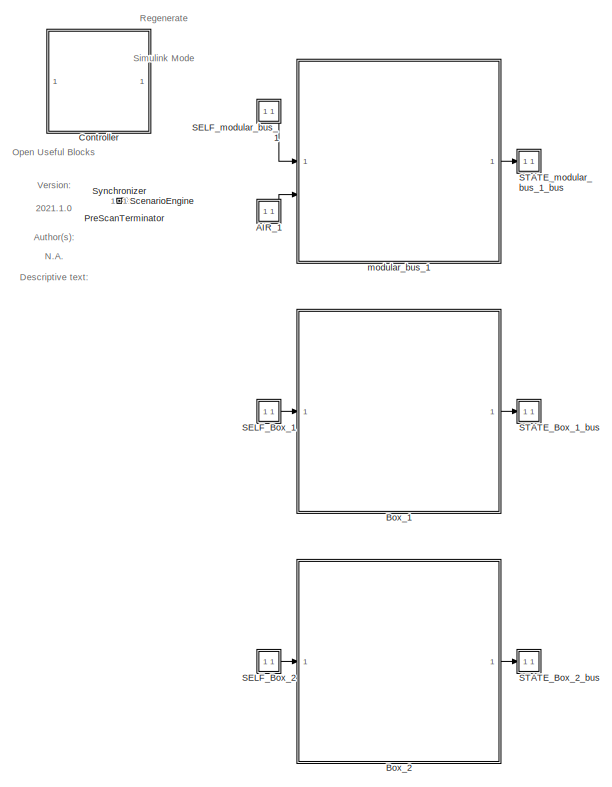
[diagram: root canvas - part 1/3, top left region]
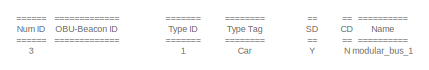
[diagram: root canvas - part 2/3, top right region]
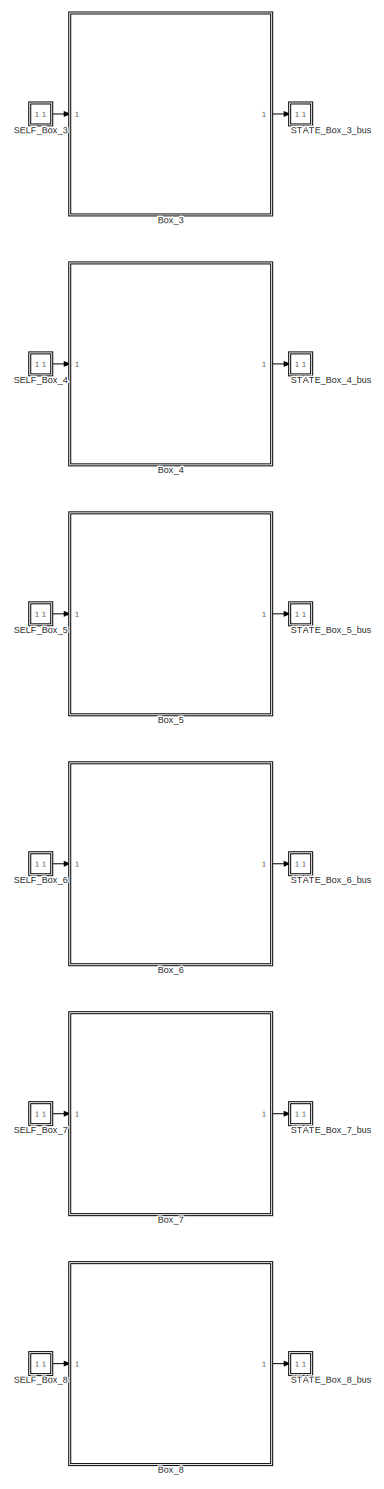
[diagram: root canvas - part 3/3, bottom center region]
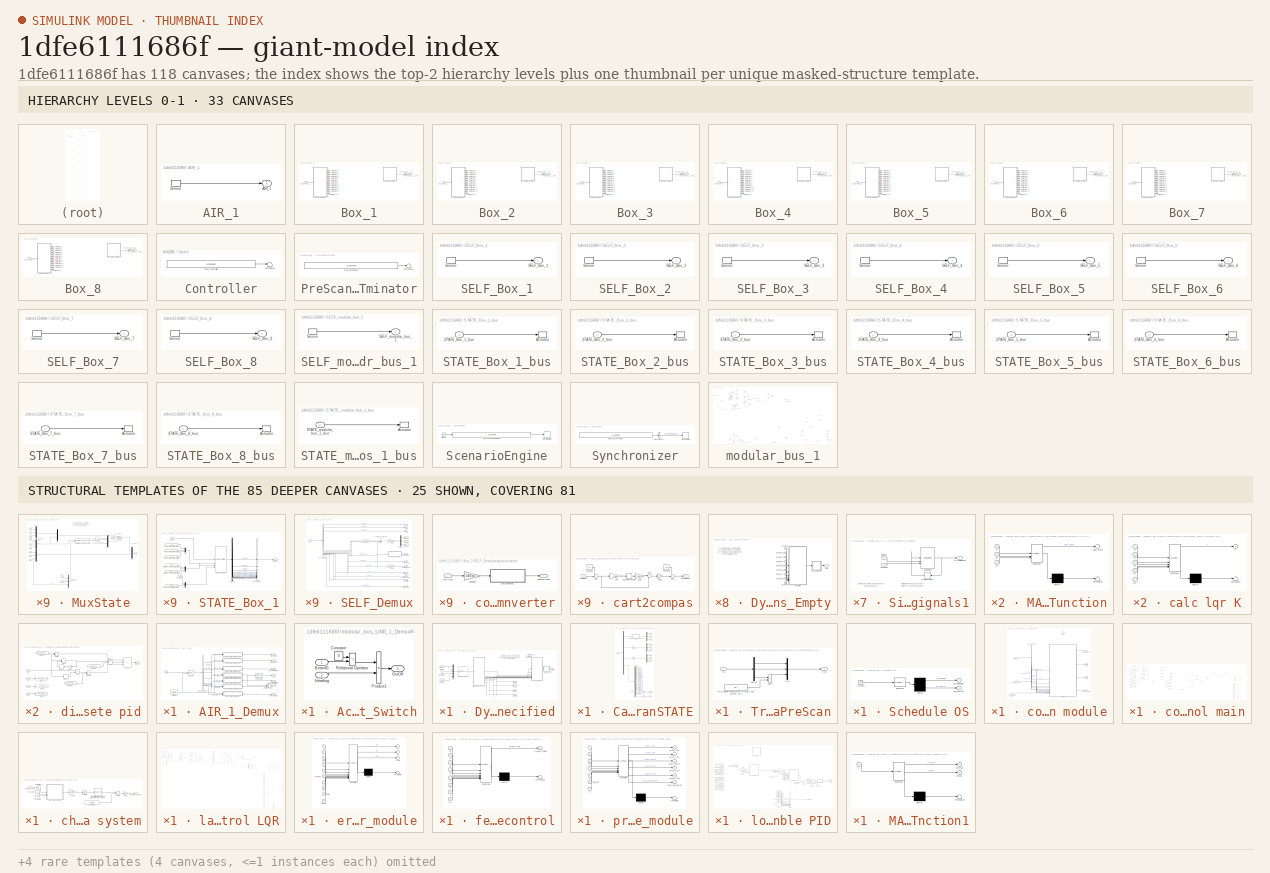
[diagram: thumbnail index - top-2 hierarchy levels (33 canvases) + 25 structural-template representatives of the remaining 85 canvases]
MODEL slx_1dfe6111686f
KIND model
CONFIG AbsTol = auto
CONFIG EnableMultiTasking = off
CONFIG FixedStep = 1/1000
CONFIG InitFcn = mbxruntime.callbacks.InitFcn(bdroot);
CONFIG MaxStep = auto
CONFIG MinStep = auto
CONFIG PostLoadFcn = mbxruntime.callbacks.PostLoadFcn(bdroot);
CONFIG PreLoadFcn = mbxruntime.callbacks.PreLoadFcn(bdroot);
CONFIG RelTol = 1e-3
CONFIG SampleTimeConstraint = Unconstrained
CONFIG SolverName = ode5
CONFIG StartFcn = mbxruntime.callbacks.StartFcn(bdroot);
CONFIG StartTime = 0.0
CONFIG StopFcn = mbxruntime.callbacks.StopFcn(bdroot);
CONFIG StopTime = inf
WORKSPACE source: external: MAT-File  (data not in archive)
BLOCK [SubSystem] AIR_1
  LoadFcn = load('PrescanAIRSensorData.mat');load('PrescanAIRSensorMessage.mat')
  OpenFcn = open_system([gcb '/Sensor'],'mask')
  Priority = 30
  Tag = sensor/AIR
BLOCK [Outport] AIR_1/AIR_1
  OutDataTypeStr = Bus: PRESCAN_AIRSENSORMESSAGE
  PortDimensions = 32
  SampleTime = 50/1000
  Tag = outport/AIR
BLOCK [S-Function] AIR_1/Sensor
  EnableBusSupport = off
  FunctionName = sfun_AIRSensor
  Parameters = mbxruntime.parameters.convert(detectableObjects), mbxruntime.parameters.convert(sensorID), mbxruntime.parameters.convert(timestep)
  SFcnIsStateOwnerBlock = off
  SFunctionDeploymentMode = off
BLOCK [SubSystem] Box_1
  InitFcn = UniqueId = '145';
  Tag = WorldObjectSubSystem
BLOCK [SubSystem] Box_1/Dynamics_Empty
  Tag = Dynamics_Empty
BLOCK [Ground] Box_1/Dynamics_Empty/Ground_1
BLOCK [Ground] Box_1/Dynamics_Empty/Ground_2
BLOCK [Ground] Box_1/Dynamics_Empty/Ground_3
BLOCK [Ground] Box_1/Dynamics_Empty/Ground_4
BLOCK [Ground] Box_1/Dynamics_Empty/Ground_5
BLOCK [Ground] Box_1/Dynamics_Empty/Ground_6
BLOCK [Ground] Box_1/Dynamics_Empty/Ground_7
BLOCK [Ground] Box_1/Dynamics_Empty/Ground_8
BLOCK [Ground] Box_1/Dynamics_Empty/Ground_9
BLOCK [SubSystem] Box_1/Dynamics_Empty/MuxState
  DeleteFcn = PreScanBlockDeleteFcn;
  Tag = mux/State
BLOCK [Constant] Box_1/Dynamics_Empty/MuxState/Constant
  DisableCoverage = on
  Value = positioningmode
BLOCK [DiscreteIntegrator] Box_1/Dynamics_Empty/MuxState/Discrete-Time Integrator
  ICPrevOutput = DiscIntNeverNeededParam
  ICPrevScaledInput = DiscIntNeverNeededParam
  SampleTime = TimeStep
BLOCK [Ground] Box_1/Dynamics_Empty/MuxState/Ground
BLOCK [Ground] Box_1/Dynamics_Empty/MuxState/Ground1
BLOCK [Mux] Box_1/Dynamics_Empty/MuxState/Mux1
  DisplayOption = bar
  Inputs = [3 3]
BLOCK [Mux] Box_1/Dynamics_Empty/MuxState/Mux2
  DisplayOption = bar
  Inputs = 3
BLOCK [Mux] Box_1/Dynamics_Empty/MuxState/Mux3
  DisplayOption = bar
  Inputs = 3
BLOCK [Mux] Box_1/Dynamics_Empty/MuxState/Mux4
  DisplayOption = bar
  Inputs = 3
BLOCK [Mux] Box_1/Dynamics_Empty/MuxState/Mux5
  DisplayOption = bar
  Inputs = [3 3]
BLOCK [Mux] Box_1/Dynamics_Empty/MuxState/Mux6
  DisplayOption = bar
  Inputs = [6 3]
BLOCK [Inport] Box_1/Dynamics_Empty/MuxState/P [rad]
  Port = 8
  SampleTime = TimeStep
BLOCK [Inport] Box_1/Dynamics_Empty/MuxState/R [rad]
  Port = 7
  SampleTime = TimeStep
BLOCK [Switch] Box_1/Dynamics_Empty/MuxState/Switch
  InputSameDT = off
  SaturateOnIntegerOverflow = off
  Threshold = 0.5
BLOCK [Reference] Box_1/Dynamics_Empty/MuxState/Transformation_BODY2GLOBAL  REF=PreScanSimulinkLibrary/Simple_Vehicle_Dynamics/Chassis/MuxDynState/Transformation_BODY2GLOBAL
  SourceBlock = PreScanSimulinkLibrary/Simple_Vehicle_Dynamics/Chassis/MuxDynState/Transformation_BODY2GLOBAL
  SourceType = SubSystem
BLOCK [Inport] Box_1/Dynamics_Empty/MuxState/Y [rad]
  Port = 9
  SampleTime = TimeStep
BLOCK [Inport] Box_1/Dynamics_Empty/MuxState/dx [m//s]
  Port = 4
  SampleTime = TimeStep
BLOCK [Inport] Box_1/Dynamics_Empty/MuxState/dy [m//s]
  Port = 5
  SampleTime = TimeStep
BLOCK [Inport] Box_1/Dynamics_Empty/MuxState/dz [m//s]
  Port = 6
  SampleTime = TimeStep
BLOCK [Mux] Box_1/Dynamics_Empty/MuxState/mux3
  Inputs = 3
BLOCK [Outport] Box_1/Dynamics_Empty/MuxState/state
BLOCK [Inport] Box_1/Dynamics_Empty/MuxState/x [m]
  SampleTime = TimeStep
BLOCK [Inport] Box_1/Dynamics_Empty/MuxState/y [m]
  Port = 2
  SampleTime = TimeStep
BLOCK [Inport] Box_1/Dynamics_Empty/MuxState/z [m]
  Port = 3
  SampleTime = TimeStep
BLOCK [SubSystem] Box_1/Dynamics_Empty/STATE_Box_1
  DeleteFcn = PreScanBlockDeleteFcn;
  LoadFcn = load PrescanStateActuatorData
  Priority = 0
  Tag = mux/StatePort
BLOCK [BusCreator] Box_1/Dynamics_Empty/STATE_Box_1/Bus Creator
  DisplayOption = bar
  InheritFromInputs = on
  Inputs = 15
  NonVirtualBus = on
  OutDataTypeStr = Bus: PRESCAN_STATEACTUATORDATA
BLOCK [Constant] Box_1/Dynamics_Empty/STATE_Box_1/Constant
  Value = 0
BLOCK [Demux] Box_1/Dynamics_Empty/STATE_Box_1/Demux
  Outputs = 15
BLOCK [Mux] Box_1/Dynamics_Empty/STATE_Box_1/Mux
  DisplayOption = bar
  Inputs = 3
BLOCK [Mux] Box_1/Dynamics_Empty/STATE_Box_1/Mux1
  DisplayOption = bar
  Inputs = 3
BLOCK [Mux] Box_1/Dynamics_Empty/STATE_Box_1/Mux2
  DisplayOption = bar
  Inputs = 3
BLOCK [Inport] Box_1/Dynamics_Empty/STATE_Box_1/State
  SampleTime = TimeStep
BLOCK [Outport] Box_1/Dynamics_Empty/STATE_Box_1/StateBus
  OutDataTypeStr = Bus: PRESCAN_STATEACTUATORDATA
BLOCK [Constant] Box_1/Dynamics_Empty/STATE_Box_1/iniBODYAngles wrtVEH [rad]
  SampleTime = TimeStep
  Value = Roll0
BLOCK [Constant] Box_1/Dynamics_Empty/STATE_Box_1/iniBODYAngles wrtVEH [rad]1
  SampleTime = TimeStep
  Value = Pitch0
BLOCK [Constant] Box_1/Dynamics_Empty/STATE_Box_1/iniVEHAngles wrtGLOB [rad]
  SampleTime = TimeStep
  Value = Yaw0
BLOCK [Constant] Box_1/Dynamics_Empty/STATE_Box_1/iniVEHposition wrtGLOB [m]
  SampleTime = TimeStep
  Value = x0
BLOCK [Constant] Box_1/Dynamics_Empty/STATE_Box_1/iniVEHposition wrtGLOB [m]1
  SampleTime = TimeStep
  Value = y0
BLOCK [Constant] Box_1/Dynamics_Empty/STATE_Box_1/iniVEHposition wrtGLOB [m]2
  SampleTime = TimeStep
  Value = z0
BLOCK [Reference] Box_1/Dynamics_Empty/STATE_Box_1/state2FullState  REF=PreScanSimulinkLibrary/state2FullState
  SourceBlock = PreScanSimulinkLibrary/state2FullState
  SourceType = PreScan Demux Block:
BLOCK [Outport] Box_1/Dynamics_Empty/State
  SampleTime = 1/1000
  Tag = outport/StateOutport
BLOCK [Inport] Box_1/SELF_Box_1
  BusOutputAsStruct = on
  OutDataTypeStr = Bus: PRESCAN_SELFSENSORDATA
  PortDimensions = 1
  SampleTime = 50/1000
  Tag = inport/SelfPort
BLOCK [SubSystem] Box_1/SELF_Demux
  DeleteFcn = PreScanBlockDeleteFcn;
  Tag = demux/SelfPort
BLOCK [BusSelector] Box_1/SELF_Demux/Bus Selector
  OutputSignals = PositionX,PositionY,PositionZ,OrientationRoll,OrientationPitch,OrientationYaw,Velocity,Yaw_rate,Lat,Long,Alt,TimeStamp
BLOCK [Demux] Box_1/SELF_Demux/Demux2
  Outputs = 3
BLOCK [Outport] Box_1/SELF_Demux/GPS alt [m]
  Port = 9
BLOCK [Outport] Box_1/SELF_Demux/GPS lat [deg]
  Port = 7
BLOCK [Outport] Box_1/SELF_Demux/GPS long [deg]
  Port = 8
BLOCK [Gain] Box_1/SELF_Demux/Gain
  Gain = 180/pi
BLOCK [Gain] Box_1/SELF_Demux/Gain1
  Gain = 180/pi
BLOCK [Inport] Box_1/SELF_Demux/SELF
  OutDataTypeStr = Bus: PRESCAN_SELFSENSORDATA
BLOCK [Outport] Box_1/SELF_Demux/TimeStamp [s]
  Port = 13
BLOCK [Concatenate] Box_1/SELF_Demux/Vector Concatenate1
  NumInputs = 3
BLOCK [SubSystem] Box_1/SELF_Demux/compas converter
BLOCK [SubSystem] Box_1/SELF_Demux/compas converter/cart2compas
BLOCK [Inport] Box_1/SELF_Demux/compas converter/cart2compas/Angle [deg]
BLOCK [Constant] Box_1/SELF_Demux/compas converter/cart2compas/Constant
  Value = 90
BLOCK [Constant] Box_1/SELF_Demux/compas converter/cart2compas/Constant1
  Value = 360
BLOCK [Gain] Box_1/SELF_Demux/compas converter/cart2compas/Gain
  Gain = 1/360
BLOCK [Gain] Box_1/SELF_Demux/compas converter/cart2compas/Gain1
  Gain = 360
BLOCK [Gain] Box_1/SELF_Demux/compas converter/cart2compas/Gain2
  Gain = -1
BLOCK [Rounding] Box_1/SELF_Demux/compas converter/cart2compas/Rounding Function
BLOCK [Sum] Box_1/SELF_Demux/compas converter/cart2compas/Sum
  Inputs = |-+
BLOCK [Sum] Box_1/SELF_Demux/compas converter/cart2compas/Sum1
  Inputs = -+|
BLOCK [Sum] Box_1/SELF_Demux/compas converter/cart2compas/Sum2
  Inputs = ++|
BLOCK [Outport] Box_1/SELF_Demux/compas converter/cart2compas/heading [deg]
BLOCK [Outport] Box_1/SELF_Demux/compas converter/heading [deg]
BLOCK [Gain] Box_1/SELF_Demux/compas converter/rad2deg
  Gain = 180/pi
BLOCK [Inport] Box_1/SELF_Demux/compas converter/rotz [rad]
BLOCK [Outport] Box_1/SELF_Demux/heading [deg]
  Port = 11
BLOCK [Outport] Box_1/SELF_Demux/rotx [deg]
  Port = 4
BLOCK [Outport] Box_1/SELF_Demux/roty [deg]
  Port = 5
BLOCK [Outport] Box_1/SELF_Demux/rotz [deg]
  Port = 6
BLOCK [Outport] Box_1/SELF_Demux/velocity [m//s]
  Port = 10
BLOCK [Outport] Box_1/SELF_Demux/x [m]
BLOCK [Outport] Box_1/SELF_Demux/y [m]
  Port = 2
BLOCK [Outport] Box_1/SELF_Demux/yaw rate [deg//s]
  Port = 12
BLOCK [Outport] Box_1/SELF_Demux/z [m]
  Port = 3
BLOCK [Outport] Box_1/STATE_Box_1_bus
  OutDataTypeStr = Bus: PRESCAN_STATEACTUATORDATA
  PortDimensions = 1
  SampleTime = 50/1000
  Tag = outport/StatePort
BLOCK [RateTransition] Box_1/STATE_Box_1_rc
  OutPortSampleTimeOpt = Inherit
  Tag = mux_rc/StatePort
BLOCK [Terminator] Box_1/Terminator_1
BLOCK [Terminator] Box_1/Terminator_10
BLOCK [Terminator] Box_1/Terminator_11
BLOCK [Terminator] Box_1/Terminator_12
BLOCK [Terminator] Box_1/Terminator_13
BLOCK [Terminator] Box_1/Terminator_2
BLOCK [Terminator] Box_1/Terminator_3
BLOCK [Terminator] Box_1/Terminator_4
BLOCK [Terminator] Box_1/Terminator_5
BLOCK [Terminator] Box_1/Terminator_6
BLOCK [Terminator] Box_1/Terminator_7
BLOCK [Terminator] Box_1/Terminator_8
BLOCK [Terminator] Box_1/Terminator_9
BLOCK [SubSystem] Box_2
  InitFcn = UniqueId = '146';
  Tag = WorldObjectSubSystem
BLOCK [SubSystem] Box_2/Dynamics_Empty
  Tag = Dynamics_Empty
BLOCK [Ground] Box_2/Dynamics_Empty/Ground_1
BLOCK [Ground] Box_2/Dynamics_Empty/Ground_2
BLOCK [Ground] Box_2/Dynamics_Empty/Ground_3
BLOCK [Ground] Box_2/Dynamics_Empty/Ground_4
BLOCK [Ground] Box_2/Dynamics_Empty/Ground_5
BLOCK [Ground] Box_2/Dynamics_Empty/Ground_6
BLOCK [Ground] Box_2/Dynamics_Empty/Ground_7
BLOCK [Ground] Box_2/Dynamics_Empty/Ground_8
BLOCK [Ground] Box_2/Dynamics_Empty/Ground_9
BLOCK [SubSystem] Box_2/Dynamics_Empty/MuxState
  DeleteFcn = PreScanBlockDeleteFcn;
  Tag = mux/State
BLOCK [Constant] Box_2/Dynamics_Empty/MuxState/Constant
  DisableCoverage = on
  Value = positioningmode
BLOCK [DiscreteIntegrator] Box_2/Dynamics_Empty/MuxState/Discrete-Time Integrator
  ICPrevOutput = DiscIntNeverNeededParam
  ICPrevScaledInput = DiscIntNeverNeededParam
  SampleTime = TimeStep
BLOCK [Ground] Box_2/Dynamics_Empty/MuxState/Ground
BLOCK [Ground] Box_2/Dynamics_Empty/MuxState/Ground1
BLOCK [Mux] Box_2/Dynamics_Empty/MuxState/Mux1
  DisplayOption = bar
  Inputs = [3 3]
BLOCK [Mux] Box_2/Dynamics_Empty/MuxState/Mux2
  DisplayOption = bar
  Inputs = 3
BLOCK [Mux] Box_2/Dynamics_Empty/MuxState/Mux3
  DisplayOption = bar
  Inputs = 3
BLOCK [Mux] Box_2/Dynamics_Empty/MuxState/Mux4
  DisplayOption = bar
  Inputs = 3
BLOCK [Mux] Box_2/Dynamics_Empty/MuxState/Mux5
  DisplayOption = bar
  Inputs = [3 3]
BLOCK [Mux] Box_2/Dynamics_Empty/MuxState/Mux6
  DisplayOption = bar
  Inputs = [6 3]
BLOCK [Inport] Box_2/Dynamics_Empty/MuxState/P [rad]
  Port = 8
  SampleTime = TimeStep
BLOCK [Inport] Box_2/Dynamics_Empty/MuxState/R [rad]
  Port = 7
  SampleTime = TimeStep
BLOCK [Switch] Box_2/Dynamics_Empty/MuxState/Switch
  InputSameDT = off
  SaturateOnIntegerOverflow = off
  Threshold = 0.5
BLOCK [Reference] Box_2/Dynamics_Empty/MuxState/Transformation_BODY2GLOBAL  REF=PreScanSimulinkLibrary/Simple_Vehicle_Dynamics/Chassis/MuxDynState/Transformation_BODY2GLOBAL
  SourceBlock = PreScanSimulinkLibrary/Simple_Vehicle_Dynamics/Chassis/MuxDynState/Transformation_BODY2GLOBAL
  SourceType = SubSystem
BLOCK [Inport] Box_2/Dynamics_Empty/MuxState/Y [rad]
  Port = 9
  SampleTime = TimeStep
BLOCK [Inport] Box_2/Dynamics_Empty/MuxState/dx [m//s]
  Port = 4
  SampleTime = TimeStep
BLOCK [Inport] Box_2/Dynamics_Empty/MuxState/dy [m//s]
  Port = 5
  SampleTime = TimeStep
BLOCK [Inport] Box_2/Dynamics_Empty/MuxState/dz [m//s]
  Port = 6
  SampleTime = TimeStep
BLOCK [Mux] Box_2/Dynamics_Empty/MuxState/mux3
  Inputs = 3
BLOCK [Outport] Box_2/Dynamics_Empty/MuxState/state
BLOCK [Inport] Box_2/Dynamics_Empty/MuxState/x [m]
  SampleTime = TimeStep
BLOCK [Inport] Box_2/Dynamics_Empty/MuxState/y [m]
  Port = 2
  SampleTime = TimeStep
BLOCK [Inport] Box_2/Dynamics_Empty/MuxState/z [m]
  Port = 3
  SampleTime = TimeStep
BLOCK [SubSystem] Box_2/Dynamics_Empty/STATE_Box_2
  DeleteFcn = PreScanBlockDeleteFcn;
  LoadFcn = load PrescanStateActuatorData
  Priority = 0
  Tag = mux/StatePort
BLOCK [BusCreator] Box_2/Dynamics_Empty/STATE_Box_2/Bus Creator
  DisplayOption = bar
  InheritFromInputs = on
  Inputs = 15
  NonVirtualBus = on
  OutDataTypeStr = Bus: PRESCAN_STATEACTUATORDATA
BLOCK [Constant] Box_2/Dynamics_Empty/STATE_Box_2/Constant
  Value = 0
BLOCK [Demux] Box_2/Dynamics_Empty/STATE_Box_2/Demux
  Outputs = 15
BLOCK [Mux] Box_2/Dynamics_Empty/STATE_Box_2/Mux
  DisplayOption = bar
  Inputs = 3
BLOCK [Mux] Box_2/Dynamics_Empty/STATE_Box_2/Mux1
  DisplayOption = bar
  Inputs = 3
BLOCK [Mux] Box_2/Dynamics_Empty/STATE_Box_2/Mux2
  DisplayOption = bar
  Inputs = 3
BLOCK [Inport] Box_2/Dynamics_Empty/STATE_Box_2/State
  SampleTime = TimeStep
BLOCK [Outport] Box_2/Dynamics_Empty/STATE_Box_2/StateBus
  OutDataTypeStr = Bus: PRESCAN_STATEACTUATORDATA
BLOCK [Constant] Box_2/Dynamics_Empty/STATE_Box_2/iniBODYAngles wrtVEH [rad]
  SampleTime = TimeStep
  Value = Roll0
BLOCK [Constant] Box_2/Dynamics_Empty/STATE_Box_2/iniBODYAngles wrtVEH [rad]1
  SampleTime = TimeStep
  Value = Pitch0
BLOCK [Constant] Box_2/Dynamics_Empty/STATE_Box_2/iniVEHAngles wrtGLOB [rad]
  SampleTime = TimeStep
  Value = Yaw0
BLOCK [Constant] Box_2/Dynamics_Empty/STATE_Box_2/iniVEHposition wrtGLOB [m]
  SampleTime = TimeStep
  Value = x0
BLOCK [Constant] Box_2/Dynamics_Empty/STATE_Box_2/iniVEHposition wrtGLOB [m]1
  SampleTime = TimeStep
  Value = y0
BLOCK [Constant] Box_2/Dynamics_Empty/STATE_Box_2/iniVEHposition wrtGLOB [m]2
  SampleTime = TimeStep
  Value = z0
BLOCK [Reference] Box_2/Dynamics_Empty/STATE_Box_2/state2FullState  REF=PreScanSimulinkLibrary/state2FullState
  SourceBlock = PreScanSimulinkLibrary/state2FullState
  SourceType = PreScan Demux Block:
BLOCK [Outport] Box_2/Dynamics_Empty/State
  SampleTime = 1/1000
  Tag = outport/StateOutport
BLOCK [Inport] Box_2/SELF_Box_2
  BusOutputAsStruct = on
  OutDataTypeStr = Bus: PRESCAN_SELFSENSORDATA
  PortDimensions = 1
  SampleTime = 50/1000
  Tag = inport/SelfPort
BLOCK [SubSystem] Box_2/SELF_Demux
  DeleteFcn = PreScanBlockDeleteFcn;
  Tag = demux/SelfPort
BLOCK [BusSelector] Box_2/SELF_Demux/Bus Selector
  OutputSignals = PositionX,PositionY,PositionZ,OrientationRoll,OrientationPitch,OrientationYaw,Velocity,Yaw_rate,Lat,Long,Alt,TimeStamp
BLOCK [Demux] Box_2/SELF_Demux/Demux2
  Outputs = 3
BLOCK [Outport] Box_2/SELF_Demux/GPS alt [m]
  Port = 9
BLOCK [Outport] Box_2/SELF_Demux/GPS lat [deg]
  Port = 7
BLOCK [Outport] Box_2/SELF_Demux/GPS long [deg]
  Port = 8
BLOCK [Gain] Box_2/SELF_Demux/Gain
  Gain = 180/pi
BLOCK [Gain] Box_2/SELF_Demux/Gain1
  Gain = 180/pi
BLOCK [Inport] Box_2/SELF_Demux/SELF
  OutDataTypeStr = Bus: PRESCAN_SELFSENSORDATA
BLOCK [Outport] Box_2/SELF_Demux/TimeStamp [s]
  Port = 13
BLOCK [Concatenate] Box_2/SELF_Demux/Vector Concatenate1
  NumInputs = 3
BLOCK [SubSystem] Box_2/SELF_Demux/compas converter
BLOCK [SubSystem] Box_2/SELF_Demux/compas converter/cart2compas
BLOCK [Inport] Box_2/SELF_Demux/compas converter/cart2compas/Angle [deg]
BLOCK [Constant] Box_2/SELF_Demux/compas converter/cart2compas/Constant
  Value = 90
BLOCK [Constant] Box_2/SELF_Demux/compas converter/cart2compas/Constant1
  Value = 360
BLOCK [Gain] Box_2/SELF_Demux/compas converter/cart2compas/Gain
  Gain = 1/360
BLOCK [Gain] Box_2/SELF_Demux/compas converter/cart2compas/Gain1
  Gain = 360
BLOCK [Gain] Box_2/SELF_Demux/compas converter/cart2compas/Gain2
  Gain = -1
BLOCK [Rounding] Box_2/SELF_Demux/compas converter/cart2compas/Rounding Function
BLOCK [Sum] Box_2/SELF_Demux/compas converter/cart2compas/Sum
  Inputs = |-+
BLOCK [Sum] Box_2/SELF_Demux/compas converter/cart2compas/Sum1
  Inputs = -+|
BLOCK [Sum] Box_2/SELF_Demux/compas converter/cart2compas/Sum2
  Inputs = ++|
BLOCK [Outport] Box_2/SELF_Demux/compas converter/cart2compas/heading [deg]
BLOCK [Outport] Box_2/SELF_Demux/compas converter/heading [deg]
BLOCK [Gain] Box_2/SELF_Demux/compas converter/rad2deg
  Gain = 180/pi
BLOCK [Inport] Box_2/SELF_Demux/compas converter/rotz [rad]
BLOCK [Outport] Box_2/SELF_Demux/heading [deg]
  Port = 11
BLOCK [Outport] Box_2/SELF_Demux/rotx [deg]
  Port = 4
BLOCK [Outport] Box_2/SELF_Demux/roty [deg]
  Port = 5
BLOCK [Outport] Box_2/SELF_Demux/rotz [deg]
  Port = 6
BLOCK [Outport] Box_2/SELF_Demux/velocity [m//s]
  Port = 10
BLOCK [Outport] Box_2/SELF_Demux/x [m]
BLOCK [Outport] Box_2/SELF_Demux/y [m]
  Port = 2
BLOCK [Outport] Box_2/SELF_Demux/yaw rate [deg//s]
  Port = 12
BLOCK [Outport] Box_2/SELF_Demux/z [m]
  Port = 3
BLOCK [Outport] Box_2/STATE_Box_2_bus
  OutDataTypeStr = Bus: PRESCAN_STATEACTUATORDATA
  PortDimensions = 1
  SampleTime = 50/1000
  Tag = outport/StatePort
BLOCK [RateTransition] Box_2/STATE_Box_2_rc
  OutPortSampleTimeOpt = Inherit
  Tag = mux_rc/StatePort
BLOCK [Terminator] Box_2/Terminator_1
BLOCK [Terminator] Box_2/Terminator_10
BLOCK [Terminator] Box_2/Terminator_11
BLOCK [Terminator] Box_2/Terminator_12
BLOCK [Terminator] Box_2/Terminator_13
BLOCK [Terminator] Box_2/Terminator_2
BLOCK [Terminator] Box_2/Terminator_3
BLOCK [Terminator] Box_2/Terminator_4
BLOCK [Terminator] Box_2/Terminator_5
BLOCK [Terminator] Box_2/Terminator_6
BLOCK [Terminator] Box_2/Terminator_7
BLOCK [Terminator] Box_2/Terminator_8
BLOCK [Terminator] Box_2/Terminator_9
BLOCK [SubSystem] Box_3
  InitFcn = UniqueId = '147';
  Tag = WorldObjectSubSystem
BLOCK [SubSystem] Box_3/Dynamics_Empty
  Tag = Dynamics_Empty
BLOCK [Ground] Box_3/Dynamics_Empty/Ground_1
BLOCK [Ground] Box_3/Dynamics_Empty/Ground_2
BLOCK [Ground] Box_3/Dynamics_Empty/Ground_3
BLOCK [Ground] Box_3/Dynamics_Empty/Ground_4
BLOCK [Ground] Box_3/Dynamics_Empty/Ground_5
BLOCK [Ground] Box_3/Dynamics_Empty/Ground_6
BLOCK [Ground] Box_3/Dynamics_Empty/Ground_7
BLOCK [Ground] Box_3/Dynamics_Empty/Ground_8
BLOCK [Ground] Box_3/Dynamics_Empty/Ground_9
BLOCK [SubSystem] Box_3/Dynamics_Empty/MuxState
  DeleteFcn = PreScanBlockDeleteFcn;
  Tag = mux/State
BLOCK [Constant] Box_3/Dynamics_Empty/MuxState/Constant
  DisableCoverage = on
  Value = positioningmode
BLOCK [DiscreteIntegrator] Box_3/Dynamics_Empty/MuxState/Discrete-Time Integrator
  ICPrevOutput = DiscIntNeverNeededParam
  ICPrevScaledInput = DiscIntNeverNeededParam
  SampleTime = TimeStep
BLOCK [Ground] Box_3/Dynamics_Empty/MuxState/Ground
BLOCK [Ground] Box_3/Dynamics_Empty/MuxState/Ground1
BLOCK [Mux] Box_3/Dynamics_Empty/MuxState/Mux1
  DisplayOption = bar
  Inputs = [3 3]
BLOCK [Mux] Box_3/Dynamics_Empty/MuxState/Mux2
  DisplayOption = bar
  Inputs = 3
BLOCK [Mux] Box_3/Dynamics_Empty/MuxState/Mux3
  DisplayOption = bar
  Inputs = 3
BLOCK [Mux] Box_3/Dynamics_Empty/MuxState/Mux4
  DisplayOption = bar
  Inputs = 3
BLOCK [Mux] Box_3/Dynamics_Empty/MuxState/Mux5
  DisplayOption = bar
  Inputs = [3 3]
BLOCK [Mux] Box_3/Dynamics_Empty/MuxState/Mux6
  DisplayOption = bar
  Inputs = [6 3]
BLOCK [Inport] Box_3/Dynamics_Empty/MuxState/P [rad]
  Port = 8
  SampleTime = TimeStep
BLOCK [Inport] Box_3/Dynamics_Empty/MuxState/R [rad]
  Port = 7
  SampleTime = TimeStep
BLOCK [Switch] Box_3/Dynamics_Empty/MuxState/Switch
  InputSameDT = off
  SaturateOnIntegerOverflow = off
  Threshold = 0.5
BLOCK [Reference] Box_3/Dynamics_Empty/MuxState/Transformation_BODY2GLOBAL  REF=PreScanSimulinkLibrary/Simple_Vehicle_Dynamics/Chassis/MuxDynState/Transformation_BODY2GLOBAL
  SourceBlock = PreScanSimulinkLibrary/Simple_Vehicle_Dynamics/Chassis/MuxDynState/Transformation_BODY2GLOBAL
  SourceType = SubSystem
BLOCK [Inport] Box_3/Dynamics_Empty/MuxState/Y [rad]
  Port = 9
  SampleTime = TimeStep
BLOCK [Inport] Box_3/Dynamics_Empty/MuxState/dx [m//s]
  Port = 4
  SampleTime = TimeStep
BLOCK [Inport] Box_3/Dynamics_Empty/MuxState/dy [m//s]
  Port = 5
  SampleTime = TimeStep
BLOCK [Inport] Box_3/Dynamics_Empty/MuxState/dz [m//s]
  Port = 6
  SampleTime = TimeStep
BLOCK [Mux] Box_3/Dynamics_Empty/MuxState/mux3
  Inputs = 3
BLOCK [Outport] Box_3/Dynamics_Empty/MuxState/state
BLOCK [Inport] Box_3/Dynamics_Empty/MuxState/x [m]
  SampleTime = TimeStep
BLOCK [Inport] Box_3/Dynamics_Empty/MuxState/y [m]
  Port = 2
  SampleTime = TimeStep
BLOCK [Inport] Box_3/Dynamics_Empty/MuxState/z [m]
  Port = 3
  SampleTime = TimeStep
BLOCK [SubSystem] Box_3/Dynamics_Empty/STATE_Box_3
  DeleteFcn = PreScanBlockDeleteFcn;
  LoadFcn = load PrescanStateActuatorData
  Priority = 0
  Tag = mux/StatePort
BLOCK [BusCreator] Box_3/Dynamics_Empty/STATE_Box_3/Bus Creator
  DisplayOption = bar
  InheritFromInputs = on
  Inputs = 15
  NonVirtualBus = on
  OutDataTypeStr = Bus: PRESCAN_STATEACTUATORDATA
BLOCK [Constant] Box_3/Dynamics_Empty/STATE_Box_3/Constant
  Value = 0
BLOCK [Demux] Box_3/Dynamics_Empty/STATE_Box_3/Demux
  Outputs = 15
BLOCK [Mux] Box_3/Dynamics_Empty/STATE_Box_3/Mux
  DisplayOption = bar
  Inputs = 3
BLOCK [Mux] Box_3/Dynamics_Empty/STATE_Box_3/Mux1
  DisplayOption = bar
  Inputs = 3
BLOCK [Mux] Box_3/Dynamics_Empty/STATE_Box_3/Mux2
  DisplayOption = bar
  Inputs = 3
BLOCK [Inport] Box_3/Dynamics_Empty/STATE_Box_3/State
  SampleTime = TimeStep
BLOCK [Outport] Box_3/Dynamics_Empty/STATE_Box_3/StateBus
  OutDataTypeStr = Bus: PRESCAN_STATEACTUATORDATA
BLOCK [Constant] Box_3/Dynamics_Empty/STATE_Box_3/iniBODYAngles wrtVEH [rad]
  SampleTime = TimeStep
  Value = Roll0
BLOCK [Constant] Box_3/Dynamics_Empty/STATE_Box_3/iniBODYAngles wrtVEH [rad]1
  SampleTime = TimeStep
  Value = Pitch0
BLOCK [Constant] Box_3/Dynamics_Empty/STATE_Box_3/iniVEHAngles wrtGLOB [rad]
  SampleTime = TimeStep
  Value = Yaw0
BLOCK [Constant] Box_3/Dynamics_Empty/STATE_Box_3/iniVEHposition wrtGLOB [m]
  SampleTime = TimeStep
  Value = x0
BLOCK [Constant] Box_3/Dynamics_Empty/STATE_Box_3/iniVEHposition wrtGLOB [m]1
  SampleTime = TimeStep
  Value = y0
BLOCK [Constant] Box_3/Dynamics_Empty/STATE_Box_3/iniVEHposition wrtGLOB [m]2
  SampleTime = TimeStep
  Value = z0
BLOCK [Reference] Box_3/Dynamics_Empty/STATE_Box_3/state2FullState  REF=PreScanSimulinkLibrary/state2FullState
  SourceBlock = PreScanSimulinkLibrary/state2FullState
  SourceType = PreScan Demux Block:
BLOCK [Outport] Box_3/Dynamics_Empty/State
  SampleTime = 1/1000
  Tag = outport/StateOutport
BLOCK [Inport] Box_3/SELF_Box_3
  BusOutputAsStruct = on
  OutDataTypeStr = Bus: PRESCAN_SELFSENSORDATA
  PortDimensions = 1
  SampleTime = 50/1000
  Tag = inport/SelfPort
BLOCK [SubSystem] Box_3/SELF_Demux
  DeleteFcn = PreScanBlockDeleteFcn;
  Tag = demux/SelfPort
BLOCK [BusSelector] Box_3/SELF_Demux/Bus Selector
  OutputSignals = PositionX,PositionY,PositionZ,OrientationRoll,OrientationPitch,OrientationYaw,Velocity,Yaw_rate,Lat,Long,Alt,TimeStamp
BLOCK [Demux] Box_3/SELF_Demux/Demux2
  Outputs = 3
BLOCK [Outport] Box_3/SELF_Demux/GPS alt [m]
  Port = 9
BLOCK [Outport] Box_3/SELF_Demux/GPS lat [deg]
  Port = 7
BLOCK [Outport] Box_3/SELF_Demux/GPS long [deg]
  Port = 8
BLOCK [Gain] Box_3/SELF_Demux/Gain
  Gain = 180/pi
BLOCK [Gain] Box_3/SELF_Demux/Gain1
  Gain = 180/pi
BLOCK [Inport] Box_3/SELF_Demux/SELF
  OutDataTypeStr = Bus: PRESCAN_SELFSENSORDATA
BLOCK [Outport] Box_3/SELF_Demux/TimeStamp [s]
  Port = 13
BLOCK [Concatenate] Box_3/SELF_Demux/Vector Concatenate1
  NumInputs = 3
BLOCK [SubSystem] Box_3/SELF_Demux/compas converter
BLOCK [SubSystem] Box_3/SELF_Demux/compas converter/cart2compas
BLOCK [Inport] Box_3/SELF_Demux/compas converter/cart2compas/Angle [deg]
BLOCK [Constant] Box_3/SELF_Demux/compas converter/cart2compas/Constant
  Value = 90
BLOCK [Constant] Box_3/SELF_Demux/compas converter/cart2compas/Constant1
  Value = 360
BLOCK [Gain] Box_3/SELF_Demux/compas converter/cart2compas/Gain
  Gain = 1/360
BLOCK [Gain] Box_3/SELF_Demux/compas converter/cart2compas/Gain1
  Gain = 360
BLOCK [Gain] Box_3/SELF_Demux/compas converter/cart2compas/Gain2
  Gain = -1
BLOCK [Rounding] Box_3/SELF_Demux/compas converter/cart2compas/Rounding Function
BLOCK [Sum] Box_3/SELF_Demux/compas converter/cart2compas/Sum
  Inputs = |-+
BLOCK [Sum] Box_3/SELF_Demux/compas converter/cart2compas/Sum1
  Inputs = -+|
BLOCK [Sum] Box_3/SELF_Demux/compas converter/cart2compas/Sum2
  Inputs = ++|
BLOCK [Outport] Box_3/SELF_Demux/compas converter/cart2compas/heading [deg]
BLOCK [Outport] Box_3/SELF_Demux/compas converter/heading [deg]
BLOCK [Gain] Box_3/SELF_Demux/compas converter/rad2deg
  Gain = 180/pi
BLOCK [Inport] Box_3/SELF_Demux/compas converter/rotz [rad]
BLOCK [Outport] Box_3/SELF_Demux/heading [deg]
  Port = 11
BLOCK [Outport] Box_3/SELF_Demux/rotx [deg]
  Port = 4
BLOCK [Outport] Box_3/SELF_Demux/roty [deg]
  Port = 5
BLOCK [Outport] Box_3/SELF_Demux/rotz [deg]
  Port = 6
BLOCK [Outport] Box_3/SELF_Demux/velocity [m//s]
  Port = 10
BLOCK [Outport] Box_3/SELF_Demux/x [m]
BLOCK [Outport] Box_3/SELF_Demux/y [m]
  Port = 2
BLOCK [Outport] Box_3/SELF_Demux/yaw rate [deg//s]
  Port = 12
BLOCK [Outport] Box_3/SELF_Demux/z [m]
  Port = 3
BLOCK [Outport] Box_3/STATE_Box_3_bus
  OutDataTypeStr = Bus: PRESCAN_STATEACTUATORDATA
  PortDimensions = 1
  SampleTime = 50/1000
  Tag = outport/StatePort
BLOCK [RateTransition] Box_3/STATE_Box_3_rc
  OutPortSampleTimeOpt = Inherit
  Tag = mux_rc/StatePort
BLOCK [Terminator] Box_3/Terminator_1
BLOCK [Terminator] Box_3/Terminator_10
BLOCK [Terminator] Box_3/Terminator_11
BLOCK [Terminator] Box_3/Terminator_12
BLOCK [Terminator] Box_3/Terminator_13
BLOCK [Terminator] Box_3/Terminator_2
BLOCK [Terminator] Box_3/Terminator_3
BLOCK [Terminator] Box_3/Terminator_4
BLOCK [Terminator] Box_3/Terminator_5
BLOCK [Terminator] Box_3/Terminator_6
BLOCK [Terminator] Box_3/Terminator_7
BLOCK [Terminator] Box_3/Terminator_8
BLOCK [Terminator] Box_3/Terminator_9
BLOCK [SubSystem] Box_4
  InitFcn = UniqueId = '148';
  Tag = WorldObjectSubSystem
BLOCK [SubSystem] Box_4/Dynamics_Empty
  Tag = Dynamics_Empty
BLOCK [Ground] Box_4/Dynamics_Empty/Ground_1
BLOCK [Ground] Box_4/Dynamics_Empty/Ground_2
BLOCK [Ground] Box_4/Dynamics_Empty/Ground_3
BLOCK [Ground] Box_4/Dynamics_Empty/Ground_4
BLOCK [Ground] Box_4/Dynamics_Empty/Ground_5
BLOCK [Ground] Box_4/Dynamics_Empty/Ground_6
BLOCK [Ground] Box_4/Dynamics_Empty/Ground_7
BLOCK [Ground] Box_4/Dynamics_Empty/Ground_8
BLOCK [Ground] Box_4/Dynamics_Empty/Ground_9
BLOCK [SubSystem] Box_4/Dynamics_Empty/MuxState
  DeleteFcn = PreScanBlockDeleteFcn;
  Tag = mux/State
BLOCK [Constant] Box_4/Dynamics_Empty/MuxState/Constant
  DisableCoverage = on
  Value = positioningmode
BLOCK [DiscreteIntegrator] Box_4/Dynamics_Empty/MuxState/Discrete-Time Integrator
  ICPrevOutput = DiscIntNeverNeededParam
  ICPrevScaledInput = DiscIntNeverNeededParam
  SampleTime = TimeStep
BLOCK [Ground] Box_4/Dynamics_Empty/MuxState/Ground
BLOCK [Ground] Box_4/Dynamics_Empty/MuxState/Ground1
BLOCK [Mux] Box_4/Dynamics_Empty/MuxState/Mux1
  DisplayOption = bar
  Inputs = [3 3]
BLOCK [Mux] Box_4/Dynamics_Empty/MuxState/Mux2
  DisplayOption = bar
  Inputs = 3
BLOCK [Mux] Box_4/Dynamics_Empty/MuxState/Mux3
  DisplayOption = bar
  Inputs = 3
BLOCK [Mux] Box_4/Dynamics_Empty/MuxState/Mux4
  DisplayOption = bar
  Inputs = 3
BLOCK [Mux] Box_4/Dynamics_Empty/MuxState/Mux5
  DisplayOption = bar
  Inputs = [3 3]
BLOCK [Mux] Box_4/Dynamics_Empty/MuxState/Mux6
  DisplayOption = bar
  Inputs = [6 3]
BLOCK [Inport] Box_4/Dynamics_Empty/MuxState/P [rad]
  Port = 8
  SampleTime = TimeStep
BLOCK [Inport] Box_4/Dynamics_Empty/MuxState/R [rad]
  Port = 7
  SampleTime = TimeStep
BLOCK [Switch] Box_4/Dynamics_Empty/MuxState/Switch
  InputSameDT = off
  SaturateOnIntegerOverflow = off
  Threshold = 0.5
BLOCK [Reference] Box_4/Dynamics_Empty/MuxState/Transformation_BODY2GLOBAL  REF=PreScanSimulinkLibrary/Simple_Vehicle_Dynamics/Chassis/MuxDynState/Transformation_BODY2GLOBAL
  SourceBlock = PreScanSimulinkLibrary/Simple_Vehicle_Dynamics/Chassis/MuxDynState/Transformation_BODY2GLOBAL
  SourceType = SubSystem
BLOCK [Inport] Box_4/Dynamics_Empty/MuxState/Y [rad]
  Port = 9
  SampleTime = TimeStep
BLOCK [Inport] Box_4/Dynamics_Empty/MuxState/dx [m//s]
  Port = 4
  SampleTime = TimeStep
BLOCK [Inport] Box_4/Dynamics_Empty/MuxState/dy [m//s]
  Port = 5
  SampleTime = TimeStep
BLOCK [Inport] Box_4/Dynamics_Empty/MuxState/dz [m//s]
  Port = 6
  SampleTime = TimeStep
BLOCK [Mux] Box_4/Dynamics_Empty/MuxState/mux3
  Inputs = 3
BLOCK [Outport] Box_4/Dynamics_Empty/MuxState/state
BLOCK [Inport] Box_4/Dynamics_Empty/MuxState/x [m]
  SampleTime = TimeStep
BLOCK [Inport] Box_4/Dynamics_Empty/MuxState/y [m]
  Port = 2
  SampleTime = TimeStep
BLOCK [Inport] Box_4/Dynamics_Empty/MuxState/z [m]
  Port = 3
  SampleTime = TimeStep
BLOCK [SubSystem] Box_4/Dynamics_Empty/STATE_Box_4
  DeleteFcn = PreScanBlockDeleteFcn;
  LoadFcn = load PrescanStateActuatorData
  Priority = 0
  Tag = mux/StatePort
BLOCK [BusCreator] Box_4/Dynamics_Empty/STATE_Box_4/Bus Creator
  DisplayOption = bar
  InheritFromInputs = on
  Inputs = 15
  NonVirtualBus = on
  OutDataTypeStr = Bus: PRESCAN_STATEACTUATORDATA
BLOCK [Constant] Box_4/Dynamics_Empty/STATE_Box_4/Constant
  Value = 0
BLOCK [Demux] Box_4/Dynamics_Empty/STATE_Box_4/Demux
  Outputs = 15
BLOCK [Mux] Box_4/Dynamics_Empty/STATE_Box_4/Mux
  DisplayOption = bar
  Inputs = 3
BLOCK [Mux] Box_4/Dynamics_Empty/STATE_Box_4/Mux1
  DisplayOption = bar
  Inputs = 3
BLOCK [Mux] Box_4/Dynamics_Empty/STATE_Box_4/Mux2
  DisplayOption = bar
  Inputs = 3
BLOCK [Inport] Box_4/Dynamics_Empty/STATE_Box_4/State
  SampleTime = TimeStep
BLOCK [Outport] Box_4/Dynamics_Empty/STATE_Box_4/StateBus
  OutDataTypeStr = Bus: PRESCAN_STATEACTUATORDATA
BLOCK [Constant] Box_4/Dynamics_Empty/STATE_Box_4/iniBODYAngles wrtVEH [rad]
  SampleTime = TimeStep
  Value = Roll0
BLOCK [Constant] Box_4/Dynamics_Empty/STATE_Box_4/iniBODYAngles wrtVEH [rad]1
  SampleTime = TimeStep
  Value = Pitch0
BLOCK [Constant] Box_4/Dynamics_Empty/STATE_Box_4/iniVEHAngles wrtGLOB [rad]
  SampleTime = TimeStep
  Value = Yaw0
BLOCK [Constant] Box_4/Dynamics_Empty/STATE_Box_4/iniVEHposition wrtGLOB [m]
  SampleTime = TimeStep
  Value = x0
BLOCK [Constant] Box_4/Dynamics_Empty/STATE_Box_4/iniVEHposition wrtGLOB [m]1
  SampleTime = TimeStep
  Value = y0
BLOCK [Constant] Box_4/Dynamics_Empty/STATE_Box_4/iniVEHposition wrtGLOB [m]2
  SampleTime = TimeStep
  Value = z0
BLOCK [Reference] Box_4/Dynamics_Empty/STATE_Box_4/state2FullState  REF=PreScanSimulinkLibrary/state2FullState
  SourceBlock = PreScanSimulinkLibrary/state2FullState
  SourceType = PreScan Demux Block:
BLOCK [Outport] Box_4/Dynamics_Empty/State
  SampleTime = 1/1000
  Tag = outport/StateOutport
BLOCK [Inport] Box_4/SELF_Box_4
  BusOutputAsStruct = on
  OutDataTypeStr = Bus: PRESCAN_SELFSENSORDATA
  PortDimensions = 1
  SampleTime = 50/1000
  Tag = inport/SelfPort
BLOCK [SubSystem] Box_4/SELF_Demux
  DeleteFcn = PreScanBlockDeleteFcn;
  Tag = demux/SelfPort
BLOCK [BusSelector] Box_4/SELF_Demux/Bus Selector
  OutputSignals = PositionX,PositionY,PositionZ,OrientationRoll,OrientationPitch,OrientationYaw,Velocity,Yaw_rate,Lat,Long,Alt,TimeStamp
BLOCK [Demux] Box_4/SELF_Demux/Demux2
  Outputs = 3
BLOCK [Outport] Box_4/SELF_Demux/GPS alt [m]
  Port = 9
BLOCK [Outport] Box_4/SELF_Demux/GPS lat [deg]
  Port = 7
BLOCK [Outport] Box_4/SELF_Demux/GPS long [deg]
  Port = 8
BLOCK [Gain] Box_4/SELF_Demux/Gain
  Gain = 180/pi
BLOCK [Gain] Box_4/SELF_Demux/Gain1
  Gain = 180/pi
BLOCK [Inport] Box_4/SELF_Demux/SELF
  OutDataTypeStr = Bus: PRESCAN_SELFSENSORDATA
BLOCK [Outport] Box_4/SELF_Demux/TimeStamp [s]
  Port = 13
BLOCK [Concatenate] Box_4/SELF_Demux/Vector Concatenate1
  NumInputs = 3
BLOCK [SubSystem] Box_4/SELF_Demux/compas converter
BLOCK [SubSystem] Box_4/SELF_Demux/compas converter/cart2compas
BLOCK [Inport] Box_4/SELF_Demux/compas converter/cart2compas/Angle [deg]
BLOCK [Constant] Box_4/SELF_Demux/compas converter/cart2compas/Constant
  Value = 90
BLOCK [Constant] Box_4/SELF_Demux/compas converter/cart2compas/Constant1
  Value = 360
BLOCK [Gain] Box_4/SELF_Demux/compas converter/cart2compas/Gain
  Gain = 1/360
BLOCK [Gain] Box_4/SELF_Demux/compas converter/cart2compas/Gain1
  Gain = 360
BLOCK [Gain] Box_4/SELF_Demux/compas converter/cart2compas/Gain2
  Gain = -1
BLOCK [Rounding] Box_4/SELF_Demux/compas converter/cart2compas/Rounding Function
BLOCK [Sum] Box_4/SELF_Demux/compas converter/cart2compas/Sum
  Inputs = |-+
BLOCK [Sum] Box_4/SELF_Demux/compas converter/cart2compas/Sum1
  Inputs = -+|
BLOCK [Sum] Box_4/SELF_Demux/compas converter/cart2compas/Sum2
  Inputs = ++|
BLOCK [Outport] Box_4/SELF_Demux/compas converter/cart2compas/heading [deg]
BLOCK [Outport] Box_4/SELF_Demux/compas converter/heading [deg]
BLOCK [Gain] Box_4/SELF_Demux/compas converter/rad2deg
  Gain = 180/pi
BLOCK [Inport] Box_4/SELF_Demux/compas converter/rotz [rad]
BLOCK [Outport] Box_4/SELF_Demux/heading [deg]
  Port = 11
BLOCK [Outport] Box_4/SELF_Demux/rotx [deg]
  Port = 4
BLOCK [Outport] Box_4/SELF_Demux/roty [deg]
  Port = 5
BLOCK [Outport] Box_4/SELF_Demux/rotz [deg]
  Port = 6
BLOCK [Outport] Box_4/SELF_Demux/velocity [m//s]
  Port = 10
BLOCK [Outport] Box_4/SELF_Demux/x [m]
BLOCK [Outport] Box_4/SELF_Demux/y [m]
  Port = 2
BLOCK [Outport] Box_4/SELF_Demux/yaw rate [deg//s]
  Port = 12
BLOCK [Outport] Box_4/SELF_Demux/z [m]
  Port = 3
BLOCK [Outport] Box_4/STATE_Box_4_bus
  OutDataTypeStr = Bus: PRESCAN_STATEACTUATORDATA
  PortDimensions = 1
  SampleTime = 50/1000
  Tag = outport/StatePort
BLOCK [RateTransition] Box_4/STATE_Box_4_rc
  OutPortSampleTimeOpt = Inherit
  Tag = mux_rc/StatePort
BLOCK [Terminator] Box_4/Terminator_1
BLOCK [Terminator] Box_4/Terminator_10
BLOCK [Terminator] Box_4/Terminator_11
BLOCK [Terminator] Box_4/Terminator_12
BLOCK [Terminator] Box_4/Terminator_13
BLOCK [Terminator] Box_4/Terminator_2
BLOCK [Terminator] Box_4/Terminator_3
BLOCK [Terminator] Box_4/Terminator_4
BLOCK [Terminator] Box_4/Terminator_5
BLOCK [Terminator] Box_4/Terminator_6
BLOCK [Terminator] Box_4/Terminator_7
BLOCK [Terminator] Box_4/Terminator_8
BLOCK [Terminator] Box_4/Terminator_9
BLOCK [SubSystem] Box_5
  InitFcn = UniqueId = '149';
  Tag = WorldObjectSubSystem
BLOCK [SubSystem] Box_5/Dynamics_Empty
  Tag = Dynamics_Empty
BLOCK [Ground] Box_5/Dynamics_Empty/Ground_1
BLOCK [Ground] Box_5/Dynamics_Empty/Ground_2
BLOCK [Ground] Box_5/Dynamics_Empty/Ground_3
BLOCK [Ground] Box_5/Dynamics_Empty/Ground_4
BLOCK [Ground] Box_5/Dynamics_Empty/Ground_5
BLOCK [Ground] Box_5/Dynamics_Empty/Ground_6
BLOCK [Ground] Box_5/Dynamics_Empty/Ground_7
BLOCK [Ground] Box_5/Dynamics_Empty/Ground_8
BLOCK [Ground] Box_5/Dynamics_Empty/Ground_9
BLOCK [SubSystem] Box_5/Dynamics_Empty/MuxState
  DeleteFcn = PreScanBlockDeleteFcn;
  Tag = mux/State
BLOCK [Constant] Box_5/Dynamics_Empty/MuxState/Constant
  DisableCoverage = on
  Value = positioningmode
BLOCK [DiscreteIntegrator] Box_5/Dynamics_Empty/MuxState/Discrete-Time Integrator
  ICPrevOutput = DiscIntNeverNeededParam
  ICPrevScaledInput = DiscIntNeverNeededParam
  SampleTime = TimeStep
BLOCK [Ground] Box_5/Dynamics_Empty/MuxState/Ground
BLOCK [Ground] Box_5/Dynamics_Empty/MuxState/Ground1
BLOCK [Mux] Box_5/Dynamics_Empty/MuxState/Mux1
  DisplayOption = bar
  Inputs = [3 3]
BLOCK [Mux] Box_5/Dynamics_Empty/MuxState/Mux2
  DisplayOption = bar
  Inputs = 3
BLOCK [Mux] Box_5/Dynamics_Empty/MuxState/Mux3
  DisplayOption = bar
  Inputs = 3
BLOCK [Mux] Box_5/Dynamics_Empty/MuxState/Mux4
  DisplayOption = bar
  Inputs = 3
BLOCK [Mux] Box_5/Dynamics_Empty/MuxState/Mux5
  DisplayOption = bar
  Inputs = [3 3]
BLOCK [Mux] Box_5/Dynamics_Empty/MuxState/Mux6
  DisplayOption = bar
  Inputs = [6 3]
BLOCK [Inport] Box_5/Dynamics_Empty/MuxState/P [rad]
  Port = 8
  SampleTime = TimeStep
BLOCK [Inport] Box_5/Dynamics_Empty/MuxState/R [rad]
  Port = 7
  SampleTime = TimeStep
BLOCK [Switch] Box_5/Dynamics_Empty/MuxState/Switch
  InputSameDT = off
  SaturateOnIntegerOverflow = off
  Threshold = 0.5
BLOCK [Reference] Box_5/Dynamics_Empty/MuxState/Transformation_BODY2GLOBAL  REF=PreScanSimulinkLibrary/Simple_Vehicle_Dynamics/Chassis/MuxDynState/Transformation_BODY2GLOBAL
  SourceBlock = PreScanSimulinkLibrary/Simple_Vehicle_Dynamics/Chassis/MuxDynState/Transformation_BODY2GLOBAL
  SourceType = SubSystem
BLOCK [Inport] Box_5/Dynamics_Empty/MuxState/Y [rad]
  Port = 9
  SampleTime = TimeStep
BLOCK [Inport] Box_5/Dynamics_Empty/MuxState/dx [m//s]
  Port = 4
  SampleTime = TimeStep
BLOCK [Inport] Box_5/Dynamics_Empty/MuxState/dy [m//s]
  Port = 5
  SampleTime = TimeStep
BLOCK [Inport] Box_5/Dynamics_Empty/MuxState/dz [m//s]
  Port = 6
  SampleTime = TimeStep
BLOCK [Mux] Box_5/Dynamics_Empty/MuxState/mux3
  Inputs = 3
BLOCK [Outport] Box_5/Dynamics_Empty/MuxState/state
BLOCK [Inport] Box_5/Dynamics_Empty/MuxState/x [m]
  SampleTime = TimeStep
BLOCK [Inport] Box_5/Dynamics_Empty/MuxState/y [m]
  Port = 2
  SampleTime = TimeStep
BLOCK [Inport] Box_5/Dynamics_Empty/MuxState/z [m]
  Port = 3
  SampleTime = TimeStep
BLOCK [SubSystem] Box_5/Dynamics_Empty/STATE_Box_5
  DeleteFcn = PreScanBlockDeleteFcn;
  LoadFcn = load PrescanStateActuatorData
  Priority = 0
  Tag = mux/StatePort
BLOCK [BusCreator] Box_5/Dynamics_Empty/STATE_Box_5/Bus Creator
  DisplayOption = bar
  InheritFromInputs = on
  Inputs = 15
  NonVirtualBus = on
  OutDataTypeStr = Bus: PRESCAN_STATEACTUATORDATA
BLOCK [Constant] Box_5/Dynamics_Empty/STATE_Box_5/Constant
  Value = 0
BLOCK [Demux] Box_5/Dynamics_Empty/STATE_Box_5/Demux
  Outputs = 15
BLOCK [Mux] Box_5/Dynamics_Empty/STATE_Box_5/Mux
  DisplayOption = bar
  Inputs = 3
BLOCK [Mux] Box_5/Dynamics_Empty/STATE_Box_5/Mux1
  DisplayOption = bar
  Inputs = 3
BLOCK [Mux] Box_5/Dynamics_Empty/STATE_Box_5/Mux2
  DisplayOption = bar
  Inputs = 3
BLOCK [Inport] Box_5/Dynamics_Empty/STATE_Box_5/State
  SampleTime = TimeStep
BLOCK [Outport] Box_5/Dynamics_Empty/STATE_Box_5/StateBus
  OutDataTypeStr = Bus: PRESCAN_STATEACTUATORDATA
BLOCK [Constant] Box_5/Dynamics_Empty/STATE_Box_5/iniBODYAngles wrtVEH [rad]
  SampleTime = TimeStep
  Value = Roll0
BLOCK [Constant] Box_5/Dynamics_Empty/STATE_Box_5/iniBODYAngles wrtVEH [rad]1
  SampleTime = TimeStep
  Value = Pitch0
BLOCK [Constant] Box_5/Dynamics_Empty/STATE_Box_5/iniVEHAngles wrtGLOB [rad]
  SampleTime = TimeStep
  Value = Yaw0
BLOCK [Constant] Box_5/Dynamics_Empty/STATE_Box_5/iniVEHposition wrtGLOB [m]
  SampleTime = TimeStep
  Value = x0
BLOCK [Constant] Box_5/Dynamics_Empty/STATE_Box_5/iniVEHposition wrtGLOB [m]1
  SampleTime = TimeStep
  Value = y0
BLOCK [Constant] Box_5/Dynamics_Empty/STATE_Box_5/iniVEHposition wrtGLOB [m]2
  SampleTime = TimeStep
  Value = z0
BLOCK [Reference] Box_5/Dynamics_Empty/STATE_Box_5/state2FullState  REF=PreScanSimulinkLibrary/state2FullState
  SourceBlock = PreScanSimulinkLibrary/state2FullState
  SourceType = PreScan Demux Block:
BLOCK [Outport] Box_5/Dynamics_Empty/State
  SampleTime = 1/1000
  Tag = outport/StateOutport
BLOCK [Inport] Box_5/SELF_Box_5
  BusOutputAsStruct = on
  OutDataTypeStr = Bus: PRESCAN_SELFSENSORDATA
  PortDimensions = 1
  SampleTime = 50/1000
  Tag = inport/SelfPort
BLOCK [SubSystem] Box_5/SELF_Demux
  DeleteFcn = PreScanBlockDeleteFcn;
  Tag = demux/SelfPort
BLOCK [BusSelector] Box_5/SELF_Demux/Bus Selector
  OutputSignals = PositionX,PositionY,PositionZ,OrientationRoll,OrientationPitch,OrientationYaw,Velocity,Yaw_rate,Lat,Long,Alt,TimeStamp
BLOCK [Demux] Box_5/SELF_Demux/Demux2
  Outputs = 3
BLOCK [Outport] Box_5/SELF_Demux/GPS alt [m]
  Port = 9
BLOCK [Outport] Box_5/SELF_Demux/GPS lat [deg]
  Port = 7
BLOCK [Outport] Box_5/SELF_Demux/GPS long [deg]
  Port = 8
BLOCK [Gain] Box_5/SELF_Demux/Gain
  Gain = 180/pi
BLOCK [Gain] Box_5/SELF_Demux/Gain1
  Gain = 180/pi
BLOCK [Inport] Box_5/SELF_Demux/SELF
  OutDataTypeStr = Bus: PRESCAN_SELFSENSORDATA
BLOCK [Outport] Box_5/SELF_Demux/TimeStamp [s]
  Port = 13
BLOCK [Concatenate] Box_5/SELF_Demux/Vector Concatenate1
  NumInputs = 3
BLOCK [SubSystem] Box_5/SELF_Demux/compas converter
BLOCK [SubSystem] Box_5/SELF_Demux/compas converter/cart2compas
BLOCK [Inport] Box_5/SELF_Demux/compas converter/cart2compas/Angle [deg]
BLOCK [Constant] Box_5/SELF_Demux/compas converter/cart2compas/Constant
  Value = 90
BLOCK [Constant] Box_5/SELF_Demux/compas converter/cart2compas/Constant1
  Value = 360
BLOCK [Gain] Box_5/SELF_Demux/compas converter/cart2compas/Gain
  Gain = 1/360
BLOCK [Gain] Box_5/SELF_Demux/compas converter/cart2compas/Gain1
  Gain = 360
BLOCK [Gain] Box_5/SELF_Demux/compas converter/cart2compas/Gain2
  Gain = -1
BLOCK [Rounding] Box_5/SELF_Demux/compas converter/cart2compas/Rounding Function
BLOCK [Sum] Box_5/SELF_Demux/compas converter/cart2compas/Sum
  Inputs = |-+
BLOCK [Sum] Box_5/SELF_Demux/compas converter/cart2compas/Sum1
  Inputs = -+|
BLOCK [Sum] Box_5/SELF_Demux/compas converter/cart2compas/Sum2
  Inputs = ++|
BLOCK [Outport] Box_5/SELF_Demux/compas converter/cart2compas/heading [deg]
BLOCK [Outport] Box_5/SELF_Demux/compas converter/heading [deg]
BLOCK [Gain] Box_5/SELF_Demux/compas converter/rad2deg
  Gain = 180/pi
BLOCK [Inport] Box_5/SELF_Demux/compas converter/rotz [rad]
BLOCK [Outport] Box_5/SELF_Demux/heading [deg]
  Port = 11
BLOCK [Outport] Box_5/SELF_Demux/rotx [deg]
  Port = 4
BLOCK [Outport] Box_5/SELF_Demux/roty [deg]
  Port = 5
BLOCK [Outport] Box_5/SELF_Demux/rotz [deg]
  Port = 6
BLOCK [Outport] Box_5/SELF_Demux/velocity [m//s]
  Port = 10
BLOCK [Outport] Box_5/SELF_Demux/x [m]
BLOCK [Outport] Box_5/SELF_Demux/y [m]
  Port = 2
BLOCK [Outport] Box_5/SELF_Demux/yaw rate [deg//s]
  Port = 12
BLOCK [Outport] Box_5/SELF_Demux/z [m]
  Port = 3
BLOCK [Outport] Box_5/STATE_Box_5_bus
  OutDataTypeStr = Bus: PRESCAN_STATEACTUATORDATA
  PortDimensions = 1
  SampleTime = 50/1000
  Tag = outport/StatePort
BLOCK [RateTransition] Box_5/STATE_Box_5_rc
  OutPortSampleTimeOpt = Inherit
  Tag = mux_rc/StatePort
BLOCK [Terminator] Box_5/Terminator_1
BLOCK [Terminator] Box_5/Terminator_10
BLOCK [Terminator] Box_5/Terminator_11
BLOCK [Terminator] Box_5/Terminator_12
BLOCK [Terminator] Box_5/Terminator_13
BLOCK [Terminator] Box_5/Terminator_2
BLOCK [Terminator] Box_5/Terminator_3
BLOCK [Terminator] Box_5/Terminator_4
BLOCK [Terminator] Box_5/Terminator_5
BLOCK [Terminator] Box_5/Terminator_6
BLOCK [Terminator] Box_5/Terminator_7
BLOCK [Terminator] Box_5/Terminator_8
BLOCK [Terminator] Box_5/Terminator_9
BLOCK [SubSystem] Box_6
  InitFcn = UniqueId = '150';
  Tag = WorldObjectSubSystem
BLOCK [SubSystem] Box_6/Dynamics_Empty
  Tag = Dynamics_Empty
BLOCK [Ground] Box_6/Dynamics_Empty/Ground_1
BLOCK [Ground] Box_6/Dynamics_Empty/Ground_2
BLOCK [Ground] Box_6/Dynamics_Empty/Ground_3
BLOCK [Ground] Box_6/Dynamics_Empty/Ground_4
BLOCK [Ground] Box_6/Dynamics_Empty/Ground_5
BLOCK [Ground] Box_6/Dynamics_Empty/Ground_6
BLOCK [Ground] Box_6/Dynamics_Empty/Ground_7
BLOCK [Ground] Box_6/Dynamics_Empty/Ground_8
BLOCK [Ground] Box_6/Dynamics_Empty/Ground_9
BLOCK [SubSystem] Box_6/Dynamics_Empty/MuxState
  DeleteFcn = PreScanBlockDeleteFcn;
  Tag = mux/State
BLOCK [Constant] Box_6/Dynamics_Empty/MuxState/Constant
  DisableCoverage = on
  Value = positioningmode
BLOCK [DiscreteIntegrator] Box_6/Dynamics_Empty/MuxState/Discrete-Time Integrator
  ICPrevOutput = DiscIntNeverNeededParam
  ICPrevScaledInput = DiscIntNeverNeededParam
  SampleTime = TimeStep
BLOCK [Ground] Box_6/Dynamics_Empty/MuxState/Ground
BLOCK [Ground] Box_6/Dynamics_Empty/MuxState/Ground1
BLOCK [Mux] Box_6/Dynamics_Empty/MuxState/Mux1
  DisplayOption = bar
  Inputs = [3 3]
BLOCK [Mux] Box_6/Dynamics_Empty/MuxState/Mux2
  DisplayOption = bar
  Inputs = 3
BLOCK [Mux] Box_6/Dynamics_Empty/MuxState/Mux3
  DisplayOption = bar
  Inputs = 3
BLOCK [Mux] Box_6/Dynamics_Empty/MuxState/Mux4
  DisplayOption = bar
  Inputs = 3
BLOCK [Mux] Box_6/Dynamics_Empty/MuxState/Mux5
  DisplayOption = bar
  Inputs = [3 3]
BLOCK [Mux] Box_6/Dynamics_Empty/MuxState/Mux6
  DisplayOption = bar
  Inputs = [6 3]
BLOCK [Inport] Box_6/Dynamics_Empty/MuxState/P [rad]
  Port = 8
  SampleTime = TimeStep
BLOCK [Inport] Box_6/Dynamics_Empty/MuxState/R [rad]
  Port = 7
  SampleTime = TimeStep
BLOCK [Switch] Box_6/Dynamics_Empty/MuxState/Switch
  InputSameDT = off
  SaturateOnIntegerOverflow = off
  Threshold = 0.5
BLOCK [Reference] Box_6/Dynamics_Empty/MuxState/Transformation_BODY2GLOBAL  REF=PreScanSimulinkLibrary/Simple_Vehicle_Dynamics/Chassis/MuxDynState/Transformation_BODY2GLOBAL
  SourceBlock = PreScanSimulinkLibrary/Simple_Vehicle_Dynamics/Chassis/MuxDynState/Transformation_BODY2GLOBAL
  SourceType = SubSystem
BLOCK [Inport] Box_6/Dynamics_Empty/MuxState/Y [rad]
  Port = 9
  SampleTime = TimeStep
BLOCK [Inport] Box_6/Dynamics_Empty/MuxState/dx [m//s]
  Port = 4
  SampleTime = TimeStep
BLOCK [Inport] Box_6/Dynamics_Empty/MuxState/dy [m//s]
  Port = 5
  SampleTime = TimeStep
BLOCK [Inport] Box_6/Dynamics_Empty/MuxState/dz [m//s]
  Port = 6
  SampleTime = TimeStep
BLOCK [Mux] Box_6/Dynamics_Empty/MuxState/mux3
  Inputs = 3
BLOCK [Outport] Box_6/Dynamics_Empty/MuxState/state
BLOCK [Inport] Box_6/Dynamics_Empty/MuxState/x [m]
  SampleTime = TimeStep
BLOCK [Inport] Box_6/Dynamics_Empty/MuxState/y [m]
  Port = 2
  SampleTime = TimeStep
BLOCK [Inport] Box_6/Dynamics_Empty/MuxState/z [m]
  Port = 3
  SampleTime = TimeStep
BLOCK [SubSystem] Box_6/Dynamics_Empty/STATE_Box_6
  DeleteFcn = PreScanBlockDeleteFcn;
  LoadFcn = load PrescanStateActuatorData
  Priority = 0
  Tag = mux/StatePort
BLOCK [BusCreator] Box_6/Dynamics_Empty/STATE_Box_6/Bus Creator
  DisplayOption = bar
  InheritFromInputs = on
  Inputs = 15
  NonVirtualBus = on
  OutDataTypeStr = Bus: PRESCAN_STATEACTUATORDATA
BLOCK [Constant] Box_6/Dynamics_Empty/STATE_Box_6/Constant
  Value = 0
BLOCK [Demux] Box_6/Dynamics_Empty/STATE_Box_6/Demux
  Outputs = 15
BLOCK [Mux] Box_6/Dynamics_Empty/STATE_Box_6/Mux
  DisplayOption = bar
  Inputs = 3
BLOCK [Mux] Box_6/Dynamics_Empty/STATE_Box_6/Mux1
  DisplayOption = bar
  Inputs = 3
BLOCK [Mux] Box_6/Dynamics_Empty/STATE_Box_6/Mux2
  DisplayOption = bar
  Inputs = 3
BLOCK [Inport] Box_6/Dynamics_Empty/STATE_Box_6/State
  SampleTime = TimeStep
BLOCK [Outport] Box_6/Dynamics_Empty/STATE_Box_6/StateBus
  OutDataTypeStr = Bus: PRESCAN_STATEACTUATORDATA
BLOCK [Constant] Box_6/Dynamics_Empty/STATE_Box_6/iniBODYAngles wrtVEH [rad]
  SampleTime = TimeStep
  Value = Roll0
BLOCK [Constant] Box_6/Dynamics_Empty/STATE_Box_6/iniBODYAngles wrtVEH [rad]1
  SampleTime = TimeStep
  Value = Pitch0
BLOCK [Constant] Box_6/Dynamics_Empty/STATE_Box_6/iniVEHAngles wrtGLOB [rad]
  SampleTime = TimeStep
  Value = Yaw0
BLOCK [Constant] Box_6/Dynamics_Empty/STATE_Box_6/iniVEHposition wrtGLOB [m]
  SampleTime = TimeStep
  Value = x0
BLOCK [Constant] Box_6/Dynamics_Empty/STATE_Box_6/iniVEHposition wrtGLOB [m]1
  SampleTime = TimeStep
  Value = y0
BLOCK [Constant] Box_6/Dynamics_Empty/STATE_Box_6/iniVEHposition wrtGLOB [m]2
  SampleTime = TimeStep
  Value = z0
BLOCK [Reference] Box_6/Dynamics_Empty/STATE_Box_6/state2FullState  REF=PreScanSimulinkLibrary/state2FullState
  SourceBlock = PreScanSimulinkLibrary/state2FullState
  SourceType = PreScan Demux Block:
BLOCK [Outport] Box_6/Dynamics_Empty/State
  SampleTime = 1/1000
  Tag = outport/StateOutport
BLOCK [Inport] Box_6/SELF_Box_6
  BusOutputAsStruct = on
  OutDataTypeStr = Bus: PRESCAN_SELFSENSORDATA
  PortDimensions = 1
  SampleTime = 50/1000
  Tag = inport/SelfPort
BLOCK [SubSystem] Box_6/SELF_Demux
  DeleteFcn = PreScanBlockDeleteFcn;
  Tag = demux/SelfPort
BLOCK [BusSelector] Box_6/SELF_Demux/Bus Selector
  OutputSignals = PositionX,PositionY,PositionZ,OrientationRoll,OrientationPitch,OrientationYaw,Velocity,Yaw_rate,Lat,Long,Alt,TimeStamp
BLOCK [Demux] Box_6/SELF_Demux/Demux2
  Outputs = 3
BLOCK [Outport] Box_6/SELF_Demux/GPS alt [m]
  Port = 9
BLOCK [Outport] Box_6/SELF_Demux/GPS lat [deg]
  Port = 7
BLOCK [Outport] Box_6/SELF_Demux/GPS long [deg]
  Port = 8
BLOCK [Gain] Box_6/SELF_Demux/Gain
  Gain = 180/pi
BLOCK [Gain] Box_6/SELF_Demux/Gain1
  Gain = 180/pi
BLOCK [Inport] Box_6/SELF_Demux/SELF
  OutDataTypeStr = Bus: PRESCAN_SELFSENSORDATA
BLOCK [Outport] Box_6/SELF_Demux/TimeStamp [s]
  Port = 13
BLOCK [Concatenate] Box_6/SELF_Demux/Vector Concatenate1
  NumInputs = 3
BLOCK [SubSystem] Box_6/SELF_Demux/compas converter
BLOCK [SubSystem] Box_6/SELF_Demux/compas converter/cart2compas
BLOCK [Inport] Box_6/SELF_Demux/compas converter/cart2compas/Angle [deg]
BLOCK [Constant] Box_6/SELF_Demux/compas converter/cart2compas/Constant
  Value = 90
BLOCK [Constant] Box_6/SELF_Demux/compas converter/cart2compas/Constant1
  Value = 360
BLOCK [Gain] Box_6/SELF_Demux/compas converter/cart2compas/Gain
  Gain = 1/360
BLOCK [Gain] Box_6/SELF_Demux/compas converter/cart2compas/Gain1
  Gain = 360
BLOCK [Gain] Box_6/SELF_Demux/compas converter/cart2compas/Gain2
  Gain = -1
BLOCK [Rounding] Box_6/SELF_Demux/compas converter/cart2compas/Rounding Function
BLOCK [Sum] Box_6/SELF_Demux/compas converter/cart2compas/Sum
  Inputs = |-+
BLOCK [Sum] Box_6/SELF_Demux/compas converter/cart2compas/Sum1
  Inputs = -+|
BLOCK [Sum] Box_6/SELF_Demux/compas converter/cart2compas/Sum2
  Inputs = ++|
BLOCK [Outport] Box_6/SELF_Demux/compas converter/cart2compas/heading [deg]
BLOCK [Outport] Box_6/SELF_Demux/compas converter/heading [deg]
BLOCK [Gain] Box_6/SELF_Demux/compas converter/rad2deg
  Gain = 180/pi
BLOCK [Inport] Box_6/SELF_Demux/compas converter/rotz [rad]
BLOCK [Outport] Box_6/SELF_Demux/heading [deg]
  Port = 11
BLOCK [Outport] Box_6/SELF_Demux/rotx [deg]
  Port = 4
BLOCK [Outport] Box_6/SELF_Demux/roty [deg]
  Port = 5
BLOCK [Outport] Box_6/SELF_Demux/rotz [deg]
  Port = 6
BLOCK [Outport] Box_6/SELF_Demux/velocity [m//s]
  Port = 10
BLOCK [Outport] Box_6/SELF_Demux/x [m]
BLOCK [Outport] Box_6/SELF_Demux/y [m]
  Port = 2
BLOCK [Outport] Box_6/SELF_Demux/yaw rate [deg//s]
  Port = 12
BLOCK [Outport] Box_6/SELF_Demux/z [m]
  Port = 3
BLOCK [Outport] Box_6/STATE_Box_6_bus
  OutDataTypeStr = Bus: PRESCAN_STATEACTUATORDATA
  PortDimensions = 1
  SampleTime = 50/1000
  Tag = outport/StatePort
BLOCK [RateTransition] Box_6/STATE_Box_6_rc
  OutPortSampleTimeOpt = Inherit
  Tag = mux_rc/StatePort
BLOCK [Terminator] Box_6/Terminator_1
BLOCK [Terminator] Box_6/Terminator_10
BLOCK [Terminator] Box_6/Terminator_11
BLOCK [Terminator] Box_6/Terminator_12
BLOCK [Terminator] Box_6/Terminator_13
BLOCK [Terminator] Box_6/Terminator_2
BLOCK [Terminator] Box_6/Terminator_3
BLOCK [Terminator] Box_6/Terminator_4
BLOCK [Terminator] Box_6/Terminator_5
BLOCK [Terminator] Box_6/Terminator_6
BLOCK [Terminator] Box_6/Terminator_7
BLOCK [Terminator] Box_6/Terminator_8
BLOCK [Terminator] Box_6/Terminator_9
BLOCK [SubSystem] Box_7
  InitFcn = UniqueId = '151';
  Tag = WorldObjectSubSystem
BLOCK [SubSystem] Box_7/Dynamics_Empty
  Tag = Dynamics_Empty
BLOCK [Ground] Box_7/Dynamics_Empty/Ground_1
BLOCK [Ground] Box_7/Dynamics_Empty/Ground_2
BLOCK [Ground] Box_7/Dynamics_Empty/Ground_3
BLOCK [Ground] Box_7/Dynamics_Empty/Ground_4
BLOCK [Ground] Box_7/Dynamics_Empty/Ground_5
BLOCK [Ground] Box_7/Dynamics_Empty/Ground_6
BLOCK [Ground] Box_7/Dynamics_Empty/Ground_7
BLOCK [Ground] Box_7/Dynamics_Empty/Ground_8
BLOCK [Ground] Box_7/Dynamics_Empty/Ground_9
BLOCK [SubSystem] Box_7/Dynamics_Empty/MuxState
  DeleteFcn = PreScanBlockDeleteFcn;
  Tag = mux/State
BLOCK [Constant] Box_7/Dynamics_Empty/MuxState/Constant
  DisableCoverage = on
  Value = positioningmode
BLOCK [DiscreteIntegrator] Box_7/Dynamics_Empty/MuxState/Discrete-Time Integrator
  ICPrevOutput = DiscIntNeverNeededParam
  ICPrevScaledInput = DiscIntNeverNeededParam
  SampleTime = TimeStep
BLOCK [Ground] Box_7/Dynamics_Empty/MuxState/Ground
BLOCK [Ground] Box_7/Dynamics_Empty/MuxState/Ground1
BLOCK [Mux] Box_7/Dynamics_Empty/MuxState/Mux1
  DisplayOption = bar
  Inputs = [3 3]
BLOCK [Mux] Box_7/Dynamics_Empty/MuxState/Mux2
  DisplayOption = bar
  Inputs = 3
BLOCK [Mux] Box_7/Dynamics_Empty/MuxState/Mux3
  DisplayOption = bar
  Inputs = 3
BLOCK [Mux] Box_7/Dynamics_Empty/MuxState/Mux4
  DisplayOption = bar
  Inputs = 3
BLOCK [Mux] Box_7/Dynamics_Empty/MuxState/Mux5
  DisplayOption = bar
  Inputs = [3 3]
BLOCK [Mux] Box_7/Dynamics_Empty/MuxState/Mux6
  DisplayOption = bar
  Inputs = [6 3]
BLOCK [Inport] Box_7/Dynamics_Empty/MuxState/P [rad]
  Port = 8
  SampleTime = TimeStep
BLOCK [Inport] Box_7/Dynamics_Empty/MuxState/R [rad]
  Port = 7
  SampleTime = TimeStep
BLOCK [Switch] Box_7/Dynamics_Empty/MuxState/Switch
  InputSameDT = off
  SaturateOnIntegerOverflow = off
  Threshold = 0.5
BLOCK [Reference] Box_7/Dynamics_Empty/MuxState/Transformation_BODY2GLOBAL  REF=PreScanSimulinkLibrary/Simple_Vehicle_Dynamics/Chassis/MuxDynState/Transformation_BODY2GLOBAL
  SourceBlock = PreScanSimulinkLibrary/Simple_Vehicle_Dynamics/Chassis/MuxDynState/Transformation_BODY2GLOBAL
  SourceType = SubSystem
BLOCK [Inport] Box_7/Dynamics_Empty/MuxState/Y [rad]
  Port = 9
  SampleTime = TimeStep
BLOCK [Inport] Box_7/Dynamics_Empty/MuxState/dx [m//s]
  Port = 4
  SampleTime = TimeStep
BLOCK [Inport] Box_7/Dynamics_Empty/MuxState/dy [m//s]
  Port = 5
  SampleTime = TimeStep
BLOCK [Inport] Box_7/Dynamics_Empty/MuxState/dz [m//s]
  Port = 6
  SampleTime = TimeStep
BLOCK [Mux] Box_7/Dynamics_Empty/MuxState/mux3
  Inputs = 3
BLOCK [Outport] Box_7/Dynamics_Empty/MuxState/state
BLOCK [Inport] Box_7/Dynamics_Empty/MuxState/x [m]
  SampleTime = TimeStep
BLOCK [Inport] Box_7/Dynamics_Empty/MuxState/y [m]
  Port = 2
  SampleTime = TimeStep
BLOCK [Inport] Box_7/Dynamics_Empty/MuxState/z [m]
  Port = 3
  SampleTime = TimeStep
BLOCK [SubSystem] Box_7/Dynamics_Empty/STATE_Box_7
  DeleteFcn = PreScanBlockDeleteFcn;
  LoadFcn = load PrescanStateActuatorData
  Priority = 0
  Tag = mux/StatePort
BLOCK [BusCreator] Box_7/Dynamics_Empty/STATE_Box_7/Bus Creator
  DisplayOption = bar
  InheritFromInputs = on
  Inputs = 15
  NonVirtualBus = on
  OutDataTypeStr = Bus: PRESCAN_STATEACTUATORDATA
BLOCK [Constant] Box_7/Dynamics_Empty/STATE_Box_7/Constant
  Value = 0
BLOCK [Demux] Box_7/Dynamics_Empty/STATE_Box_7/Demux
  Outputs = 15
BLOCK [Mux] Box_7/Dynamics_Empty/STATE_Box_7/Mux
  DisplayOption = bar
  Inputs = 3
BLOCK [Mux] Box_7/Dynamics_Empty/STATE_Box_7/Mux1
  DisplayOption = bar
  Inputs = 3
BLOCK [Mux] Box_7/Dynamics_Empty/STATE_Box_7/Mux2
  DisplayOption = bar
  Inputs = 3
BLOCK [Inport] Box_7/Dynamics_Empty/STATE_Box_7/State
  SampleTime = TimeStep
BLOCK [Outport] Box_7/Dynamics_Empty/STATE_Box_7/StateBus
  OutDataTypeStr = Bus: PRESCAN_STATEACTUATORDATA
BLOCK [Constant] Box_7/Dynamics_Empty/STATE_Box_7/iniBODYAngles wrtVEH [rad]
  SampleTime = TimeStep
  Value = Roll0
BLOCK [Constant] Box_7/Dynamics_Empty/STATE_Box_7/iniBODYAngles wrtVEH [rad]1
  SampleTime = TimeStep
  Value = Pitch0
BLOCK [Constant] Box_7/Dynamics_Empty/STATE_Box_7/iniVEHAngles wrtGLOB [rad]
  SampleTime = TimeStep
  Value = Yaw0
BLOCK [Constant] Box_7/Dynamics_Empty/STATE_Box_7/iniVEHposition wrtGLOB [m]
  SampleTime = TimeStep
  Value = x0
BLOCK [Constant] Box_7/Dynamics_Empty/STATE_Box_7/iniVEHposition wrtGLOB [m]1
  SampleTime = TimeStep
  Value = y0
BLOCK [Constant] Box_7/Dynamics_Empty/STATE_Box_7/iniVEHposition wrtGLOB [m]2
  SampleTime = TimeStep
  Value = z0
BLOCK [Reference] Box_7/Dynamics_Empty/STATE_Box_7/state2FullState  REF=PreScanSimulinkLibrary/state2FullState
  SourceBlock = PreScanSimulinkLibrary/state2FullState
  SourceType = PreScan Demux Block:
BLOCK [Outport] Box_7/Dynamics_Empty/State
  SampleTime = 1/1000
  Tag = outport/StateOutport
BLOCK [Inport] Box_7/SELF_Box_7
  BusOutputAsStruct = on
  OutDataTypeStr = Bus: PRESCAN_SELFSENSORDATA
  PortDimensions = 1
  SampleTime = 50/1000
  Tag = inport/SelfPort
BLOCK [SubSystem] Box_7/SELF_Demux
  DeleteFcn = PreScanBlockDeleteFcn;
  Tag = demux/SelfPort
BLOCK [BusSelector] Box_7/SELF_Demux/Bus Selector
  OutputSignals = PositionX,PositionY,PositionZ,OrientationRoll,OrientationPitch,OrientationYaw,Velocity,Yaw_rate,Lat,Long,Alt,TimeStamp
BLOCK [Demux] Box_7/SELF_Demux/Demux2
  Outputs = 3
BLOCK [Outport] Box_7/SELF_Demux/GPS alt [m]
  Port = 9
BLOCK [Outport] Box_7/SELF_Demux/GPS lat [deg]
  Port = 7
BLOCK [Outport] Box_7/SELF_Demux/GPS long [deg]
  Port = 8
BLOCK [Gain] Box_7/SELF_Demux/Gain
  Gain = 180/pi
BLOCK [Gain] Box_7/SELF_Demux/Gain1
  Gain = 180/pi
BLOCK [Inport] Box_7/SELF_Demux/SELF
  OutDataTypeStr = Bus: PRESCAN_SELFSENSORDATA
BLOCK [Outport] Box_7/SELF_Demux/TimeStamp [s]
  Port = 13
BLOCK [Concatenate] Box_7/SELF_Demux/Vector Concatenate1
  NumInputs = 3
BLOCK [SubSystem] Box_7/SELF_Demux/compas converter
BLOCK [SubSystem] Box_7/SELF_Demux/compas converter/cart2compas
BLOCK [Inport] Box_7/SELF_Demux/compas converter/cart2compas/Angle [deg]
BLOCK [Constant] Box_7/SELF_Demux/compas converter/cart2compas/Constant
  Value = 90
BLOCK [Constant] Box_7/SELF_Demux/compas converter/cart2compas/Constant1
  Value = 360
BLOCK [Gain] Box_7/SELF_Demux/compas converter/cart2compas/Gain
  Gain = 1/360
BLOCK [Gain] Box_7/SELF_Demux/compas converter/cart2compas/Gain1
  Gain = 360
BLOCK [Gain] Box_7/SELF_Demux/compas converter/cart2compas/Gain2
  Gain = -1
BLOCK [Rounding] Box_7/SELF_Demux/compas converter/cart2compas/Rounding Function
BLOCK [Sum] Box_7/SELF_Demux/compas converter/cart2compas/Sum
  Inputs = |-+
BLOCK [Sum] Box_7/SELF_Demux/compas converter/cart2compas/Sum1
  Inputs = -+|
BLOCK [Sum] Box_7/SELF_Demux/compas converter/cart2compas/Sum2
  Inputs = ++|
BLOCK [Outport] Box_7/SELF_Demux/compas converter/cart2compas/heading [deg]
BLOCK [Outport] Box_7/SELF_Demux/compas converter/heading [deg]
BLOCK [Gain] Box_7/SELF_Demux/compas converter/rad2deg
  Gain = 180/pi
BLOCK [Inport] Box_7/SELF_Demux/compas converter/rotz [rad]
BLOCK [Outport] Box_7/SELF_Demux/heading [deg]
  Port = 11
BLOCK [Outport] Box_7/SELF_Demux/rotx [deg]
  Port = 4
BLOCK [Outport] Box_7/SELF_Demux/roty [deg]
  Port = 5
BLOCK [Outport] Box_7/SELF_Demux/rotz [deg]
  Port = 6
BLOCK [Outport] Box_7/SELF_Demux/velocity [m//s]
  Port = 10
BLOCK [Outport] Box_7/SELF_Demux/x [m]
BLOCK [Outport] Box_7/SELF_Demux/y [m]
  Port = 2
BLOCK [Outport] Box_7/SELF_Demux/yaw rate [deg//s]
  Port = 12
BLOCK [Outport] Box_7/SELF_Demux/z [m]
  Port = 3
BLOCK [Outport] Box_7/STATE_Box_7_bus
  OutDataTypeStr = Bus: PRESCAN_STATEACTUATORDATA
  PortDimensions = 1
  SampleTime = 50/1000
  Tag = outport/StatePort
BLOCK [RateTransition] Box_7/STATE_Box_7_rc
  OutPortSampleTimeOpt = Inherit
  Tag = mux_rc/StatePort
BLOCK [Terminator] Box_7/Terminator_1
BLOCK [Terminator] Box_7/Terminator_10
BLOCK [Terminator] Box_7/Terminator_11
BLOCK [Terminator] Box_7/Terminator_12
BLOCK [Terminator] Box_7/Terminator_13
BLOCK [Terminator] Box_7/Terminator_2
BLOCK [Terminator] Box_7/Terminator_3
BLOCK [Terminator] Box_7/Terminator_4
BLOCK [Terminator] Box_7/Terminator_5
BLOCK [Terminator] Box_7/Terminator_6
BLOCK [Terminator] Box_7/Terminator_7
BLOCK [Terminator] Box_7/Terminator_8
BLOCK [Terminator] Box_7/Terminator_9
BLOCK [SubSystem] Box_8
  InitFcn = UniqueId = '152';
  Tag = WorldObjectSubSystem
BLOCK [SubSystem] Box_8/Dynamics_Empty
  Tag = Dynamics_Empty
BLOCK [Ground] Box_8/Dynamics_Empty/Ground_1
BLOCK [Ground] Box_8/Dynamics_Empty/Ground_2
BLOCK [Ground] Box_8/Dynamics_Empty/Ground_3
BLOCK [Ground] Box_8/Dynamics_Empty/Ground_4
BLOCK [Ground] Box_8/Dynamics_Empty/Ground_5
BLOCK [Ground] Box_8/Dynamics_Empty/Ground_6
BLOCK [Ground] Box_8/Dynamics_Empty/Ground_7
BLOCK [Ground] Box_8/Dynamics_Empty/Ground_8
BLOCK [Ground] Box_8/Dynamics_Empty/Ground_9
BLOCK [SubSystem] Box_8/Dynamics_Empty/MuxState
  DeleteFcn = PreScanBlockDeleteFcn;
  Tag = mux/State
BLOCK [Constant] Box_8/Dynamics_Empty/MuxState/Constant
  DisableCoverage = on
  Value = positioningmode
BLOCK [DiscreteIntegrator] Box_8/Dynamics_Empty/MuxState/Discrete-Time Integrator
  ICPrevOutput = DiscIntNeverNeededParam
  ICPrevScaledInput = DiscIntNeverNeededParam
  SampleTime = TimeStep
BLOCK [Ground] Box_8/Dynamics_Empty/MuxState/Ground
BLOCK [Ground] Box_8/Dynamics_Empty/MuxState/Ground1
BLOCK [Mux] Box_8/Dynamics_Empty/MuxState/Mux1
  DisplayOption = bar
  Inputs = [3 3]
BLOCK [Mux] Box_8/Dynamics_Empty/MuxState/Mux2
  DisplayOption = bar
  Inputs = 3
BLOCK [Mux] Box_8/Dynamics_Empty/MuxState/Mux3
  DisplayOption = bar
  Inputs = 3
BLOCK [Mux] Box_8/Dynamics_Empty/MuxState/Mux4
  DisplayOption = bar
  Inputs = 3
BLOCK [Mux] Box_8/Dynamics_Empty/MuxState/Mux5
  DisplayOption = bar
  Inputs = [3 3]
BLOCK [Mux] Box_8/Dynamics_Empty/MuxState/Mux6
  DisplayOption = bar
  Inputs = [6 3]
BLOCK [Inport] Box_8/Dynamics_Empty/MuxState/P [rad]
  Port = 8
  SampleTime = TimeStep
BLOCK [Inport] Box_8/Dynamics_Empty/MuxState/R [rad]
  Port = 7
  SampleTime = TimeStep
BLOCK [Switch] Box_8/Dynamics_Empty/MuxState/Switch
  InputSameDT = off
  SaturateOnIntegerOverflow = off
  Threshold = 0.5
BLOCK [Reference] Box_8/Dynamics_Empty/MuxState/Transformation_BODY2GLOBAL  REF=PreScanSimulinkLibrary/Simple_Vehicle_Dynamics/Chassis/MuxDynState/Transformation_BODY2GLOBAL
  SourceBlock = PreScanSimulinkLibrary/Simple_Vehicle_Dynamics/Chassis/MuxDynState/Transformation_BODY2GLOBAL
  SourceType = SubSystem
BLOCK [Inport] Box_8/Dynamics_Empty/MuxState/Y [rad]
  Port = 9
  SampleTime = TimeStep
BLOCK [Inport] Box_8/Dynamics_Empty/MuxState/dx [m//s]
  Port = 4
  SampleTime = TimeStep
BLOCK [Inport] Box_8/Dynamics_Empty/MuxState/dy [m//s]
  Port = 5
  SampleTime = TimeStep
BLOCK [Inport] Box_8/Dynamics_Empty/MuxState/dz [m//s]
  Port = 6
  SampleTime = TimeStep
BLOCK [Mux] Box_8/Dynamics_Empty/MuxState/mux3
  Inputs = 3
BLOCK [Outport] Box_8/Dynamics_Empty/MuxState/state
BLOCK [Inport] Box_8/Dynamics_Empty/MuxState/x [m]
  SampleTime = TimeStep
BLOCK [Inport] Box_8/Dynamics_Empty/MuxState/y [m]
  Port = 2
  SampleTime = TimeStep
BLOCK [Inport] Box_8/Dynamics_Empty/MuxState/z [m]
  Port = 3
  SampleTime = TimeStep
BLOCK [SubSystem] Box_8/Dynamics_Empty/STATE_Box_8
  DeleteFcn = PreScanBlockDeleteFcn;
  LoadFcn = load PrescanStateActuatorData
  Priority = 0
  Tag = mux/StatePort
BLOCK [BusCreator] Box_8/Dynamics_Empty/STATE_Box_8/Bus Creator
  DisplayOption = bar
  InheritFromInputs = on
  Inputs = 15
  NonVirtualBus = on
  OutDataTypeStr = Bus: PRESCAN_STATEACTUATORDATA
BLOCK [Constant] Box_8/Dynamics_Empty/STATE_Box_8/Constant
  Value = 0
BLOCK [Demux] Box_8/Dynamics_Empty/STATE_Box_8/Demux
  Outputs = 15
BLOCK [Mux] Box_8/Dynamics_Empty/STATE_Box_8/Mux
  DisplayOption = bar
  Inputs = 3
BLOCK [Mux] Box_8/Dynamics_Empty/STATE_Box_8/Mux1
  DisplayOption = bar
  Inputs = 3
BLOCK [Mux] Box_8/Dynamics_Empty/STATE_Box_8/Mux2
  DisplayOption = bar
  Inputs = 3
BLOCK [Inport] Box_8/Dynamics_Empty/STATE_Box_8/State
  SampleTime = TimeStep
BLOCK [Outport] Box_8/Dynamics_Empty/STATE_Box_8/StateBus
  OutDataTypeStr = Bus: PRESCAN_STATEACTUATORDATA
BLOCK [Constant] Box_8/Dynamics_Empty/STATE_Box_8/iniBODYAngles wrtVEH [rad]
  SampleTime = TimeStep
  Value = Roll0
BLOCK [Constant] Box_8/Dynamics_Empty/STATE_Box_8/iniBODYAngles wrtVEH [rad]1
  SampleTime = TimeStep
  Value = Pitch0
BLOCK [Constant] Box_8/Dynamics_Empty/STATE_Box_8/iniVEHAngles wrtGLOB [rad]
  SampleTime = TimeStep
  Value = Yaw0
BLOCK [Constant] Box_8/Dynamics_Empty/STATE_Box_8/iniVEHposition wrtGLOB [m]
  SampleTime = TimeStep
  Value = x0
BLOCK [Constant] Box_8/Dynamics_Empty/STATE_Box_8/iniVEHposition wrtGLOB [m]1
  SampleTime = TimeStep
  Value = y0
BLOCK [Constant] Box_8/Dynamics_Empty/STATE_Box_8/iniVEHposition wrtGLOB [m]2
  SampleTime = TimeStep
  Value = z0
BLOCK [Reference] Box_8/Dynamics_Empty/STATE_Box_8/state2FullState  REF=PreScanSimulinkLibrary/state2FullState
  SourceBlock = PreScanSimulinkLibrary/state2FullState
  SourceType = PreScan Demux Block:
BLOCK [Outport] Box_8/Dynamics_Empty/State
  SampleTime = 1/1000
  Tag = outport/StateOutport
BLOCK [Inport] Box_8/SELF_Box_8
  BusOutputAsStruct = on
  OutDataTypeStr = Bus: PRESCAN_SELFSENSORDATA
  PortDimensions = 1
  SampleTime = 50/1000
  Tag = inport/SelfPort
BLOCK [SubSystem] Box_8/SELF_Demux
  DeleteFcn = PreScanBlockDeleteFcn;
  Tag = demux/SelfPort
BLOCK [BusSelector] Box_8/SELF_Demux/Bus Selector
  OutputSignals = PositionX,PositionY,PositionZ,OrientationRoll,OrientationPitch,OrientationYaw,Velocity,Yaw_rate,Lat,Long,Alt,TimeStamp
BLOCK [Demux] Box_8/SELF_Demux/Demux2
  Outputs = 3
BLOCK [Outport] Box_8/SELF_Demux/GPS alt [m]
  Port = 9
BLOCK [Outport] Box_8/SELF_Demux/GPS lat [deg]
  Port = 7
BLOCK [Outport] Box_8/SELF_Demux/GPS long [deg]
  Port = 8
BLOCK [Gain] Box_8/SELF_Demux/Gain
  Gain = 180/pi
BLOCK [Gain] Box_8/SELF_Demux/Gain1
  Gain = 180/pi
BLOCK [Inport] Box_8/SELF_Demux/SELF
  OutDataTypeStr = Bus: PRESCAN_SELFSENSORDATA
BLOCK [Outport] Box_8/SELF_Demux/TimeStamp [s]
  Port = 13
BLOCK [Concatenate] Box_8/SELF_Demux/Vector Concatenate1
  NumInputs = 3
BLOCK [SubSystem] Box_8/SELF_Demux/compas converter
BLOCK [SubSystem] Box_8/SELF_Demux/compas converter/cart2compas
BLOCK [Inport] Box_8/SELF_Demux/compas converter/cart2compas/Angle [deg]
BLOCK [Constant] Box_8/SELF_Demux/compas converter/cart2compas/Constant
  Value = 90
BLOCK [Constant] Box_8/SELF_Demux/compas converter/cart2compas/Constant1
  Value = 360
BLOCK [Gain] Box_8/SELF_Demux/compas converter/cart2compas/Gain
  Gain = 1/360
BLOCK [Gain] Box_8/SELF_Demux/compas converter/cart2compas/Gain1
  Gain = 360
BLOCK [Gain] Box_8/SELF_Demux/compas converter/cart2compas/Gain2
  Gain = -1
BLOCK [Rounding] Box_8/SELF_Demux/compas converter/cart2compas/Rounding Function
BLOCK [Sum] Box_8/SELF_Demux/compas converter/cart2compas/Sum
  Inputs = |-+
BLOCK [Sum] Box_8/SELF_Demux/compas converter/cart2compas/Sum1
  Inputs = -+|
BLOCK [Sum] Box_8/SELF_Demux/compas converter/cart2compas/Sum2
  Inputs = ++|
BLOCK [Outport] Box_8/SELF_Demux/compas converter/cart2compas/heading [deg]
BLOCK [Outport] Box_8/SELF_Demux/compas converter/heading [deg]
BLOCK [Gain] Box_8/SELF_Demux/compas converter/rad2deg
  Gain = 180/pi
BLOCK [Inport] Box_8/SELF_Demux/compas converter/rotz [rad]
BLOCK [Outport] Box_8/SELF_Demux/heading [deg]
  Port = 11
BLOCK [Outport] Box_8/SELF_Demux/rotx [deg]
  Port = 4
BLOCK [Outport] Box_8/SELF_Demux/roty [deg]
  Port = 5
BLOCK [Outport] Box_8/SELF_Demux/rotz [deg]
  Port = 6
BLOCK [Outport] Box_8/SELF_Demux/velocity [m//s]
  Port = 10
BLOCK [Outport] Box_8/SELF_Demux/x [m]
BLOCK [Outport] Box_8/SELF_Demux/y [m]
  Port = 2
BLOCK [Outport] Box_8/SELF_Demux/yaw rate [deg//s]
  Port = 12
BLOCK [Outport] Box_8/SELF_Demux/z [m]
  Port = 3
BLOCK [Outport] Box_8/STATE_Box_8_bus
  OutDataTypeStr = Bus: PRESCAN_STATEACTUATORDATA
  PortDimensions = 1
  SampleTime = 50/1000
  Tag = outport/StatePort
BLOCK [RateTransition] Box_8/STATE_Box_8_rc
  OutPortSampleTimeOpt = Inherit
  Tag = mux_rc/StatePort
BLOCK [Terminator] Box_8/Terminator_1
BLOCK [Terminator] Box_8/Terminator_10
BLOCK [Terminator] Box_8/Terminator_11
BLOCK [Terminator] Box_8/Terminator_12
BLOCK [Terminator] Box_8/Terminator_13
BLOCK [Terminator] Box_8/Terminator_2
BLOCK [Terminator] Box_8/Terminator_3
BLOCK [Terminator] Box_8/Terminator_4
BLOCK [Terminator] Box_8/Terminator_5
BLOCK [Terminator] Box_8/Terminator_6
BLOCK [Terminator] Box_8/Terminator_7
BLOCK [Terminator] Box_8/Terminator_8
BLOCK [Terminator] Box_8/Terminator_9
BLOCK [SubSystem] Controller
  Description = 8A3CD2955739A82C886C20AE3E253D78460D53180EE2C1B14CC08DF75A70BE77
  LoadFcn = load PreScanControllerData
  ModelCloseFcn = assignin('base',['model_closed_' bdroot],true);
  Priority = -1
BLOCK [Terminator] Controller/Terminator
BLOCK [S-Function] Controller/sfun_Controller
  EnableBusSupport = off
  FunctionName = sfun_Controller
  Parameters = SParameter1, SParameter2, SParameter3, SParameter4, SParameter5, SParameter6, SParameter7, SParameter8, SParameter9, SParameter10, SampleTime
  SFcnIsStateOwnerBlock = off
  SFunctionDeploymentMode = off
BLOCK [SubSystem] PreScanTerminator
  LoadFcn = load PrescanTerminatorData
  Priority = 999
  Tag = PreScanTerminator
BLOCK [Terminator] PreScanTerminator/Terminator
BLOCK [S-Function] PreScanTerminator/sfun_Terminator
  EnableBusSupport = off
  FunctionName = sfun_Terminator
  Parameters = SampleTime
  SFcnIsStateOwnerBlock = off
  SFunctionDeploymentMode = off
BLOCK [SubSystem] SELF_Box_1
  LoadFcn = load('PreScanSelfSensorData.mat')
  OpenFcn = open_system([gcb '/Sensor'],'mask')
  Priority = 30
  Tag = sensor/SelfPort
BLOCK [Outport] SELF_Box_1/SELF_Box_1
  OutDataTypeStr = Bus: PRESCAN_SELFSENSORDATA
  PortDimensions = 1
  SampleTime = 50/1000
  Tag = outport/SelfPort
BLOCK [S-Function] SELF_Box_1/Sensor
  EnableBusSupport = off
  FunctionName = sfun_SelfSensor
  Parameters = mbxruntime.parameters.convert(UniqueID), mbxruntime.parameters.convert(TimeStep)
  SFcnIsStateOwnerBlock = off
  SFunctionDeploymentMode = off
BLOCK [SubSystem] SELF_Box_2
  LoadFcn = load('PreScanSelfSensorData.mat')
  OpenFcn = open_system([gcb '/Sensor'],'mask')
  Priority = 30
  Tag = sensor/SelfPort
BLOCK [Outport] SELF_Box_2/SELF_Box_2
  OutDataTypeStr = Bus: PRESCAN_SELFSENSORDATA
  PortDimensions = 1
  SampleTime = 50/1000
  Tag = outport/SelfPort
BLOCK [S-Function] SELF_Box_2/Sensor
  EnableBusSupport = off
  FunctionName = sfun_SelfSensor
  Parameters = mbxruntime.parameters.convert(UniqueID), mbxruntime.parameters.convert(TimeStep)
  SFcnIsStateOwnerBlock = off
  SFunctionDeploymentMode = off
BLOCK [SubSystem] SELF_Box_3
  LoadFcn = load('PreScanSelfSensorData.mat')
  OpenFcn = open_system([gcb '/Sensor'],'mask')
  Priority = 30
  Tag = sensor/SelfPort
BLOCK [Outport] SELF_Box_3/SELF_Box_3
  OutDataTypeStr = Bus: PRESCAN_SELFSENSORDATA
  PortDimensions = 1
  SampleTime = 50/1000
  Tag = outport/SelfPort
BLOCK [S-Function] SELF_Box_3/Sensor
  EnableBusSupport = off
  FunctionName = sfun_SelfSensor
  Parameters = mbxruntime.parameters.convert(UniqueID), mbxruntime.parameters.convert(TimeStep)
  SFcnIsStateOwnerBlock = off
  SFunctionDeploymentMode = off
BLOCK [SubSystem] SELF_Box_4
  LoadFcn = load('PreScanSelfSensorData.mat')
  OpenFcn = open_system([gcb '/Sensor'],'mask')
  Priority = 30
  Tag = sensor/SelfPort
BLOCK [Outport] SELF_Box_4/SELF_Box_4
  OutDataTypeStr = Bus: PRESCAN_SELFSENSORDATA
  PortDimensions = 1
  SampleTime = 50/1000
  Tag = outport/SelfPort
BLOCK [S-Function] SELF_Box_4/Sensor
  EnableBusSupport = off
  FunctionName = sfun_SelfSensor
  Parameters = mbxruntime.parameters.convert(UniqueID), mbxruntime.parameters.convert(TimeStep)
  SFcnIsStateOwnerBlock = off
  SFunctionDeploymentMode = off
BLOCK [SubSystem] SELF_Box_5
  LoadFcn = load('PreScanSelfSensorData.mat')
  OpenFcn = open_system([gcb '/Sensor'],'mask')
  Priority = 30
  Tag = sensor/SelfPort
BLOCK [Outport] SELF_Box_5/SELF_Box_5
  OutDataTypeStr = Bus: PRESCAN_SELFSENSORDATA
  PortDimensions = 1
  SampleTime = 50/1000
  Tag = outport/SelfPort
BLOCK [S-Function] SELF_Box_5/Sensor
  EnableBusSupport = off
  FunctionName = sfun_SelfSensor
  Parameters = mbxruntime.parameters.convert(UniqueID), mbxruntime.parameters.convert(TimeStep)
  SFcnIsStateOwnerBlock = off
  SFunctionDeploymentMode = off
BLOCK [SubSystem] SELF_Box_6
  LoadFcn = load('PreScanSelfSensorData.mat')
  OpenFcn = open_system([gcb '/Sensor'],'mask')
  Priority = 30
  Tag = sensor/SelfPort
BLOCK [Outport] SELF_Box_6/SELF_Box_6
  OutDataTypeStr = Bus: PRESCAN_SELFSENSORDATA
  PortDimensions = 1
  SampleTime = 50/1000
  Tag = outport/SelfPort
BLOCK [S-Function] SELF_Box_6/Sensor
  EnableBusSupport = off
  FunctionName = sfun_SelfSensor
  Parameters = mbxruntime.parameters.convert(UniqueID), mbxruntime.parameters.convert(TimeStep)
  SFcnIsStateOwnerBlock = off
  SFunctionDeploymentMode = off
BLOCK [SubSystem] SELF_Box_7
  LoadFcn = load('PreScanSelfSensorData.mat')
  OpenFcn = open_system([gcb '/Sensor'],'mask')
  Priority = 30
  Tag = sensor/SelfPort
BLOCK [Outport] SELF_Box_7/SELF_Box_7
  OutDataTypeStr = Bus: PRESCAN_SELFSENSORDATA
  PortDimensions = 1
  SampleTime = 50/1000
  Tag = outport/SelfPort
BLOCK [S-Function] SELF_Box_7/Sensor
  EnableBusSupport = off
  FunctionName = sfun_SelfSensor
  Parameters = mbxruntime.parameters.convert(UniqueID), mbxruntime.parameters.convert(TimeStep)
  SFcnIsStateOwnerBlock = off
  SFunctionDeploymentMode = off
BLOCK [SubSystem] SELF_Box_8
  LoadFcn = load('PreScanSelfSensorData.mat')
  OpenFcn = open_system([gcb '/Sensor'],'mask')
  Priority = 30
  Tag = sensor/SelfPort
BLOCK [Outport] SELF_Box_8/SELF_Box_8
  OutDataTypeStr = Bus: PRESCAN_SELFSENSORDATA
  PortDimensions = 1
  SampleTime = 50/1000
  Tag = outport/SelfPort
BLOCK [S-Function] SELF_Box_8/Sensor
  EnableBusSupport = off
  FunctionName = sfun_SelfSensor
  Parameters = mbxruntime.parameters.convert(UniqueID), mbxruntime.parameters.convert(TimeStep)
  SFcnIsStateOwnerBlock = off
  SFunctionDeploymentMode = off
BLOCK [SubSystem] SELF_modular_bus_1
  LoadFcn = load('PreScanSelfSensorData.mat')
  OpenFcn = open_system([gcb '/Sensor'],'mask')
  Priority = 30
  Tag = sensor/SelfPort
BLOCK [Outport] SELF_modular_bus_1/SELF_modular_bus_1
  OutDataTypeStr = Bus: PRESCAN_SELFSENSORDATA
  PortDimensions = 1
  SampleTime = 50/1000
  Tag = outport/SelfPort
BLOCK [S-Function] SELF_modular_bus_1/Sensor
  EnableBusSupport = off
  FunctionName = sfun_SelfSensor
  Parameters = mbxruntime.parameters.convert(UniqueID), mbxruntime.parameters.convert(TimeStep)
  SFcnIsStateOwnerBlock = off
  SFunctionDeploymentMode = off
BLOCK [SubSystem] STATE_Box_1_bus
  LoadFcn = load('PreScanStateActuatorData.mat')
  OpenFcn = open_system([gcb '/Actuator'],'mask')
  Priority = 0
  Tag = actuator/StatePort
BLOCK [S-Function] STATE_Box_1_bus/Actuator
  EnableBusSupport = off
  FunctionName = sfun_StateActuator
  Parameters = mbxruntime.parameters.convert(UniqueID), mbxruntime.parameters.convert(TimeStep)
  SFcnIsStateOwnerBlock = off
  SFunctionDeploymentMode = off
BLOCK [Inport] STATE_Box_1_bus/STATE_Box_1_bus
  BusOutputAsStruct = on
  OutDataTypeStr = Bus: PRESCAN_STATEACTUATORDATA
  PortDimensions = 1
  SampleTime = 50/1000
  Tag = inport/StatePort
BLOCK [SubSystem] STATE_Box_2_bus
  LoadFcn = load('PreScanStateActuatorData.mat')
  OpenFcn = open_system([gcb '/Actuator'],'mask')
  Priority = 0
  Tag = actuator/StatePort
BLOCK [S-Function] STATE_Box_2_bus/Actuator
  EnableBusSupport = off
  FunctionName = sfun_StateActuator
  Parameters = mbxruntime.parameters.convert(UniqueID), mbxruntime.parameters.convert(TimeStep)
  SFcnIsStateOwnerBlock = off
  SFunctionDeploymentMode = off
BLOCK [Inport] STATE_Box_2_bus/STATE_Box_2_bus
  BusOutputAsStruct = on
  OutDataTypeStr = Bus: PRESCAN_STATEACTUATORDATA
  PortDimensions = 1
  SampleTime = 50/1000
  Tag = inport/StatePort
BLOCK [SubSystem] STATE_Box_3_bus
  LoadFcn = load('PreScanStateActuatorData.mat')
  OpenFcn = open_system([gcb '/Actuator'],'mask')
  Priority = 0
  Tag = actuator/StatePort
BLOCK [S-Function] STATE_Box_3_bus/Actuator
  EnableBusSupport = off
  FunctionName = sfun_StateActuator
  Parameters = mbxruntime.parameters.convert(UniqueID), mbxruntime.parameters.convert(TimeStep)
  SFcnIsStateOwnerBlock = off
  SFunctionDeploymentMode = off
BLOCK [Inport] STATE_Box_3_bus/STATE_Box_3_bus
  BusOutputAsStruct = on
  OutDataTypeStr = Bus: PRESCAN_STATEACTUATORDATA
  PortDimensions = 1
  SampleTime = 50/1000
  Tag = inport/StatePort
BLOCK [SubSystem] STATE_Box_4_bus
  LoadFcn = load('PreScanStateActuatorData.mat')
  OpenFcn = open_system([gcb '/Actuator'],'mask')
  Priority = 0
  Tag = actuator/StatePort
BLOCK [S-Function] STATE_Box_4_bus/Actuator
  EnableBusSupport = off
  FunctionName = sfun_StateActuator
  Parameters = mbxruntime.parameters.convert(UniqueID), mbxruntime.parameters.convert(TimeStep)
  SFcnIsStateOwnerBlock = off
  SFunctionDeploymentMode = off
BLOCK [Inport] STATE_Box_4_bus/STATE_Box_4_bus
  BusOutputAsStruct = on
  OutDataTypeStr = Bus: PRESCAN_STATEACTUATORDATA
  PortDimensions = 1
  SampleTime = 50/1000
  Tag = inport/StatePort
BLOCK [SubSystem] STATE_Box_5_bus
  LoadFcn = load('PreScanStateActuatorData.mat')
  OpenFcn = open_system([gcb '/Actuator'],'mask')
  Priority = 0
  Tag = actuator/StatePort
BLOCK [S-Function] STATE_Box_5_bus/Actuator
  EnableBusSupport = off
  FunctionName = sfun_StateActuator
  Parameters = mbxruntime.parameters.convert(UniqueID), mbxruntime.parameters.convert(TimeStep)
  SFcnIsStateOwnerBlock = off
  SFunctionDeploymentMode = off
BLOCK [Inport] STATE_Box_5_bus/STATE_Box_5_bus
  BusOutputAsStruct = on
  OutDataTypeStr = Bus: PRESCAN_STATEACTUATORDATA
  PortDimensions = 1
  SampleTime = 50/1000
  Tag = inport/StatePort
BLOCK [SubSystem] STATE_Box_6_bus
  LoadFcn = load('PreScanStateActuatorData.mat')
  OpenFcn = open_system([gcb '/Actuator'],'mask')
  Priority = 0
  Tag = actuator/StatePort
BLOCK [S-Function] STATE_Box_6_bus/Actuator
  EnableBusSupport = off
  FunctionName = sfun_StateActuator
  Parameters = mbxruntime.parameters.convert(UniqueID), mbxruntime.parameters.convert(TimeStep)
  SFcnIsStateOwnerBlock = off
  SFunctionDeploymentMode = off
BLOCK [Inport] STATE_Box_6_bus/STATE_Box_6_bus
  BusOutputAsStruct = on
  OutDataTypeStr = Bus: PRESCAN_STATEACTUATORDATA
  PortDimensions = 1
  SampleTime = 50/1000
  Tag = inport/StatePort
BLOCK [SubSystem] STATE_Box_7_bus
  LoadFcn = load('PreScanStateActuatorData.mat')
  OpenFcn = open_system([gcb '/Actuator'],'mask')
  Priority = 0
  Tag = actuator/StatePort
BLOCK [S-Function] STATE_Box_7_bus/Actuator
  EnableBusSupport = off
  FunctionName = sfun_StateActuator
  Parameters = mbxruntime.parameters.convert(UniqueID), mbxruntime.parameters.convert(TimeStep)
  SFcnIsStateOwnerBlock = off
  SFunctionDeploymentMode = off
BLOCK [Inport] STATE_Box_7_bus/STATE_Box_7_bus
  BusOutputAsStruct = on
  OutDataTypeStr = Bus: PRESCAN_STATEACTUATORDATA
  PortDimensions = 1
  SampleTime = 50/1000
  Tag = inport/StatePort
BLOCK [SubSystem] STATE_Box_8_bus
  LoadFcn = load('PreScanStateActuatorData.mat')
  OpenFcn = open_system([gcb '/Actuator'],'mask')
  Priority = 0
  Tag = actuator/StatePort
BLOCK [S-Function] STATE_Box_8_bus/Actuator
  EnableBusSupport = off
  FunctionName = sfun_StateActuator
  Parameters = mbxruntime.parameters.convert(UniqueID), mbxruntime.parameters.convert(TimeStep)
  SFcnIsStateOwnerBlock = off
  SFunctionDeploymentMode = off
BLOCK [Inport] STATE_Box_8_bus/STATE_Box_8_bus
  BusOutputAsStruct = on
  OutDataTypeStr = Bus: PRESCAN_STATEACTUATORDATA
  PortDimensions = 1
  SampleTime = 50/1000
  Tag = inport/StatePort
BLOCK [SubSystem] STATE_modular_bus_1_bus
  LoadFcn = load('PreScanStateActuatorData.mat')
  OpenFcn = open_system([gcb '/Actuator'],'mask')
  Priority = 0
  Tag = actuator/StatePort
BLOCK [S-Function] STATE_modular_bus_1_bus/Actuator
  EnableBusSupport = off
  FunctionName = sfun_StateActuator
  Parameters = mbxruntime.parameters.convert(UniqueID), mbxruntime.parameters.convert(TimeStep)
  SFcnIsStateOwnerBlock = off
  SFunctionDeploymentMode = off
BLOCK [Inport] STATE_modular_bus_1_bus/STATE_modular_bus_1_bus
  BusOutputAsStruct = on
  OutDataTypeStr = Bus: PRESCAN_STATEACTUATORDATA
  PortDimensions = 1
  SampleTime = 50/1000
  Tag = inport/StatePort
BLOCK [SubSystem] ScenarioEngine
  DeleteFcn = PreScanBlockDeleteFcn;
  LoadFcn = load PrescanSynchronizeData
  Priority = 10
  Tag = PreScanOpenScenarioBlock
BLOCK [Clock] ScenarioEngine/Clock1
BLOCK [Stop] ScenarioEngine/Stop Simulation
BLOCK [S-Function] ScenarioEngine/sfun_ScenarioEngine1
  EnableBusSupport = off
  FunctionName = sfun_ScenarioEngine
  Parameters = TimeStep
  SFcnIsStateOwnerBlock = off
  SFunctionDeploymentMode = off
BLOCK [SubSystem] Synchronizer
  DeleteFcn = PreScanBlockDeleteFcn;
  LoadFcn = load PrescanSynchronizeData
  Priority = 20
  Tag = PreScanSynchronizer
BLOCK [BusSelector] Synchronizer/Bus Selector1
  OutputSignals = FederateStopped
BLOCK [Stop] Synchronizer/Stop Simulation
BLOCK [S-Function] Synchronizer/sfun_Synchronizer
  EnableBusSupport = off
  FunctionName = sfun_Synchronizer
  Parameters = SampleTime
  SFcnIsStateOwnerBlock = off
  SFunctionDeploymentMode = off
BLOCK [SubSystem] modular_bus_1
  InitFcn = UniqueId = '15';
  Tag = WorldObjectSubSystem
BLOCK [Inport] modular_bus_1/AIR_1
  BusOutputAsStruct = on
  OutDataTypeStr = Bus: PRESCAN_AIRSENSORMESSAGE
  Port = 2
  PortDimensions = 32
  SampleTime = 50/1000
  Tag = inport/AIR
BLOCK [SubSystem] modular_bus_1/AIR_1_Demux
  DeleteFcn = PreScanBlockDeleteFcn;
  Tag = demux/AIR
BLOCK [Inport] modular_bus_1/AIR_1_Demux/AIR
  OutDataTypeStr = Bus: PRESCAN_AIRSENSORMESSAGE
BLOCK [SubSystem] modular_bus_1/AIR_1_Demux/Activate_Switch
BLOCK [Inport] modular_bus_1/AIR_1_Demux/Activate_Switch/BeamID
BLOCK [Constant] modular_bus_1/AIR_1_Demux/Activate_Switch/Constant
  Value = 0
BLOCK [Inport] modular_bus_1/AIR_1_Demux/Activate_Switch/Heading
  Port = 2
BLOCK [Outport] modular_bus_1/AIR_1_Demux/Activate_Switch/On//Off
BLOCK [Product] modular_bus_1/AIR_1_Demux/Activate_Switch/Product1
  RndMeth = Zero
BLOCK [RelationalOperator] modular_bus_1/AIR_1_Demux/Activate_Switch/Relational Operator
  InputSameDT = off
  Operator = ~=
  OutDataTypeStr = boolean
BLOCK [Outport] modular_bus_1/AIR_1_Demux/Azimuth [deg]
  Port = 2
BLOCK [BusSelector] modular_bus_1/AIR_1_Demux/Bus Selector
  OutputSignals = DATA.Range,DATA.Azimuth,DATA.Elevation,DATA.ID,DATA.Velocity,DATA.Heading,HEADER.timestamp
BLOCK [DataTypeConversion] modular_bus_1/AIR_1_Demux/Data Type Conversion
  OutDataTypeStr = double
  RndMeth = Floor
  SaturateOnIntegerOverflow = off
BLOCK [Outport] modular_bus_1/AIR_1_Demux/Elevation [deg]
  Port = 3
BLOCK [ForIterator] modular_bus_1/AIR_1_Demux/For Iterator
  IterationLimit = detectableObjects
  ResetStates = reset
BLOCK [Outport] modular_bus_1/AIR_1_Demux/Heading [deg]
  Port = 6
BLOCK [Outport] modular_bus_1/AIR_1_Demux/ID [-]
  Port = 4
BLOCK [Outport] modular_bus_1/AIR_1_Demux/Range [m]
BLOCK [Selector] modular_bus_1/AIR_1_Demux/Selector
  IndexOptions = Index vector (port)
  Indices = [1 3]
  InputPortWidth = detectableObjects
  OutputSizes = 1
BLOCK [SubSystem] modular_bus_1/AIR_1_Demux/Signal2ArrayOfSignals1
BLOCK [Outport] modular_bus_1/AIR_1_Demux/Signal2ArrayOfSignals1/ArrayofElements
BLOCK [Assignment] modular_bus_1/AIR_1_Demux/Signal2ArrayOfSignals1/Assignment
  IndexOptions = Index vector (port)
  Indices = 1
  OutputSizes = 1
BLOCK [Inport] modular_bus_1/AIR_1_Demux/Signal2ArrayOfSignals1/Element
  Port = 2
BLOCK [Inport] modular_bus_1/AIR_1_Demux/Signal2ArrayOfSignals1/LoopIndex
BLOCK [Memory] modular_bus_1/AIR_1_Demux/Signal2ArrayOfSignals1/Previous vector
  InheritSampleTime = on
  InitialCondition = zeros(VECTORLENGTH,1)
BLOCK [SubSystem] modular_bus_1/AIR_1_Demux/Signal2ArrayOfSignals2
BLOCK [Outport] modular_bus_1/AIR_1_Demux/Signal2ArrayOfSignals2/ArrayofElements
BLOCK [Assignment] modular_bus_1/AIR_1_Demux/Signal2ArrayOfSignals2/Assignment
  IndexOptions = Index vector (port)
  Indices = 1
  OutputSizes = 1
BLOCK [Inport] modular_bus_1/AIR_1_Demux/Signal2ArrayOfSignals2/Element
  Port = 2
BLOCK [Inport] modular_bus_1/AIR_1_Demux/Signal2ArrayOfSignals2/LoopIndex
BLOCK [Memory] modular_bus_1/AIR_1_Demux/Signal2ArrayOfSignals2/Previous vector
  InheritSampleTime = on
  InitialCondition = zeros(VECTORLENGTH,1)
BLOCK [SubSystem] modular_bus_1/AIR_1_Demux/Signal2ArrayOfSignals3
BLOCK [Outport] modular_bus_1/AIR_1_Demux/Signal2ArrayOfSignals3/ArrayofElements
BLOCK [Assignment] modular_bus_1/AIR_1_Demux/Signal2ArrayOfSignals3/Assignment
  IndexOptions = Index vector (port)
  Indices = 1
  OutputSizes = 1
BLOCK [Inport] modular_bus_1/AIR_1_Demux/Signal2ArrayOfSignals3/Element
  Port = 2
BLOCK [Inport] modular_bus_1/AIR_1_Demux/Signal2ArrayOfSignals3/LoopIndex
BLOCK [Memory] modular_bus_1/AIR_1_Demux/Signal2ArrayOfSignals3/Previous vector
  InheritSampleTime = on
  InitialCondition = zeros(VECTORLENGTH,1)
BLOCK [SubSystem] modular_bus_1/AIR_1_Demux/Signal2ArrayOfSignals4
BLOCK [Outport] modular_bus_1/AIR_1_Demux/Signal2ArrayOfSignals4/ArrayofElements
BLOCK [Assignment] modular_bus_1/AIR_1_Demux/Signal2ArrayOfSignals4/Assignment
  IndexOptions = Index vector (port)
  Indices = 1
  OutputSizes = 1
BLOCK [Inport] modular_bus_1/AIR_1_Demux/Signal2ArrayOfSignals4/Element
  Port = 2
BLOCK [Inport] modular_bus_1/AIR_1_Demux/Signal2ArrayOfSignals4/LoopIndex
BLOCK [Memory] modular_bus_1/AIR_1_Demux/Signal2ArrayOfSignals4/Previous vector
  InheritSampleTime = on
  InitialCondition = zeros(VECTORLENGTH,1)
BLOCK [SubSystem] modular_bus_1/AIR_1_Demux/Signal2ArrayOfSignals5
BLOCK [Outport] modular_bus_1/AIR_1_Demux/Signal2ArrayOfSignals5/ArrayofElements
BLOCK [Assignment] modular_bus_1/AIR_1_Demux/Signal2ArrayOfSignals5/Assignment
  IndexOptions = Index vector (port)
  Indices = 1
  OutputSizes = 1
BLOCK [Inport] modular_bus_1/AIR_1_Demux/Signal2ArrayOfSignals5/Element
  Port = 2
BLOCK [Inport] modular_bus_1/AIR_1_Demux/Signal2ArrayOfSignals5/LoopIndex
BLOCK [Memory] modular_bus_1/AIR_1_Demux/Signal2ArrayOfSignals5/Previous vector
  InheritSampleTime = on
  InitialCondition = zeros(VECTORLENGTH,1)
BLOCK [SubSystem] modular_bus_1/AIR_1_Demux/Signal2ArrayOfSignals6
BLOCK [Outport] modular_bus_1/AIR_1_Demux/Signal2ArrayOfSignals6/ArrayofElements
BLOCK [Assignment] modular_bus_1/AIR_1_Demux/Signal2ArrayOfSignals6/Assignment
  IndexOptions = Index vector (port)
  Indices = 1
  OutputSizes = 1
BLOCK [Inport] modular_bus_1/AIR_1_Demux/Signal2ArrayOfSignals6/Element
  Port = 2
BLOCK [Inport] modular_bus_1/AIR_1_Demux/Signal2ArrayOfSignals6/LoopIndex
BLOCK [Memory] modular_bus_1/AIR_1_Demux/Signal2ArrayOfSignals6/Previous vector
  InheritSampleTime = on
  InitialCondition = zeros(VECTORLENGTH,1)
BLOCK [SubSystem] modular_bus_1/AIR_1_Demux/Signal2ArrayOfSignals7
BLOCK [Outport] modular_bus_1/AIR_1_Demux/Signal2ArrayOfSignals7/ArrayofElements
BLOCK [Assignment] modular_bus_1/AIR_1_Demux/Signal2ArrayOfSignals7/Assignment
  IndexOptions = Index vector (port)
  Indices = 1
  OutputSizes = 1
BLOCK [Inport] modular_bus_1/AIR_1_Demux/Signal2ArrayOfSignals7/Element
  Port = 2
BLOCK [Inport] modular_bus_1/AIR_1_Demux/Signal2ArrayOfSignals7/LoopIndex
BLOCK [Memory] modular_bus_1/AIR_1_Demux/Signal2ArrayOfSignals7/Previous vector
  InheritSampleTime = on
  InitialCondition = zeros(VECTORLENGTH,1)
BLOCK [Outport] modular_bus_1/AIR_1_Demux/Timestamp [s]
  Port = 7
BLOCK [Outport] modular_bus_1/AIR_1_Demux/Velocity [m//s]
  Port = 5
BLOCK [Constant] modular_bus_1/Constant
  Value = 0
BLOCK [Constant] modular_bus_1/Constant1
  Value = 0
BLOCK [Constant] modular_bus_1/Constant2
  Value = 0.4
BLOCK [Constant] modular_bus_1/Constant3
  Value = 0.01
BLOCK [SubSystem] modular_bus_1/Dynamics_UserSpecified
  DeleteFcn = PreScanBlockDeleteFcn;
  Description = .\ROS_Control_for_ModularBus_cs.slx
  Tag = UserSpecified_Subsys
BLOCK [Reference] modular_bus_1/Dynamics_UserSpecified/CarSim S-Function2v  REF=Solver_SF/CarSim S-Function2v
  Priority = 1
  SourceBlock = Solver_SF/CarSim S-Function2v
  SourceProductName = CarSim S-Function
  SourceType = Vehicle math model library
BLOCK [SubSystem] modular_bus_1/Dynamics_UserSpecified/CarSim2PreScanSTATE
  Tag = CarSim2PreScanSTATE
BLOCK [Inport] modular_bus_1/Dynamics_UserSpecified/CarSim2PreScanSTATE/CarSim_In
BLOCK [Gain] modular_bus_1/Dynamics_UserSpecified/CarSim2PreScanSTATE/D2R
  Gain = pi/180
BLOCK [Demux] modular_bus_1/Dynamics_UserSpecified/CarSim2PreScanSTATE/Demux
  Outputs = [3 3 3 -1]
BLOCK [Demux] modular_bus_1/Dynamics_UserSpecified/CarSim2PreScanSTATE/Demux1
  Outputs = 3
BLOCK [Demux] modular_bus_1/Dynamics_UserSpecified/CarSim2PreScanSTATE/Demux2
  Outputs = 3
BLOCK [Demux] modular_bus_1/Dynamics_UserSpecified/CarSim2PreScanSTATE/Demux3
  Outputs = 3
BLOCK [Demux] modular_bus_1/Dynamics_UserSpecified/CarSim2PreScanSTATE/Demux4
  Outputs = 28
BLOCK [Gain] modular_bus_1/Dynamics_UserSpecified/CarSim2PreScanSTATE/Gain
  Gain = 9.8
BLOCK [Gain] modular_bus_1/Dynamics_UserSpecified/CarSim2PreScanSTATE/Gain1
  Gain = 9.8
BLOCK [Outport] modular_bus_1/Dynamics_UserSpecified/CarSim2PreScanSTATE/P [rad]
  Port = 8
  VectorParamsAs1DForOutWhenUnconnected = off
BLOCK [Outport] modular_bus_1/Dynamics_UserSpecified/CarSim2PreScanSTATE/R [rad]
  Port = 7
  VectorParamsAs1DForOutWhenUnconnected = off
BLOCK [Terminator] modular_bus_1/Dynamics_UserSpecified/CarSim2PreScanSTATE/Terminator_1
BLOCK [Terminator] modular_bus_1/Dynamics_UserSpecified/CarSim2PreScanSTATE/Terminator_10
BLOCK [Terminator] modular_bus_1/Dynamics_UserSpecified/CarSim2PreScanSTATE/Terminator_11
BLOCK [Terminator] modular_bus_1/Dynamics_UserSpecified/CarSim2PreScanSTATE/Terminator_12
BLOCK [Terminator] modular_bus_1/Dynamics_UserSpecified/CarSim2PreScanSTATE/Terminator_13
BLOCK [Terminator] modular_bus_1/Dynamics_UserSpecified/CarSim2PreScanSTATE/Terminator_14
BLOCK [Terminator] modular_bus_1/Dynamics_UserSpecified/CarSim2PreScanSTATE/Terminator_15
BLOCK [Terminator] modular_bus_1/Dynamics_UserSpecified/CarSim2PreScanSTATE/Terminator_16
BLOCK [Terminator] modular_bus_1/Dynamics_UserSpecified/CarSim2PreScanSTATE/Terminator_17
BLOCK [Terminator] modular_bus_1/Dynamics_UserSpecified/CarSim2PreScanSTATE/Terminator_18
BLOCK [Terminator] modular_bus_1/Dynamics_UserSpecified/CarSim2PreScanSTATE/Terminator_19
BLOCK [Terminator] modular_bus_1/Dynamics_UserSpecified/CarSim2PreScanSTATE/Terminator_2
BLOCK [Terminator] modular_bus_1/Dynamics_UserSpecified/CarSim2PreScanSTATE/Terminator_20
BLOCK [Terminator] modular_bus_1/Dynamics_UserSpecified/CarSim2PreScanSTATE/Terminator_21
BLOCK [Terminator] modular_bus_1/Dynamics_UserSpecified/CarSim2PreScanSTATE/Terminator_22
BLOCK [Terminator] modular_bus_1/Dynamics_UserSpecified/CarSim2PreScanSTATE/Terminator_23
BLOCK [Terminator] modular_bus_1/Dynamics_UserSpecified/CarSim2PreScanSTATE/Terminator_24
BLOCK [Terminator] modular_bus_1/Dynamics_UserSpecified/CarSim2PreScanSTATE/Terminator_25
BLOCK [Terminator] modular_bus_1/Dynamics_UserSpecified/CarSim2PreScanSTATE/Terminator_26
BLOCK [Terminator] modular_bus_1/Dynamics_UserSpecified/CarSim2PreScanSTATE/Terminator_3
BLOCK [Terminator] modular_bus_1/Dynamics_UserSpecified/CarSim2PreScanSTATE/Terminator_4
BLOCK [Terminator] modular_bus_1/Dynamics_UserSpecified/CarSim2PreScanSTATE/Terminator_5
BLOCK [Terminator] modular_bus_1/Dynamics_UserSpecified/CarSim2PreScanSTATE/Terminator_6
BLOCK [Terminator] modular_bus_1/Dynamics_UserSpecified/CarSim2PreScanSTATE/Terminator_7
BLOCK [Terminator] modular_bus_1/Dynamics_UserSpecified/CarSim2PreScanSTATE/Terminator_8
BLOCK [Terminator] modular_bus_1/Dynamics_UserSpecified/CarSim2PreScanSTATE/Terminator_9
BLOCK [SubSystem] modular_bus_1/Dynamics_UserSpecified/CarSim2PreScanSTATE/Transformation_SprungMassCarSim2PreScan
BLOCK [Demux] modular_bus_1/Dynamics_UserSpecified/CarSim2PreScanSTATE/Transformation_SprungMassCarSim2PreScan/Demux
  Outputs = 3
BLOCK [Inport] modular_bus_1/Dynamics_UserSpecified/CarSim2PreScanSTATE/Transformation_SprungMassCarSim2PreScan/In1
BLOCK [Constant] modular_bus_1/Dynamics_UserSpecified/CarSim2PreScanSTATE/Transformation_SprungMassCarSim2PreScan/Ini z-position VEHICLE wrt GLOBAL axis system [m]
  Value = z0
BLOCK [Mux] modular_bus_1/Dynamics_UserSpecified/CarSim2PreScanSTATE/Transformation_SprungMassCarSim2PreScan/Mux
  DisplayOption = bar
  Inputs = 3
BLOCK [Outport] modular_bus_1/Dynamics_UserSpecified/CarSim2PreScanSTATE/Transformation_SprungMassCarSim2PreScan/Out1
  VectorParamsAs1DForOutWhenUnconnected = off
BLOCK [Sum] modular_bus_1/Dynamics_UserSpecified/CarSim2PreScanSTATE/Transformation_SprungMassCarSim2PreScan/Sum1
  IconShape = rectangular
  Inputs = +-
BLOCK [Outport] modular_bus_1/Dynamics_UserSpecified/CarSim2PreScanSTATE/Y [rad]
  Port = 9
  VectorParamsAs1DForOutWhenUnconnected = off
BLOCK [Outport] modular_bus_1/Dynamics_UserSpecified/CarSim2PreScanSTATE/ax [m//s^2]
  Port = 10
  VectorParamsAs1DForOutWhenUnconnected = off
BLOCK [Outport] modular_bus_1/Dynamics_UserSpecified/CarSim2PreScanSTATE/ay [m//s^2]
  Port = 11
  VectorParamsAs1DForOutWhenUnconnected = off
BLOCK [Outport] modular_bus_1/Dynamics_UserSpecified/CarSim2PreScanSTATE/dx [m//s]
  Port = 4
  VectorParamsAs1DForOutWhenUnconnected = off
BLOCK [Outport] modular_bus_1/Dynamics_UserSpecified/CarSim2PreScanSTATE/dy [m//s]
  Port = 5
  VectorParamsAs1DForOutWhenUnconnected = off
BLOCK [Outport] modular_bus_1/Dynamics_UserSpecified/CarSim2PreScanSTATE/dz [m//s]
  Port = 6
  VectorParamsAs1DForOutWhenUnconnected = off
BLOCK [Gain] modular_bus_1/Dynamics_UserSpecified/CarSim2PreScanSTATE/km|h_to_m|s
  Gain = 1/3.6
BLOCK [Outport] modular_bus_1/Dynamics_UserSpecified/CarSim2PreScanSTATE/x [m]
  VectorParamsAs1DForOutWhenUnconnected = off
BLOCK [Outport] modular_bus_1/Dynamics_UserSpecified/CarSim2PreScanSTATE/y [m]
  Port = 2
  VectorParamsAs1DForOutWhenUnconnected = off
BLOCK [Outport] modular_bus_1/Dynamics_UserSpecified/CarSim2PreScanSTATE/z [m]
  Port = 3
  VectorParamsAs1DForOutWhenUnconnected = off
BLOCK [Constant] modular_bus_1/Dynamics_UserSpecified/Constant
  Value = ones(8,1)*0.9
BLOCK [Ground] modular_bus_1/Dynamics_UserSpecified/Ground1
BLOCK [Mux] modular_bus_1/Dynamics_UserSpecified/Mux
  DisplayOption = bar
  Inputs = [1 1 1 1 8]
BLOCK [SubSystem] modular_bus_1/Dynamics_UserSpecified/MuxState
  DeleteFcn = PreScanBlockDeleteFcn;
  Tag = mux/State
BLOCK [Constant] modular_bus_1/Dynamics_UserSpecified/MuxState/Constant
  DisableCoverage = on
  Value = positioningmode
BLOCK [DiscreteIntegrator] modular_bus_1/Dynamics_UserSpecified/MuxState/Discrete-Time Integrator
  ICPrevOutput = DiscIntNeverNeededParam
  ICPrevScaledInput = DiscIntNeverNeededParam
  SampleTime = TimeStep
BLOCK [Ground] modular_bus_1/Dynamics_UserSpecified/MuxState/Ground
BLOCK [Ground] modular_bus_1/Dynamics_UserSpecified/MuxState/Ground1
BLOCK [Mux] modular_bus_1/Dynamics_UserSpecified/MuxState/Mux1
  DisplayOption = bar
  Inputs = [3 3]
BLOCK [Mux] modular_bus_1/Dynamics_UserSpecified/MuxState/Mux2
  DisplayOption = bar
  Inputs = 3
BLOCK [Mux] modular_bus_1/Dynamics_UserSpecified/MuxState/Mux3
  DisplayOption = bar
  Inputs = 3
BLOCK [Mux] modular_bus_1/Dynamics_UserSpecified/MuxState/Mux4
  DisplayOption = bar
  Inputs = 3
BLOCK [Mux] modular_bus_1/Dynamics_UserSpecified/MuxState/Mux5
  DisplayOption = bar
  Inputs = [3 3]
BLOCK [Mux] modular_bus_1/Dynamics_UserSpecified/MuxState/Mux6
  DisplayOption = bar
  Inputs = [6 3]
BLOCK [Inport] modular_bus_1/Dynamics_UserSpecified/MuxState/P [rad]
  Port = 8
  SampleTime = TimeStep
BLOCK [Inport] modular_bus_1/Dynamics_UserSpecified/MuxState/R [rad]
  Port = 7
  SampleTime = TimeStep
BLOCK [Switch] modular_bus_1/Dynamics_UserSpecified/MuxState/Switch
  InputSameDT = off
  SaturateOnIntegerOverflow = off
  Threshold = 0.5
BLOCK [Reference] modular_bus_1/Dynamics_UserSpecified/MuxState/Transformation_BODY2GLOBAL  REF=PreScanSimulinkLibrary/Simple_Vehicle_Dynamics/Chassis/MuxDynState/Transformation_BODY2GLOBAL
  SourceBlock = PreScanSimulinkLibrary/Simple_Vehicle_Dynamics/Chassis/MuxDynState/Transformation_BODY2GLOBAL
  SourceType = SubSystem
BLOCK [Inport] modular_bus_1/Dynamics_UserSpecified/MuxState/Y [rad]
  Port = 9
  SampleTime = TimeStep
BLOCK [Inport] modular_bus_1/Dynamics_UserSpecified/MuxState/dx [m//s]
  Port = 4
  SampleTime = TimeStep
BLOCK [Inport] modular_bus_1/Dynamics_UserSpecified/MuxState/dy [m//s]
  Port = 5
  SampleTime = TimeStep
BLOCK [Inport] modular_bus_1/Dynamics_UserSpecified/MuxState/dz [m//s]
  Port = 6
  SampleTime = TimeStep
BLOCK [Mux] modular_bus_1/Dynamics_UserSpecified/MuxState/mux3
  Inputs = 3
BLOCK [Outport] modular_bus_1/Dynamics_UserSpecified/MuxState/state
BLOCK [Inport] modular_bus_1/Dynamics_UserSpecified/MuxState/x [m]
  SampleTime = TimeStep
BLOCK [Inport] modular_bus_1/Dynamics_UserSpecified/MuxState/y [m]
  Port = 2
  SampleTime = TimeStep
BLOCK [Inport] modular_bus_1/Dynamics_UserSpecified/MuxState/z [m]
  Port = 3
  SampleTime = TimeStep
BLOCK [SubSystem] modular_bus_1/Dynamics_UserSpecified/STATE_modular_bus_1
  DeleteFcn = PreScanBlockDeleteFcn;
  LoadFcn = load PrescanStateActuatorData
  Priority = 0
  Tag = mux/StatePort
BLOCK [BusCreator] modular_bus_1/Dynamics_UserSpecified/STATE_modular_bus_1/Bus Creator
  DisplayOption = bar
  InheritFromInputs = on
  Inputs = 15
  NonVirtualBus = on
  OutDataTypeStr = Bus: PRESCAN_STATEACTUATORDATA
BLOCK [Constant] modular_bus_1/Dynamics_UserSpecified/STATE_modular_bus_1/Constant
  Value = 0
BLOCK [Demux] modular_bus_1/Dynamics_UserSpecified/STATE_modular_bus_1/Demux
  Outputs = 15
BLOCK [Mux] modular_bus_1/Dynamics_UserSpecified/STATE_modular_bus_1/Mux
  DisplayOption = bar
  Inputs = 3
BLOCK [Mux] modular_bus_1/Dynamics_UserSpecified/STATE_modular_bus_1/Mux1
  DisplayOption = bar
  Inputs = 3
BLOCK [Mux] modular_bus_1/Dynamics_UserSpecified/STATE_modular_bus_1/Mux2
  DisplayOption = bar
  Inputs = 3
BLOCK [Inport] modular_bus_1/Dynamics_UserSpecified/STATE_modular_bus_1/State
  SampleTime = TimeStep
BLOCK [Outport] modular_bus_1/Dynamics_UserSpecified/STATE_modular_bus_1/StateBus
  OutDataTypeStr = Bus: PRESCAN_STATEACTUATORDATA
BLOCK [Constant] modular_bus_1/Dynamics_UserSpecified/STATE_modular_bus_1/iniBODYAngles wrtVEH [rad]
  SampleTime = TimeStep
  Value = Roll0
BLOCK [Constant] modular_bus_1/Dynamics_UserSpecified/STATE_modular_bus_1/iniBODYAngles wrtVEH [rad]1
  SampleTime = TimeStep
  Value = Pitch0
BLOCK [Constant] modular_bus_1/Dynamics_UserSpecified/STATE_modular_bus_1/iniVEHAngles wrtGLOB [rad]
  SampleTime = TimeStep
  Value = Yaw0
BLOCK [Constant] modular_bus_1/Dynamics_UserSpecified/STATE_modular_bus_1/iniVEHposition wrtGLOB [m]
  SampleTime = TimeStep
  Value = x0
BLOCK [Constant] modular_bus_1/Dynamics_UserSpecified/STATE_modular_bus_1/iniVEHposition wrtGLOB [m]1
  SampleTime = TimeStep
  Value = y0
BLOCK [Constant] modular_bus_1/Dynamics_UserSpecified/STATE_modular_bus_1/iniVEHposition wrtGLOB [m]2
  SampleTime = TimeStep
  Value = z0
BLOCK [Reference] modular_bus_1/Dynamics_UserSpecified/STATE_modular_bus_1/state2FullState  REF=PreScanSimulinkLibrary/state2FullState
  SourceBlock = PreScanSimulinkLibrary/state2FullState
  SourceType = PreScan Demux Block:
BLOCK [Outport] modular_bus_1/Dynamics_UserSpecified/State
BLOCK [Terminator] modular_bus_1/Dynamics_UserSpecified/Terminator_1
BLOCK [Outport] modular_bus_1/Dynamics_UserSpecified/ax[m//s^2]
  Port = 4
BLOCK [Outport] modular_bus_1/Dynamics_UserSpecified/ay[m//s^2]
  Port = 5
BLOCK [Inport] modular_bus_1/Dynamics_UserSpecified/brake[Mpa]
  Port = 3
BLOCK [Inport] modular_bus_1/Dynamics_UserSpecified/steer[deg]
BLOCK [Inport] modular_bus_1/Dynamics_UserSpecified/throttle[-]
  Port = 2
BLOCK [Outport] modular_bus_1/Dynamics_UserSpecified/vx[m//s]
  Port = 2
BLOCK [Outport] modular_bus_1/Dynamics_UserSpecified/vy[m//s]
  Port = 3
BLOCK [From] modular_bus_1/From
  GotoTag = lat_angle
BLOCK [From] modular_bus_1/From1
  GotoTag = throttle
BLOCK [From] modular_bus_1/From10
  GotoTag = Location_info
BLOCK [From] modular_bus_1/From11
  GotoTag = planning_result
BLOCK [From] modular_bus_1/From16
  GotoTag = do_control
BLOCK [From] modular_bus_1/From18
  GotoTag = do_planning
  NameLocation = top
BLOCK [From] modular_bus_1/From19
  GotoTag = host_vx
BLOCK [From] modular_bus_1/From2
  GotoTag = host_x
BLOCK [From] modular_bus_1/From3
  GotoTag = host_y
BLOCK [From] modular_bus_1/From4
  GotoTag = host_heading_xy
BLOCK [From] modular_bus_1/From5
  GotoTag = brake
BLOCK [From] modular_bus_1/From6
  GotoTag = host_speed
BLOCK [From] modular_bus_1/From7
  GotoTag = host_yaw_rate
BLOCK [From] modular_bus_1/From8
  GotoTag = host_vx
BLOCK [From] modular_bus_1/From9
  GotoTag = host_vy
BLOCK [Gain] modular_bus_1/Gain2
  Gain = pi/180
BLOCK [Gain] modular_bus_1/Gain3
  Gain = pi/180
BLOCK [Goto] modular_bus_1/Goto
  GotoTag = host_speed
BLOCK [Goto] modular_bus_1/Goto1
  GotoTag = throttle
BLOCK [Goto] modular_bus_1/Goto10
  GotoTag = debug_control
BLOCK [Goto] modular_bus_1/Goto11
  GotoTag = planning_result
BLOCK [Goto] modular_bus_1/Goto12
  GotoTag = do_control
BLOCK [Goto] modular_bus_1/Goto14
  GotoTag = sensor_range
BLOCK [Goto] modular_bus_1/Goto15
  GotoTag = brake
BLOCK [Goto] modular_bus_1/Goto16
  GotoTag = sensor_theta
BLOCK [Goto] modular_bus_1/Goto17
  GotoTag = lat_angle
BLOCK [Goto] modular_bus_1/Goto18
  GotoTag = sensor_velocity
BLOCK [Goto] modular_bus_1/Goto19
  GotoTag = sensor_heading
BLOCK [Goto] modular_bus_1/Goto2
  GotoTag = do_planning
BLOCK [Goto] modular_bus_1/Goto20
  GotoTag = host_heading_xy
BLOCK [Goto] modular_bus_1/Goto21
  GotoTag = host_yaw_rate
BLOCK [Goto] modular_bus_1/Goto3
  GotoTag = host_vx
BLOCK [Goto] modular_bus_1/Goto4
  GotoTag = host_vy
BLOCK [Goto] modular_bus_1/Goto5
  GotoTag = host_ay
BLOCK [Goto] modular_bus_1/Goto6
  GotoTag = host_ax
BLOCK [Goto] modular_bus_1/Goto7
  GotoTag = host_x
BLOCK [Goto] modular_bus_1/Goto8
  GotoTag = host_y
BLOCK [Goto] modular_bus_1/Goto9
  GotoTag = Location_info
BLOCK [ManualSwitch] modular_bus_1/Manual Switch
BLOCK [ManualSwitch] modular_bus_1/Manual Switch1
BLOCK [ManualSwitch] modular_bus_1/Manual Switch2
BLOCK [SubSystem] modular_bus_1/SELF_Demux
  DeleteFcn = PreScanBlockDeleteFcn;
  Tag = demux/SelfPort
BLOCK [BusSelector] modular_bus_1/SELF_Demux/Bus Selector
  OutputSignals = PositionX,PositionY,PositionZ,OrientationRoll,OrientationPitch,OrientationYaw,Velocity,Yaw_rate,Lat,Long,Alt,TimeStamp
BLOCK [Demux] modular_bus_1/SELF_Demux/Demux2
  Outputs = 3
BLOCK [Outport] modular_bus_1/SELF_Demux/GPS alt [m]
  Port = 9
BLOCK [Outport] modular_bus_1/SELF_Demux/GPS lat [deg]
  Port = 7
BLOCK [Outport] modular_bus_1/SELF_Demux/GPS long [deg]
  Port = 8
BLOCK [Gain] modular_bus_1/SELF_Demux/Gain
  Gain = 180/pi
BLOCK [Gain] modular_bus_1/SELF_Demux/Gain1
  Gain = 180/pi
BLOCK [Inport] modular_bus_1/SELF_Demux/SELF
  OutDataTypeStr = Bus: PRESCAN_SELFSENSORDATA
BLOCK [Outport] modular_bus_1/SELF_Demux/TimeStamp [s]
  Port = 13
BLOCK [Concatenate] modular_bus_1/SELF_Demux/Vector Concatenate1
  NumInputs = 3
BLOCK [SubSystem] modular_bus_1/SELF_Demux/compas converter
BLOCK [SubSystem] modular_bus_1/SELF_Demux/compas converter/cart2compas
BLOCK [Inport] modular_bus_1/SELF_Demux/compas converter/cart2compas/Angle [deg]
BLOCK [Constant] modular_bus_1/SELF_Demux/compas converter/cart2compas/Constant
  Value = 90
BLOCK [Constant] modular_bus_1/SELF_Demux/compas converter/cart2compas/Constant1
  Value = 360
BLOCK [Gain] modular_bus_1/SELF_Demux/compas converter/cart2compas/Gain
  Gain = 1/360
BLOCK [Gain] modular_bus_1/SELF_Demux/compas converter/cart2compas/Gain1
  Gain = 360
BLOCK [Gain] modular_bus_1/SELF_Demux/compas converter/cart2compas/Gain2
  Gain = -1
BLOCK [Rounding] modular_bus_1/SELF_Demux/compas converter/cart2compas/Rounding Function
BLOCK [Sum] modular_bus_1/SELF_Demux/compas converter/cart2compas/Sum
  Inputs = |-+
BLOCK [Sum] modular_bus_1/SELF_Demux/compas converter/cart2compas/Sum1
  Inputs = -+|
BLOCK [Sum] modular_bus_1/SELF_Demux/compas converter/cart2compas/Sum2
  Inputs = ++|
BLOCK [Outport] modular_bus_1/SELF_Demux/compas converter/cart2compas/heading [deg]
BLOCK [Outport] modular_bus_1/SELF_Demux/compas converter/heading [deg]
BLOCK [Gain] modular_bus_1/SELF_Demux/compas converter/rad2deg
  Gain = 180/pi
BLOCK [Inport] modular_bus_1/SELF_Demux/compas converter/rotz [rad]
BLOCK [Outport] modular_bus_1/SELF_Demux/heading [deg]
  Port = 11
BLOCK [Outport] modular_bus_1/SELF_Demux/rotx [deg]
  Port = 4
BLOCK [Outport] modular_bus_1/SELF_Demux/roty [deg]
  Port = 5
BLOCK [Outport] modular_bus_1/SELF_Demux/rotz [deg]
  Port = 6
BLOCK [Outport] modular_bus_1/SELF_Demux/velocity [m//s]
  Port = 10
BLOCK [Outport] modular_bus_1/SELF_Demux/x [m]
BLOCK [Outport] modular_bus_1/SELF_Demux/y [m]
  Port = 2
BLOCK [Outport] modular_bus_1/SELF_Demux/yaw rate [deg//s]
  Port = 12
BLOCK [Outport] modular_bus_1/SELF_Demux/z [m]
  Port = 3
BLOCK [Inport] modular_bus_1/SELF_modular_bus_1
  BusOutputAsStruct = on
  OutDataTypeStr = Bus: PRESCAN_SELFSENSORDATA
  PortDimensions = 1
  SampleTime = 50/1000
  Tag = inport/SelfPort
BLOCK [Outport] modular_bus_1/STATE_modular_bus_1_bus
  OutDataTypeStr = Bus: PRESCAN_STATEACTUATORDATA
  PortDimensions = 1
  SampleTime = 50/1000
  Tag = outport/StatePort
BLOCK [RateTransition] modular_bus_1/STATE_modular_bus_1_rc
  OutPortSampleTimeOpt = Inherit
  Tag = mux_rc/StatePort
BLOCK [SubSystem] modular_bus_1/Schedule OS
  ErrorFcn = Stateflow.Translate.translate
  PermitHierarchicalResolution = ExplicitOnly
  SFBlockType = Chart
  TreatAsAtomicUnit = on
BLOCK [Demux] modular_bus_1/Schedule OS/ Demux 
  Outputs = 2
BLOCK [Ground] modular_bus_1/Schedule OS/ Ground 
BLOCK [S-Function] modular_bus_1/Schedule OS/ SFunction 
  EnableBusSupport = on
  FunctionName = sf_sfun
  PortCounts = [1 1]
  SFcnIsStateOwnerBlock = off
  SFunctionDeploymentMode = off
  Tag = Stateflow S-Function 2
BLOCK [Outport] modular_bus_1/Schedule OS/do_control()
  Port = 2
BLOCK [Outport] modular_bus_1/Schedule OS/do_planning()
BLOCK [Scope] modular_bus_1/Scope
  Floating = off
  NumInputPorts = 1
  ScopeSpecificationString = Simulink.scopes.TimeScopeBlockCfg('CurrentConfiguration', extmgr.ConfigurationSet(extmgr.Configuration('Core','General UI',true),extmgr.Configuration('Core','Source UI',true),extmgr.Configuration('Sources','WiredSimulink',true,'DataLoggingVariableName','ScopeData1'),extmgr.Configuration('Visuals','Time Domain',true,'SerializedDisplays',{struct('MinYLimReal','-2.24344','MaxYLimReal','20.19099','YLa...<+1416ch>
BLOCK [Terminator] modular_bus_1/Terminator
BLOCK [Terminator] modular_bus_1/Terminator1
BLOCK [Terminator] modular_bus_1/Terminator10
  NameLocation = left
BLOCK [Terminator] modular_bus_1/Terminator2
BLOCK [Terminator] modular_bus_1/Terminator3
BLOCK [Terminator] modular_bus_1/Terminator4
BLOCK [Terminator] modular_bus_1/Terminator5
BLOCK [Terminator] modular_bus_1/Terminator6
BLOCK [Terminator] modular_bus_1/Terminator7
  NameLocation = left
BLOCK [Terminator] modular_bus_1/Terminator8
  NameLocation = left
BLOCK [Terminator] modular_bus_1/Terminator9
  NameLocation = left
BLOCK [SubSystem] modular_bus_1/control module
BLOCK [BusSelector] modular_bus_1/control module/Bus Selector1
  OutputSignals = host_x,host_y,host_heading_xy,host_vx,host_vy,host_yawrate,host_speed
BLOCK [BusSelector] modular_bus_1/control module/Bus Selector2
  OutputSignals = xr_desire[m],yr_desire[m],thetar_desire[rad],kappar_desire[1/m],speed_desire[m/s],accelerate_desire[m/s^2]
BLOCK [TriggerPort] modular_bus_1/control module/Trigger
  PortDimensions = 1
  StatesWhenEnabling = held
  TriggerType = function-call
  VariantControl = Variant
BLOCK [Outport] modular_bus_1/control module/brake
  Port = 3
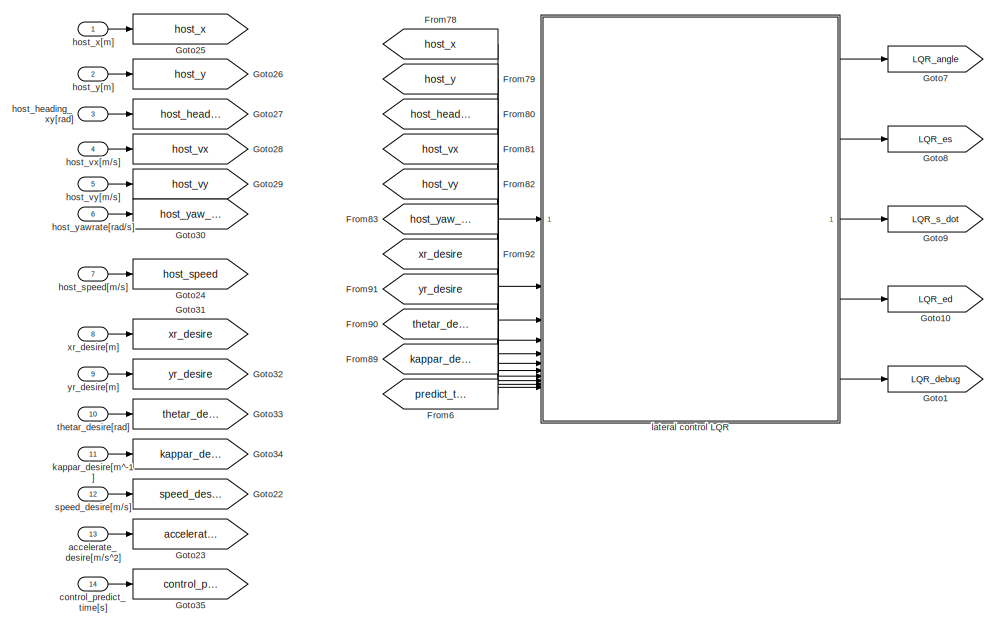
[diagram: modular_bus_1/control module/control main - part 1/3, middle left region]
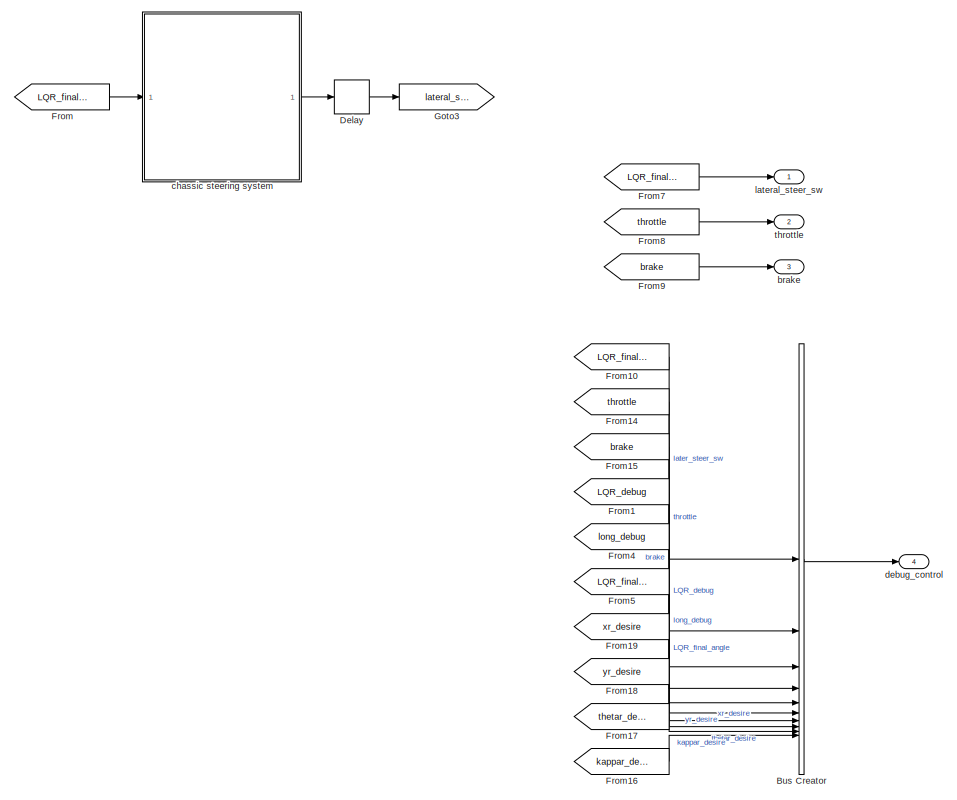
[diagram: modular_bus_1/control module/control main - part 2/3, right side, full height]
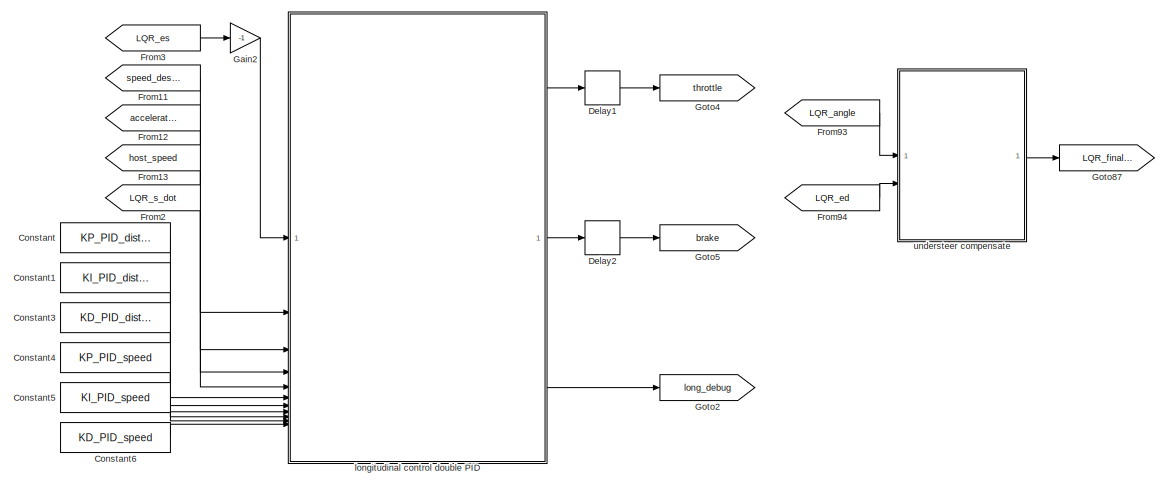
[diagram: modular_bus_1/control module/control main - part 3/3, central region]
BLOCK [SubSystem] modular_bus_1/control module/control main
BLOCK [BusCreator] modular_bus_1/control module/control main/Bus Creator
  DisplayOption = bar
  InheritFromInputs = on
  Inputs = 10
BLOCK [Constant] modular_bus_1/control module/control main/Constant
  Value = KP_PID_distance
BLOCK [Constant] modular_bus_1/control module/control main/Constant1
  Value = KI_PID_distance
BLOCK [Constant] modular_bus_1/control module/control main/Constant3
  Value = KD_PID_distance
BLOCK [Constant] modular_bus_1/control module/control main/Constant4
  Value = KP_PID_speed
BLOCK [Constant] modular_bus_1/control module/control main/Constant5
  Value = KI_PID_speed
BLOCK [Constant] modular_bus_1/control module/control main/Constant6
  Value = KD_PID_speed
BLOCK [Delay] modular_bus_1/control module/control main/Delay
  Commented = on
  DelayLength = 1
  InputPortMap = u0
BLOCK [Delay] modular_bus_1/control module/control main/Delay1
  DelayLength = 1
  InputPortMap = u0
BLOCK [Delay] modular_bus_1/control module/control main/Delay2
  DelayLength = 1
  InputPortMap = u0
BLOCK [From] modular_bus_1/control module/control main/From
  Commented = on
  GotoTag = LQR_final_angle
BLOCK [From] modular_bus_1/control module/control main/From1
  GotoTag = LQR_debug
BLOCK [From] modular_bus_1/control module/control main/From10
  GotoTag = LQR_final_angle
BLOCK [From] modular_bus_1/control module/control main/From11
  GotoTag = speed_desire
BLOCK [From] modular_bus_1/control module/control main/From12
  GotoTag = accelerate_desire
BLOCK [From] modular_bus_1/control module/control main/From13
  GotoTag = host_speed
BLOCK [From] modular_bus_1/control module/control main/From14
  GotoTag = throttle
BLOCK [From] modular_bus_1/control module/control main/From15
  GotoTag = brake
BLOCK [From] modular_bus_1/control module/control main/From16
  GotoTag = kappar_desire
BLOCK [From] modular_bus_1/control module/control main/From17
  GotoTag = thetar_desire
BLOCK [From] modular_bus_1/control module/control main/From18
  GotoTag = yr_desire
BLOCK [From] modular_bus_1/control module/control main/From19
  GotoTag = xr_desire
BLOCK [From] modular_bus_1/control module/control main/From2
  GotoTag = LQR_s_dot
BLOCK [From] modular_bus_1/control module/control main/From3
  GotoTag = LQR_es
BLOCK [From] modular_bus_1/control module/control main/From4
  GotoTag = long_debug
BLOCK [From] modular_bus_1/control module/control main/From5
  GotoTag = LQR_final_angle
BLOCK [From] modular_bus_1/control module/control main/From6
  GotoTag = predict_time
BLOCK [From] modular_bus_1/control module/control main/From7
  GotoTag = LQR_final_angle
BLOCK [From] modular_bus_1/control module/control main/From78
  GotoTag = host_x
BLOCK [From] modular_bus_1/control module/control main/From79
  GotoTag = host_y
BLOCK [From] modular_bus_1/control module/control main/From8
  GotoTag = throttle
BLOCK [From] modular_bus_1/control module/control main/From80
  GotoTag = host_heading_xy
BLOCK [From] modular_bus_1/control module/control main/From81
  GotoTag = host_vx
BLOCK [From] modular_bus_1/control module/control main/From82
  GotoTag = host_vy
BLOCK [From] modular_bus_1/control module/control main/From83
  GotoTag = host_yaw_rate
BLOCK [From] modular_bus_1/control module/control main/From89
  GotoTag = kappar_desire
BLOCK [From] modular_bus_1/control module/control main/From9
  GotoTag = brake
BLOCK [From] modular_bus_1/control module/control main/From90
  GotoTag = thetar_desire
BLOCK [From] modular_bus_1/control module/control main/From91
  GotoTag = yr_desire
BLOCK [From] modular_bus_1/control module/control main/From92
  GotoTag = xr_desire
BLOCK [From] modular_bus_1/control module/control main/From93
  GotoTag = LQR_angle
BLOCK [From] modular_bus_1/control module/control main/From94
  GotoTag = LQR_ed
BLOCK [Gain] modular_bus_1/control module/control main/Gain2
  Gain = -1
BLOCK [Goto] modular_bus_1/control module/control main/Goto1
  GotoTag = LQR_debug
BLOCK [Goto] modular_bus_1/control module/control main/Goto10
  GotoTag = LQR_ed
BLOCK [Goto] modular_bus_1/control module/control main/Goto2
  GotoTag = long_debug
BLOCK [Goto] modular_bus_1/control module/control main/Goto22
  GotoTag = speed_desire
BLOCK [Goto] modular_bus_1/control module/control main/Goto23
  GotoTag = accelerate_desire
BLOCK [Goto] modular_bus_1/control module/control main/Goto24
  GotoTag = host_speed
BLOCK [Goto] modular_bus_1/control module/control main/Goto25
  GotoTag = host_x
BLOCK [Goto] modular_bus_1/control module/control main/Goto26
  GotoTag = host_y
BLOCK [Goto] modular_bus_1/control module/control main/Goto27
  GotoTag = host_heading_xy
BLOCK [Goto] modular_bus_1/control module/control main/Goto28
  GotoTag = host_vx
BLOCK [Goto] modular_bus_1/control module/control main/Goto29
  GotoTag = host_vy
BLOCK [Goto] modular_bus_1/control module/control main/Goto3
  Commented = on
  GotoTag = lateral_steer_sw
BLOCK [Goto] modular_bus_1/control module/control main/Goto30
  GotoTag = host_yaw_rate
BLOCK [Goto] modular_bus_1/control module/control main/Goto31
  GotoTag = xr_desire
BLOCK [Goto] modular_bus_1/control module/control main/Goto32
  GotoTag = yr_desire
BLOCK [Goto] modular_bus_1/control module/control main/Goto33
  GotoTag = thetar_desire
BLOCK [Goto] modular_bus_1/control module/control main/Goto34
  GotoTag = kappar_desire
BLOCK [Goto] modular_bus_1/control module/control main/Goto35
  GotoTag = control_predict_time
BLOCK [Goto] modular_bus_1/control module/control main/Goto4
  GotoTag = throttle
BLOCK [Goto] modular_bus_1/control module/control main/Goto5
  GotoTag = brake
BLOCK [Goto] modular_bus_1/control module/control main/Goto7
  GotoTag = LQR_angle
BLOCK [Goto] modular_bus_1/control module/control main/Goto8
  GotoTag = LQR_es
BLOCK [Goto] modular_bus_1/control module/control main/Goto87
  GotoTag = LQR_final_angle
BLOCK [Goto] modular_bus_1/control module/control main/Goto9
  GotoTag = LQR_s_dot
BLOCK [Inport] modular_bus_1/control module/control main/accelerate_desire[m//s^2]
  Port = 13
BLOCK [Outport] modular_bus_1/control module/control main/brake
  Port = 3
BLOCK [SubSystem] modular_bus_1/control module/control main/chassic steering system
  Commented = on
BLOCK [Constant] modular_bus_1/control module/control main/chassic steering system/Constant
  Value = la
BLOCK [Constant] modular_bus_1/control module/control main/chassic steering system/Constant1
  Value = lb
BLOCK [Constant] modular_bus_1/control module/control main/chassic steering system/Constant17
  Value = c_factor
BLOCK [Product] modular_bus_1/control module/control main/chassic steering system/Divide
  Inputs = */
BLOCK [Gain] modular_bus_1/control module/control main/chassic steering system/Gain3
  Gain = 180/pi
BLOCK [Gain] modular_bus_1/control module/control main/chassic steering system/Gain4
  Gain = 360
BLOCK [Inport] modular_bus_1/control module/control main/chassic steering system/LQR_final_angle
BLOCK [SubSystem] modular_bus_1/control module/control main/chassic steering system/MATLAB Function
  ErrorFcn = Stateflow.Translate.translate
  PermitHierarchicalResolution = ExplicitOnly
  SFBlockType = MATLAB Function
  TreatAsAtomicUnit = on
BLOCK [Demux] modular_bus_1/control module/control main/chassic steering system/MATLAB Function/ Demux 
  Outputs = 1
BLOCK [S-Function] modular_bus_1/control module/control main/chassic steering system/MATLAB Function/ SFunction 
  EnableBusSupport = on
  FunctionName = sf_sfun
  PortCounts = [3 2]
  SFcnIsStateOwnerBlock = off
  SFunctionDeploymentMode = off
  Tag = Stateflow S-Function 1
BLOCK [Terminator] modular_bus_1/control module/control main/chassic steering system/MATLAB Function/ Terminator 
BLOCK [Inport] modular_bus_1/control module/control main/chassic steering system/MATLAB Function/la
  Port = 2
BLOCK [Inport] modular_bus_1/control module/control main/chassic steering system/MATLAB Function/lb
  Port = 3
BLOCK [Outport] modular_bus_1/control module/control main/chassic steering system/MATLAB Function/right_steer
BLOCK [Inport] modular_bus_1/control module/control main/chassic steering system/MATLAB Function/u
BLOCK [Saturate] modular_bus_1/control module/control main/chassic steering system/Saturation
  LowerLimit = -70
  UpperLimit = 70
BLOCK [Saturate] modular_bus_1/control module/control main/chassic steering system/Saturation1
  LowerLimit = -1.2217
  UpperLimit = 1.2217
BLOCK [Outport] modular_bus_1/control module/control main/chassic steering system/lat_steer_sw[deg]
BLOCK [Lookup_n-D] modular_bus_1/control module/control main/chassic steering system/transfer right wheel angle to rack displancement
  BreakpointsForDimension1 = right_wheel_ground
  InputPortMap = u0
  InternalRulePriority = Speed
  NumberOfTableDimensions = 1
  RndMeth = Simplest
  Table = rack_displacement
BLOCK [Inport] modular_bus_1/control module/control main/control_predict_time[s]
  Port = 14
BLOCK [Outport] modular_bus_1/control module/control main/debug_control
  Port = 4
BLOCK [Inport] modular_bus_1/control module/control main/host_heading_xy[rad]
  Port = 3
BLOCK [Inport] modular_bus_1/control module/control main/host_speed[m//s]
  Port = 7
BLOCK [Inport] modular_bus_1/control module/control main/host_vx[m//s]
  Port = 4
BLOCK [Inport] modular_bus_1/control module/control main/host_vy[m//s]
  Port = 5
BLOCK [Inport] modular_bus_1/control module/control main/host_x[m]
BLOCK [Inport] modular_bus_1/control module/control main/host_y[m]
  Port = 2
BLOCK [Inport] modular_bus_1/control module/control main/host_yawrate[rad//s]
  Port = 6
BLOCK [Inport] modular_bus_1/control module/control main/kappar_desire[m^-1]
  Port = 11
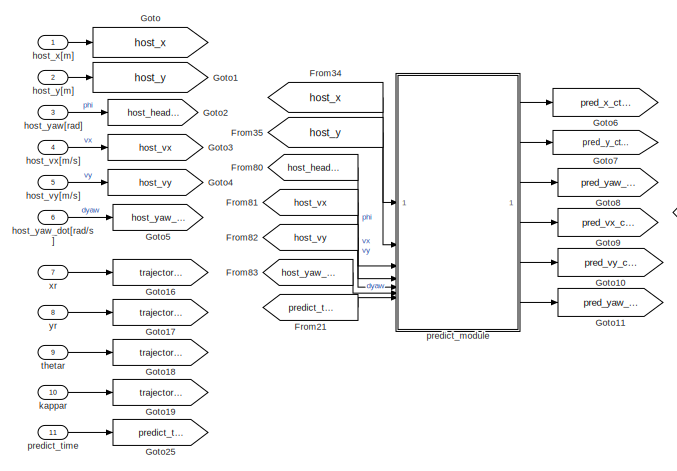
[diagram: modular_bus_1/control module/control main/lateral control LQR - part 1/5, top left region]
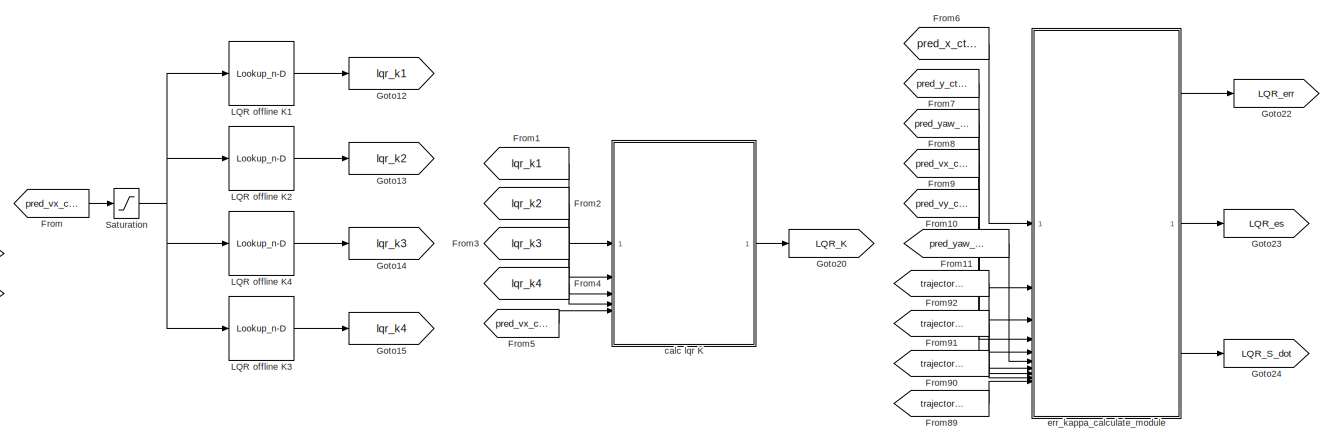
[diagram: modular_bus_1/control module/control main/lateral control LQR - part 2/5, top center region]
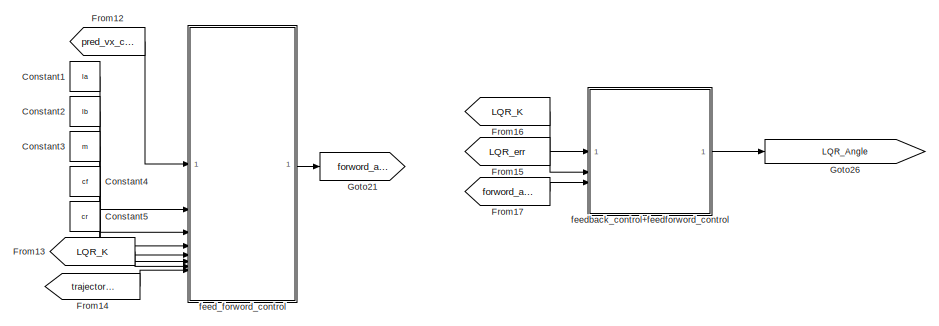
[diagram: modular_bus_1/control module/control main/lateral control LQR - part 3/5, top right region]
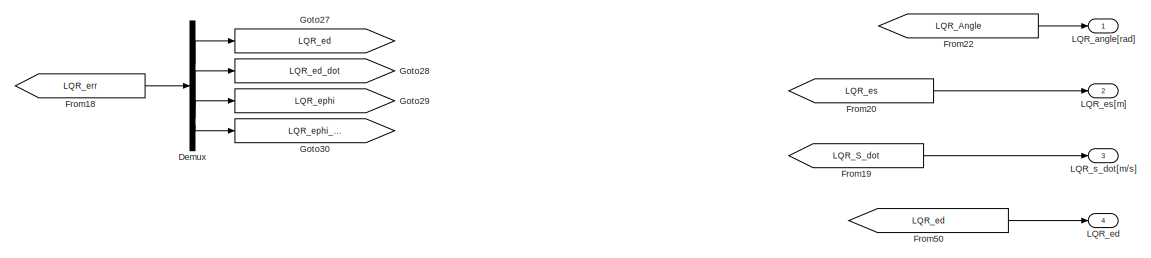
[diagram: modular_bus_1/control module/control main/lateral control LQR - part 4/5, top right region]
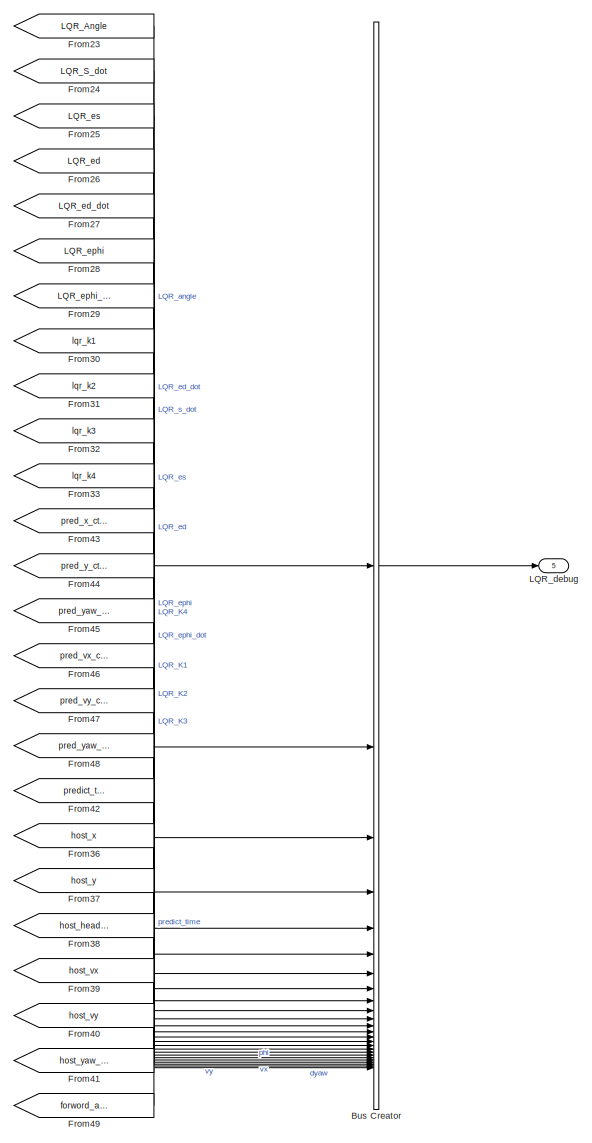
[diagram: modular_bus_1/control module/control main/lateral control LQR - part 5/5, bottom right region]
BLOCK [SubSystem] modular_bus_1/control module/control main/lateral control LQR
BLOCK [BusCreator] modular_bus_1/control module/control main/lateral control LQR/Bus Creator
  DisplayOption = bar
  InheritFromInputs = on
  Inputs = 25
BLOCK [Constant] modular_bus_1/control module/control main/lateral control LQR/Constant1
  Value = la
BLOCK [Constant] modular_bus_1/control module/control main/lateral control LQR/Constant2
  Value = lb
BLOCK [Constant] modular_bus_1/control module/control main/lateral control LQR/Constant3
  Value = m
BLOCK [Constant] modular_bus_1/control module/control main/lateral control LQR/Constant4
  Value = cf
BLOCK [Constant] modular_bus_1/control module/control main/lateral control LQR/Constant5
  Value = cr
BLOCK [Demux] modular_bus_1/control module/control main/lateral control LQR/Demux
BLOCK [From] modular_bus_1/control module/control main/lateral control LQR/From
  GotoTag = pred_vx_ctrl
BLOCK [From] modular_bus_1/control module/control main/lateral control LQR/From1
  GotoTag = lqr_k1
BLOCK [From] modular_bus_1/control module/control main/lateral control LQR/From10
  GotoTag = pred_vy_ctrl
BLOCK [From] modular_bus_1/control module/control main/lateral control LQR/From11
  GotoTag = pred_yaw_dot_ctrl
BLOCK [From] modular_bus_1/control module/control main/lateral control LQR/From12
  GotoTag = pred_vx_ctrl
BLOCK [From] modular_bus_1/control module/control main/lateral control LQR/From13
  GotoTag = LQR_K
BLOCK [From] modular_bus_1/control module/control main/lateral control LQR/From14
  GotoTag = trajectory_kappar
BLOCK [From] modular_bus_1/control module/control main/lateral control LQR/From15
  GotoTag = LQR_err
BLOCK [From] modular_bus_1/control module/control main/lateral control LQR/From16
  GotoTag = LQR_K
BLOCK [From] modular_bus_1/control module/control main/lateral control LQR/From17
  GotoTag = forword_angle
BLOCK [From] modular_bus_1/control module/control main/lateral control LQR/From18
  GotoTag = LQR_err
BLOCK [From] modular_bus_1/control module/control main/lateral control LQR/From19
  GotoTag = LQR_S_dot
BLOCK [From] modular_bus_1/control module/control main/lateral control LQR/From2
  GotoTag = lqr_k2
BLOCK [From] modular_bus_1/control module/control main/lateral control LQR/From20
  GotoTag = LQR_es
BLOCK [From] modular_bus_1/control module/control main/lateral control LQR/From21
  GotoTag = predict_time
BLOCK [From] modular_bus_1/control module/control main/lateral control LQR/From22
  GotoTag = LQR_Angle
BLOCK [From] modular_bus_1/control module/control main/lateral control LQR/From23
  GotoTag = LQR_Angle
  NameLocation = top
BLOCK [From] modular_bus_1/control module/control main/lateral control LQR/From24
  GotoTag = LQR_S_dot
  NameLocation = top
BLOCK [From] modular_bus_1/control module/control main/lateral control LQR/From25
  GotoTag = LQR_es
  NameLocation = top
BLOCK [From] modular_bus_1/control module/control main/lateral control LQR/From26
  GotoTag = LQR_ed
  NameLocation = top
BLOCK [From] modular_bus_1/control module/control main/lateral control LQR/From27
  GotoTag = LQR_ed_dot
  NameLocation = top
BLOCK [From] modular_bus_1/control module/control main/lateral control LQR/From28
  GotoTag = LQR_ephi
  NameLocation = top
BLOCK [From] modular_bus_1/control module/control main/lateral control LQR/From29
  GotoTag = LQR_ephi_dot
  NameLocation = top
BLOCK [From] modular_bus_1/control module/control main/lateral control LQR/From3
  GotoTag = lqr_k3
BLOCK [From] modular_bus_1/control module/control main/lateral control LQR/From30
  GotoTag = lqr_k1
  NameLocation = top
BLOCK [From] modular_bus_1/control module/control main/lateral control LQR/From31
  GotoTag = lqr_k2
  NameLocation = top
BLOCK [From] modular_bus_1/control module/control main/lateral control LQR/From32
  GotoTag = lqr_k3
  NameLocation = top
BLOCK [From] modular_bus_1/control module/control main/lateral control LQR/From33
  GotoTag = lqr_k4
  NameLocation = top
BLOCK [From] modular_bus_1/control module/control main/lateral control LQR/From34
  GotoTag = host_x
BLOCK [From] modular_bus_1/control module/control main/lateral control LQR/From35
  GotoTag = host_y
BLOCK [From] modular_bus_1/control module/control main/lateral control LQR/From36
  GotoTag = host_x
  NameLocation = top
BLOCK [From] modular_bus_1/control module/control main/lateral control LQR/From37
  GotoTag = host_y
  NameLocation = top
BLOCK [From] modular_bus_1/control module/control main/lateral control LQR/From38
  GotoTag = host_heading_xy
  NameLocation = top
BLOCK [From] modular_bus_1/control module/control main/lateral control LQR/From39
  GotoTag = host_vx
  NameLocation = top
BLOCK [From] modular_bus_1/control module/control main/lateral control LQR/From4
  GotoTag = lqr_k4
BLOCK [From] modular_bus_1/control module/control main/lateral control LQR/From40
  GotoTag = host_vy
  NameLocation = top
BLOCK [From] modular_bus_1/control module/control main/lateral control LQR/From41
  GotoTag = host_yaw_rate
  NameLocation = top
BLOCK [From] modular_bus_1/control module/control main/lateral control LQR/From42
  GotoTag = predict_time
  NameLocation = top
BLOCK [From] modular_bus_1/control module/control main/lateral control LQR/From43
  GotoTag = pred_x_ctrl
  NameLocation = top
BLOCK [From] modular_bus_1/control module/control main/lateral control LQR/From44
  GotoTag = pred_y_ctrl
  NameLocation = top
BLOCK [From] modular_bus_1/control module/control main/lateral control LQR/From45
  GotoTag = pred_yaw_ctrl
  NameLocation = top
BLOCK [From] modular_bus_1/control module/control main/lateral control LQR/From46
  GotoTag = pred_vx_ctrl
  NameLocation = top
BLOCK [From] modular_bus_1/control module/control main/lateral control LQR/From47
  GotoTag = pred_vy_ctrl
  NameLocation = top
BLOCK [From] modular_bus_1/control module/control main/lateral control LQR/From48
  GotoTag = pred_yaw_dot_ctrl
  NameLocation = top
BLOCK [From] modular_bus_1/control module/control main/lateral control LQR/From49
  GotoTag = forword_angle
  NameLocation = top
BLOCK [From] modular_bus_1/control module/control main/lateral control LQR/From5
  GotoTag = pred_vx_ctrl
BLOCK [From] modular_bus_1/control module/control main/lateral control LQR/From50
  GotoTag = LQR_ed
BLOCK [From] modular_bus_1/control module/control main/lateral control LQR/From6
  GotoTag = pred_x_ctrl
BLOCK [From] modular_bus_1/control module/control main/lateral control LQR/From7
  GotoTag = pred_y_ctrl
BLOCK [From] modular_bus_1/control module/control main/lateral control LQR/From8
  GotoTag = pred_yaw_ctrl
BLOCK [From] modular_bus_1/control module/control main/lateral control LQR/From80
  GotoTag = host_heading_xy
BLOCK [From] modular_bus_1/control module/control main/lateral control LQR/From81
  GotoTag = host_vx
BLOCK [From] modular_bus_1/control module/control main/lateral control LQR/From82
  GotoTag = host_vy
BLOCK [From] modular_bus_1/control module/control main/lateral control LQR/From83
  GotoTag = host_yaw_rate
BLOCK [From] modular_bus_1/control module/control main/lateral control LQR/From89
  GotoTag = trajectory_kappar
BLOCK [From] modular_bus_1/control module/control main/lateral control LQR/From9
  GotoTag = pred_vx_ctrl
BLOCK [From] modular_bus_1/control module/control main/lateral control LQR/From90
  GotoTag = trajectory_thetar
BLOCK [From] modular_bus_1/control module/control main/lateral control LQR/From91
  GotoTag = trajectory_yr
BLOCK [From] modular_bus_1/control module/control main/lateral control LQR/From92
  GotoTag = trajectory_xr
BLOCK [Goto] modular_bus_1/control module/control main/lateral control LQR/Goto
  GotoTag = host_x
BLOCK [Goto] modular_bus_1/control module/control main/lateral control LQR/Goto1
  GotoTag = host_y
BLOCK [Goto] modular_bus_1/control module/control main/lateral control LQR/Goto10
  GotoTag = pred_vy_ctrl
BLOCK [Goto] modular_bus_1/control module/control main/lateral control LQR/Goto11
  GotoTag = pred_yaw_dot_ctrl
BLOCK [Goto] modular_bus_1/control module/control main/lateral control LQR/Goto12
  GotoTag = lqr_k1
BLOCK [Goto] modular_bus_1/control module/control main/lateral control LQR/Goto13
  GotoTag = lqr_k2
BLOCK [Goto] modular_bus_1/control module/control main/lateral control LQR/Goto14
  GotoTag = lqr_k3
BLOCK [Goto] modular_bus_1/control module/control main/lateral control LQR/Goto15
  GotoTag = lqr_k4
BLOCK [Goto] modular_bus_1/control module/control main/lateral control LQR/Goto16
  GotoTag = trajectory_xr
BLOCK [Goto] modular_bus_1/control module/control main/lateral control LQR/Goto17
  GotoTag = trajectory_yr
BLOCK [Goto] modular_bus_1/control module/control main/lateral control LQR/Goto18
  GotoTag = trajectory_thetar
BLOCK [Goto] modular_bus_1/control module/control main/lateral control LQR/Goto19
  GotoTag = trajectory_kappar
BLOCK [Goto] modular_bus_1/control module/control main/lateral control LQR/Goto2
  GotoTag = host_heading_xy
BLOCK [Goto] modular_bus_1/control module/control main/lateral control LQR/Goto20
  GotoTag = LQR_K
BLOCK [Goto] modular_bus_1/control module/control main/lateral control LQR/Goto21
  GotoTag = forword_angle
BLOCK [Goto] modular_bus_1/control module/control main/lateral control LQR/Goto22
  GotoTag = LQR_err
BLOCK [Goto] modular_bus_1/control module/control main/lateral control LQR/Goto23
  GotoTag = LQR_es
BLOCK [Goto] modular_bus_1/control module/control main/lateral control LQR/Goto24
  GotoTag = LQR_S_dot
BLOCK [Goto] modular_bus_1/control module/control main/lateral control LQR/Goto25
  GotoTag = predict_time
BLOCK [Goto] modular_bus_1/control module/control main/lateral control LQR/Goto26
  GotoTag = LQR_Angle
BLOCK [Goto] modular_bus_1/control module/control main/lateral control LQR/Goto27
  GotoTag = LQR_ed
BLOCK [Goto] modular_bus_1/control module/control main/lateral control LQR/Goto28
  GotoTag = LQR_ed_dot
BLOCK [Goto] modular_bus_1/control module/control main/lateral control LQR/Goto29
  GotoTag = LQR_ephi
BLOCK [Goto] modular_bus_1/control module/control main/lateral control LQR/Goto3
  GotoTag = host_vx
BLOCK [Goto] modular_bus_1/control module/control main/lateral control LQR/Goto30
  GotoTag = LQR_ephi_dot
BLOCK [Goto] modular_bus_1/control module/control main/lateral control LQR/Goto4
  GotoTag = host_vy
BLOCK [Goto] modular_bus_1/control module/control main/lateral control LQR/Goto5
  GotoTag = host_yaw_rate
BLOCK [Goto] modular_bus_1/control module/control main/lateral control LQR/Goto6
  GotoTag = pred_x_ctrl
BLOCK [Goto] modular_bus_1/control module/control main/lateral control LQR/Goto7
  GotoTag = pred_y_ctrl
BLOCK [Goto] modular_bus_1/control module/control main/lateral control LQR/Goto8
  GotoTag = pred_yaw_ctrl
BLOCK [Goto] modular_bus_1/control module/control main/lateral control LQR/Goto9
  GotoTag = pred_vx_ctrl
BLOCK [Lookup_n-D] modular_bus_1/control module/control main/lateral control LQR/LQR offline K1
  BreakpointsForDimension1 = vx_break_point
  InputPortMap = u0
  InternalRulePriority = Speed
  NumberOfTableDimensions = 1
  RndMeth = Simplest
  Table = LQR_K1
BLOCK [Lookup_n-D] modular_bus_1/control module/control main/lateral control LQR/LQR offline K2
  BreakpointsForDimension1 = vx_break_point
  InputPortMap = u0
  InternalRulePriority = Speed
  NumberOfTableDimensions = 1
  RndMeth = Simplest
  Table = LQR_K2
BLOCK [Lookup_n-D] modular_bus_1/control module/control main/lateral control LQR/LQR offline K3
  BreakpointsForDimension1 = vx_break_point
  InputPortMap = u0
  InternalRulePriority = Speed
  NumberOfTableDimensions = 1
  RndMeth = Simplest
  Table = LQR_K3
BLOCK [Lookup_n-D] modular_bus_1/control module/control main/lateral control LQR/LQR offline K4
  BreakpointsForDimension1 = vx_break_point
  InputPortMap = u0
  InternalRulePriority = Speed
  NumberOfTableDimensions = 1
  RndMeth = Simplest
  Table = LQR_K4
BLOCK [Outport] modular_bus_1/control module/control main/lateral control LQR/LQR_angle[rad]
  VectorParamsAs1DForOutWhenUnconnected = off
BLOCK [Outport] modular_bus_1/control module/control main/lateral control LQR/LQR_debug
  Port = 5
  VectorParamsAs1DForOutWhenUnconnected = off
BLOCK [Outport] modular_bus_1/control module/control main/lateral control LQR/LQR_ed
  Port = 4
  VectorParamsAs1DForOutWhenUnconnected = off
BLOCK [Outport] modular_bus_1/control module/control main/lateral control LQR/LQR_es[m]
  Port = 2
  VectorParamsAs1DForOutWhenUnconnected = off
BLOCK [Outport] modular_bus_1/control module/control main/lateral control LQR/LQR_s_dot[m//s]
  Port = 3
  VectorParamsAs1DForOutWhenUnconnected = off
BLOCK [Saturate] modular_bus_1/control module/control main/lateral control LQR/Saturation
  LowerLimit = 0
  UpperLimit = 50
BLOCK [SubSystem] modular_bus_1/control module/control main/lateral control LQR/calc lqr K
  ErrorFcn = Stateflow.Translate.translate
  PermitHierarchicalResolution = ExplicitOnly
  SFBlockType = MATLAB Function
  TreatAsAtomicUnit = on
BLOCK [Demux] modular_bus_1/control module/control main/lateral control LQR/calc lqr K/ Demux 
  Outputs = 1
BLOCK [S-Function] modular_bus_1/control module/control main/lateral control LQR/calc lqr K/ SFunction 
  EnableBusSupport = on
  FunctionName = sf_sfun
  PortCounts = [5 2]
  SFcnIsStateOwnerBlock = off
  SFunctionDeploymentMode = off
  Tag = Stateflow S-Function 27
BLOCK [Terminator] modular_bus_1/control module/control main/lateral control LQR/calc lqr K/ Terminator 
BLOCK [Outport] modular_bus_1/control module/control main/lateral control LQR/calc lqr K/k
  VectorParamsAs1DForOutWhenUnconnected = off
BLOCK [Inport] modular_bus_1/control module/control main/lateral control LQR/calc lqr K/k1
BLOCK [Inport] modular_bus_1/control module/control main/lateral control LQR/calc lqr K/k2
  Port = 2
BLOCK [Inport] modular_bus_1/control module/control main/lateral control LQR/calc lqr K/k3
  Port = 3
BLOCK [Inport] modular_bus_1/control module/control main/lateral control LQR/calc lqr K/k4
  Port = 4
BLOCK [Inport] modular_bus_1/control module/control main/lateral control LQR/calc lqr K/vx
  Port = 5
BLOCK [SubSystem] modular_bus_1/control module/control main/lateral control LQR/err_kappa_calculate_module
  ErrorFcn = Stateflow.Translate.translate
  PermitHierarchicalResolution = ExplicitOnly
  SFBlockType = MATLAB Function
  TreatAsAtomicUnit = on
BLOCK [Demux] modular_bus_1/control module/control main/lateral control LQR/err_kappa_calculate_module/ Demux 
  Outputs = 1
BLOCK [S-Function] modular_bus_1/control module/control main/lateral control LQR/err_kappa_calculate_module/ SFunction 
  EnableBusSupport = on
  FunctionName = sf_sfun
  PortCounts = [10 4]
  SFcnIsStateOwnerBlock = off
  SFunctionDeploymentMode = off
  Tag = Stateflow S-Function 24
BLOCK [Terminator] modular_bus_1/control module/control main/lateral control LQR/err_kappa_calculate_module/ Terminator 
BLOCK [Outport] modular_bus_1/control module/control main/lateral control LQR/err_kappa_calculate_module/err
  VectorParamsAs1DForOutWhenUnconnected = off
BLOCK [Outport] modular_bus_1/control module/control main/lateral control LQR/err_kappa_calculate_module/es
  Port = 2
  VectorParamsAs1DForOutWhenUnconnected = off
BLOCK [Inport] modular_bus_1/control module/control main/lateral control LQR/err_kappa_calculate_module/kappar
  Port = 10
BLOCK [Inport] modular_bus_1/control module/control main/lateral control LQR/err_kappa_calculate_module/phi
  Port = 3
BLOCK [Inport] modular_bus_1/control module/control main/lateral control LQR/err_kappa_calculate_module/phi_dot
  Port = 6
BLOCK [Outport] modular_bus_1/control module/control main/lateral control LQR/err_kappa_calculate_module/s_dot
  Port = 3
  VectorParamsAs1DForOutWhenUnconnected = off
BLOCK [Inport] modular_bus_1/control module/control main/lateral control LQR/err_kappa_calculate_module/thetar
  Port = 9
BLOCK [Inport] modular_bus_1/control module/control main/lateral control LQR/err_kappa_calculate_module/vx
  Port = 4
BLOCK [Inport] modular_bus_1/control module/control main/lateral control LQR/err_kappa_calculate_module/vy
  Port = 5
BLOCK [Inport] modular_bus_1/control module/control main/lateral control LQR/err_kappa_calculate_module/x
BLOCK [Inport] modular_bus_1/control module/control main/lateral control LQR/err_kappa_calculate_module/xr
  Port = 7
BLOCK [Inport] modular_bus_1/control module/control main/lateral control LQR/err_kappa_calculate_module/y
  Port = 2
BLOCK [Inport] modular_bus_1/control module/control main/lateral control LQR/err_kappa_calculate_module/yr
  Port = 8
BLOCK [SubSystem] modular_bus_1/control module/control main/lateral control LQR/feed_forword_control
  ErrorFcn = Stateflow.Translate.translate
  PermitHierarchicalResolution = ExplicitOnly
  SFBlockType = MATLAB Function
  TreatAsAtomicUnit = on
BLOCK [Demux] modular_bus_1/control module/control main/lateral control LQR/feed_forword_control/ Demux 
  Outputs = 1
BLOCK [S-Function] modular_bus_1/control module/control main/lateral control LQR/feed_forword_control/ SFunction 
  EnableBusSupport = on
  FunctionName = sf_sfun
  PortCounts = [8 2]
  SFcnIsStateOwnerBlock = off
  SFunctionDeploymentMode = off
  Tag = Stateflow S-Function 25
BLOCK [Terminator] modular_bus_1/control module/control main/lateral control LQR/feed_forword_control/ Terminator 
BLOCK [Inport] modular_bus_1/control module/control main/lateral control LQR/feed_forword_control/a
  Port = 2
BLOCK [Inport] modular_bus_1/control module/control main/lateral control LQR/feed_forword_control/b
  Port = 3
BLOCK [Inport] modular_bus_1/control module/control main/lateral control LQR/feed_forword_control/cf
  Port = 5
BLOCK [Inport] modular_bus_1/control module/control main/lateral control LQR/feed_forword_control/cr
  Port = 6
BLOCK [Outport] modular_bus_1/control module/control main/lateral control LQR/feed_forword_control/forword_angle
  VectorParamsAs1DForOutWhenUnconnected = off
BLOCK [Inport] modular_bus_1/control module/control main/lateral control LQR/feed_forword_control/k
  Port = 7
BLOCK [Inport] modular_bus_1/control module/control main/lateral control LQR/feed_forword_control/kr
  Port = 8
BLOCK [Inport] modular_bus_1/control module/control main/lateral control LQR/feed_forword_control/m
  Port = 4
BLOCK [Inport] modular_bus_1/control module/control main/lateral control LQR/feed_forword_control/vx
BLOCK [SubSystem] modular_bus_1/control module/control main/lateral control LQR/feedback_control+feedforword_control
  ErrorFcn = Stateflow.Translate.translate
  PermitHierarchicalResolution = ExplicitOnly
  SFBlockType = MATLAB Function
  TreatAsAtomicUnit = on
BLOCK [Demux] modular_bus_1/control module/control main/lateral control LQR/feedback_control+feedforword_control/ Demux 
  Outputs = 1
BLOCK [S-Function] modular_bus_1/control module/control main/lateral control LQR/feedback_control+feedforword_control/ SFunction 
  EnableBusSupport = on
  FunctionName = sf_sfun
  PortCounts = [3 2]
  SFcnIsStateOwnerBlock = off
  SFunctionDeploymentMode = off
  Tag = Stateflow S-Function 26
BLOCK [Terminator] modular_bus_1/control module/control main/lateral control LQR/feedback_control+feedforword_control/ Terminator 
BLOCK [Outport] modular_bus_1/control module/control main/lateral control LQR/feedback_control+feedforword_control/angle
  VectorParamsAs1DForOutWhenUnconnected = off
BLOCK [Inport] modular_bus_1/control module/control main/lateral control LQR/feedback_control+feedforword_control/err
  Port = 2
BLOCK [Inport] modular_bus_1/control module/control main/lateral control LQR/feedback_control+feedforword_control/forword_angle
  Port = 3
BLOCK [Inport] modular_bus_1/control module/control main/lateral control LQR/feedback_control+feedforword_control/k
BLOCK [Inport] modular_bus_1/control module/control main/lateral control LQR/host_vx[m//s]
  Port = 4
BLOCK [Inport] modular_bus_1/control module/control main/lateral control LQR/host_vy[m//s]
  Port = 5
BLOCK [Inport] modular_bus_1/control module/control main/lateral control LQR/host_x[m]
BLOCK [Inport] modular_bus_1/control module/control main/lateral control LQR/host_y[m]
  Port = 2
BLOCK [Inport] modular_bus_1/control module/control main/lateral control LQR/host_yaw[rad]
  Port = 3
BLOCK [Inport] modular_bus_1/control module/control main/lateral control LQR/host_yaw_dot[rad//s]
  Port = 6
BLOCK [Inport] modular_bus_1/control module/control main/lateral control LQR/kappar
  Port = 10
BLOCK [SubSystem] modular_bus_1/control module/control main/lateral control LQR/predict_module
  ErrorFcn = Stateflow.Translate.translate
  PermitHierarchicalResolution = ExplicitOnly
  SFBlockType = MATLAB Function
  TreatAsAtomicUnit = on
BLOCK [Demux] modular_bus_1/control module/control main/lateral control LQR/predict_module/ Demux 
  Outputs = 1
BLOCK [S-Function] modular_bus_1/control module/control main/lateral control LQR/predict_module/ SFunction 
  EnableBusSupport = on
  FunctionName = sf_sfun
  PortCounts = [7 7]
  SFcnIsStateOwnerBlock = off
  SFunctionDeploymentMode = off
  Tag = Stateflow S-Function 28
BLOCK [Terminator] modular_bus_1/control module/control main/lateral control LQR/predict_module/ Terminator 
BLOCK [Inport] modular_bus_1/control module/control main/lateral control LQR/predict_module/phi
  Port = 3
BLOCK [Inport] modular_bus_1/control module/control main/lateral control LQR/predict_module/phi_dot
  Port = 6
BLOCK [Outport] modular_bus_1/control module/control main/lateral control LQR/predict_module/pred_vx_ctrl
  Port = 4
  VectorParamsAs1DForOutWhenUnconnected = off
BLOCK [Outport] modular_bus_1/control module/control main/lateral control LQR/predict_module/pred_vy_ctrl
  Port = 5
  VectorParamsAs1DForOutWhenUnconnected = off
BLOCK [Outport] modular_bus_1/control module/control main/lateral control LQR/predict_module/pred_x_ctrl
  VectorParamsAs1DForOutWhenUnconnected = off
BLOCK [Outport] modular_bus_1/control module/control main/lateral control LQR/predict_module/pred_y_ctrl
  Port = 2
  VectorParamsAs1DForOutWhenUnconnected = off
BLOCK [Outport] modular_bus_1/control module/control main/lateral control LQR/predict_module/pred_yaw_ctrl
  Port = 3
  VectorParamsAs1DForOutWhenUnconnected = off
BLOCK [Outport] modular_bus_1/control module/control main/lateral control LQR/predict_module/pred_yaw_dot_ctrl
  Port = 6
  VectorParamsAs1DForOutWhenUnconnected = off
BLOCK [Inport] modular_bus_1/control module/control main/lateral control LQR/predict_module/ts
  Port = 7
BLOCK [Inport] modular_bus_1/control module/control main/lateral control LQR/predict_module/vx
  Port = 4
BLOCK [Inport] modular_bus_1/control module/control main/lateral control LQR/predict_module/vy
  Port = 5
BLOCK [Inport] modular_bus_1/control module/control main/lateral control LQR/predict_module/x
BLOCK [Inport] modular_bus_1/control module/control main/lateral control LQR/predict_module/y
  Port = 2
BLOCK [Inport] modular_bus_1/control module/control main/lateral control LQR/predict_time
  Port = 11
BLOCK [Inport] modular_bus_1/control module/control main/lateral control LQR/thetar
  Port = 9
BLOCK [Inport] modular_bus_1/control module/control main/lateral control LQR/xr
  Port = 7
BLOCK [Inport] modular_bus_1/control module/control main/lateral control LQR/yr
  Port = 8
BLOCK [Outport] modular_bus_1/control module/control main/lateral_steer_sw
BLOCK [SubSystem] modular_bus_1/control module/control main/longitudinal control double PID
BLOCK [Lookup_n-D] modular_bus_1/control module/control main/longitudinal control double PID/2-D Lookup Table
  BreakpointsForDimension1 = vubr
  BreakpointsForDimension2 = aubr
  InputPortMap = u0,u1
  InternalRulePriority = Speed
  RndMeth = Simplest
  Table = tablebr
BLOCK [Sum] modular_bus_1/control module/control main/longitudinal control double PID/Add
  IconShape = rectangular
  Inputs = ++-
BLOCK [Sum] modular_bus_1/control module/control main/longitudinal control double PID/Add1
  IconShape = rectangular
BLOCK [BusCreator] modular_bus_1/control module/control main/longitudinal control double PID/Bus Creator
  DisplayOption = bar
  InheritFromInputs = on
  Inputs = 9
BLOCK [DiscreteFilter] modular_bus_1/control module/control main/longitudinal control double PID/Discrete Filter
  InputPortMap = u0
BLOCK [From] modular_bus_1/control module/control main/longitudinal control double PID/From
  GotoTag = s_err
BLOCK [From] modular_bus_1/control module/control main/longitudinal control double PID/From1
  GotoTag = KP_PID_distance
BLOCK [From] modular_bus_1/control module/control main/longitudinal control double PID/From10
  GotoTag = host_speed
BLOCK [From] modular_bus_1/control module/control main/longitudinal control double PID/From11
  GotoTag = KP_PID_distance
BLOCK [From] modular_bus_1/control module/control main/longitudinal control double PID/From12
  GotoTag = KI_PID_distance
BLOCK [From] modular_bus_1/control module/control main/longitudinal control double PID/From13
  GotoTag = KD_PID_distance
BLOCK [From] modular_bus_1/control module/control main/longitudinal control double PID/From14
  GotoTag = KP_PID_speed
BLOCK [From] modular_bus_1/control module/control main/longitudinal control double PID/From15
  GotoTag = KI_PID_speed
BLOCK [From] modular_bus_1/control module/control main/longitudinal control double PID/From16
  GotoTag = KD_PID_speed
BLOCK [From] modular_bus_1/control module/control main/longitudinal control double PID/From17
  GotoTag = host_speed
BLOCK [From] modular_bus_1/control module/control main/longitudinal control double PID/From18
  GotoTag = s_err
BLOCK [From] modular_bus_1/control module/control main/longitudinal control double PID/From19
  GotoTag = host_s_dot
BLOCK [From] modular_bus_1/control module/control main/longitudinal control double PID/From2
  GotoTag = KI_PID_distance
BLOCK [From] modular_bus_1/control module/control main/longitudinal control double PID/From3
  GotoTag = KD_PID_distance
BLOCK [From] modular_bus_1/control module/control main/longitudinal control double PID/From4
  GotoTag = KP_PID_speed
BLOCK [From] modular_bus_1/control module/control main/longitudinal control double PID/From5
  GotoTag = KI_PID_speed
BLOCK [From] modular_bus_1/control module/control main/longitudinal control double PID/From6
  GotoTag = KD_PID_speed
BLOCK [From] modular_bus_1/control module/control main/longitudinal control double PID/From7
  GotoTag = speed_desire
BLOCK [From] modular_bus_1/control module/control main/longitudinal control double PID/From8
  GotoTag = host_s_dot
BLOCK [From] modular_bus_1/control module/control main/longitudinal control double PID/From9
  GotoTag = accelerate_desire
BLOCK [Goto] modular_bus_1/control module/control main/longitudinal control double PID/Goto
  GotoTag = s_err
BLOCK [Goto] modular_bus_1/control module/control main/longitudinal control double PID/Goto1
  GotoTag = speed_desire
BLOCK [Goto] modular_bus_1/control module/control main/longitudinal control double PID/Goto10
  GotoTag = host_s_dot
BLOCK [Goto] modular_bus_1/control module/control main/longitudinal control double PID/Goto2
  GotoTag = accelerate_desire
BLOCK [Goto] modular_bus_1/control module/control main/longitudinal control double PID/Goto3
  GotoTag = KP_PID_distance
BLOCK [Goto] modular_bus_1/control module/control main/longitudinal control double PID/Goto4
  GotoTag = KI_PID_distance
BLOCK [Goto] modular_bus_1/control module/control main/longitudinal control double PID/Goto5
  GotoTag = KD_PID_distance
BLOCK [Goto] modular_bus_1/control module/control main/longitudinal control double PID/Goto6
  GotoTag = KP_PID_speed
BLOCK [Goto] modular_bus_1/control module/control main/longitudinal control double PID/Goto7
  GotoTag = KI_PID_speed
BLOCK [Goto] modular_bus_1/control module/control main/longitudinal control double PID/Goto8
  GotoTag = KD_PID_speed
BLOCK [Goto] modular_bus_1/control module/control main/longitudinal control double PID/Goto9
  GotoTag = host_speed
BLOCK [Inport] modular_bus_1/control module/control main/longitudinal control double PID/KD_PID_distance
  Port = 8
BLOCK [Inport] modular_bus_1/control module/control main/longitudinal control double PID/KD_PID_speed
  Port = 11
BLOCK [Inport] modular_bus_1/control module/control main/longitudinal control double PID/KI_PID_distance
  Port = 7
BLOCK [Inport] modular_bus_1/control module/control main/longitudinal control double PID/KI_PID_speed
  Port = 10
BLOCK [Inport] modular_bus_1/control module/control main/longitudinal control double PID/KP_PID_distance
  Port = 6
BLOCK [Inport] modular_bus_1/control module/control main/longitudinal control double PID/KP_PID_speed
  Port = 9
BLOCK [SubSystem] modular_bus_1/control module/control main/longitudinal control double PID/MATLAB Function1
  ErrorFcn = Stateflow.Translate.translate
  PermitHierarchicalResolution = ExplicitOnly
  SFBlockType = MATLAB Function
  TreatAsAtomicUnit = on
BLOCK [Demux] modular_bus_1/control module/control main/longitudinal control double PID/MATLAB Function1/ Demux 
  Outputs = 1
BLOCK [S-Function] modular_bus_1/control module/control main/longitudinal control double PID/MATLAB Function1/ SFunction 
  EnableBusSupport = on
  FunctionName = sf_sfun
  PortCounts = [1 3]
  SFcnIsStateOwnerBlock = off
  SFunctionDeploymentMode = off
  Tag = Stateflow S-Function 5
BLOCK [Terminator] modular_bus_1/control module/control main/longitudinal control double PID/MATLAB Function1/ Terminator 
BLOCK [Outport] modular_bus_1/control module/control main/longitudinal control double PID/MATLAB Function1/brake
  Port = 2
BLOCK [Outport] modular_bus_1/control module/control main/longitudinal control double PID/MATLAB Function1/throttle
BLOCK [Inport] modular_bus_1/control module/control main/longitudinal control double PID/MATLAB Function1/u
BLOCK [SubSystem] modular_bus_1/control module/control main/longitudinal control double PID/MATLAB Function3
  Commented = on
  ErrorFcn = Stateflow.Translate.translate
  PermitHierarchicalResolution = ExplicitOnly
  SFBlockType = MATLAB Function
  TreatAsAtomicUnit = on
BLOCK [Demux] modular_bus_1/control module/control main/longitudinal control double PID/MATLAB Function3/ Demux 
  Outputs = 1
BLOCK [S-Function] modular_bus_1/control module/control main/longitudinal control double PID/MATLAB Function3/ SFunction 
  EnableBusSupport = on
  FunctionName = sf_sfun
  PortCounts = [5 2]
  SFcnIsStateOwnerBlock = off
  SFunctionDeploymentMode = off
  Tag = Stateflow S-Function 16
BLOCK [Terminator] modular_bus_1/control module/control main/longitudinal control double PID/MATLAB Function3/ Terminator 
BLOCK [Inport] modular_bus_1/control module/control main/longitudinal control double PID/MATLAB Function3/err
  Port = 4
BLOCK [Inport] modular_bus_1/control module/control main/longitudinal control double PID/MATLAB Function3/err_delay
  Port = 5
BLOCK [Inport] modular_bus_1/control module/control main/longitudinal control double PID/MATLAB Function3/kd
  Port = 3
BLOCK [Inport] modular_bus_1/control module/control main/longitudinal control double PID/MATLAB Function3/ki
  Port = 2
BLOCK [Inport] modular_bus_1/control module/control main/longitudinal control double PID/MATLAB Function3/kp
BLOCK [Outport] modular_bus_1/control module/control main/longitudinal control double PID/MATLAB Function3/pid_out
BLOCK [Saturate] modular_bus_1/control module/control main/longitudinal control double PID/Saturation
  LowerLimit = -45
  UpperLimit = 45
BLOCK [Saturate] modular_bus_1/control module/control main/longitudinal control double PID/Saturation1
  LowerLimit = -8
  UpperLimit = 5
BLOCK [Scope] modular_bus_1/control module/control main/longitudinal control double PID/Scope1
  Floating = off
  NumInputPorts = 1
  ScopeSpecificationString = Simulink.scopes.TimeScopeBlockCfg('CurrentConfiguration', extmgr.ConfigurationSet(extmgr.Configuration('Core','General UI',true),extmgr.Configuration('Core','Source UI',true),extmgr.Configuration('Sources','WiredSimulink',true,'DataLoggingVariableName','ScopeData5'),extmgr.Configuration('Visuals','Time Domain',true,'SerializedDisplays',{struct('MinYLimReal','-1.08767','MaxYLimReal','1.38541','YLab...<+1399ch>
BLOCK [Scope] modular_bus_1/control module/control main/longitudinal control double PID/Scope2
  Floating = off
  NumInputPorts = 1
  ScopeSpecificationString = Simulink.scopes.TimeScopeBlockCfg('CurrentConfiguration', extmgr.ConfigurationSet(extmgr.Configuration('Core','General UI',true),extmgr.Configuration('Core','Source UI',true),extmgr.Configuration('Sources','WiredSimulink',true,'DataLoggingVariableName','ScopeData6'),extmgr.Configuration('Visuals','Time Domain',true,'SerializedDisplays',{struct('MinYLimReal','-5.63431','MaxYLimReal','1.73715','YLab...<+1375ch>
BLOCK [Inport] modular_bus_1/control module/control main/longitudinal control double PID/accelerate desire[m//s^2]
  Port = 3
BLOCK [Outport] modular_bus_1/control module/control main/longitudinal control double PID/brake
  Port = 2
BLOCK [SubSystem] modular_bus_1/control module/control main/longitudinal control double PID/discrete pid
BLOCK [Sum] modular_bus_1/control module/control main/longitudinal control double PID/discrete pid/Add2
  IconShape = rectangular
  Inputs = +++
BLOCK [Sum] modular_bus_1/control module/control main/longitudinal control double PID/discrete pid/Add3
  IconShape = rectangular
BLOCK [Sum] modular_bus_1/control module/control main/longitudinal control double PID/discrete pid/Add4
  IconShape = rectangular
  Inputs = +-
BLOCK [Delay] modular_bus_1/control module/control main/longitudinal control double PID/discrete pid/Delay3
  DelayLength = 1
  InputPortMap = u0
  NameLocation = top
BLOCK [Delay] modular_bus_1/control module/control main/longitudinal control double PID/discrete pid/Delay4
  DelayLength = 1
  InputPortMap = u0
BLOCK [Product] modular_bus_1/control module/control main/longitudinal control double PID/discrete pid/Divide
  Inputs = **
BLOCK [Product] modular_bus_1/control module/control main/longitudinal control double PID/discrete pid/Divide1
  Inputs = **
BLOCK [Product] modular_bus_1/control module/control main/longitudinal control double PID/discrete pid/Divide2
  Inputs = **
BLOCK [From] modular_bus_1/control module/control main/longitudinal control double PID/discrete pid/From20
  GotoTag = KP_PID_distance
BLOCK [From] modular_bus_1/control module/control main/longitudinal control double PID/discrete pid/From21
  GotoTag = KI_PID_distance
BLOCK [From] modular_bus_1/control module/control main/longitudinal control double PID/discrete pid/From22
  GotoTag = KD_PID_distance
BLOCK [Gain] modular_bus_1/control module/control main/longitudinal control double PID/discrete pid/Gain
  Gain = 0.01
  NameLocation = top
BLOCK [Goto] modular_bus_1/control module/control main/longitudinal control double PID/discrete pid/Goto
  GotoTag = KP_PID_distance
BLOCK [Goto] modular_bus_1/control module/control main/longitudinal control double PID/discrete pid/Goto1
  GotoTag = KI_PID_distance
BLOCK [Goto] modular_bus_1/control module/control main/longitudinal control double PID/discrete pid/Goto2
  GotoTag = KD_PID_distance
BLOCK [Inport] modular_bus_1/control module/control main/longitudinal control double PID/discrete pid/err
BLOCK [Inport] modular_bus_1/control module/control main/longitudinal control double PID/discrete pid/kd
  Port = 4
BLOCK [Inport] modular_bus_1/control module/control main/longitudinal control double PID/discrete pid/ki
  Port = 3
BLOCK [Inport] modular_bus_1/control module/control main/longitudinal control double PID/discrete pid/kp
  Port = 2
BLOCK [Outport] modular_bus_1/control module/control main/longitudinal control double PID/discrete pid/pid_out
BLOCK [SubSystem] modular_bus_1/control module/control main/longitudinal control double PID/discrete pid1
BLOCK [Sum] modular_bus_1/control module/control main/longitudinal control double PID/discrete pid1/Add2
  IconShape = rectangular
  Inputs = +++
BLOCK [Sum] modular_bus_1/control module/control main/longitudinal control double PID/discrete pid1/Add3
  IconShape = rectangular
BLOCK [Sum] modular_bus_1/control module/control main/longitudinal control double PID/discrete pid1/Add4
  IconShape = rectangular
  Inputs = +-
BLOCK [Delay] modular_bus_1/control module/control main/longitudinal control double PID/discrete pid1/Delay3
  DelayLength = 1
  InputPortMap = u0
  NameLocation = top
BLOCK [Delay] modular_bus_1/control module/control main/longitudinal control double PID/discrete pid1/Delay4
  DelayLength = 1
  InputPortMap = u0
BLOCK [Product] modular_bus_1/control module/control main/longitudinal control double PID/discrete pid1/Divide
  Inputs = **
BLOCK [Product] modular_bus_1/control module/control main/longitudinal control double PID/discrete pid1/Divide1
  Inputs = **
BLOCK [Product] modular_bus_1/control module/control main/longitudinal control double PID/discrete pid1/Divide2
  Inputs = **
BLOCK [From] modular_bus_1/control module/control main/longitudinal control double PID/discrete pid1/From20
  GotoTag = KP_PID_distance
BLOCK [From] modular_bus_1/control module/control main/longitudinal control double PID/discrete pid1/From21
  GotoTag = KI_PID_distance
BLOCK [From] modular_bus_1/control module/control main/longitudinal control double PID/discrete pid1/From22
  GotoTag = KD_PID_distance
BLOCK [Gain] modular_bus_1/control module/control main/longitudinal control double PID/discrete pid1/Gain
  Gain = 0.01
  NameLocation = top
BLOCK [Goto] modular_bus_1/control module/control main/longitudinal control double PID/discrete pid1/Goto
  GotoTag = KP_PID_distance
BLOCK [Goto] modular_bus_1/control module/control main/longitudinal control double PID/discrete pid1/Goto1
  GotoTag = KI_PID_distance
BLOCK [Goto] modular_bus_1/control module/control main/longitudinal control double PID/discrete pid1/Goto2
  GotoTag = KD_PID_distance
BLOCK [Inport] modular_bus_1/control module/control main/longitudinal control double PID/discrete pid1/err
BLOCK [Inport] modular_bus_1/control module/control main/longitudinal control double PID/discrete pid1/kd
  Port = 4
BLOCK [Inport] modular_bus_1/control module/control main/longitudinal control double PID/discrete pid1/ki
  Port = 3
BLOCK [Inport] modular_bus_1/control module/control main/longitudinal control double PID/discrete pid1/kp
  Port = 2
BLOCK [Outport] modular_bus_1/control module/control main/longitudinal control double PID/discrete pid1/pid_out
BLOCK [Inport] modular_bus_1/control module/control main/longitudinal control double PID/host_s_dot[m//s]
  Port = 5
BLOCK [Inport] modular_bus_1/control module/control main/longitudinal control double PID/host_speed[m//s]
  Port = 4
BLOCK [Outport] modular_bus_1/control module/control main/longitudinal control double PID/longitudinal_debug
  Port = 3
BLOCK [Inport] modular_bus_1/control module/control main/longitudinal control double PID/s_err[m]
BLOCK [Inport] modular_bus_1/control module/control main/longitudinal control double PID/speed_desire[m//s]
  Port = 2
BLOCK [Outport] modular_bus_1/control module/control main/longitudinal control double PID/throttle
BLOCK [Inport] modular_bus_1/control module/control main/speed_desire[m//s]
  Port = 12
BLOCK [Inport] modular_bus_1/control module/control main/thetar_desire[rad]
  Port = 10
BLOCK [Outport] modular_bus_1/control module/control main/throttle
  Port = 2
BLOCK [SubSystem] modular_bus_1/control module/control main/understeer compensate
BLOCK [Sum] modular_bus_1/control module/control main/understeer compensate/Add
  IconShape = rectangular
  Inputs = +-
BLOCK [Gain] modular_bus_1/control module/control main/understeer compensate/Gain
  Gain = 0.01
BLOCK [Inport] modular_bus_1/control module/control main/understeer compensate/LQR_angle
BLOCK [Outport] modular_bus_1/control module/control main/understeer compensate/LQR_final_angle
BLOCK [ManualSwitch] modular_bus_1/control module/control main/understeer compensate/Manual Switch
BLOCK [Inport] modular_bus_1/control module/control main/understeer compensate/lateral err
  Port = 2
BLOCK [Inport] modular_bus_1/control module/control main/xr_desire[m]
  Port = 8
BLOCK [Inport] modular_bus_1/control module/control main/yr_desire[m]
  Port = 9
BLOCK [Inport] modular_bus_1/control module/control_predict_time[s]
  Port = 3
BLOCK [Outport] modular_bus_1/control module/debug_control
  Port = 4
BLOCK [Outport] modular_bus_1/control module/lateral_steer_sw
BLOCK [Inport] modular_bus_1/control module/location_info
BLOCK [Inport] modular_bus_1/control module/planning_result
  Port = 2
BLOCK [Outport] modular_bus_1/control module/throttle
  Port = 2
BLOCK [SubSystem] modular_bus_1/location module
BLOCK [BusCreator] modular_bus_1/location module/Bus Creator
  DisplayOption = bar
  InheritFromInputs = on
  Inputs = 7
BLOCK [Outport] modular_bus_1/location module/Out1
BLOCK [Inport] modular_bus_1/location module/host_heading_xy[rad]
  Port = 3
BLOCK [Inport] modular_bus_1/location module/host_speed[m//s]
  Port = 7
BLOCK [Inport] modular_bus_1/location module/host_vx[m//s]
  Port = 4
BLOCK [Inport] modular_bus_1/location module/host_vy[m//s]
  Port = 5
BLOCK [Inport] modular_bus_1/location module/host_x[m]
BLOCK [Inport] modular_bus_1/location module/host_y[m]
  Port = 2
BLOCK [Inport] modular_bus_1/location module/host_yawrate[rad//s]
  Port = 6
BLOCK [SubSystem] modular_bus_1/planning module
BLOCK [BusCreator] modular_bus_1/planning module/Bus Creator1
  DisplayOption = bar
  InheritFromInputs = on
  Inputs = 6
BLOCK [BusSelector] modular_bus_1/planning module/Bus Selector
  OutputSignals = X,Y,Z
BLOCK [Clock] modular_bus_1/planning module/Clock1
  Commented = on
BLOCK [Constant] modular_bus_1/planning module/Constant
  Commented = on
  Value = host_x_init
BLOCK [Constant] modular_bus_1/planning module/Constant1
  Commented = on
  Value = host_y_init
BLOCK [From] modular_bus_1/planning module/From
  GotoTag = xr_desire
BLOCK [From] modular_bus_1/planning module/From1
  GotoTag = yr_desire
BLOCK [From] modular_bus_1/planning module/From2
  GotoTag = thetar_desire
BLOCK [From] modular_bus_1/planning module/From3
  GotoTag = kappar_desire
BLOCK [From] modular_bus_1/planning module/From4
  GotoTag = speed_desire
BLOCK [From] modular_bus_1/planning module/From5
  GotoTag = accelerate_desire
BLOCK [From] modular_bus_1/planning module/From6
  GotoTag = planning_info
BLOCK [Goto] modular_bus_1/planning module/Goto
  GotoTag = x
BLOCK [Goto] modular_bus_1/planning module/Goto1
  GotoTag = y
BLOCK [Goto] modular_bus_1/planning module/Goto11
  GotoTag = planning_info
BLOCK [Goto] modular_bus_1/planning module/Goto22
  Commented = on
  GotoTag = speed_desire
BLOCK [Goto] modular_bus_1/planning module/Goto23
  Commented = on
  GotoTag = accelerate_desire
BLOCK [Goto] modular_bus_1/planning module/Goto31
  Commented = on
  GotoTag = xr_desire
BLOCK [Goto] modular_bus_1/planning module/Goto32
  Commented = on
  GotoTag = yr_desire
BLOCK [Goto] modular_bus_1/planning module/Goto33
  Commented = on
  GotoTag = thetar_desire
BLOCK [Goto] modular_bus_1/planning module/Goto34
  Commented = on
  GotoTag = kappar_desire
BLOCK [Ground] modular_bus_1/planning module/Ground_1
  Commented = on
BLOCK [Reference] modular_bus_1/planning module/Publish  REF=robotlib/Publish
  Commented = on
  SourceBlock = robotlib/Publish
  SourceType = ROS Publish
BLOCK [Reference] modular_bus_1/planning module/Subscribe  REF=robotlib/Subscribe
  SourceBlock = robotlib/Subscribe
  SourceType = ROS Subscribe
BLOCK [Terminator] modular_bus_1/planning module/Terminator
BLOCK [Terminator] modular_bus_1/planning module/Terminator1
BLOCK [TriggerPort] modular_bus_1/planning module/Trigger
  PortDimensions = 1
  StatesWhenEnabling = held
  TriggerType = function-call
  VariantControl = Variant
BLOCK [Outport] modular_bus_1/planning module/planning_result
BLOCK [SubSystem] modular_bus_1/planning module/test planning
  Commented = on
  ErrorFcn = Stateflow.Translate.translate
  PermitHierarchicalResolution = ExplicitOnly
  SFBlockType = MATLAB Function
  TreatAsAtomicUnit = on
BLOCK [Demux] modular_bus_1/planning module/test planning/ Demux 
  Outputs = 1
BLOCK [S-Function] modular_bus_1/planning module/test planning/ SFunction 
  EnableBusSupport = on
  FunctionName = sf_sfun
  PortCounts = [3 7]
  SFcnIsStateOwnerBlock = off
  SFunctionDeploymentMode = off
  Tag = Stateflow S-Function 3
BLOCK [Terminator] modular_bus_1/planning module/test planning/ Terminator 
BLOCK [Outport] modular_bus_1/planning module/test planning/ap
  Port = 6
BLOCK [Outport] modular_bus_1/planning module/test planning/kr
  Port = 4
BLOCK [Inport] modular_bus_1/planning module/test planning/t
BLOCK [Outport] modular_bus_1/planning module/test planning/thetar
  Port = 3
BLOCK [Outport] modular_bus_1/planning module/test planning/vp
  Port = 5
BLOCK [Inport] modular_bus_1/planning module/test planning/x_init
  Port = 2
BLOCK [Outport] modular_bus_1/planning module/test planning/xr
BLOCK [Inport] modular_bus_1/planning module/test planning/y_init
  Port = 3
BLOCK [Outport] modular_bus_1/planning module/test planning/yr
  Port = 2
ANNOTATION (root): 2021.1.0
ANNOTATION (root): == CD == N
ANNOTATION (root): == SD == Y
ANNOTATION (root): ====== Num ID ====== 3
ANNOTATION (root): ======= Type ID ======= 1
ANNOTATION (root): ======== Type Tag ======== Car
ANNOTATION (root): ========== Name ========== modular_bus_1
ANNOTATION (root): ============= OBU-Beacon ID =============
ANNOTATION (root): Author(s):
ANNOTATION (root): Descriptive text:
ANNOTATION (root): N.A.
ANNOTATION (root): Open Useful Blocks
ANNOTATION (root): Regenerate
ANNOTATION (root): Simulink Mode
ANNOTATION (root): Version:
ANNOTATION Box_1/Dynamics_Empty: For state mode 'Dynamic' positions are not taken into account, as they are computed by integrating velocity. Click annotation for Help.
ANNOTATION Box_1/Dynamics_Empty/MuxState: AnglesVEHICLE wrtGLOB
ANNOTATION Box_1/Dynamics_Empty/MuxState: For state mode 'Dynamic' positions are not taken into account, as they are computed by integrating velocity. Click annotation for Help.
ANNOTATION Box_1/Dynamics_Empty/MuxState: mode: Dynamics
ANNOTATION Box_1/Dynamics_Empty/MuxState: mode: Dynamics VelVEHICLE wrt VEH
ANNOTATION Box_1/Dynamics_Empty/MuxState: mode: Positioning
ANNOTATION Box_2/Dynamics_Empty: For state mode 'Dynamic' positions are not taken into account, as they are computed by integrating velocity. Click annotation for Help.
ANNOTATION Box_2/Dynamics_Empty/MuxState: AnglesVEHICLE wrtGLOB
ANNOTATION Box_2/Dynamics_Empty/MuxState: For state mode 'Dynamic' positions are not taken into account, as they are computed by integrating velocity. Click annotation for Help.
ANNOTATION Box_2/Dynamics_Empty/MuxState: mode: Dynamics
ANNOTATION Box_2/Dynamics_Empty/MuxState: mode: Dynamics VelVEHICLE wrt VEH
ANNOTATION Box_2/Dynamics_Empty/MuxState: mode: Positioning
ANNOTATION Box_3/Dynamics_Empty: For state mode 'Dynamic' positions are not taken into account, as they are computed by integrating velocity. Click annotation for Help.
ANNOTATION Box_3/Dynamics_Empty/MuxState: AnglesVEHICLE wrtGLOB
ANNOTATION Box_3/Dynamics_Empty/MuxState: For state mode 'Dynamic' positions are not taken into account, as they are computed by integrating velocity. Click annotation for Help.
ANNOTATION Box_3/Dynamics_Empty/MuxState: mode: Dynamics
ANNOTATION Box_3/Dynamics_Empty/MuxState: mode: Dynamics VelVEHICLE wrt VEH
ANNOTATION Box_3/Dynamics_Empty/MuxState: mode: Positioning
ANNOTATION Box_4/Dynamics_Empty: For state mode 'Dynamic' positions are not taken into account, as they are computed by integrating velocity. Click annotation for Help.
ANNOTATION Box_4/Dynamics_Empty/MuxState: AnglesVEHICLE wrtGLOB
ANNOTATION Box_4/Dynamics_Empty/MuxState: For state mode 'Dynamic' positions are not taken into account, as they are computed by integrating velocity. Click annotation for Help.
ANNOTATION Box_4/Dynamics_Empty/MuxState: mode: Dynamics
ANNOTATION Box_4/Dynamics_Empty/MuxState: mode: Dynamics VelVEHICLE wrt VEH
ANNOTATION Box_4/Dynamics_Empty/MuxState: mode: Positioning
ANNOTATION Box_5/Dynamics_Empty: For state mode 'Dynamic' positions are not taken into account, as they are computed by integrating velocity. Click annotation for Help.
ANNOTATION Box_5/Dynamics_Empty/MuxState: AnglesVEHICLE wrtGLOB
ANNOTATION Box_5/Dynamics_Empty/MuxState: For state mode 'Dynamic' positions are not taken into account, as they are computed by integrating velocity. Click annotation for Help.
ANNOTATION Box_5/Dynamics_Empty/MuxState: mode: Dynamics
ANNOTATION Box_5/Dynamics_Empty/MuxState: mode: Dynamics VelVEHICLE wrt VEH
ANNOTATION Box_5/Dynamics_Empty/MuxState: mode: Positioning
ANNOTATION Box_6/Dynamics_Empty: For state mode 'Dynamic' positions are not taken into account, as they are computed by integrating velocity. Click annotation for Help.
ANNOTATION Box_6/Dynamics_Empty/MuxState: AnglesVEHICLE wrtGLOB
ANNOTATION Box_6/Dynamics_Empty/MuxState: For state mode 'Dynamic' positions are not taken into account, as they are computed by integrating velocity. Click annotation for Help.
ANNOTATION Box_6/Dynamics_Empty/MuxState: mode: Dynamics
ANNOTATION Box_6/Dynamics_Empty/MuxState: mode: Dynamics VelVEHICLE wrt VEH
ANNOTATION Box_6/Dynamics_Empty/MuxState: mode: Positioning
ANNOTATION Box_7/Dynamics_Empty: For state mode 'Dynamic' positions are not taken into account, as they are computed by integrating velocity. Click annotation for Help.
ANNOTATION Box_7/Dynamics_Empty/MuxState: AnglesVEHICLE wrtGLOB
ANNOTATION Box_7/Dynamics_Empty/MuxState: For state mode 'Dynamic' positions are not taken into account, as they are computed by integrating velocity. Click annotation for Help.
ANNOTATION Box_7/Dynamics_Empty/MuxState: mode: Dynamics
ANNOTATION Box_7/Dynamics_Empty/MuxState: mode: Dynamics VelVEHICLE wrt VEH
ANNOTATION Box_7/Dynamics_Empty/MuxState: mode: Positioning
ANNOTATION Box_8/Dynamics_Empty: For state mode 'Dynamic' positions are not taken into account, as they are computed by integrating velocity. Click annotation for Help.
ANNOTATION Box_8/Dynamics_Empty/MuxState: AnglesVEHICLE wrtGLOB
ANNOTATION Box_8/Dynamics_Empty/MuxState: For state mode 'Dynamic' positions are not taken into account, as they are computed by integrating velocity. Click annotation for Help.
ANNOTATION Box_8/Dynamics_Empty/MuxState: mode: Dynamics
ANNOTATION Box_8/Dynamics_Empty/MuxState: mode: Dynamics VelVEHICLE wrt VEH
ANNOTATION Box_8/Dynamics_Empty/MuxState: mode: Positioning
ANNOTATION modular_bus_1: host speed=sqrt(vx^2+vy^2)
ANNOTATION modular_bus_1/AIR_1_Demux/Signal2ArrayOfSignals1: Initial state of Previous vector block set to zeros(VECTORLENGTH,1)
ANNOTATION modular_bus_1/AIR_1_Demux/Signal2ArrayOfSignals1: Set mask parameter VECTORLENGTH to MAXMESSAGES
ANNOTATION modular_bus_1/AIR_1_Demux/Signal2ArrayOfSignals2: Initial state of Previous vector block set to zeros(VECTORLENGTH,1)
ANNOTATION modular_bus_1/AIR_1_Demux/Signal2ArrayOfSignals2: Set mask parameter VECTORLENGTH to MAXMESSAGES
ANNOTATION modular_bus_1/AIR_1_Demux/Signal2ArrayOfSignals3: Initial state of Previous vector block set to zeros(VECTORLENGTH,1)
ANNOTATION modular_bus_1/AIR_1_Demux/Signal2ArrayOfSignals3: Set mask parameter VECTORLENGTH to MAXMESSAGES
ANNOTATION modular_bus_1/AIR_1_Demux/Signal2ArrayOfSignals4: Initial state of Previous vector block set to zeros(VECTORLENGTH,1)
ANNOTATION modular_bus_1/AIR_1_Demux/Signal2ArrayOfSignals4: Set mask parameter VECTORLENGTH to MAXMESSAGES
ANNOTATION modular_bus_1/AIR_1_Demux/Signal2ArrayOfSignals5: Initial state of Previous vector block set to zeros(VECTORLENGTH,1)
ANNOTATION modular_bus_1/AIR_1_Demux/Signal2ArrayOfSignals5: Set mask parameter VECTORLENGTH to MAXMESSAGES
ANNOTATION modular_bus_1/AIR_1_Demux/Signal2ArrayOfSignals6: Initial state of Previous vector block set to zeros(VECTORLENGTH,1)
ANNOTATION modular_bus_1/AIR_1_Demux/Signal2ArrayOfSignals6: Set mask parameter VECTORLENGTH to MAXMESSAGES
ANNOTATION modular_bus_1/AIR_1_Demux/Signal2ArrayOfSignals7: Initial state of Previous vector block set to zeros(VECTORLENGTH,1)
ANNOTATION modular_bus_1/AIR_1_Demux/Signal2ArrayOfSignals7: Set mask parameter VECTORLENGTH to MAXMESSAGES
ANNOTATION modular_bus_1/Dynamics_UserSpecified: For state mode 'Dynamic' positions are not taken into account, as they are computed by integrating velocity. Click annotation for Help.
ANNOTATION modular_bus_1/Dynamics_UserSpecified/MuxState: AnglesVEHICLE wrtGLOB
ANNOTATION modular_bus_1/Dynamics_UserSpecified/MuxState: For state mode 'Dynamic' positions are not taken into account, as they are computed by integrating velocity. Click annotation for Help.
ANNOTATION modular_bus_1/Dynamics_UserSpecified/MuxState: mode: Dynamics
ANNOTATION modular_bus_1/Dynamics_UserSpecified/MuxState: mode: Dynamics VelVEHICLE wrt VEH
ANNOTATION modular_bus_1/Dynamics_UserSpecified/MuxState: mode: Positioning
ANNOTATION modular_bus_1/planning module: 这一部分需要替换成ROS传输过来的规划数据，首先需要用publish模型把定位数据发给规划，然后用subscribe模块接收规划数据
LINE AIR_1/Sensor:1 -> AIR_1/AIR_1:1
LINE AIR_1:1 -> modular_bus_1:2
LINE Box_1/Dynamics_Empty/Ground_1:1 -> Box_1/Dynamics_Empty/MuxState:1
LINE Box_1/Dynamics_Empty/Ground_2:1 -> Box_1/Dynamics_Empty/MuxState:2
LINE Box_1/Dynamics_Empty/Ground_3:1 -> Box_1/Dynamics_Empty/MuxState:3
LINE Box_1/Dynamics_Empty/Ground_4:1 -> Box_1/Dynamics_Empty/MuxState:4
LINE Box_1/Dynamics_Empty/Ground_5:1 -> Box_1/Dynamics_Empty/MuxState:5
LINE Box_1/Dynamics_Empty/Ground_6:1 -> Box_1/Dynamics_Empty/MuxState:6
LINE Box_1/Dynamics_Empty/Ground_7:1 -> Box_1/Dynamics_Empty/MuxState:7
LINE Box_1/Dynamics_Empty/Ground_8:1 -> Box_1/Dynamics_Empty/MuxState:8
LINE Box_1/Dynamics_Empty/Ground_9:1 -> Box_1/Dynamics_Empty/MuxState:9
LINE Box_1/Dynamics_Empty/MuxState/Constant:1 -> Box_1/Dynamics_Empty/MuxState/Switch:2
LINE Box_1/Dynamics_Empty/MuxState/Discrete-Time Integrator:1 -> Box_1/Dynamics_Empty/MuxState/Mux5:1
LINE Box_1/Dynamics_Empty/MuxState/Ground1:1 -> Box_1/Dynamics_Empty/MuxState/mux3:2
LINE Box_1/Dynamics_Empty/MuxState/Ground:1 -> Box_1/Dynamics_Empty/MuxState/mux3:1
LINE Box_1/Dynamics_Empty/MuxState/Mux1:1 -> Box_1/Dynamics_Empty/MuxState/Switch:1
NET Box_1/Dynamics_Empty/MuxState/Mux2:1 -> Box_1/Dynamics_Empty/MuxState/Mux1:2, Box_1/Dynamics_Empty/MuxState/Transformation_BODY2GLOBAL:1
LINE Box_1/Dynamics_Empty/MuxState/Mux3:1 -> Box_1/Dynamics_Empty/MuxState/Mux6:2
LINE Box_1/Dynamics_Empty/MuxState/Mux4:1 -> Box_1/Dynamics_Empty/MuxState/Mux1:1
LINE Box_1/Dynamics_Empty/MuxState/Mux5:1 -> Box_1/Dynamics_Empty/MuxState/Switch:3
LINE Box_1/Dynamics_Empty/MuxState/Mux6:1 -> Box_1/Dynamics_Empty/MuxState/state:1
LINE Box_1/Dynamics_Empty/MuxState/P [rad]:1 -> Box_1/Dynamics_Empty/MuxState/Mux3:2
LINE Box_1/Dynamics_Empty/MuxState/R [rad]:1 -> Box_1/Dynamics_Empty/MuxState/Mux3:1
LINE Box_1/Dynamics_Empty/MuxState/Switch:1 -> Box_1/Dynamics_Empty/MuxState/Mux6:1
NET Box_1/Dynamics_Empty/MuxState/Transformation_BODY2GLOBAL:1 -> Box_1/Dynamics_Empty/MuxState/Discrete-Time Integrator:1, Box_1/Dynamics_Empty/MuxState/Mux5:2
NET Box_1/Dynamics_Empty/MuxState/Y [rad]:1 -> Box_1/Dynamics_Empty/MuxState/Mux3:3, Box_1/Dynamics_Empty/MuxState/mux3:3
LINE Box_1/Dynamics_Empty/MuxState/dx [m//s]:1 -> Box_1/Dynamics_Empty/MuxState/Mux2:1
LINE Box_1/Dynamics_Empty/MuxState/dy [m//s]:1 -> Box_1/Dynamics_Empty/MuxState/Mux2:2
LINE Box_1/Dynamics_Empty/MuxState/dz [m//s]:1 -> Box_1/Dynamics_Empty/MuxState/Mux2:3
LINE Box_1/Dynamics_Empty/MuxState/mux3:1 -> Box_1/Dynamics_Empty/MuxState/Transformation_BODY2GLOBAL:2
LINE Box_1/Dynamics_Empty/MuxState/x [m]:1 -> Box_1/Dynamics_Empty/MuxState/Mux4:1
LINE Box_1/Dynamics_Empty/MuxState/y [m]:1 -> Box_1/Dynamics_Empty/MuxState/Mux4:2
LINE Box_1/Dynamics_Empty/MuxState/z [m]:1 -> Box_1/Dynamics_Empty/MuxState/Mux4:3
LINE Box_1/Dynamics_Empty/MuxState:1 -> Box_1/Dynamics_Empty/STATE_Box_1:1
LINE Box_1/Dynamics_Empty/STATE_Box_1/Bus Creator:1 -> Box_1/Dynamics_Empty/STATE_Box_1/StateBus:1
NET Box_1/Dynamics_Empty/STATE_Box_1/Constant:1 -> Box_1/Dynamics_Empty/STATE_Box_1/Mux1:3, Box_1/Dynamics_Empty/STATE_Box_1/Mux2:1, Box_1/Dynamics_Empty/STATE_Box_1/Mux2:2
LINE Box_1/Dynamics_Empty/STATE_Box_1/Demux:1 -> Box_1/Dynamics_Empty/STATE_Box_1/Bus Creator:1
LINE Box_1/Dynamics_Empty/STATE_Box_1/Demux:10 -> Box_1/Dynamics_Empty/STATE_Box_1/Bus Creator:10
LINE Box_1/Dynamics_Empty/STATE_Box_1/Demux:11 -> Box_1/Dynamics_Empty/STATE_Box_1/Bus Creator:11
LINE Box_1/Dynamics_Empty/STATE_Box_1/Demux:12 -> Box_1/Dynamics_Empty/STATE_Box_1/Bus Creator:12
LINE Box_1/Dynamics_Empty/STATE_Box_1/Demux:13 -> Box_1/Dynamics_Empty/STATE_Box_1/Bus Creator:13
LINE Box_1/Dynamics_Empty/STATE_Box_1/Demux:14 -> Box_1/Dynamics_Empty/STATE_Box_1/Bus Creator:14
LINE Box_1/Dynamics_Empty/STATE_Box_1/Demux:15 -> Box_1/Dynamics_Empty/STATE_Box_1/Bus Creator:15
LINE Box_1/Dynamics_Empty/STATE_Box_1/Demux:2 -> Box_1/Dynamics_Empty/STATE_Box_1/Bus Creator:2
LINE Box_1/Dynamics_Empty/STATE_Box_1/Demux:3 -> Box_1/Dynamics_Empty/STATE_Box_1/Bus Creator:3
LINE Box_1/Dynamics_Empty/STATE_Box_1/Demux:4 -> Box_1/Dynamics_Empty/STATE_Box_1/Bus Creator:4
LINE Box_1/Dynamics_Empty/STATE_Box_1/Demux:5 -> Box_1/Dynamics_Empty/STATE_Box_1/Bus Creator:5
LINE Box_1/Dynamics_Empty/STATE_Box_1/Demux:6 -> Box_1/Dynamics_Empty/STATE_Box_1/Bus Creator:6
LINE Box_1/Dynamics_Empty/STATE_Box_1/Demux:7 -> Box_1/Dynamics_Empty/STATE_Box_1/Bus Creator:7
LINE Box_1/Dynamics_Empty/STATE_Box_1/Demux:8 -> Box_1/Dynamics_Empty/STATE_Box_1/Bus Creator:8
LINE Box_1/Dynamics_Empty/STATE_Box_1/Demux:9 -> Box_1/Dynamics_Empty/STATE_Box_1/Bus Creator:9
LINE Box_1/Dynamics_Empty/STATE_Box_1/Mux1:1 -> Box_1/Dynamics_Empty/STATE_Box_1/state2FullState:3
LINE Box_1/Dynamics_Empty/STATE_Box_1/Mux2:1 -> Box_1/Dynamics_Empty/STATE_Box_1/state2FullState:4
LINE Box_1/Dynamics_Empty/STATE_Box_1/Mux:1 -> Box_1/Dynamics_Empty/STATE_Box_1/state2FullState:2
LINE Box_1/Dynamics_Empty/STATE_Box_1/State:1 -> Box_1/Dynamics_Empty/STATE_Box_1/state2FullState:1
LINE Box_1/Dynamics_Empty/STATE_Box_1/iniBODYAngles wrtVEH [rad]1:1 -> Box_1/Dynamics_Empty/STATE_Box_1/Mux1:2
LINE Box_1/Dynamics_Empty/STATE_Box_1/iniBODYAngles wrtVEH [rad]:1 -> Box_1/Dynamics_Empty/STATE_Box_1/Mux1:1
LINE Box_1/Dynamics_Empty/STATE_Box_1/iniVEHAngles wrtGLOB [rad]:1 -> Box_1/Dynamics_Empty/STATE_Box_1/Mux2:3
LINE Box_1/Dynamics_Empty/STATE_Box_1/iniVEHposition wrtGLOB [m]1:1 -> Box_1/Dynamics_Empty/STATE_Box_1/Mux:2
LINE Box_1/Dynamics_Empty/STATE_Box_1/iniVEHposition wrtGLOB [m]2:1 -> Box_1/Dynamics_Empty/STATE_Box_1/Mux:3
LINE Box_1/Dynamics_Empty/STATE_Box_1/iniVEHposition wrtGLOB [m]:1 -> Box_1/Dynamics_Empty/STATE_Box_1/Mux:1
LINE Box_1/Dynamics_Empty/STATE_Box_1/state2FullState:1 -> Box_1/Dynamics_Empty/STATE_Box_1/Demux:1
LINE Box_1/Dynamics_Empty/STATE_Box_1:1 -> Box_1/Dynamics_Empty/State:1
LINE Box_1/Dynamics_Empty:1 -> Box_1/STATE_Box_1_rc:1
LINE Box_1/SELF_Box_1:1 -> Box_1/SELF_Demux:1
LINE Box_1/SELF_Demux/Bus Selector:1 -> Box_1/SELF_Demux/x [m]:1
LINE Box_1/SELF_Demux/Bus Selector:10 -> Box_1/SELF_Demux/GPS long [deg]:1
LINE Box_1/SELF_Demux/Bus Selector:11 -> Box_1/SELF_Demux/GPS alt [m]:1
LINE Box_1/SELF_Demux/Bus Selector:12 -> Box_1/SELF_Demux/TimeStamp [s]:1
LINE Box_1/SELF_Demux/Bus Selector:2 -> Box_1/SELF_Demux/y [m]:1
LINE Box_1/SELF_Demux/Bus Selector:3 -> Box_1/SELF_Demux/z [m]:1
LINE Box_1/SELF_Demux/Bus Selector:4 -> Box_1/SELF_Demux/Vector Concatenate1:1
LINE Box_1/SELF_Demux/Bus Selector:5 -> Box_1/SELF_Demux/Vector Concatenate1:2
NET Box_1/SELF_Demux/Bus Selector:6 -> Box_1/SELF_Demux/Vector Concatenate1:3, Box_1/SELF_Demux/compas converter:1
LINE Box_1/SELF_Demux/Bus Selector:7 -> Box_1/SELF_Demux/velocity [m//s]:1
LINE Box_1/SELF_Demux/Bus Selector:8 -> Box_1/SELF_Demux/Gain1:1
LINE Box_1/SELF_Demux/Bus Selector:9 -> Box_1/SELF_Demux/GPS lat [deg]:1
LINE Box_1/SELF_Demux/Demux2:1 -> Box_1/SELF_Demux/rotx [deg]:1
LINE Box_1/SELF_Demux/Demux2:2 -> Box_1/SELF_Demux/roty [deg]:1
LINE Box_1/SELF_Demux/Demux2:3 -> Box_1/SELF_Demux/rotz [deg]:1
LINE Box_1/SELF_Demux/Gain1:1 -> Box_1/SELF_Demux/yaw rate [deg//s]:1
LINE Box_1/SELF_Demux/Gain:1 -> Box_1/SELF_Demux/Demux2:1
LINE Box_1/SELF_Demux/SELF:1 -> Box_1/SELF_Demux/Bus Selector:1
LINE Box_1/SELF_Demux/Vector Concatenate1:1 -> Box_1/SELF_Demux/Gain:1
LINE Box_1/SELF_Demux/compas converter/cart2compas/Angle [deg]:1 -> Box_1/SELF_Demux/compas converter/cart2compas/Sum1:2
LINE Box_1/SELF_Demux/compas converter/cart2compas/Constant1:1 -> Box_1/SELF_Demux/compas converter/cart2compas/Sum2:1
LINE Box_1/SELF_Demux/compas converter/cart2compas/Constant:1 -> Box_1/SELF_Demux/compas converter/cart2compas/Sum1:1
LINE Box_1/SELF_Demux/compas converter/cart2compas/Gain1:1 -> Box_1/SELF_Demux/compas converter/cart2compas/Sum:1
LINE Box_1/SELF_Demux/compas converter/cart2compas/Gain2:1 -> Box_1/SELF_Demux/compas converter/cart2compas/Sum2:2
LINE Box_1/SELF_Demux/compas converter/cart2compas/Gain:1 -> Box_1/SELF_Demux/compas converter/cart2compas/Rounding Function:1
LINE Box_1/SELF_Demux/compas converter/cart2compas/Rounding Function:1 -> Box_1/SELF_Demux/compas converter/cart2compas/Gain1:1
NET Box_1/SELF_Demux/compas converter/cart2compas/Sum1:1 -> Box_1/SELF_Demux/compas converter/cart2compas/Gain:1, Box_1/SELF_Demux/compas converter/cart2compas/Sum:2
LINE Box_1/SELF_Demux/compas converter/cart2compas/Sum2:1 -> Box_1/SELF_Demux/compas converter/cart2compas/heading [deg]:1
LINE Box_1/SELF_Demux/compas converter/cart2compas/Sum:1 -> Box_1/SELF_Demux/compas converter/cart2compas/Gain2:1
LINE Box_1/SELF_Demux/compas converter/cart2compas:1 -> Box_1/SELF_Demux/compas converter/heading [deg]:1
LINE Box_1/SELF_Demux/compas converter/rad2deg:1 -> Box_1/SELF_Demux/compas converter/cart2compas:1
LINE Box_1/SELF_Demux/compas converter/rotz [rad]:1 -> Box_1/SELF_Demux/compas converter/rad2deg:1
LINE Box_1/SELF_Demux/compas converter:1 -> Box_1/SELF_Demux/heading [deg]:1
LINE Box_1/SELF_Demux:1 -> Box_1/Terminator_1:1
LINE Box_1/SELF_Demux:10 -> Box_1/Terminator_10:1
LINE Box_1/SELF_Demux:11 -> Box_1/Terminator_11:1
LINE Box_1/SELF_Demux:12 -> Box_1/Terminator_12:1
LINE Box_1/SELF_Demux:13 -> Box_1/Terminator_13:1
LINE Box_1/SELF_Demux:2 -> Box_1/Terminator_2:1
LINE Box_1/SELF_Demux:3 -> Box_1/Terminator_3:1
LINE Box_1/SELF_Demux:4 -> Box_1/Terminator_4:1
LINE Box_1/SELF_Demux:5 -> Box_1/Terminator_5:1
LINE Box_1/SELF_Demux:6 -> Box_1/Terminator_6:1
LINE Box_1/SELF_Demux:7 -> Box_1/Terminator_7:1
LINE Box_1/SELF_Demux:8 -> Box_1/Terminator_8:1
LINE Box_1/SELF_Demux:9 -> Box_1/Terminator_9:1
LINE Box_1/STATE_Box_1_rc:1 -> Box_1/STATE_Box_1_bus:1
LINE Box_1:1 -> STATE_Box_1_bus:1
LINE Box_2/Dynamics_Empty/Ground_1:1 -> Box_2/Dynamics_Empty/MuxState:1
LINE Box_2/Dynamics_Empty/Ground_2:1 -> Box_2/Dynamics_Empty/MuxState:2
LINE Box_2/Dynamics_Empty/Ground_3:1 -> Box_2/Dynamics_Empty/MuxState:3
LINE Box_2/Dynamics_Empty/Ground_4:1 -> Box_2/Dynamics_Empty/MuxState:4
LINE Box_2/Dynamics_Empty/Ground_5:1 -> Box_2/Dynamics_Empty/MuxState:5
LINE Box_2/Dynamics_Empty/Ground_6:1 -> Box_2/Dynamics_Empty/MuxState:6
LINE Box_2/Dynamics_Empty/Ground_7:1 -> Box_2/Dynamics_Empty/MuxState:7
LINE Box_2/Dynamics_Empty/Ground_8:1 -> Box_2/Dynamics_Empty/MuxState:8
LINE Box_2/Dynamics_Empty/Ground_9:1 -> Box_2/Dynamics_Empty/MuxState:9
LINE Box_2/Dynamics_Empty/MuxState/Constant:1 -> Box_2/Dynamics_Empty/MuxState/Switch:2
LINE Box_2/Dynamics_Empty/MuxState/Discrete-Time Integrator:1 -> Box_2/Dynamics_Empty/MuxState/Mux5:1
LINE Box_2/Dynamics_Empty/MuxState/Ground1:1 -> Box_2/Dynamics_Empty/MuxState/mux3:2
LINE Box_2/Dynamics_Empty/MuxState/Ground:1 -> Box_2/Dynamics_Empty/MuxState/mux3:1
LINE Box_2/Dynamics_Empty/MuxState/Mux1:1 -> Box_2/Dynamics_Empty/MuxState/Switch:1
NET Box_2/Dynamics_Empty/MuxState/Mux2:1 -> Box_2/Dynamics_Empty/MuxState/Mux1:2, Box_2/Dynamics_Empty/MuxState/Transformation_BODY2GLOBAL:1
LINE Box_2/Dynamics_Empty/MuxState/Mux3:1 -> Box_2/Dynamics_Empty/MuxState/Mux6:2
LINE Box_2/Dynamics_Empty/MuxState/Mux4:1 -> Box_2/Dynamics_Empty/MuxState/Mux1:1
LINE Box_2/Dynamics_Empty/MuxState/Mux5:1 -> Box_2/Dynamics_Empty/MuxState/Switch:3
LINE Box_2/Dynamics_Empty/MuxState/Mux6:1 -> Box_2/Dynamics_Empty/MuxState/state:1
LINE Box_2/Dynamics_Empty/MuxState/P [rad]:1 -> Box_2/Dynamics_Empty/MuxState/Mux3:2
LINE Box_2/Dynamics_Empty/MuxState/R [rad]:1 -> Box_2/Dynamics_Empty/MuxState/Mux3:1
LINE Box_2/Dynamics_Empty/MuxState/Switch:1 -> Box_2/Dynamics_Empty/MuxState/Mux6:1
NET Box_2/Dynamics_Empty/MuxState/Transformation_BODY2GLOBAL:1 -> Box_2/Dynamics_Empty/MuxState/Discrete-Time Integrator:1, Box_2/Dynamics_Empty/MuxState/Mux5:2
NET Box_2/Dynamics_Empty/MuxState/Y [rad]:1 -> Box_2/Dynamics_Empty/MuxState/Mux3:3, Box_2/Dynamics_Empty/MuxState/mux3:3
LINE Box_2/Dynamics_Empty/MuxState/dx [m//s]:1 -> Box_2/Dynamics_Empty/MuxState/Mux2:1
LINE Box_2/Dynamics_Empty/MuxState/dy [m//s]:1 -> Box_2/Dynamics_Empty/MuxState/Mux2:2
LINE Box_2/Dynamics_Empty/MuxState/dz [m//s]:1 -> Box_2/Dynamics_Empty/MuxState/Mux2:3
LINE Box_2/Dynamics_Empty/MuxState/mux3:1 -> Box_2/Dynamics_Empty/MuxState/Transformation_BODY2GLOBAL:2
LINE Box_2/Dynamics_Empty/MuxState/x [m]:1 -> Box_2/Dynamics_Empty/MuxState/Mux4:1
LINE Box_2/Dynamics_Empty/MuxState/y [m]:1 -> Box_2/Dynamics_Empty/MuxState/Mux4:2
LINE Box_2/Dynamics_Empty/MuxState/z [m]:1 -> Box_2/Dynamics_Empty/MuxState/Mux4:3
LINE Box_2/Dynamics_Empty/MuxState:1 -> Box_2/Dynamics_Empty/STATE_Box_2:1
LINE Box_2/Dynamics_Empty/STATE_Box_2/Bus Creator:1 -> Box_2/Dynamics_Empty/STATE_Box_2/StateBus:1
NET Box_2/Dynamics_Empty/STATE_Box_2/Constant:1 -> Box_2/Dynamics_Empty/STATE_Box_2/Mux1:3, Box_2/Dynamics_Empty/STATE_Box_2/Mux2:1, Box_2/Dynamics_Empty/STATE_Box_2/Mux2:2
LINE Box_2/Dynamics_Empty/STATE_Box_2/Demux:1 -> Box_2/Dynamics_Empty/STATE_Box_2/Bus Creator:1
LINE Box_2/Dynamics_Empty/STATE_Box_2/Demux:10 -> Box_2/Dynamics_Empty/STATE_Box_2/Bus Creator:10
LINE Box_2/Dynamics_Empty/STATE_Box_2/Demux:11 -> Box_2/Dynamics_Empty/STATE_Box_2/Bus Creator:11
LINE Box_2/Dynamics_Empty/STATE_Box_2/Demux:12 -> Box_2/Dynamics_Empty/STATE_Box_2/Bus Creator:12
LINE Box_2/Dynamics_Empty/STATE_Box_2/Demux:13 -> Box_2/Dynamics_Empty/STATE_Box_2/Bus Creator:13
LINE Box_2/Dynamics_Empty/STATE_Box_2/Demux:14 -> Box_2/Dynamics_Empty/STATE_Box_2/Bus Creator:14
LINE Box_2/Dynamics_Empty/STATE_Box_2/Demux:15 -> Box_2/Dynamics_Empty/STATE_Box_2/Bus Creator:15
LINE Box_2/Dynamics_Empty/STATE_Box_2/Demux:2 -> Box_2/Dynamics_Empty/STATE_Box_2/Bus Creator:2
LINE Box_2/Dynamics_Empty/STATE_Box_2/Demux:3 -> Box_2/Dynamics_Empty/STATE_Box_2/Bus Creator:3
LINE Box_2/Dynamics_Empty/STATE_Box_2/Demux:4 -> Box_2/Dynamics_Empty/STATE_Box_2/Bus Creator:4
LINE Box_2/Dynamics_Empty/STATE_Box_2/Demux:5 -> Box_2/Dynamics_Empty/STATE_Box_2/Bus Creator:5
LINE Box_2/Dynamics_Empty/STATE_Box_2/Demux:6 -> Box_2/Dynamics_Empty/STATE_Box_2/Bus Creator:6
LINE Box_2/Dynamics_Empty/STATE_Box_2/Demux:7 -> Box_2/Dynamics_Empty/STATE_Box_2/Bus Creator:7
LINE Box_2/Dynamics_Empty/STATE_Box_2/Demux:8 -> Box_2/Dynamics_Empty/STATE_Box_2/Bus Creator:8
LINE Box_2/Dynamics_Empty/STATE_Box_2/Demux:9 -> Box_2/Dynamics_Empty/STATE_Box_2/Bus Creator:9
LINE Box_2/Dynamics_Empty/STATE_Box_2/Mux1:1 -> Box_2/Dynamics_Empty/STATE_Box_2/state2FullState:3
LINE Box_2/Dynamics_Empty/STATE_Box_2/Mux2:1 -> Box_2/Dynamics_Empty/STATE_Box_2/state2FullState:4
LINE Box_2/Dynamics_Empty/STATE_Box_2/Mux:1 -> Box_2/Dynamics_Empty/STATE_Box_2/state2FullState:2
LINE Box_2/Dynamics_Empty/STATE_Box_2/State:1 -> Box_2/Dynamics_Empty/STATE_Box_2/state2FullState:1
LINE Box_2/Dynamics_Empty/STATE_Box_2/iniBODYAngles wrtVEH [rad]1:1 -> Box_2/Dynamics_Empty/STATE_Box_2/Mux1:2
LINE Box_2/Dynamics_Empty/STATE_Box_2/iniBODYAngles wrtVEH [rad]:1 -> Box_2/Dynamics_Empty/STATE_Box_2/Mux1:1
LINE Box_2/Dynamics_Empty/STATE_Box_2/iniVEHAngles wrtGLOB [rad]:1 -> Box_2/Dynamics_Empty/STATE_Box_2/Mux2:3
LINE Box_2/Dynamics_Empty/STATE_Box_2/iniVEHposition wrtGLOB [m]1:1 -> Box_2/Dynamics_Empty/STATE_Box_2/Mux:2
LINE Box_2/Dynamics_Empty/STATE_Box_2/iniVEHposition wrtGLOB [m]2:1 -> Box_2/Dynamics_Empty/STATE_Box_2/Mux:3
LINE Box_2/Dynamics_Empty/STATE_Box_2/iniVEHposition wrtGLOB [m]:1 -> Box_2/Dynamics_Empty/STATE_Box_2/Mux:1
LINE Box_2/Dynamics_Empty/STATE_Box_2/state2FullState:1 -> Box_2/Dynamics_Empty/STATE_Box_2/Demux:1
LINE Box_2/Dynamics_Empty/STATE_Box_2:1 -> Box_2/Dynamics_Empty/State:1
LINE Box_2/Dynamics_Empty:1 -> Box_2/STATE_Box_2_rc:1
LINE Box_2/SELF_Box_2:1 -> Box_2/SELF_Demux:1
LINE Box_2/SELF_Demux/Bus Selector:1 -> Box_2/SELF_Demux/x [m]:1
LINE Box_2/SELF_Demux/Bus Selector:10 -> Box_2/SELF_Demux/GPS long [deg]:1
LINE Box_2/SELF_Demux/Bus Selector:11 -> Box_2/SELF_Demux/GPS alt [m]:1
LINE Box_2/SELF_Demux/Bus Selector:12 -> Box_2/SELF_Demux/TimeStamp [s]:1
LINE Box_2/SELF_Demux/Bus Selector:2 -> Box_2/SELF_Demux/y [m]:1
LINE Box_2/SELF_Demux/Bus Selector:3 -> Box_2/SELF_Demux/z [m]:1
LINE Box_2/SELF_Demux/Bus Selector:4 -> Box_2/SELF_Demux/Vector Concatenate1:1
LINE Box_2/SELF_Demux/Bus Selector:5 -> Box_2/SELF_Demux/Vector Concatenate1:2
NET Box_2/SELF_Demux/Bus Selector:6 -> Box_2/SELF_Demux/Vector Concatenate1:3, Box_2/SELF_Demux/compas converter:1
LINE Box_2/SELF_Demux/Bus Selector:7 -> Box_2/SELF_Demux/velocity [m//s]:1
LINE Box_2/SELF_Demux/Bus Selector:8 -> Box_2/SELF_Demux/Gain1:1
LINE Box_2/SELF_Demux/Bus Selector:9 -> Box_2/SELF_Demux/GPS lat [deg]:1
LINE Box_2/SELF_Demux/Demux2:1 -> Box_2/SELF_Demux/rotx [deg]:1
LINE Box_2/SELF_Demux/Demux2:2 -> Box_2/SELF_Demux/roty [deg]:1
LINE Box_2/SELF_Demux/Demux2:3 -> Box_2/SELF_Demux/rotz [deg]:1
LINE Box_2/SELF_Demux/Gain1:1 -> Box_2/SELF_Demux/yaw rate [deg//s]:1
LINE Box_2/SELF_Demux/Gain:1 -> Box_2/SELF_Demux/Demux2:1
LINE Box_2/SELF_Demux/SELF:1 -> Box_2/SELF_Demux/Bus Selector:1
LINE Box_2/SELF_Demux/Vector Concatenate1:1 -> Box_2/SELF_Demux/Gain:1
LINE Box_2/SELF_Demux/compas converter/cart2compas/Angle [deg]:1 -> Box_2/SELF_Demux/compas converter/cart2compas/Sum1:2
LINE Box_2/SELF_Demux/compas converter/cart2compas/Constant1:1 -> Box_2/SELF_Demux/compas converter/cart2compas/Sum2:1
LINE Box_2/SELF_Demux/compas converter/cart2compas/Constant:1 -> Box_2/SELF_Demux/compas converter/cart2compas/Sum1:1
LINE Box_2/SELF_Demux/compas converter/cart2compas/Gain1:1 -> Box_2/SELF_Demux/compas converter/cart2compas/Sum:1
LINE Box_2/SELF_Demux/compas converter/cart2compas/Gain2:1 -> Box_2/SELF_Demux/compas converter/cart2compas/Sum2:2
LINE Box_2/SELF_Demux/compas converter/cart2compas/Gain:1 -> Box_2/SELF_Demux/compas converter/cart2compas/Rounding Function:1
LINE Box_2/SELF_Demux/compas converter/cart2compas/Rounding Function:1 -> Box_2/SELF_Demux/compas converter/cart2compas/Gain1:1
NET Box_2/SELF_Demux/compas converter/cart2compas/Sum1:1 -> Box_2/SELF_Demux/compas converter/cart2compas/Gain:1, Box_2/SELF_Demux/compas converter/cart2compas/Sum:2
LINE Box_2/SELF_Demux/compas converter/cart2compas/Sum2:1 -> Box_2/SELF_Demux/compas converter/cart2compas/heading [deg]:1
LINE Box_2/SELF_Demux/compas converter/cart2compas/Sum:1 -> Box_2/SELF_Demux/compas converter/cart2compas/Gain2:1
LINE Box_2/SELF_Demux/compas converter/cart2compas:1 -> Box_2/SELF_Demux/compas converter/heading [deg]:1
LINE Box_2/SELF_Demux/compas converter/rad2deg:1 -> Box_2/SELF_Demux/compas converter/cart2compas:1
LINE Box_2/SELF_Demux/compas converter/rotz [rad]:1 -> Box_2/SELF_Demux/compas converter/rad2deg:1
LINE Box_2/SELF_Demux/compas converter:1 -> Box_2/SELF_Demux/heading [deg]:1
LINE Box_2/SELF_Demux:1 -> Box_2/Terminator_1:1
LINE Box_2/SELF_Demux:10 -> Box_2/Terminator_10:1
LINE Box_2/SELF_Demux:11 -> Box_2/Terminator_11:1
LINE Box_2/SELF_Demux:12 -> Box_2/Terminator_12:1
LINE Box_2/SELF_Demux:13 -> Box_2/Terminator_13:1
LINE Box_2/SELF_Demux:2 -> Box_2/Terminator_2:1
LINE Box_2/SELF_Demux:3 -> Box_2/Terminator_3:1
LINE Box_2/SELF_Demux:4 -> Box_2/Terminator_4:1
LINE Box_2/SELF_Demux:5 -> Box_2/Terminator_5:1
LINE Box_2/SELF_Demux:6 -> Box_2/Terminator_6:1
LINE Box_2/SELF_Demux:7 -> Box_2/Terminator_7:1
LINE Box_2/SELF_Demux:8 -> Box_2/Terminator_8:1
LINE Box_2/SELF_Demux:9 -> Box_2/Terminator_9:1
LINE Box_2/STATE_Box_2_rc:1 -> Box_2/STATE_Box_2_bus:1
LINE Box_2:1 -> STATE_Box_2_bus:1
LINE Box_3/Dynamics_Empty/Ground_1:1 -> Box_3/Dynamics_Empty/MuxState:1
LINE Box_3/Dynamics_Empty/Ground_2:1 -> Box_3/Dynamics_Empty/MuxState:2
LINE Box_3/Dynamics_Empty/Ground_3:1 -> Box_3/Dynamics_Empty/MuxState:3
LINE Box_3/Dynamics_Empty/Ground_4:1 -> Box_3/Dynamics_Empty/MuxState:4
LINE Box_3/Dynamics_Empty/Ground_5:1 -> Box_3/Dynamics_Empty/MuxState:5
LINE Box_3/Dynamics_Empty/Ground_6:1 -> Box_3/Dynamics_Empty/MuxState:6
LINE Box_3/Dynamics_Empty/Ground_7:1 -> Box_3/Dynamics_Empty/MuxState:7
LINE Box_3/Dynamics_Empty/Ground_8:1 -> Box_3/Dynamics_Empty/MuxState:8
LINE Box_3/Dynamics_Empty/Ground_9:1 -> Box_3/Dynamics_Empty/MuxState:9
LINE Box_3/Dynamics_Empty/MuxState/Constant:1 -> Box_3/Dynamics_Empty/MuxState/Switch:2
LINE Box_3/Dynamics_Empty/MuxState/Discrete-Time Integrator:1 -> Box_3/Dynamics_Empty/MuxState/Mux5:1
LINE Box_3/Dynamics_Empty/MuxState/Ground1:1 -> Box_3/Dynamics_Empty/MuxState/mux3:2
LINE Box_3/Dynamics_Empty/MuxState/Ground:1 -> Box_3/Dynamics_Empty/MuxState/mux3:1
LINE Box_3/Dynamics_Empty/MuxState/Mux1:1 -> Box_3/Dynamics_Empty/MuxState/Switch:1
NET Box_3/Dynamics_Empty/MuxState/Mux2:1 -> Box_3/Dynamics_Empty/MuxState/Mux1:2, Box_3/Dynamics_Empty/MuxState/Transformation_BODY2GLOBAL:1
LINE Box_3/Dynamics_Empty/MuxState/Mux3:1 -> Box_3/Dynamics_Empty/MuxState/Mux6:2
LINE Box_3/Dynamics_Empty/MuxState/Mux4:1 -> Box_3/Dynamics_Empty/MuxState/Mux1:1
LINE Box_3/Dynamics_Empty/MuxState/Mux5:1 -> Box_3/Dynamics_Empty/MuxState/Switch:3
LINE Box_3/Dynamics_Empty/MuxState/Mux6:1 -> Box_3/Dynamics_Empty/MuxState/state:1
LINE Box_3/Dynamics_Empty/MuxState/P [rad]:1 -> Box_3/Dynamics_Empty/MuxState/Mux3:2
LINE Box_3/Dynamics_Empty/MuxState/R [rad]:1 -> Box_3/Dynamics_Empty/MuxState/Mux3:1
LINE Box_3/Dynamics_Empty/MuxState/Switch:1 -> Box_3/Dynamics_Empty/MuxState/Mux6:1
NET Box_3/Dynamics_Empty/MuxState/Transformation_BODY2GLOBAL:1 -> Box_3/Dynamics_Empty/MuxState/Discrete-Time Integrator:1, Box_3/Dynamics_Empty/MuxState/Mux5:2
NET Box_3/Dynamics_Empty/MuxState/Y [rad]:1 -> Box_3/Dynamics_Empty/MuxState/Mux3:3, Box_3/Dynamics_Empty/MuxState/mux3:3
LINE Box_3/Dynamics_Empty/MuxState/dx [m//s]:1 -> Box_3/Dynamics_Empty/MuxState/Mux2:1
LINE Box_3/Dynamics_Empty/MuxState/dy [m//s]:1 -> Box_3/Dynamics_Empty/MuxState/Mux2:2
LINE Box_3/Dynamics_Empty/MuxState/dz [m//s]:1 -> Box_3/Dynamics_Empty/MuxState/Mux2:3
LINE Box_3/Dynamics_Empty/MuxState/mux3:1 -> Box_3/Dynamics_Empty/MuxState/Transformation_BODY2GLOBAL:2
LINE Box_3/Dynamics_Empty/MuxState/x [m]:1 -> Box_3/Dynamics_Empty/MuxState/Mux4:1
LINE Box_3/Dynamics_Empty/MuxState/y [m]:1 -> Box_3/Dynamics_Empty/MuxState/Mux4:2
LINE Box_3/Dynamics_Empty/MuxState/z [m]:1 -> Box_3/Dynamics_Empty/MuxState/Mux4:3
LINE Box_3/Dynamics_Empty/MuxState:1 -> Box_3/Dynamics_Empty/STATE_Box_3:1
LINE Box_3/Dynamics_Empty/STATE_Box_3/Bus Creator:1 -> Box_3/Dynamics_Empty/STATE_Box_3/StateBus:1
NET Box_3/Dynamics_Empty/STATE_Box_3/Constant:1 -> Box_3/Dynamics_Empty/STATE_Box_3/Mux1:3, Box_3/Dynamics_Empty/STATE_Box_3/Mux2:1, Box_3/Dynamics_Empty/STATE_Box_3/Mux2:2
LINE Box_3/Dynamics_Empty/STATE_Box_3/Demux:1 -> Box_3/Dynamics_Empty/STATE_Box_3/Bus Creator:1
LINE Box_3/Dynamics_Empty/STATE_Box_3/Demux:10 -> Box_3/Dynamics_Empty/STATE_Box_3/Bus Creator:10
LINE Box_3/Dynamics_Empty/STATE_Box_3/Demux:11 -> Box_3/Dynamics_Empty/STATE_Box_3/Bus Creator:11
LINE Box_3/Dynamics_Empty/STATE_Box_3/Demux:12 -> Box_3/Dynamics_Empty/STATE_Box_3/Bus Creator:12
LINE Box_3/Dynamics_Empty/STATE_Box_3/Demux:13 -> Box_3/Dynamics_Empty/STATE_Box_3/Bus Creator:13
LINE Box_3/Dynamics_Empty/STATE_Box_3/Demux:14 -> Box_3/Dynamics_Empty/STATE_Box_3/Bus Creator:14
LINE Box_3/Dynamics_Empty/STATE_Box_3/Demux:15 -> Box_3/Dynamics_Empty/STATE_Box_3/Bus Creator:15
LINE Box_3/Dynamics_Empty/STATE_Box_3/Demux:2 -> Box_3/Dynamics_Empty/STATE_Box_3/Bus Creator:2
LINE Box_3/Dynamics_Empty/STATE_Box_3/Demux:3 -> Box_3/Dynamics_Empty/STATE_Box_3/Bus Creator:3
LINE Box_3/Dynamics_Empty/STATE_Box_3/Demux:4 -> Box_3/Dynamics_Empty/STATE_Box_3/Bus Creator:4
LINE Box_3/Dynamics_Empty/STATE_Box_3/Demux:5 -> Box_3/Dynamics_Empty/STATE_Box_3/Bus Creator:5
LINE Box_3/Dynamics_Empty/STATE_Box_3/Demux:6 -> Box_3/Dynamics_Empty/STATE_Box_3/Bus Creator:6
LINE Box_3/Dynamics_Empty/STATE_Box_3/Demux:7 -> Box_3/Dynamics_Empty/STATE_Box_3/Bus Creator:7
LINE Box_3/Dynamics_Empty/STATE_Box_3/Demux:8 -> Box_3/Dynamics_Empty/STATE_Box_3/Bus Creator:8
LINE Box_3/Dynamics_Empty/STATE_Box_3/Demux:9 -> Box_3/Dynamics_Empty/STATE_Box_3/Bus Creator:9
LINE Box_3/Dynamics_Empty/STATE_Box_3/Mux1:1 -> Box_3/Dynamics_Empty/STATE_Box_3/state2FullState:3
LINE Box_3/Dynamics_Empty/STATE_Box_3/Mux2:1 -> Box_3/Dynamics_Empty/STATE_Box_3/state2FullState:4
LINE Box_3/Dynamics_Empty/STATE_Box_3/Mux:1 -> Box_3/Dynamics_Empty/STATE_Box_3/state2FullState:2
LINE Box_3/Dynamics_Empty/STATE_Box_3/State:1 -> Box_3/Dynamics_Empty/STATE_Box_3/state2FullState:1
LINE Box_3/Dynamics_Empty/STATE_Box_3/iniBODYAngles wrtVEH [rad]1:1 -> Box_3/Dynamics_Empty/STATE_Box_3/Mux1:2
LINE Box_3/Dynamics_Empty/STATE_Box_3/iniBODYAngles wrtVEH [rad]:1 -> Box_3/Dynamics_Empty/STATE_Box_3/Mux1:1
LINE Box_3/Dynamics_Empty/STATE_Box_3/iniVEHAngles wrtGLOB [rad]:1 -> Box_3/Dynamics_Empty/STATE_Box_3/Mux2:3
LINE Box_3/Dynamics_Empty/STATE_Box_3/iniVEHposition wrtGLOB [m]1:1 -> Box_3/Dynamics_Empty/STATE_Box_3/Mux:2
LINE Box_3/Dynamics_Empty/STATE_Box_3/iniVEHposition wrtGLOB [m]2:1 -> Box_3/Dynamics_Empty/STATE_Box_3/Mux:3
LINE Box_3/Dynamics_Empty/STATE_Box_3/iniVEHposition wrtGLOB [m]:1 -> Box_3/Dynamics_Empty/STATE_Box_3/Mux:1
LINE Box_3/Dynamics_Empty/STATE_Box_3/state2FullState:1 -> Box_3/Dynamics_Empty/STATE_Box_3/Demux:1
LINE Box_3/Dynamics_Empty/STATE_Box_3:1 -> Box_3/Dynamics_Empty/State:1
LINE Box_3/Dynamics_Empty:1 -> Box_3/STATE_Box_3_rc:1
LINE Box_3/SELF_Box_3:1 -> Box_3/SELF_Demux:1
LINE Box_3/SELF_Demux/Bus Selector:1 -> Box_3/SELF_Demux/x [m]:1
LINE Box_3/SELF_Demux/Bus Selector:10 -> Box_3/SELF_Demux/GPS long [deg]:1
LINE Box_3/SELF_Demux/Bus Selector:11 -> Box_3/SELF_Demux/GPS alt [m]:1
LINE Box_3/SELF_Demux/Bus Selector:12 -> Box_3/SELF_Demux/TimeStamp [s]:1
LINE Box_3/SELF_Demux/Bus Selector:2 -> Box_3/SELF_Demux/y [m]:1
LINE Box_3/SELF_Demux/Bus Selector:3 -> Box_3/SELF_Demux/z [m]:1
LINE Box_3/SELF_Demux/Bus Selector:4 -> Box_3/SELF_Demux/Vector Concatenate1:1
LINE Box_3/SELF_Demux/Bus Selector:5 -> Box_3/SELF_Demux/Vector Concatenate1:2
NET Box_3/SELF_Demux/Bus Selector:6 -> Box_3/SELF_Demux/Vector Concatenate1:3, Box_3/SELF_Demux/compas converter:1
LINE Box_3/SELF_Demux/Bus Selector:7 -> Box_3/SELF_Demux/velocity [m//s]:1
LINE Box_3/SELF_Demux/Bus Selector:8 -> Box_3/SELF_Demux/Gain1:1
LINE Box_3/SELF_Demux/Bus Selector:9 -> Box_3/SELF_Demux/GPS lat [deg]:1
LINE Box_3/SELF_Demux/Demux2:1 -> Box_3/SELF_Demux/rotx [deg]:1
LINE Box_3/SELF_Demux/Demux2:2 -> Box_3/SELF_Demux/roty [deg]:1
LINE Box_3/SELF_Demux/Demux2:3 -> Box_3/SELF_Demux/rotz [deg]:1
LINE Box_3/SELF_Demux/Gain1:1 -> Box_3/SELF_Demux/yaw rate [deg//s]:1
LINE Box_3/SELF_Demux/Gain:1 -> Box_3/SELF_Demux/Demux2:1
LINE Box_3/SELF_Demux/SELF:1 -> Box_3/SELF_Demux/Bus Selector:1
LINE Box_3/SELF_Demux/Vector Concatenate1:1 -> Box_3/SELF_Demux/Gain:1
LINE Box_3/SELF_Demux/compas converter/cart2compas/Angle [deg]:1 -> Box_3/SELF_Demux/compas converter/cart2compas/Sum1:2
LINE Box_3/SELF_Demux/compas converter/cart2compas/Constant1:1 -> Box_3/SELF_Demux/compas converter/cart2compas/Sum2:1
LINE Box_3/SELF_Demux/compas converter/cart2compas/Constant:1 -> Box_3/SELF_Demux/compas converter/cart2compas/Sum1:1
LINE Box_3/SELF_Demux/compas converter/cart2compas/Gain1:1 -> Box_3/SELF_Demux/compas converter/cart2compas/Sum:1
LINE Box_3/SELF_Demux/compas converter/cart2compas/Gain2:1 -> Box_3/SELF_Demux/compas converter/cart2compas/Sum2:2
LINE Box_3/SELF_Demux/compas converter/cart2compas/Gain:1 -> Box_3/SELF_Demux/compas converter/cart2compas/Rounding Function:1
LINE Box_3/SELF_Demux/compas converter/cart2compas/Rounding Function:1 -> Box_3/SELF_Demux/compas converter/cart2compas/Gain1:1
NET Box_3/SELF_Demux/compas converter/cart2compas/Sum1:1 -> Box_3/SELF_Demux/compas converter/cart2compas/Gain:1, Box_3/SELF_Demux/compas converter/cart2compas/Sum:2
LINE Box_3/SELF_Demux/compas converter/cart2compas/Sum2:1 -> Box_3/SELF_Demux/compas converter/cart2compas/heading [deg]:1
LINE Box_3/SELF_Demux/compas converter/cart2compas/Sum:1 -> Box_3/SELF_Demux/compas converter/cart2compas/Gain2:1
LINE Box_3/SELF_Demux/compas converter/cart2compas:1 -> Box_3/SELF_Demux/compas converter/heading [deg]:1
LINE Box_3/SELF_Demux/compas converter/rad2deg:1 -> Box_3/SELF_Demux/compas converter/cart2compas:1
LINE Box_3/SELF_Demux/compas converter/rotz [rad]:1 -> Box_3/SELF_Demux/compas converter/rad2deg:1
LINE Box_3/SELF_Demux/compas converter:1 -> Box_3/SELF_Demux/heading [deg]:1
LINE Box_3/SELF_Demux:1 -> Box_3/Terminator_1:1
LINE Box_3/SELF_Demux:10 -> Box_3/Terminator_10:1
LINE Box_3/SELF_Demux:11 -> Box_3/Terminator_11:1
LINE Box_3/SELF_Demux:12 -> Box_3/Terminator_12:1
LINE Box_3/SELF_Demux:13 -> Box_3/Terminator_13:1
LINE Box_3/SELF_Demux:2 -> Box_3/Terminator_2:1
LINE Box_3/SELF_Demux:3 -> Box_3/Terminator_3:1
LINE Box_3/SELF_Demux:4 -> Box_3/Terminator_4:1
LINE Box_3/SELF_Demux:5 -> Box_3/Terminator_5:1
LINE Box_3/SELF_Demux:6 -> Box_3/Terminator_6:1
LINE Box_3/SELF_Demux:7 -> Box_3/Terminator_7:1
LINE Box_3/SELF_Demux:8 -> Box_3/Terminator_8:1
LINE Box_3/SELF_Demux:9 -> Box_3/Terminator_9:1
LINE Box_3/STATE_Box_3_rc:1 -> Box_3/STATE_Box_3_bus:1
LINE Box_3:1 -> STATE_Box_3_bus:1
LINE Box_4/Dynamics_Empty/Ground_1:1 -> Box_4/Dynamics_Empty/MuxState:1
LINE Box_4/Dynamics_Empty/Ground_2:1 -> Box_4/Dynamics_Empty/MuxState:2
LINE Box_4/Dynamics_Empty/Ground_3:1 -> Box_4/Dynamics_Empty/MuxState:3
LINE Box_4/Dynamics_Empty/Ground_4:1 -> Box_4/Dynamics_Empty/MuxState:4
LINE Box_4/Dynamics_Empty/Ground_5:1 -> Box_4/Dynamics_Empty/MuxState:5
LINE Box_4/Dynamics_Empty/Ground_6:1 -> Box_4/Dynamics_Empty/MuxState:6
LINE Box_4/Dynamics_Empty/Ground_7:1 -> Box_4/Dynamics_Empty/MuxState:7
LINE Box_4/Dynamics_Empty/Ground_8:1 -> Box_4/Dynamics_Empty/MuxState:8
LINE Box_4/Dynamics_Empty/Ground_9:1 -> Box_4/Dynamics_Empty/MuxState:9
LINE Box_4/Dynamics_Empty/MuxState/Constant:1 -> Box_4/Dynamics_Empty/MuxState/Switch:2
LINE Box_4/Dynamics_Empty/MuxState/Discrete-Time Integrator:1 -> Box_4/Dynamics_Empty/MuxState/Mux5:1
LINE Box_4/Dynamics_Empty/MuxState/Ground1:1 -> Box_4/Dynamics_Empty/MuxState/mux3:2
LINE Box_4/Dynamics_Empty/MuxState/Ground:1 -> Box_4/Dynamics_Empty/MuxState/mux3:1
LINE Box_4/Dynamics_Empty/MuxState/Mux1:1 -> Box_4/Dynamics_Empty/MuxState/Switch:1
NET Box_4/Dynamics_Empty/MuxState/Mux2:1 -> Box_4/Dynamics_Empty/MuxState/Mux1:2, Box_4/Dynamics_Empty/MuxState/Transformation_BODY2GLOBAL:1
LINE Box_4/Dynamics_Empty/MuxState/Mux3:1 -> Box_4/Dynamics_Empty/MuxState/Mux6:2
LINE Box_4/Dynamics_Empty/MuxState/Mux4:1 -> Box_4/Dynamics_Empty/MuxState/Mux1:1
LINE Box_4/Dynamics_Empty/MuxState/Mux5:1 -> Box_4/Dynamics_Empty/MuxState/Switch:3
LINE Box_4/Dynamics_Empty/MuxState/Mux6:1 -> Box_4/Dynamics_Empty/MuxState/state:1
LINE Box_4/Dynamics_Empty/MuxState/P [rad]:1 -> Box_4/Dynamics_Empty/MuxState/Mux3:2
LINE Box_4/Dynamics_Empty/MuxState/R [rad]:1 -> Box_4/Dynamics_Empty/MuxState/Mux3:1
LINE Box_4/Dynamics_Empty/MuxState/Switch:1 -> Box_4/Dynamics_Empty/MuxState/Mux6:1
NET Box_4/Dynamics_Empty/MuxState/Transformation_BODY2GLOBAL:1 -> Box_4/Dynamics_Empty/MuxState/Discrete-Time Integrator:1, Box_4/Dynamics_Empty/MuxState/Mux5:2
NET Box_4/Dynamics_Empty/MuxState/Y [rad]:1 -> Box_4/Dynamics_Empty/MuxState/Mux3:3, Box_4/Dynamics_Empty/MuxState/mux3:3
LINE Box_4/Dynamics_Empty/MuxState/dx [m//s]:1 -> Box_4/Dynamics_Empty/MuxState/Mux2:1
LINE Box_4/Dynamics_Empty/MuxState/dy [m//s]:1 -> Box_4/Dynamics_Empty/MuxState/Mux2:2
LINE Box_4/Dynamics_Empty/MuxState/dz [m//s]:1 -> Box_4/Dynamics_Empty/MuxState/Mux2:3
LINE Box_4/Dynamics_Empty/MuxState/mux3:1 -> Box_4/Dynamics_Empty/MuxState/Transformation_BODY2GLOBAL:2
LINE Box_4/Dynamics_Empty/MuxState/x [m]:1 -> Box_4/Dynamics_Empty/MuxState/Mux4:1
LINE Box_4/Dynamics_Empty/MuxState/y [m]:1 -> Box_4/Dynamics_Empty/MuxState/Mux4:2
LINE Box_4/Dynamics_Empty/MuxState/z [m]:1 -> Box_4/Dynamics_Empty/MuxState/Mux4:3
LINE Box_4/Dynamics_Empty/MuxState:1 -> Box_4/Dynamics_Empty/STATE_Box_4:1
LINE Box_4/Dynamics_Empty/STATE_Box_4/Bus Creator:1 -> Box_4/Dynamics_Empty/STATE_Box_4/StateBus:1
NET Box_4/Dynamics_Empty/STATE_Box_4/Constant:1 -> Box_4/Dynamics_Empty/STATE_Box_4/Mux1:3, Box_4/Dynamics_Empty/STATE_Box_4/Mux2:1, Box_4/Dynamics_Empty/STATE_Box_4/Mux2:2
LINE Box_4/Dynamics_Empty/STATE_Box_4/Demux:1 -> Box_4/Dynamics_Empty/STATE_Box_4/Bus Creator:1
LINE Box_4/Dynamics_Empty/STATE_Box_4/Demux:10 -> Box_4/Dynamics_Empty/STATE_Box_4/Bus Creator:10
LINE Box_4/Dynamics_Empty/STATE_Box_4/Demux:11 -> Box_4/Dynamics_Empty/STATE_Box_4/Bus Creator:11
LINE Box_4/Dynamics_Empty/STATE_Box_4/Demux:12 -> Box_4/Dynamics_Empty/STATE_Box_4/Bus Creator:12
LINE Box_4/Dynamics_Empty/STATE_Box_4/Demux:13 -> Box_4/Dynamics_Empty/STATE_Box_4/Bus Creator:13
LINE Box_4/Dynamics_Empty/STATE_Box_4/Demux:14 -> Box_4/Dynamics_Empty/STATE_Box_4/Bus Creator:14
LINE Box_4/Dynamics_Empty/STATE_Box_4/Demux:15 -> Box_4/Dynamics_Empty/STATE_Box_4/Bus Creator:15
LINE Box_4/Dynamics_Empty/STATE_Box_4/Demux:2 -> Box_4/Dynamics_Empty/STATE_Box_4/Bus Creator:2
LINE Box_4/Dynamics_Empty/STATE_Box_4/Demux:3 -> Box_4/Dynamics_Empty/STATE_Box_4/Bus Creator:3
LINE Box_4/Dynamics_Empty/STATE_Box_4/Demux:4 -> Box_4/Dynamics_Empty/STATE_Box_4/Bus Creator:4
LINE Box_4/Dynamics_Empty/STATE_Box_4/Demux:5 -> Box_4/Dynamics_Empty/STATE_Box_4/Bus Creator:5
LINE Box_4/Dynamics_Empty/STATE_Box_4/Demux:6 -> Box_4/Dynamics_Empty/STATE_Box_4/Bus Creator:6
LINE Box_4/Dynamics_Empty/STATE_Box_4/Demux:7 -> Box_4/Dynamics_Empty/STATE_Box_4/Bus Creator:7
LINE Box_4/Dynamics_Empty/STATE_Box_4/Demux:8 -> Box_4/Dynamics_Empty/STATE_Box_4/Bus Creator:8
LINE Box_4/Dynamics_Empty/STATE_Box_4/Demux:9 -> Box_4/Dynamics_Empty/STATE_Box_4/Bus Creator:9
LINE Box_4/Dynamics_Empty/STATE_Box_4/Mux1:1 -> Box_4/Dynamics_Empty/STATE_Box_4/state2FullState:3
LINE Box_4/Dynamics_Empty/STATE_Box_4/Mux2:1 -> Box_4/Dynamics_Empty/STATE_Box_4/state2FullState:4
LINE Box_4/Dynamics_Empty/STATE_Box_4/Mux:1 -> Box_4/Dynamics_Empty/STATE_Box_4/state2FullState:2
LINE Box_4/Dynamics_Empty/STATE_Box_4/State:1 -> Box_4/Dynamics_Empty/STATE_Box_4/state2FullState:1
LINE Box_4/Dynamics_Empty/STATE_Box_4/iniBODYAngles wrtVEH [rad]1:1 -> Box_4/Dynamics_Empty/STATE_Box_4/Mux1:2
LINE Box_4/Dynamics_Empty/STATE_Box_4/iniBODYAngles wrtVEH [rad]:1 -> Box_4/Dynamics_Empty/STATE_Box_4/Mux1:1
LINE Box_4/Dynamics_Empty/STATE_Box_4/iniVEHAngles wrtGLOB [rad]:1 -> Box_4/Dynamics_Empty/STATE_Box_4/Mux2:3
LINE Box_4/Dynamics_Empty/STATE_Box_4/iniVEHposition wrtGLOB [m]1:1 -> Box_4/Dynamics_Empty/STATE_Box_4/Mux:2
LINE Box_4/Dynamics_Empty/STATE_Box_4/iniVEHposition wrtGLOB [m]2:1 -> Box_4/Dynamics_Empty/STATE_Box_4/Mux:3
LINE Box_4/Dynamics_Empty/STATE_Box_4/iniVEHposition wrtGLOB [m]:1 -> Box_4/Dynamics_Empty/STATE_Box_4/Mux:1
LINE Box_4/Dynamics_Empty/STATE_Box_4/state2FullState:1 -> Box_4/Dynamics_Empty/STATE_Box_4/Demux:1
LINE Box_4/Dynamics_Empty/STATE_Box_4:1 -> Box_4/Dynamics_Empty/State:1
LINE Box_4/Dynamics_Empty:1 -> Box_4/STATE_Box_4_rc:1
LINE Box_4/SELF_Box_4:1 -> Box_4/SELF_Demux:1
LINE Box_4/SELF_Demux/Bus Selector:1 -> Box_4/SELF_Demux/x [m]:1
LINE Box_4/SELF_Demux/Bus Selector:10 -> Box_4/SELF_Demux/GPS long [deg]:1
LINE Box_4/SELF_Demux/Bus Selector:11 -> Box_4/SELF_Demux/GPS alt [m]:1
LINE Box_4/SELF_Demux/Bus Selector:12 -> Box_4/SELF_Demux/TimeStamp [s]:1
LINE Box_4/SELF_Demux/Bus Selector:2 -> Box_4/SELF_Demux/y [m]:1
LINE Box_4/SELF_Demux/Bus Selector:3 -> Box_4/SELF_Demux/z [m]:1
LINE Box_4/SELF_Demux/Bus Selector:4 -> Box_4/SELF_Demux/Vector Concatenate1:1
LINE Box_4/SELF_Demux/Bus Selector:5 -> Box_4/SELF_Demux/Vector Concatenate1:2
NET Box_4/SELF_Demux/Bus Selector:6 -> Box_4/SELF_Demux/Vector Concatenate1:3, Box_4/SELF_Demux/compas converter:1
LINE Box_4/SELF_Demux/Bus Selector:7 -> Box_4/SELF_Demux/velocity [m//s]:1
LINE Box_4/SELF_Demux/Bus Selector:8 -> Box_4/SELF_Demux/Gain1:1
LINE Box_4/SELF_Demux/Bus Selector:9 -> Box_4/SELF_Demux/GPS lat [deg]:1
LINE Box_4/SELF_Demux/Demux2:1 -> Box_4/SELF_Demux/rotx [deg]:1
LINE Box_4/SELF_Demux/Demux2:2 -> Box_4/SELF_Demux/roty [deg]:1
LINE Box_4/SELF_Demux/Demux2:3 -> Box_4/SELF_Demux/rotz [deg]:1
LINE Box_4/SELF_Demux/Gain1:1 -> Box_4/SELF_Demux/yaw rate [deg//s]:1
LINE Box_4/SELF_Demux/Gain:1 -> Box_4/SELF_Demux/Demux2:1
LINE Box_4/SELF_Demux/SELF:1 -> Box_4/SELF_Demux/Bus Selector:1
LINE Box_4/SELF_Demux/Vector Concatenate1:1 -> Box_4/SELF_Demux/Gain:1
LINE Box_4/SELF_Demux/compas converter/cart2compas/Angle [deg]:1 -> Box_4/SELF_Demux/compas converter/cart2compas/Sum1:2
LINE Box_4/SELF_Demux/compas converter/cart2compas/Constant1:1 -> Box_4/SELF_Demux/compas converter/cart2compas/Sum2:1
LINE Box_4/SELF_Demux/compas converter/cart2compas/Constant:1 -> Box_4/SELF_Demux/compas converter/cart2compas/Sum1:1
LINE Box_4/SELF_Demux/compas converter/cart2compas/Gain1:1 -> Box_4/SELF_Demux/compas converter/cart2compas/Sum:1
LINE Box_4/SELF_Demux/compas converter/cart2compas/Gain2:1 -> Box_4/SELF_Demux/compas converter/cart2compas/Sum2:2
LINE Box_4/SELF_Demux/compas converter/cart2compas/Gain:1 -> Box_4/SELF_Demux/compas converter/cart2compas/Rounding Function:1
LINE Box_4/SELF_Demux/compas converter/cart2compas/Rounding Function:1 -> Box_4/SELF_Demux/compas converter/cart2compas/Gain1:1
NET Box_4/SELF_Demux/compas converter/cart2compas/Sum1:1 -> Box_4/SELF_Demux/compas converter/cart2compas/Gain:1, Box_4/SELF_Demux/compas converter/cart2compas/Sum:2
LINE Box_4/SELF_Demux/compas converter/cart2compas/Sum2:1 -> Box_4/SELF_Demux/compas converter/cart2compas/heading [deg]:1
LINE Box_4/SELF_Demux/compas converter/cart2compas/Sum:1 -> Box_4/SELF_Demux/compas converter/cart2compas/Gain2:1
LINE Box_4/SELF_Demux/compas converter/cart2compas:1 -> Box_4/SELF_Demux/compas converter/heading [deg]:1
LINE Box_4/SELF_Demux/compas converter/rad2deg:1 -> Box_4/SELF_Demux/compas converter/cart2compas:1
LINE Box_4/SELF_Demux/compas converter/rotz [rad]:1 -> Box_4/SELF_Demux/compas converter/rad2deg:1
LINE Box_4/SELF_Demux/compas converter:1 -> Box_4/SELF_Demux/heading [deg]:1
LINE Box_4/SELF_Demux:1 -> Box_4/Terminator_1:1
LINE Box_4/SELF_Demux:10 -> Box_4/Terminator_10:1
LINE Box_4/SELF_Demux:11 -> Box_4/Terminator_11:1
LINE Box_4/SELF_Demux:12 -> Box_4/Terminator_12:1
LINE Box_4/SELF_Demux:13 -> Box_4/Terminator_13:1
LINE Box_4/SELF_Demux:2 -> Box_4/Terminator_2:1
LINE Box_4/SELF_Demux:3 -> Box_4/Terminator_3:1
LINE Box_4/SELF_Demux:4 -> Box_4/Terminator_4:1
LINE Box_4/SELF_Demux:5 -> Box_4/Terminator_5:1
LINE Box_4/SELF_Demux:6 -> Box_4/Terminator_6:1
LINE Box_4/SELF_Demux:7 -> Box_4/Terminator_7:1
LINE Box_4/SELF_Demux:8 -> Box_4/Terminator_8:1
LINE Box_4/SELF_Demux:9 -> Box_4/Terminator_9:1
LINE Box_4/STATE_Box_4_rc:1 -> Box_4/STATE_Box_4_bus:1
LINE Box_4:1 -> STATE_Box_4_bus:1
LINE Box_5/Dynamics_Empty/Ground_1:1 -> Box_5/Dynamics_Empty/MuxState:1
LINE Box_5/Dynamics_Empty/Ground_2:1 -> Box_5/Dynamics_Empty/MuxState:2
LINE Box_5/Dynamics_Empty/Ground_3:1 -> Box_5/Dynamics_Empty/MuxState:3
LINE Box_5/Dynamics_Empty/Ground_4:1 -> Box_5/Dynamics_Empty/MuxState:4
LINE Box_5/Dynamics_Empty/Ground_5:1 -> Box_5/Dynamics_Empty/MuxState:5
LINE Box_5/Dynamics_Empty/Ground_6:1 -> Box_5/Dynamics_Empty/MuxState:6
LINE Box_5/Dynamics_Empty/Ground_7:1 -> Box_5/Dynamics_Empty/MuxState:7
LINE Box_5/Dynamics_Empty/Ground_8:1 -> Box_5/Dynamics_Empty/MuxState:8
LINE Box_5/Dynamics_Empty/Ground_9:1 -> Box_5/Dynamics_Empty/MuxState:9
LINE Box_5/Dynamics_Empty/MuxState/Constant:1 -> Box_5/Dynamics_Empty/MuxState/Switch:2
LINE Box_5/Dynamics_Empty/MuxState/Discrete-Time Integrator:1 -> Box_5/Dynamics_Empty/MuxState/Mux5:1
LINE Box_5/Dynamics_Empty/MuxState/Ground1:1 -> Box_5/Dynamics_Empty/MuxState/mux3:2
LINE Box_5/Dynamics_Empty/MuxState/Ground:1 -> Box_5/Dynamics_Empty/MuxState/mux3:1
LINE Box_5/Dynamics_Empty/MuxState/Mux1:1 -> Box_5/Dynamics_Empty/MuxState/Switch:1
NET Box_5/Dynamics_Empty/MuxState/Mux2:1 -> Box_5/Dynamics_Empty/MuxState/Mux1:2, Box_5/Dynamics_Empty/MuxState/Transformation_BODY2GLOBAL:1
LINE Box_5/Dynamics_Empty/MuxState/Mux3:1 -> Box_5/Dynamics_Empty/MuxState/Mux6:2
LINE Box_5/Dynamics_Empty/MuxState/Mux4:1 -> Box_5/Dynamics_Empty/MuxState/Mux1:1
LINE Box_5/Dynamics_Empty/MuxState/Mux5:1 -> Box_5/Dynamics_Empty/MuxState/Switch:3
LINE Box_5/Dynamics_Empty/MuxState/Mux6:1 -> Box_5/Dynamics_Empty/MuxState/state:1
LINE Box_5/Dynamics_Empty/MuxState/P [rad]:1 -> Box_5/Dynamics_Empty/MuxState/Mux3:2
LINE Box_5/Dynamics_Empty/MuxState/R [rad]:1 -> Box_5/Dynamics_Empty/MuxState/Mux3:1
LINE Box_5/Dynamics_Empty/MuxState/Switch:1 -> Box_5/Dynamics_Empty/MuxState/Mux6:1
NET Box_5/Dynamics_Empty/MuxState/Transformation_BODY2GLOBAL:1 -> Box_5/Dynamics_Empty/MuxState/Discrete-Time Integrator:1, Box_5/Dynamics_Empty/MuxState/Mux5:2
NET Box_5/Dynamics_Empty/MuxState/Y [rad]:1 -> Box_5/Dynamics_Empty/MuxState/Mux3:3, Box_5/Dynamics_Empty/MuxState/mux3:3
LINE Box_5/Dynamics_Empty/MuxState/dx [m//s]:1 -> Box_5/Dynamics_Empty/MuxState/Mux2:1
LINE Box_5/Dynamics_Empty/MuxState/dy [m//s]:1 -> Box_5/Dynamics_Empty/MuxState/Mux2:2
LINE Box_5/Dynamics_Empty/MuxState/dz [m//s]:1 -> Box_5/Dynamics_Empty/MuxState/Mux2:3
LINE Box_5/Dynamics_Empty/MuxState/mux3:1 -> Box_5/Dynamics_Empty/MuxState/Transformation_BODY2GLOBAL:2
LINE Box_5/Dynamics_Empty/MuxState/x [m]:1 -> Box_5/Dynamics_Empty/MuxState/Mux4:1
LINE Box_5/Dynamics_Empty/MuxState/y [m]:1 -> Box_5/Dynamics_Empty/MuxState/Mux4:2
LINE Box_5/Dynamics_Empty/MuxState/z [m]:1 -> Box_5/Dynamics_Empty/MuxState/Mux4:3
LINE Box_5/Dynamics_Empty/MuxState:1 -> Box_5/Dynamics_Empty/STATE_Box_5:1
LINE Box_5/Dynamics_Empty/STATE_Box_5/Bus Creator:1 -> Box_5/Dynamics_Empty/STATE_Box_5/StateBus:1
NET Box_5/Dynamics_Empty/STATE_Box_5/Constant:1 -> Box_5/Dynamics_Empty/STATE_Box_5/Mux1:3, Box_5/Dynamics_Empty/STATE_Box_5/Mux2:1, Box_5/Dynamics_Empty/STATE_Box_5/Mux2:2
LINE Box_5/Dynamics_Empty/STATE_Box_5/Demux:1 -> Box_5/Dynamics_Empty/STATE_Box_5/Bus Creator:1
LINE Box_5/Dynamics_Empty/STATE_Box_5/Demux:10 -> Box_5/Dynamics_Empty/STATE_Box_5/Bus Creator:10
LINE Box_5/Dynamics_Empty/STATE_Box_5/Demux:11 -> Box_5/Dynamics_Empty/STATE_Box_5/Bus Creator:11
LINE Box_5/Dynamics_Empty/STATE_Box_5/Demux:12 -> Box_5/Dynamics_Empty/STATE_Box_5/Bus Creator:12
LINE Box_5/Dynamics_Empty/STATE_Box_5/Demux:13 -> Box_5/Dynamics_Empty/STATE_Box_5/Bus Creator:13
LINE Box_5/Dynamics_Empty/STATE_Box_5/Demux:14 -> Box_5/Dynamics_Empty/STATE_Box_5/Bus Creator:14
LINE Box_5/Dynamics_Empty/STATE_Box_5/Demux:15 -> Box_5/Dynamics_Empty/STATE_Box_5/Bus Creator:15
LINE Box_5/Dynamics_Empty/STATE_Box_5/Demux:2 -> Box_5/Dynamics_Empty/STATE_Box_5/Bus Creator:2
LINE Box_5/Dynamics_Empty/STATE_Box_5/Demux:3 -> Box_5/Dynamics_Empty/STATE_Box_5/Bus Creator:3
LINE Box_5/Dynamics_Empty/STATE_Box_5/Demux:4 -> Box_5/Dynamics_Empty/STATE_Box_5/Bus Creator:4
LINE Box_5/Dynamics_Empty/STATE_Box_5/Demux:5 -> Box_5/Dynamics_Empty/STATE_Box_5/Bus Creator:5
LINE Box_5/Dynamics_Empty/STATE_Box_5/Demux:6 -> Box_5/Dynamics_Empty/STATE_Box_5/Bus Creator:6
LINE Box_5/Dynamics_Empty/STATE_Box_5/Demux:7 -> Box_5/Dynamics_Empty/STATE_Box_5/Bus Creator:7
LINE Box_5/Dynamics_Empty/STATE_Box_5/Demux:8 -> Box_5/Dynamics_Empty/STATE_Box_5/Bus Creator:8
LINE Box_5/Dynamics_Empty/STATE_Box_5/Demux:9 -> Box_5/Dynamics_Empty/STATE_Box_5/Bus Creator:9
LINE Box_5/Dynamics_Empty/STATE_Box_5/Mux1:1 -> Box_5/Dynamics_Empty/STATE_Box_5/state2FullState:3
LINE Box_5/Dynamics_Empty/STATE_Box_5/Mux2:1 -> Box_5/Dynamics_Empty/STATE_Box_5/state2FullState:4
LINE Box_5/Dynamics_Empty/STATE_Box_5/Mux:1 -> Box_5/Dynamics_Empty/STATE_Box_5/state2FullState:2
LINE Box_5/Dynamics_Empty/STATE_Box_5/State:1 -> Box_5/Dynamics_Empty/STATE_Box_5/state2FullState:1
LINE Box_5/Dynamics_Empty/STATE_Box_5/iniBODYAngles wrtVEH [rad]1:1 -> Box_5/Dynamics_Empty/STATE_Box_5/Mux1:2
LINE Box_5/Dynamics_Empty/STATE_Box_5/iniBODYAngles wrtVEH [rad]:1 -> Box_5/Dynamics_Empty/STATE_Box_5/Mux1:1
LINE Box_5/Dynamics_Empty/STATE_Box_5/iniVEHAngles wrtGLOB [rad]:1 -> Box_5/Dynamics_Empty/STATE_Box_5/Mux2:3
LINE Box_5/Dynamics_Empty/STATE_Box_5/iniVEHposition wrtGLOB [m]1:1 -> Box_5/Dynamics_Empty/STATE_Box_5/Mux:2
LINE Box_5/Dynamics_Empty/STATE_Box_5/iniVEHposition wrtGLOB [m]2:1 -> Box_5/Dynamics_Empty/STATE_Box_5/Mux:3
LINE Box_5/Dynamics_Empty/STATE_Box_5/iniVEHposition wrtGLOB [m]:1 -> Box_5/Dynamics_Empty/STATE_Box_5/Mux:1
LINE Box_5/Dynamics_Empty/STATE_Box_5/state2FullState:1 -> Box_5/Dynamics_Empty/STATE_Box_5/Demux:1
LINE Box_5/Dynamics_Empty/STATE_Box_5:1 -> Box_5/Dynamics_Empty/State:1
LINE Box_5/Dynamics_Empty:1 -> Box_5/STATE_Box_5_rc:1
LINE Box_5/SELF_Box_5:1 -> Box_5/SELF_Demux:1
LINE Box_5/SELF_Demux/Bus Selector:1 -> Box_5/SELF_Demux/x [m]:1
LINE Box_5/SELF_Demux/Bus Selector:10 -> Box_5/SELF_Demux/GPS long [deg]:1
LINE Box_5/SELF_Demux/Bus Selector:11 -> Box_5/SELF_Demux/GPS alt [m]:1
LINE Box_5/SELF_Demux/Bus Selector:12 -> Box_5/SELF_Demux/TimeStamp [s]:1
LINE Box_5/SELF_Demux/Bus Selector:2 -> Box_5/SELF_Demux/y [m]:1
LINE Box_5/SELF_Demux/Bus Selector:3 -> Box_5/SELF_Demux/z [m]:1
LINE Box_5/SELF_Demux/Bus Selector:4 -> Box_5/SELF_Demux/Vector Concatenate1:1
LINE Box_5/SELF_Demux/Bus Selector:5 -> Box_5/SELF_Demux/Vector Concatenate1:2
NET Box_5/SELF_Demux/Bus Selector:6 -> Box_5/SELF_Demux/Vector Concatenate1:3, Box_5/SELF_Demux/compas converter:1
LINE Box_5/SELF_Demux/Bus Selector:7 -> Box_5/SELF_Demux/velocity [m//s]:1
LINE Box_5/SELF_Demux/Bus Selector:8 -> Box_5/SELF_Demux/Gain1:1
LINE Box_5/SELF_Demux/Bus Selector:9 -> Box_5/SELF_Demux/GPS lat [deg]:1
LINE Box_5/SELF_Demux/Demux2:1 -> Box_5/SELF_Demux/rotx [deg]:1
LINE Box_5/SELF_Demux/Demux2:2 -> Box_5/SELF_Demux/roty [deg]:1
LINE Box_5/SELF_Demux/Demux2:3 -> Box_5/SELF_Demux/rotz [deg]:1
LINE Box_5/SELF_Demux/Gain1:1 -> Box_5/SELF_Demux/yaw rate [deg//s]:1
LINE Box_5/SELF_Demux/Gain:1 -> Box_5/SELF_Demux/Demux2:1
LINE Box_5/SELF_Demux/SELF:1 -> Box_5/SELF_Demux/Bus Selector:1
LINE Box_5/SELF_Demux/Vector Concatenate1:1 -> Box_5/SELF_Demux/Gain:1
LINE Box_5/SELF_Demux/compas converter/cart2compas/Angle [deg]:1 -> Box_5/SELF_Demux/compas converter/cart2compas/Sum1:2
LINE Box_5/SELF_Demux/compas converter/cart2compas/Constant1:1 -> Box_5/SELF_Demux/compas converter/cart2compas/Sum2:1
LINE Box_5/SELF_Demux/compas converter/cart2compas/Constant:1 -> Box_5/SELF_Demux/compas converter/cart2compas/Sum1:1
LINE Box_5/SELF_Demux/compas converter/cart2compas/Gain1:1 -> Box_5/SELF_Demux/compas converter/cart2compas/Sum:1
LINE Box_5/SELF_Demux/compas converter/cart2compas/Gain2:1 -> Box_5/SELF_Demux/compas converter/cart2compas/Sum2:2
LINE Box_5/SELF_Demux/compas converter/cart2compas/Gain:1 -> Box_5/SELF_Demux/compas converter/cart2compas/Rounding Function:1
LINE Box_5/SELF_Demux/compas converter/cart2compas/Rounding Function:1 -> Box_5/SELF_Demux/compas converter/cart2compas/Gain1:1
NET Box_5/SELF_Demux/compas converter/cart2compas/Sum1:1 -> Box_5/SELF_Demux/compas converter/cart2compas/Gain:1, Box_5/SELF_Demux/compas converter/cart2compas/Sum:2
LINE Box_5/SELF_Demux/compas converter/cart2compas/Sum2:1 -> Box_5/SELF_Demux/compas converter/cart2compas/heading [deg]:1
LINE Box_5/SELF_Demux/compas converter/cart2compas/Sum:1 -> Box_5/SELF_Demux/compas converter/cart2compas/Gain2:1
LINE Box_5/SELF_Demux/compas converter/cart2compas:1 -> Box_5/SELF_Demux/compas converter/heading [deg]:1
LINE Box_5/SELF_Demux/compas converter/rad2deg:1 -> Box_5/SELF_Demux/compas converter/cart2compas:1
LINE Box_5/SELF_Demux/compas converter/rotz [rad]:1 -> Box_5/SELF_Demux/compas converter/rad2deg:1
LINE Box_5/SELF_Demux/compas converter:1 -> Box_5/SELF_Demux/heading [deg]:1
LINE Box_5/SELF_Demux:1 -> Box_5/Terminator_1:1
LINE Box_5/SELF_Demux:10 -> Box_5/Terminator_10:1
LINE Box_5/SELF_Demux:11 -> Box_5/Terminator_11:1
LINE Box_5/SELF_Demux:12 -> Box_5/Terminator_12:1
LINE Box_5/SELF_Demux:13 -> Box_5/Terminator_13:1
LINE Box_5/SELF_Demux:2 -> Box_5/Terminator_2:1
LINE Box_5/SELF_Demux:3 -> Box_5/Terminator_3:1
LINE Box_5/SELF_Demux:4 -> Box_5/Terminator_4:1
LINE Box_5/SELF_Demux:5 -> Box_5/Terminator_5:1
LINE Box_5/SELF_Demux:6 -> Box_5/Terminator_6:1
LINE Box_5/SELF_Demux:7 -> Box_5/Terminator_7:1
LINE Box_5/SELF_Demux:8 -> Box_5/Terminator_8:1
LINE Box_5/SELF_Demux:9 -> Box_5/Terminator_9:1
LINE Box_5/STATE_Box_5_rc:1 -> Box_5/STATE_Box_5_bus:1
LINE Box_5:1 -> STATE_Box_5_bus:1
LINE Box_6/Dynamics_Empty/Ground_1:1 -> Box_6/Dynamics_Empty/MuxState:1
LINE Box_6/Dynamics_Empty/Ground_2:1 -> Box_6/Dynamics_Empty/MuxState:2
LINE Box_6/Dynamics_Empty/Ground_3:1 -> Box_6/Dynamics_Empty/MuxState:3
LINE Box_6/Dynamics_Empty/Ground_4:1 -> Box_6/Dynamics_Empty/MuxState:4
LINE Box_6/Dynamics_Empty/Ground_5:1 -> Box_6/Dynamics_Empty/MuxState:5
LINE Box_6/Dynamics_Empty/Ground_6:1 -> Box_6/Dynamics_Empty/MuxState:6
LINE Box_6/Dynamics_Empty/Ground_7:1 -> Box_6/Dynamics_Empty/MuxState:7
LINE Box_6/Dynamics_Empty/Ground_8:1 -> Box_6/Dynamics_Empty/MuxState:8
LINE Box_6/Dynamics_Empty/Ground_9:1 -> Box_6/Dynamics_Empty/MuxState:9
LINE Box_6/Dynamics_Empty/MuxState/Constant:1 -> Box_6/Dynamics_Empty/MuxState/Switch:2
LINE Box_6/Dynamics_Empty/MuxState/Discrete-Time Integrator:1 -> Box_6/Dynamics_Empty/MuxState/Mux5:1
LINE Box_6/Dynamics_Empty/MuxState/Ground1:1 -> Box_6/Dynamics_Empty/MuxState/mux3:2
LINE Box_6/Dynamics_Empty/MuxState/Ground:1 -> Box_6/Dynamics_Empty/MuxState/mux3:1
LINE Box_6/Dynamics_Empty/MuxState/Mux1:1 -> Box_6/Dynamics_Empty/MuxState/Switch:1
NET Box_6/Dynamics_Empty/MuxState/Mux2:1 -> Box_6/Dynamics_Empty/MuxState/Mux1:2, Box_6/Dynamics_Empty/MuxState/Transformation_BODY2GLOBAL:1
LINE Box_6/Dynamics_Empty/MuxState/Mux3:1 -> Box_6/Dynamics_Empty/MuxState/Mux6:2
LINE Box_6/Dynamics_Empty/MuxState/Mux4:1 -> Box_6/Dynamics_Empty/MuxState/Mux1:1
LINE Box_6/Dynamics_Empty/MuxState/Mux5:1 -> Box_6/Dynamics_Empty/MuxState/Switch:3
LINE Box_6/Dynamics_Empty/MuxState/Mux6:1 -> Box_6/Dynamics_Empty/MuxState/state:1
LINE Box_6/Dynamics_Empty/MuxState/P [rad]:1 -> Box_6/Dynamics_Empty/MuxState/Mux3:2
LINE Box_6/Dynamics_Empty/MuxState/R [rad]:1 -> Box_6/Dynamics_Empty/MuxState/Mux3:1
LINE Box_6/Dynamics_Empty/MuxState/Switch:1 -> Box_6/Dynamics_Empty/MuxState/Mux6:1
NET Box_6/Dynamics_Empty/MuxState/Transformation_BODY2GLOBAL:1 -> Box_6/Dynamics_Empty/MuxState/Discrete-Time Integrator:1, Box_6/Dynamics_Empty/MuxState/Mux5:2
NET Box_6/Dynamics_Empty/MuxState/Y [rad]:1 -> Box_6/Dynamics_Empty/MuxState/Mux3:3, Box_6/Dynamics_Empty/MuxState/mux3:3
LINE Box_6/Dynamics_Empty/MuxState/dx [m//s]:1 -> Box_6/Dynamics_Empty/MuxState/Mux2:1
LINE Box_6/Dynamics_Empty/MuxState/dy [m//s]:1 -> Box_6/Dynamics_Empty/MuxState/Mux2:2
LINE Box_6/Dynamics_Empty/MuxState/dz [m//s]:1 -> Box_6/Dynamics_Empty/MuxState/Mux2:3
LINE Box_6/Dynamics_Empty/MuxState/mux3:1 -> Box_6/Dynamics_Empty/MuxState/Transformation_BODY2GLOBAL:2
LINE Box_6/Dynamics_Empty/MuxState/x [m]:1 -> Box_6/Dynamics_Empty/MuxState/Mux4:1
LINE Box_6/Dynamics_Empty/MuxState/y [m]:1 -> Box_6/Dynamics_Empty/MuxState/Mux4:2
LINE Box_6/Dynamics_Empty/MuxState/z [m]:1 -> Box_6/Dynamics_Empty/MuxState/Mux4:3
LINE Box_6/Dynamics_Empty/MuxState:1 -> Box_6/Dynamics_Empty/STATE_Box_6:1
LINE Box_6/Dynamics_Empty/STATE_Box_6/Bus Creator:1 -> Box_6/Dynamics_Empty/STATE_Box_6/StateBus:1
NET Box_6/Dynamics_Empty/STATE_Box_6/Constant:1 -> Box_6/Dynamics_Empty/STATE_Box_6/Mux1:3, Box_6/Dynamics_Empty/STATE_Box_6/Mux2:1, Box_6/Dynamics_Empty/STATE_Box_6/Mux2:2
LINE Box_6/Dynamics_Empty/STATE_Box_6/Demux:1 -> Box_6/Dynamics_Empty/STATE_Box_6/Bus Creator:1
LINE Box_6/Dynamics_Empty/STATE_Box_6/Demux:10 -> Box_6/Dynamics_Empty/STATE_Box_6/Bus Creator:10
LINE Box_6/Dynamics_Empty/STATE_Box_6/Demux:11 -> Box_6/Dynamics_Empty/STATE_Box_6/Bus Creator:11
LINE Box_6/Dynamics_Empty/STATE_Box_6/Demux:12 -> Box_6/Dynamics_Empty/STATE_Box_6/Bus Creator:12
LINE Box_6/Dynamics_Empty/STATE_Box_6/Demux:13 -> Box_6/Dynamics_Empty/STATE_Box_6/Bus Creator:13
LINE Box_6/Dynamics_Empty/STATE_Box_6/Demux:14 -> Box_6/Dynamics_Empty/STATE_Box_6/Bus Creator:14
LINE Box_6/Dynamics_Empty/STATE_Box_6/Demux:15 -> Box_6/Dynamics_Empty/STATE_Box_6/Bus Creator:15
LINE Box_6/Dynamics_Empty/STATE_Box_6/Demux:2 -> Box_6/Dynamics_Empty/STATE_Box_6/Bus Creator:2
LINE Box_6/Dynamics_Empty/STATE_Box_6/Demux:3 -> Box_6/Dynamics_Empty/STATE_Box_6/Bus Creator:3
LINE Box_6/Dynamics_Empty/STATE_Box_6/Demux:4 -> Box_6/Dynamics_Empty/STATE_Box_6/Bus Creator:4
LINE Box_6/Dynamics_Empty/STATE_Box_6/Demux:5 -> Box_6/Dynamics_Empty/STATE_Box_6/Bus Creator:5
LINE Box_6/Dynamics_Empty/STATE_Box_6/Demux:6 -> Box_6/Dynamics_Empty/STATE_Box_6/Bus Creator:6
LINE Box_6/Dynamics_Empty/STATE_Box_6/Demux:7 -> Box_6/Dynamics_Empty/STATE_Box_6/Bus Creator:7
LINE Box_6/Dynamics_Empty/STATE_Box_6/Demux:8 -> Box_6/Dynamics_Empty/STATE_Box_6/Bus Creator:8
LINE Box_6/Dynamics_Empty/STATE_Box_6/Demux:9 -> Box_6/Dynamics_Empty/STATE_Box_6/Bus Creator:9
LINE Box_6/Dynamics_Empty/STATE_Box_6/Mux1:1 -> Box_6/Dynamics_Empty/STATE_Box_6/state2FullState:3
LINE Box_6/Dynamics_Empty/STATE_Box_6/Mux2:1 -> Box_6/Dynamics_Empty/STATE_Box_6/state2FullState:4
LINE Box_6/Dynamics_Empty/STATE_Box_6/Mux:1 -> Box_6/Dynamics_Empty/STATE_Box_6/state2FullState:2
LINE Box_6/Dynamics_Empty/STATE_Box_6/State:1 -> Box_6/Dynamics_Empty/STATE_Box_6/state2FullState:1
LINE Box_6/Dynamics_Empty/STATE_Box_6/iniBODYAngles wrtVEH [rad]1:1 -> Box_6/Dynamics_Empty/STATE_Box_6/Mux1:2
LINE Box_6/Dynamics_Empty/STATE_Box_6/iniBODYAngles wrtVEH [rad]:1 -> Box_6/Dynamics_Empty/STATE_Box_6/Mux1:1
LINE Box_6/Dynamics_Empty/STATE_Box_6/iniVEHAngles wrtGLOB [rad]:1 -> Box_6/Dynamics_Empty/STATE_Box_6/Mux2:3
LINE Box_6/Dynamics_Empty/STATE_Box_6/iniVEHposition wrtGLOB [m]1:1 -> Box_6/Dynamics_Empty/STATE_Box_6/Mux:2
LINE Box_6/Dynamics_Empty/STATE_Box_6/iniVEHposition wrtGLOB [m]2:1 -> Box_6/Dynamics_Empty/STATE_Box_6/Mux:3
LINE Box_6/Dynamics_Empty/STATE_Box_6/iniVEHposition wrtGLOB [m]:1 -> Box_6/Dynamics_Empty/STATE_Box_6/Mux:1
LINE Box_6/Dynamics_Empty/STATE_Box_6/state2FullState:1 -> Box_6/Dynamics_Empty/STATE_Box_6/Demux:1
LINE Box_6/Dynamics_Empty/STATE_Box_6:1 -> Box_6/Dynamics_Empty/State:1
LINE Box_6/Dynamics_Empty:1 -> Box_6/STATE_Box_6_rc:1
LINE Box_6/SELF_Box_6:1 -> Box_6/SELF_Demux:1
LINE Box_6/SELF_Demux/Bus Selector:1 -> Box_6/SELF_Demux/x [m]:1
LINE Box_6/SELF_Demux/Bus Selector:10 -> Box_6/SELF_Demux/GPS long [deg]:1
LINE Box_6/SELF_Demux/Bus Selector:11 -> Box_6/SELF_Demux/GPS alt [m]:1
LINE Box_6/SELF_Demux/Bus Selector:12 -> Box_6/SELF_Demux/TimeStamp [s]:1
LINE Box_6/SELF_Demux/Bus Selector:2 -> Box_6/SELF_Demux/y [m]:1
LINE Box_6/SELF_Demux/Bus Selector:3 -> Box_6/SELF_Demux/z [m]:1
LINE Box_6/SELF_Demux/Bus Selector:4 -> Box_6/SELF_Demux/Vector Concatenate1:1
LINE Box_6/SELF_Demux/Bus Selector:5 -> Box_6/SELF_Demux/Vector Concatenate1:2
NET Box_6/SELF_Demux/Bus Selector:6 -> Box_6/SELF_Demux/Vector Concatenate1:3, Box_6/SELF_Demux/compas converter:1
LINE Box_6/SELF_Demux/Bus Selector:7 -> Box_6/SELF_Demux/velocity [m//s]:1
LINE Box_6/SELF_Demux/Bus Selector:8 -> Box_6/SELF_Demux/Gain1:1
LINE Box_6/SELF_Demux/Bus Selector:9 -> Box_6/SELF_Demux/GPS lat [deg]:1
LINE Box_6/SELF_Demux/Demux2:1 -> Box_6/SELF_Demux/rotx [deg]:1
LINE Box_6/SELF_Demux/Demux2:2 -> Box_6/SELF_Demux/roty [deg]:1
LINE Box_6/SELF_Demux/Demux2:3 -> Box_6/SELF_Demux/rotz [deg]:1
LINE Box_6/SELF_Demux/Gain1:1 -> Box_6/SELF_Demux/yaw rate [deg//s]:1
LINE Box_6/SELF_Demux/Gain:1 -> Box_6/SELF_Demux/Demux2:1
LINE Box_6/SELF_Demux/SELF:1 -> Box_6/SELF_Demux/Bus Selector:1
LINE Box_6/SELF_Demux/Vector Concatenate1:1 -> Box_6/SELF_Demux/Gain:1
LINE Box_6/SELF_Demux/compas converter/cart2compas/Angle [deg]:1 -> Box_6/SELF_Demux/compas converter/cart2compas/Sum1:2
LINE Box_6/SELF_Demux/compas converter/cart2compas/Constant1:1 -> Box_6/SELF_Demux/compas converter/cart2compas/Sum2:1
LINE Box_6/SELF_Demux/compas converter/cart2compas/Constant:1 -> Box_6/SELF_Demux/compas converter/cart2compas/Sum1:1
LINE Box_6/SELF_Demux/compas converter/cart2compas/Gain1:1 -> Box_6/SELF_Demux/compas converter/cart2compas/Sum:1
LINE Box_6/SELF_Demux/compas converter/cart2compas/Gain2:1 -> Box_6/SELF_Demux/compas converter/cart2compas/Sum2:2
LINE Box_6/SELF_Demux/compas converter/cart2compas/Gain:1 -> Box_6/SELF_Demux/compas converter/cart2compas/Rounding Function:1
LINE Box_6/SELF_Demux/compas converter/cart2compas/Rounding Function:1 -> Box_6/SELF_Demux/compas converter/cart2compas/Gain1:1
NET Box_6/SELF_Demux/compas converter/cart2compas/Sum1:1 -> Box_6/SELF_Demux/compas converter/cart2compas/Gain:1, Box_6/SELF_Demux/compas converter/cart2compas/Sum:2
LINE Box_6/SELF_Demux/compas converter/cart2compas/Sum2:1 -> Box_6/SELF_Demux/compas converter/cart2compas/heading [deg]:1
LINE Box_6/SELF_Demux/compas converter/cart2compas/Sum:1 -> Box_6/SELF_Demux/compas converter/cart2compas/Gain2:1
LINE Box_6/SELF_Demux/compas converter/cart2compas:1 -> Box_6/SELF_Demux/compas converter/heading [deg]:1
LINE Box_6/SELF_Demux/compas converter/rad2deg:1 -> Box_6/SELF_Demux/compas converter/cart2compas:1
LINE Box_6/SELF_Demux/compas converter/rotz [rad]:1 -> Box_6/SELF_Demux/compas converter/rad2deg:1
LINE Box_6/SELF_Demux/compas converter:1 -> Box_6/SELF_Demux/heading [deg]:1
LINE Box_6/SELF_Demux:1 -> Box_6/Terminator_1:1
LINE Box_6/SELF_Demux:10 -> Box_6/Terminator_10:1
LINE Box_6/SELF_Demux:11 -> Box_6/Terminator_11:1
LINE Box_6/SELF_Demux:12 -> Box_6/Terminator_12:1
LINE Box_6/SELF_Demux:13 -> Box_6/Terminator_13:1
LINE Box_6/SELF_Demux:2 -> Box_6/Terminator_2:1
LINE Box_6/SELF_Demux:3 -> Box_6/Terminator_3:1
LINE Box_6/SELF_Demux:4 -> Box_6/Terminator_4:1
LINE Box_6/SELF_Demux:5 -> Box_6/Terminator_5:1
LINE Box_6/SELF_Demux:6 -> Box_6/Terminator_6:1
LINE Box_6/SELF_Demux:7 -> Box_6/Terminator_7:1
LINE Box_6/SELF_Demux:8 -> Box_6/Terminator_8:1
LINE Box_6/SELF_Demux:9 -> Box_6/Terminator_9:1
LINE Box_6/STATE_Box_6_rc:1 -> Box_6/STATE_Box_6_bus:1
LINE Box_6:1 -> STATE_Box_6_bus:1
LINE Box_7/Dynamics_Empty/Ground_1:1 -> Box_7/Dynamics_Empty/MuxState:1
LINE Box_7/Dynamics_Empty/Ground_2:1 -> Box_7/Dynamics_Empty/MuxState:2
LINE Box_7/Dynamics_Empty/Ground_3:1 -> Box_7/Dynamics_Empty/MuxState:3
LINE Box_7/Dynamics_Empty/Ground_4:1 -> Box_7/Dynamics_Empty/MuxState:4
LINE Box_7/Dynamics_Empty/Ground_5:1 -> Box_7/Dynamics_Empty/MuxState:5
LINE Box_7/Dynamics_Empty/Ground_6:1 -> Box_7/Dynamics_Empty/MuxState:6
LINE Box_7/Dynamics_Empty/Ground_7:1 -> Box_7/Dynamics_Empty/MuxState:7
LINE Box_7/Dynamics_Empty/Ground_8:1 -> Box_7/Dynamics_Empty/MuxState:8
LINE Box_7/Dynamics_Empty/Ground_9:1 -> Box_7/Dynamics_Empty/MuxState:9
LINE Box_7/Dynamics_Empty/MuxState/Constant:1 -> Box_7/Dynamics_Empty/MuxState/Switch:2
LINE Box_7/Dynamics_Empty/MuxState/Discrete-Time Integrator:1 -> Box_7/Dynamics_Empty/MuxState/Mux5:1
LINE Box_7/Dynamics_Empty/MuxState/Ground1:1 -> Box_7/Dynamics_Empty/MuxState/mux3:2
LINE Box_7/Dynamics_Empty/MuxState/Ground:1 -> Box_7/Dynamics_Empty/MuxState/mux3:1
LINE Box_7/Dynamics_Empty/MuxState/Mux1:1 -> Box_7/Dynamics_Empty/MuxState/Switch:1
NET Box_7/Dynamics_Empty/MuxState/Mux2:1 -> Box_7/Dynamics_Empty/MuxState/Mux1:2, Box_7/Dynamics_Empty/MuxState/Transformation_BODY2GLOBAL:1
LINE Box_7/Dynamics_Empty/MuxState/Mux3:1 -> Box_7/Dynamics_Empty/MuxState/Mux6:2
LINE Box_7/Dynamics_Empty/MuxState/Mux4:1 -> Box_7/Dynamics_Empty/MuxState/Mux1:1
LINE Box_7/Dynamics_Empty/MuxState/Mux5:1 -> Box_7/Dynamics_Empty/MuxState/Switch:3
LINE Box_7/Dynamics_Empty/MuxState/Mux6:1 -> Box_7/Dynamics_Empty/MuxState/state:1
LINE Box_7/Dynamics_Empty/MuxState/P [rad]:1 -> Box_7/Dynamics_Empty/MuxState/Mux3:2
LINE Box_7/Dynamics_Empty/MuxState/R [rad]:1 -> Box_7/Dynamics_Empty/MuxState/Mux3:1
LINE Box_7/Dynamics_Empty/MuxState/Switch:1 -> Box_7/Dynamics_Empty/MuxState/Mux6:1
NET Box_7/Dynamics_Empty/MuxState/Transformation_BODY2GLOBAL:1 -> Box_7/Dynamics_Empty/MuxState/Discrete-Time Integrator:1, Box_7/Dynamics_Empty/MuxState/Mux5:2
NET Box_7/Dynamics_Empty/MuxState/Y [rad]:1 -> Box_7/Dynamics_Empty/MuxState/Mux3:3, Box_7/Dynamics_Empty/MuxState/mux3:3
LINE Box_7/Dynamics_Empty/MuxState/dx [m//s]:1 -> Box_7/Dynamics_Empty/MuxState/Mux2:1
LINE Box_7/Dynamics_Empty/MuxState/dy [m//s]:1 -> Box_7/Dynamics_Empty/MuxState/Mux2:2
LINE Box_7/Dynamics_Empty/MuxState/dz [m//s]:1 -> Box_7/Dynamics_Empty/MuxState/Mux2:3
LINE Box_7/Dynamics_Empty/MuxState/mux3:1 -> Box_7/Dynamics_Empty/MuxState/Transformation_BODY2GLOBAL:2
LINE Box_7/Dynamics_Empty/MuxState/x [m]:1 -> Box_7/Dynamics_Empty/MuxState/Mux4:1
LINE Box_7/Dynamics_Empty/MuxState/y [m]:1 -> Box_7/Dynamics_Empty/MuxState/Mux4:2
LINE Box_7/Dynamics_Empty/MuxState/z [m]:1 -> Box_7/Dynamics_Empty/MuxState/Mux4:3
LINE Box_7/Dynamics_Empty/MuxState:1 -> Box_7/Dynamics_Empty/STATE_Box_7:1
LINE Box_7/Dynamics_Empty/STATE_Box_7/Bus Creator:1 -> Box_7/Dynamics_Empty/STATE_Box_7/StateBus:1
NET Box_7/Dynamics_Empty/STATE_Box_7/Constant:1 -> Box_7/Dynamics_Empty/STATE_Box_7/Mux1:3, Box_7/Dynamics_Empty/STATE_Box_7/Mux2:1, Box_7/Dynamics_Empty/STATE_Box_7/Mux2:2
LINE Box_7/Dynamics_Empty/STATE_Box_7/Demux:1 -> Box_7/Dynamics_Empty/STATE_Box_7/Bus Creator:1
LINE Box_7/Dynamics_Empty/STATE_Box_7/Demux:10 -> Box_7/Dynamics_Empty/STATE_Box_7/Bus Creator:10
LINE Box_7/Dynamics_Empty/STATE_Box_7/Demux:11 -> Box_7/Dynamics_Empty/STATE_Box_7/Bus Creator:11
LINE Box_7/Dynamics_Empty/STATE_Box_7/Demux:12 -> Box_7/Dynamics_Empty/STATE_Box_7/Bus Creator:12
LINE Box_7/Dynamics_Empty/STATE_Box_7/Demux:13 -> Box_7/Dynamics_Empty/STATE_Box_7/Bus Creator:13
LINE Box_7/Dynamics_Empty/STATE_Box_7/Demux:14 -> Box_7/Dynamics_Empty/STATE_Box_7/Bus Creator:14
LINE Box_7/Dynamics_Empty/STATE_Box_7/Demux:15 -> Box_7/Dynamics_Empty/STATE_Box_7/Bus Creator:15
LINE Box_7/Dynamics_Empty/STATE_Box_7/Demux:2 -> Box_7/Dynamics_Empty/STATE_Box_7/Bus Creator:2
LINE Box_7/Dynamics_Empty/STATE_Box_7/Demux:3 -> Box_7/Dynamics_Empty/STATE_Box_7/Bus Creator:3
LINE Box_7/Dynamics_Empty/STATE_Box_7/Demux:4 -> Box_7/Dynamics_Empty/STATE_Box_7/Bus Creator:4
LINE Box_7/Dynamics_Empty/STATE_Box_7/Demux:5 -> Box_7/Dynamics_Empty/STATE_Box_7/Bus Creator:5
LINE Box_7/Dynamics_Empty/STATE_Box_7/Demux:6 -> Box_7/Dynamics_Empty/STATE_Box_7/Bus Creator:6
LINE Box_7/Dynamics_Empty/STATE_Box_7/Demux:7 -> Box_7/Dynamics_Empty/STATE_Box_7/Bus Creator:7
LINE Box_7/Dynamics_Empty/STATE_Box_7/Demux:8 -> Box_7/Dynamics_Empty/STATE_Box_7/Bus Creator:8
LINE Box_7/Dynamics_Empty/STATE_Box_7/Demux:9 -> Box_7/Dynamics_Empty/STATE_Box_7/Bus Creator:9
LINE Box_7/Dynamics_Empty/STATE_Box_7/Mux1:1 -> Box_7/Dynamics_Empty/STATE_Box_7/state2FullState:3
LINE Box_7/Dynamics_Empty/STATE_Box_7/Mux2:1 -> Box_7/Dynamics_Empty/STATE_Box_7/state2FullState:4
LINE Box_7/Dynamics_Empty/STATE_Box_7/Mux:1 -> Box_7/Dynamics_Empty/STATE_Box_7/state2FullState:2
LINE Box_7/Dynamics_Empty/STATE_Box_7/State:1 -> Box_7/Dynamics_Empty/STATE_Box_7/state2FullState:1
LINE Box_7/Dynamics_Empty/STATE_Box_7/iniBODYAngles wrtVEH [rad]1:1 -> Box_7/Dynamics_Empty/STATE_Box_7/Mux1:2
LINE Box_7/Dynamics_Empty/STATE_Box_7/iniBODYAngles wrtVEH [rad]:1 -> Box_7/Dynamics_Empty/STATE_Box_7/Mux1:1
LINE Box_7/Dynamics_Empty/STATE_Box_7/iniVEHAngles wrtGLOB [rad]:1 -> Box_7/Dynamics_Empty/STATE_Box_7/Mux2:3
LINE Box_7/Dynamics_Empty/STATE_Box_7/iniVEHposition wrtGLOB [m]1:1 -> Box_7/Dynamics_Empty/STATE_Box_7/Mux:2
LINE Box_7/Dynamics_Empty/STATE_Box_7/iniVEHposition wrtGLOB [m]2:1 -> Box_7/Dynamics_Empty/STATE_Box_7/Mux:3
LINE Box_7/Dynamics_Empty/STATE_Box_7/iniVEHposition wrtGLOB [m]:1 -> Box_7/Dynamics_Empty/STATE_Box_7/Mux:1
LINE Box_7/Dynamics_Empty/STATE_Box_7/state2FullState:1 -> Box_7/Dynamics_Empty/STATE_Box_7/Demux:1
LINE Box_7/Dynamics_Empty/STATE_Box_7:1 -> Box_7/Dynamics_Empty/State:1
LINE Box_7/Dynamics_Empty:1 -> Box_7/STATE_Box_7_rc:1
LINE Box_7/SELF_Box_7:1 -> Box_7/SELF_Demux:1
LINE Box_7/SELF_Demux/Bus Selector:1 -> Box_7/SELF_Demux/x [m]:1
LINE Box_7/SELF_Demux/Bus Selector:10 -> Box_7/SELF_Demux/GPS long [deg]:1
LINE Box_7/SELF_Demux/Bus Selector:11 -> Box_7/SELF_Demux/GPS alt [m]:1
LINE Box_7/SELF_Demux/Bus Selector:12 -> Box_7/SELF_Demux/TimeStamp [s]:1
LINE Box_7/SELF_Demux/Bus Selector:2 -> Box_7/SELF_Demux/y [m]:1
LINE Box_7/SELF_Demux/Bus Selector:3 -> Box_7/SELF_Demux/z [m]:1
LINE Box_7/SELF_Demux/Bus Selector:4 -> Box_7/SELF_Demux/Vector Concatenate1:1
LINE Box_7/SELF_Demux/Bus Selector:5 -> Box_7/SELF_Demux/Vector Concatenate1:2
NET Box_7/SELF_Demux/Bus Selector:6 -> Box_7/SELF_Demux/Vector Concatenate1:3, Box_7/SELF_Demux/compas converter:1
LINE Box_7/SELF_Demux/Bus Selector:7 -> Box_7/SELF_Demux/velocity [m//s]:1
LINE Box_7/SELF_Demux/Bus Selector:8 -> Box_7/SELF_Demux/Gain1:1
LINE Box_7/SELF_Demux/Bus Selector:9 -> Box_7/SELF_Demux/GPS lat [deg]:1
LINE Box_7/SELF_Demux/Demux2:1 -> Box_7/SELF_Demux/rotx [deg]:1
LINE Box_7/SELF_Demux/Demux2:2 -> Box_7/SELF_Demux/roty [deg]:1
LINE Box_7/SELF_Demux/Demux2:3 -> Box_7/SELF_Demux/rotz [deg]:1
LINE Box_7/SELF_Demux/Gain1:1 -> Box_7/SELF_Demux/yaw rate [deg//s]:1
LINE Box_7/SELF_Demux/Gain:1 -> Box_7/SELF_Demux/Demux2:1
LINE Box_7/SELF_Demux/SELF:1 -> Box_7/SELF_Demux/Bus Selector:1
LINE Box_7/SELF_Demux/Vector Concatenate1:1 -> Box_7/SELF_Demux/Gain:1
LINE Box_7/SELF_Demux/compas converter/cart2compas/Angle [deg]:1 -> Box_7/SELF_Demux/compas converter/cart2compas/Sum1:2
LINE Box_7/SELF_Demux/compas converter/cart2compas/Constant1:1 -> Box_7/SELF_Demux/compas converter/cart2compas/Sum2:1
LINE Box_7/SELF_Demux/compas converter/cart2compas/Constant:1 -> Box_7/SELF_Demux/compas converter/cart2compas/Sum1:1
LINE Box_7/SELF_Demux/compas converter/cart2compas/Gain1:1 -> Box_7/SELF_Demux/compas converter/cart2compas/Sum:1
LINE Box_7/SELF_Demux/compas converter/cart2compas/Gain2:1 -> Box_7/SELF_Demux/compas converter/cart2compas/Sum2:2
LINE Box_7/SELF_Demux/compas converter/cart2compas/Gain:1 -> Box_7/SELF_Demux/compas converter/cart2compas/Rounding Function:1
LINE Box_7/SELF_Demux/compas converter/cart2compas/Rounding Function:1 -> Box_7/SELF_Demux/compas converter/cart2compas/Gain1:1
NET Box_7/SELF_Demux/compas converter/cart2compas/Sum1:1 -> Box_7/SELF_Demux/compas converter/cart2compas/Gain:1, Box_7/SELF_Demux/compas converter/cart2compas/Sum:2
LINE Box_7/SELF_Demux/compas converter/cart2compas/Sum2:1 -> Box_7/SELF_Demux/compas converter/cart2compas/heading [deg]:1
LINE Box_7/SELF_Demux/compas converter/cart2compas/Sum:1 -> Box_7/SELF_Demux/compas converter/cart2compas/Gain2:1
LINE Box_7/SELF_Demux/compas converter/cart2compas:1 -> Box_7/SELF_Demux/compas converter/heading [deg]:1
LINE Box_7/SELF_Demux/compas converter/rad2deg:1 -> Box_7/SELF_Demux/compas converter/cart2compas:1
LINE Box_7/SELF_Demux/compas converter/rotz [rad]:1 -> Box_7/SELF_Demux/compas converter/rad2deg:1
LINE Box_7/SELF_Demux/compas converter:1 -> Box_7/SELF_Demux/heading [deg]:1
LINE Box_7/SELF_Demux:1 -> Box_7/Terminator_1:1
LINE Box_7/SELF_Demux:10 -> Box_7/Terminator_10:1
LINE Box_7/SELF_Demux:11 -> Box_7/Terminator_11:1
LINE Box_7/SELF_Demux:12 -> Box_7/Terminator_12:1
LINE Box_7/SELF_Demux:13 -> Box_7/Terminator_13:1
LINE Box_7/SELF_Demux:2 -> Box_7/Terminator_2:1
LINE Box_7/SELF_Demux:3 -> Box_7/Terminator_3:1
LINE Box_7/SELF_Demux:4 -> Box_7/Terminator_4:1
LINE Box_7/SELF_Demux:5 -> Box_7/Terminator_5:1
LINE Box_7/SELF_Demux:6 -> Box_7/Terminator_6:1
LINE Box_7/SELF_Demux:7 -> Box_7/Terminator_7:1
LINE Box_7/SELF_Demux:8 -> Box_7/Terminator_8:1
LINE Box_7/SELF_Demux:9 -> Box_7/Terminator_9:1
LINE Box_7/STATE_Box_7_rc:1 -> Box_7/STATE_Box_7_bus:1
LINE Box_7:1 -> STATE_Box_7_bus:1
LINE Box_8/Dynamics_Empty/Ground_1:1 -> Box_8/Dynamics_Empty/MuxState:1
LINE Box_8/Dynamics_Empty/Ground_2:1 -> Box_8/Dynamics_Empty/MuxState:2
LINE Box_8/Dynamics_Empty/Ground_3:1 -> Box_8/Dynamics_Empty/MuxState:3
LINE Box_8/Dynamics_Empty/Ground_4:1 -> Box_8/Dynamics_Empty/MuxState:4
LINE Box_8/Dynamics_Empty/Ground_5:1 -> Box_8/Dynamics_Empty/MuxState:5
LINE Box_8/Dynamics_Empty/Ground_6:1 -> Box_8/Dynamics_Empty/MuxState:6
LINE Box_8/Dynamics_Empty/Ground_7:1 -> Box_8/Dynamics_Empty/MuxState:7
LINE Box_8/Dynamics_Empty/Ground_8:1 -> Box_8/Dynamics_Empty/MuxState:8
LINE Box_8/Dynamics_Empty/Ground_9:1 -> Box_8/Dynamics_Empty/MuxState:9
LINE Box_8/Dynamics_Empty/MuxState/Constant:1 -> Box_8/Dynamics_Empty/MuxState/Switch:2
LINE Box_8/Dynamics_Empty/MuxState/Discrete-Time Integrator:1 -> Box_8/Dynamics_Empty/MuxState/Mux5:1
LINE Box_8/Dynamics_Empty/MuxState/Ground1:1 -> Box_8/Dynamics_Empty/MuxState/mux3:2
LINE Box_8/Dynamics_Empty/MuxState/Ground:1 -> Box_8/Dynamics_Empty/MuxState/mux3:1
LINE Box_8/Dynamics_Empty/MuxState/Mux1:1 -> Box_8/Dynamics_Empty/MuxState/Switch:1
NET Box_8/Dynamics_Empty/MuxState/Mux2:1 -> Box_8/Dynamics_Empty/MuxState/Mux1:2, Box_8/Dynamics_Empty/MuxState/Transformation_BODY2GLOBAL:1
LINE Box_8/Dynamics_Empty/MuxState/Mux3:1 -> Box_8/Dynamics_Empty/MuxState/Mux6:2
LINE Box_8/Dynamics_Empty/MuxState/Mux4:1 -> Box_8/Dynamics_Empty/MuxState/Mux1:1
LINE Box_8/Dynamics_Empty/MuxState/Mux5:1 -> Box_8/Dynamics_Empty/MuxState/Switch:3
LINE Box_8/Dynamics_Empty/MuxState/Mux6:1 -> Box_8/Dynamics_Empty/MuxState/state:1
LINE Box_8/Dynamics_Empty/MuxState/P [rad]:1 -> Box_8/Dynamics_Empty/MuxState/Mux3:2
LINE Box_8/Dynamics_Empty/MuxState/R [rad]:1 -> Box_8/Dynamics_Empty/MuxState/Mux3:1
LINE Box_8/Dynamics_Empty/MuxState/Switch:1 -> Box_8/Dynamics_Empty/MuxState/Mux6:1
NET Box_8/Dynamics_Empty/MuxState/Transformation_BODY2GLOBAL:1 -> Box_8/Dynamics_Empty/MuxState/Discrete-Time Integrator:1, Box_8/Dynamics_Empty/MuxState/Mux5:2
NET Box_8/Dynamics_Empty/MuxState/Y [rad]:1 -> Box_8/Dynamics_Empty/MuxState/Mux3:3, Box_8/Dynamics_Empty/MuxState/mux3:3
LINE Box_8/Dynamics_Empty/MuxState/dx [m//s]:1 -> Box_8/Dynamics_Empty/MuxState/Mux2:1
LINE Box_8/Dynamics_Empty/MuxState/dy [m//s]:1 -> Box_8/Dynamics_Empty/MuxState/Mux2:2
LINE Box_8/Dynamics_Empty/MuxState/dz [m//s]:1 -> Box_8/Dynamics_Empty/MuxState/Mux2:3
LINE Box_8/Dynamics_Empty/MuxState/mux3:1 -> Box_8/Dynamics_Empty/MuxState/Transformation_BODY2GLOBAL:2
LINE Box_8/Dynamics_Empty/MuxState/x [m]:1 -> Box_8/Dynamics_Empty/MuxState/Mux4:1
LINE Box_8/Dynamics_Empty/MuxState/y [m]:1 -> Box_8/Dynamics_Empty/MuxState/Mux4:2
LINE Box_8/Dynamics_Empty/MuxState/z [m]:1 -> Box_8/Dynamics_Empty/MuxState/Mux4:3
LINE Box_8/Dynamics_Empty/MuxState:1 -> Box_8/Dynamics_Empty/STATE_Box_8:1
LINE Box_8/Dynamics_Empty/STATE_Box_8/Bus Creator:1 -> Box_8/Dynamics_Empty/STATE_Box_8/StateBus:1
NET Box_8/Dynamics_Empty/STATE_Box_8/Constant:1 -> Box_8/Dynamics_Empty/STATE_Box_8/Mux1:3, Box_8/Dynamics_Empty/STATE_Box_8/Mux2:1, Box_8/Dynamics_Empty/STATE_Box_8/Mux2:2
LINE Box_8/Dynamics_Empty/STATE_Box_8/Demux:1 -> Box_8/Dynamics_Empty/STATE_Box_8/Bus Creator:1
LINE Box_8/Dynamics_Empty/STATE_Box_8/Demux:10 -> Box_8/Dynamics_Empty/STATE_Box_8/Bus Creator:10
LINE Box_8/Dynamics_Empty/STATE_Box_8/Demux:11 -> Box_8/Dynamics_Empty/STATE_Box_8/Bus Creator:11
LINE Box_8/Dynamics_Empty/STATE_Box_8/Demux:12 -> Box_8/Dynamics_Empty/STATE_Box_8/Bus Creator:12
LINE Box_8/Dynamics_Empty/STATE_Box_8/Demux:13 -> Box_8/Dynamics_Empty/STATE_Box_8/Bus Creator:13
LINE Box_8/Dynamics_Empty/STATE_Box_8/Demux:14 -> Box_8/Dynamics_Empty/STATE_Box_8/Bus Creator:14
LINE Box_8/Dynamics_Empty/STATE_Box_8/Demux:15 -> Box_8/Dynamics_Empty/STATE_Box_8/Bus Creator:15
LINE Box_8/Dynamics_Empty/STATE_Box_8/Demux:2 -> Box_8/Dynamics_Empty/STATE_Box_8/Bus Creator:2
LINE Box_8/Dynamics_Empty/STATE_Box_8/Demux:3 -> Box_8/Dynamics_Empty/STATE_Box_8/Bus Creator:3
LINE Box_8/Dynamics_Empty/STATE_Box_8/Demux:4 -> Box_8/Dynamics_Empty/STATE_Box_8/Bus Creator:4
LINE Box_8/Dynamics_Empty/STATE_Box_8/Demux:5 -> Box_8/Dynamics_Empty/STATE_Box_8/Bus Creator:5
LINE Box_8/Dynamics_Empty/STATE_Box_8/Demux:6 -> Box_8/Dynamics_Empty/STATE_Box_8/Bus Creator:6
LINE Box_8/Dynamics_Empty/STATE_Box_8/Demux:7 -> Box_8/Dynamics_Empty/STATE_Box_8/Bus Creator:7
LINE Box_8/Dynamics_Empty/STATE_Box_8/Demux:8 -> Box_8/Dynamics_Empty/STATE_Box_8/Bus Creator:8
LINE Box_8/Dynamics_Empty/STATE_Box_8/Demux:9 -> Box_8/Dynamics_Empty/STATE_Box_8/Bus Creator:9
LINE Box_8/Dynamics_Empty/STATE_Box_8/Mux1:1 -> Box_8/Dynamics_Empty/STATE_Box_8/state2FullState:3
LINE Box_8/Dynamics_Empty/STATE_Box_8/Mux2:1 -> Box_8/Dynamics_Empty/STATE_Box_8/state2FullState:4
LINE Box_8/Dynamics_Empty/STATE_Box_8/Mux:1 -> Box_8/Dynamics_Empty/STATE_Box_8/state2FullState:2
LINE Box_8/Dynamics_Empty/STATE_Box_8/State:1 -> Box_8/Dynamics_Empty/STATE_Box_8/state2FullState:1
LINE Box_8/Dynamics_Empty/STATE_Box_8/iniBODYAngles wrtVEH [rad]1:1 -> Box_8/Dynamics_Empty/STATE_Box_8/Mux1:2
LINE Box_8/Dynamics_Empty/STATE_Box_8/iniBODYAngles wrtVEH [rad]:1 -> Box_8/Dynamics_Empty/STATE_Box_8/Mux1:1
LINE Box_8/Dynamics_Empty/STATE_Box_8/iniVEHAngles wrtGLOB [rad]:1 -> Box_8/Dynamics_Empty/STATE_Box_8/Mux2:3
LINE Box_8/Dynamics_Empty/STATE_Box_8/iniVEHposition wrtGLOB [m]1:1 -> Box_8/Dynamics_Empty/STATE_Box_8/Mux:2
LINE Box_8/Dynamics_Empty/STATE_Box_8/iniVEHposition wrtGLOB [m]2:1 -> Box_8/Dynamics_Empty/STATE_Box_8/Mux:3
LINE Box_8/Dynamics_Empty/STATE_Box_8/iniVEHposition wrtGLOB [m]:1 -> Box_8/Dynamics_Empty/STATE_Box_8/Mux:1
LINE Box_8/Dynamics_Empty/STATE_Box_8/state2FullState:1 -> Box_8/Dynamics_Empty/STATE_Box_8/Demux:1
LINE Box_8/Dynamics_Empty/STATE_Box_8:1 -> Box_8/Dynamics_Empty/State:1
LINE Box_8/Dynamics_Empty:1 -> Box_8/STATE_Box_8_rc:1
LINE Box_8/SELF_Box_8:1 -> Box_8/SELF_Demux:1
LINE Box_8/SELF_Demux/Bus Selector:1 -> Box_8/SELF_Demux/x [m]:1
LINE Box_8/SELF_Demux/Bus Selector:10 -> Box_8/SELF_Demux/GPS long [deg]:1
LINE Box_8/SELF_Demux/Bus Selector:11 -> Box_8/SELF_Demux/GPS alt [m]:1
LINE Box_8/SELF_Demux/Bus Selector:12 -> Box_8/SELF_Demux/TimeStamp [s]:1
LINE Box_8/SELF_Demux/Bus Selector:2 -> Box_8/SELF_Demux/y [m]:1
LINE Box_8/SELF_Demux/Bus Selector:3 -> Box_8/SELF_Demux/z [m]:1
LINE Box_8/SELF_Demux/Bus Selector:4 -> Box_8/SELF_Demux/Vector Concatenate1:1
LINE Box_8/SELF_Demux/Bus Selector:5 -> Box_8/SELF_Demux/Vector Concatenate1:2
NET Box_8/SELF_Demux/Bus Selector:6 -> Box_8/SELF_Demux/Vector Concatenate1:3, Box_8/SELF_Demux/compas converter:1
LINE Box_8/SELF_Demux/Bus Selector:7 -> Box_8/SELF_Demux/velocity [m//s]:1
LINE Box_8/SELF_Demux/Bus Selector:8 -> Box_8/SELF_Demux/Gain1:1
LINE Box_8/SELF_Demux/Bus Selector:9 -> Box_8/SELF_Demux/GPS lat [deg]:1
LINE Box_8/SELF_Demux/Demux2:1 -> Box_8/SELF_Demux/rotx [deg]:1
LINE Box_8/SELF_Demux/Demux2:2 -> Box_8/SELF_Demux/roty [deg]:1
LINE Box_8/SELF_Demux/Demux2:3 -> Box_8/SELF_Demux/rotz [deg]:1
LINE Box_8/SELF_Demux/Gain1:1 -> Box_8/SELF_Demux/yaw rate [deg//s]:1
LINE Box_8/SELF_Demux/Gain:1 -> Box_8/SELF_Demux/Demux2:1
LINE Box_8/SELF_Demux/SELF:1 -> Box_8/SELF_Demux/Bus Selector:1
LINE Box_8/SELF_Demux/Vector Concatenate1:1 -> Box_8/SELF_Demux/Gain:1
LINE Box_8/SELF_Demux/compas converter/cart2compas/Angle [deg]:1 -> Box_8/SELF_Demux/compas converter/cart2compas/Sum1:2
LINE Box_8/SELF_Demux/compas converter/cart2compas/Constant1:1 -> Box_8/SELF_Demux/compas converter/cart2compas/Sum2:1
LINE Box_8/SELF_Demux/compas converter/cart2compas/Constant:1 -> Box_8/SELF_Demux/compas converter/cart2compas/Sum1:1
LINE Box_8/SELF_Demux/compas converter/cart2compas/Gain1:1 -> Box_8/SELF_Demux/compas converter/cart2compas/Sum:1
LINE Box_8/SELF_Demux/compas converter/cart2compas/Gain2:1 -> Box_8/SELF_Demux/compas converter/cart2compas/Sum2:2
LINE Box_8/SELF_Demux/compas converter/cart2compas/Gain:1 -> Box_8/SELF_Demux/compas converter/cart2compas/Rounding Function:1
LINE Box_8/SELF_Demux/compas converter/cart2compas/Rounding Function:1 -> Box_8/SELF_Demux/compas converter/cart2compas/Gain1:1
NET Box_8/SELF_Demux/compas converter/cart2compas/Sum1:1 -> Box_8/SELF_Demux/compas converter/cart2compas/Gain:1, Box_8/SELF_Demux/compas converter/cart2compas/Sum:2
LINE Box_8/SELF_Demux/compas converter/cart2compas/Sum2:1 -> Box_8/SELF_Demux/compas converter/cart2compas/heading [deg]:1
LINE Box_8/SELF_Demux/compas converter/cart2compas/Sum:1 -> Box_8/SELF_Demux/compas converter/cart2compas/Gain2:1
LINE Box_8/SELF_Demux/compas converter/cart2compas:1 -> Box_8/SELF_Demux/compas converter/heading [deg]:1
LINE Box_8/SELF_Demux/compas converter/rad2deg:1 -> Box_8/SELF_Demux/compas converter/cart2compas:1
LINE Box_8/SELF_Demux/compas converter/rotz [rad]:1 -> Box_8/SELF_Demux/compas converter/rad2deg:1
LINE Box_8/SELF_Demux/compas converter:1 -> Box_8/SELF_Demux/heading [deg]:1
LINE Box_8/SELF_Demux:1 -> Box_8/Terminator_1:1
LINE Box_8/SELF_Demux:10 -> Box_8/Terminator_10:1
LINE Box_8/SELF_Demux:11 -> Box_8/Terminator_11:1
LINE Box_8/SELF_Demux:12 -> Box_8/Terminator_12:1
LINE Box_8/SELF_Demux:13 -> Box_8/Terminator_13:1
LINE Box_8/SELF_Demux:2 -> Box_8/Terminator_2:1
LINE Box_8/SELF_Demux:3 -> Box_8/Terminator_3:1
LINE Box_8/SELF_Demux:4 -> Box_8/Terminator_4:1
LINE Box_8/SELF_Demux:5 -> Box_8/Terminator_5:1
LINE Box_8/SELF_Demux:6 -> Box_8/Terminator_6:1
LINE Box_8/SELF_Demux:7 -> Box_8/Terminator_7:1
LINE Box_8/SELF_Demux:8 -> Box_8/Terminator_8:1
LINE Box_8/SELF_Demux:9 -> Box_8/Terminator_9:1
LINE Box_8/STATE_Box_8_rc:1 -> Box_8/STATE_Box_8_bus:1
LINE Box_8:1 -> STATE_Box_8_bus:1
LINE Controller/sfun_Controller:1 -> Controller/Terminator:1
LINE PreScanTerminator/sfun_Terminator:1 -> PreScanTerminator/Terminator:1
LINE SELF_Box_1/Sensor:1 -> SELF_Box_1/SELF_Box_1:1
LINE SELF_Box_1:1 -> Box_1:1
LINE SELF_Box_2/Sensor:1 -> SELF_Box_2/SELF_Box_2:1
LINE SELF_Box_2:1 -> Box_2:1
LINE SELF_Box_3/Sensor:1 -> SELF_Box_3/SELF_Box_3:1
LINE SELF_Box_3:1 -> Box_3:1
LINE SELF_Box_4/Sensor:1 -> SELF_Box_4/SELF_Box_4:1
LINE SELF_Box_4:1 -> Box_4:1
LINE SELF_Box_5/Sensor:1 -> SELF_Box_5/SELF_Box_5:1
LINE SELF_Box_5:1 -> Box_5:1
LINE SELF_Box_6/Sensor:1 -> SELF_Box_6/SELF_Box_6:1
LINE SELF_Box_6:1 -> Box_6:1
LINE SELF_Box_7/Sensor:1 -> SELF_Box_7/SELF_Box_7:1
LINE SELF_Box_7:1 -> Box_7:1
LINE SELF_Box_8/Sensor:1 -> SELF_Box_8/SELF_Box_8:1
LINE SELF_Box_8:1 -> Box_8:1
LINE SELF_modular_bus_1/Sensor:1 -> SELF_modular_bus_1/SELF_modular_bus_1:1
LINE SELF_modular_bus_1:1 -> modular_bus_1:1
LINE STATE_Box_1_bus/STATE_Box_1_bus:1 -> STATE_Box_1_bus/Actuator:1
LINE STATE_Box_2_bus/STATE_Box_2_bus:1 -> STATE_Box_2_bus/Actuator:1
LINE STATE_Box_3_bus/STATE_Box_3_bus:1 -> STATE_Box_3_bus/Actuator:1
LINE STATE_Box_4_bus/STATE_Box_4_bus:1 -> STATE_Box_4_bus/Actuator:1
LINE STATE_Box_5_bus/STATE_Box_5_bus:1 -> STATE_Box_5_bus/Actuator:1
LINE STATE_Box_6_bus/STATE_Box_6_bus:1 -> STATE_Box_6_bus/Actuator:1
LINE STATE_Box_7_bus/STATE_Box_7_bus:1 -> STATE_Box_7_bus/Actuator:1
LINE STATE_Box_8_bus/STATE_Box_8_bus:1 -> STATE_Box_8_bus/Actuator:1
LINE STATE_modular_bus_1_bus/STATE_modular_bus_1_bus:1 -> STATE_modular_bus_1_bus/Actuator:1
LINE ScenarioEngine/Clock1:1 -> ScenarioEngine/sfun_ScenarioEngine1:1
LINE ScenarioEngine/sfun_ScenarioEngine1:1 -> ScenarioEngine/Stop Simulation:1
LINE Synchronizer/Bus Selector1:1 -> Synchronizer/Stop Simulation:1
LINE Synchronizer/sfun_Synchronizer:1 -> Synchronizer/Bus Selector1:1
LINE modular_bus_1/AIR_1:1 -> modular_bus_1/AIR_1_Demux:1
LINE modular_bus_1/AIR_1_Demux/AIR:1 -> modular_bus_1/AIR_1_Demux/Selector:1
LINE modular_bus_1/AIR_1_Demux/Activate_Switch/BeamID:1 -> modular_bus_1/AIR_1_Demux/Activate_Switch/Relational Operator:2
LINE modular_bus_1/AIR_1_Demux/Activate_Switch/Constant:1 -> modular_bus_1/AIR_1_Demux/Activate_Switch/Relational Operator:1
LINE modular_bus_1/AIR_1_Demux/Activate_Switch/Heading:1 -> modular_bus_1/AIR_1_Demux/Activate_Switch/Product1:2
LINE modular_bus_1/AIR_1_Demux/Activate_Switch/Product1:1 -> modular_bus_1/AIR_1_Demux/Activate_Switch/On//Off:1
LINE modular_bus_1/AIR_1_Demux/Activate_Switch/Relational Operator:1 -> modular_bus_1/AIR_1_Demux/Activate_Switch/Product1:1
LINE modular_bus_1/AIR_1_Demux/Activate_Switch:1 -> modular_bus_1/AIR_1_Demux/Heading [deg]:1
LINE modular_bus_1/AIR_1_Demux/Bus Selector:1 -> modular_bus_1/AIR_1_Demux/Signal2ArrayOfSignals2:2
LINE modular_bus_1/AIR_1_Demux/Bus Selector:2 -> modular_bus_1/AIR_1_Demux/Signal2ArrayOfSignals1:2
LINE modular_bus_1/AIR_1_Demux/Bus Selector:3 -> modular_bus_1/AIR_1_Demux/Signal2ArrayOfSignals3:2
LINE modular_bus_1/AIR_1_Demux/Bus Selector:4 -> modular_bus_1/AIR_1_Demux/Signal2ArrayOfSignals4:2
LINE modular_bus_1/AIR_1_Demux/Bus Selector:5 -> modular_bus_1/AIR_1_Demux/Signal2ArrayOfSignals5:2
LINE modular_bus_1/AIR_1_Demux/Bus Selector:6 -> modular_bus_1/AIR_1_Demux/Signal2ArrayOfSignals6:2
LINE modular_bus_1/AIR_1_Demux/Bus Selector:7 -> modular_bus_1/AIR_1_Demux/Signal2ArrayOfSignals7:2
LINE modular_bus_1/AIR_1_Demux/Data Type Conversion:1 -> modular_bus_1/AIR_1_Demux/ID [-]:1
NET modular_bus_1/AIR_1_Demux/For Iterator:1 -> modular_bus_1/AIR_1_Demux/Selector:2, modular_bus_1/AIR_1_Demux/Signal2ArrayOfSignals1:1, modular_bus_1/AIR_1_Demux/Signal2ArrayOfSignals2:1, modular_bus_1/AIR_1_Demux/Signal2ArrayOfSignals3:1, modular_bus_1/AIR_1_Demux/Signal2ArrayOfSignals4:1, modular_bus_1/AIR_1_Demux/Signal2ArrayOfSignals5:1, modular_bus_1/AIR_1_Demux/Signal2ArrayOfSignals6:1, modular_bus_1/AIR_1_Demux/Signal2ArrayOfSignals7:1
LINE modular_bus_1/AIR_1_Demux/Selector:1 -> modular_bus_1/AIR_1_Demux/Bus Selector:1
NET modular_bus_1/AIR_1_Demux/Signal2ArrayOfSignals1/Assignment:1 -> modular_bus_1/AIR_1_Demux/Signal2ArrayOfSignals1/ArrayofElements:1, modular_bus_1/AIR_1_Demux/Signal2ArrayOfSignals1/Previous vector:1
LINE modular_bus_1/AIR_1_Demux/Signal2ArrayOfSignals1/Element:1 -> modular_bus_1/AIR_1_Demux/Signal2ArrayOfSignals1/Assignment:2
LINE modular_bus_1/AIR_1_Demux/Signal2ArrayOfSignals1/LoopIndex:1 -> modular_bus_1/AIR_1_Demux/Signal2ArrayOfSignals1/Assignment:3
LINE modular_bus_1/AIR_1_Demux/Signal2ArrayOfSignals1/Previous vector:1 -> modular_bus_1/AIR_1_Demux/Signal2ArrayOfSignals1/Assignment:1
LINE modular_bus_1/AIR_1_Demux/Signal2ArrayOfSignals1:1 -> modular_bus_1/AIR_1_Demux/Azimuth [deg]:1
NET modular_bus_1/AIR_1_Demux/Signal2ArrayOfSignals2/Assignment:1 -> modular_bus_1/AIR_1_Demux/Signal2ArrayOfSignals2/ArrayofElements:1, modular_bus_1/AIR_1_Demux/Signal2ArrayOfSignals2/Previous vector:1
LINE modular_bus_1/AIR_1_Demux/Signal2ArrayOfSignals2/Element:1 -> modular_bus_1/AIR_1_Demux/Signal2ArrayOfSignals2/Assignment:2
LINE modular_bus_1/AIR_1_Demux/Signal2ArrayOfSignals2/LoopIndex:1 -> modular_bus_1/AIR_1_Demux/Signal2ArrayOfSignals2/Assignment:3
LINE modular_bus_1/AIR_1_Demux/Signal2ArrayOfSignals2/Previous vector:1 -> modular_bus_1/AIR_1_Demux/Signal2ArrayOfSignals2/Assignment:1
LINE modular_bus_1/AIR_1_Demux/Signal2ArrayOfSignals2:1 -> modular_bus_1/AIR_1_Demux/Range [m]:1
NET modular_bus_1/AIR_1_Demux/Signal2ArrayOfSignals3/Assignment:1 -> modular_bus_1/AIR_1_Demux/Signal2ArrayOfSignals3/ArrayofElements:1, modular_bus_1/AIR_1_Demux/Signal2ArrayOfSignals3/Previous vector:1
LINE modular_bus_1/AIR_1_Demux/Signal2ArrayOfSignals3/Element:1 -> modular_bus_1/AIR_1_Demux/Signal2ArrayOfSignals3/Assignment:2
LINE modular_bus_1/AIR_1_Demux/Signal2ArrayOfSignals3/LoopIndex:1 -> modular_bus_1/AIR_1_Demux/Signal2ArrayOfSignals3/Assignment:3
LINE modular_bus_1/AIR_1_Demux/Signal2ArrayOfSignals3/Previous vector:1 -> modular_bus_1/AIR_1_Demux/Signal2ArrayOfSignals3/Assignment:1
LINE modular_bus_1/AIR_1_Demux/Signal2ArrayOfSignals3:1 -> modular_bus_1/AIR_1_Demux/Elevation [deg]:1
NET modular_bus_1/AIR_1_Demux/Signal2ArrayOfSignals4/Assignment:1 -> modular_bus_1/AIR_1_Demux/Signal2ArrayOfSignals4/ArrayofElements:1, modular_bus_1/AIR_1_Demux/Signal2ArrayOfSignals4/Previous vector:1
LINE modular_bus_1/AIR_1_Demux/Signal2ArrayOfSignals4/Element:1 -> modular_bus_1/AIR_1_Demux/Signal2ArrayOfSignals4/Assignment:2
LINE modular_bus_1/AIR_1_Demux/Signal2ArrayOfSignals4/LoopIndex:1 -> modular_bus_1/AIR_1_Demux/Signal2ArrayOfSignals4/Assignment:3
LINE modular_bus_1/AIR_1_Demux/Signal2ArrayOfSignals4/Previous vector:1 -> modular_bus_1/AIR_1_Demux/Signal2ArrayOfSignals4/Assignment:1
NET modular_bus_1/AIR_1_Demux/Signal2ArrayOfSignals4:1 -> modular_bus_1/AIR_1_Demux/Activate_Switch:1, modular_bus_1/AIR_1_Demux/Data Type Conversion:1
NET modular_bus_1/AIR_1_Demux/Signal2ArrayOfSignals5/Assignment:1 -> modular_bus_1/AIR_1_Demux/Signal2ArrayOfSignals5/ArrayofElements:1, modular_bus_1/AIR_1_Demux/Signal2ArrayOfSignals5/Previous vector:1
LINE modular_bus_1/AIR_1_Demux/Signal2ArrayOfSignals5/Element:1 -> modular_bus_1/AIR_1_Demux/Signal2ArrayOfSignals5/Assignment:2
LINE modular_bus_1/AIR_1_Demux/Signal2ArrayOfSignals5/LoopIndex:1 -> modular_bus_1/AIR_1_Demux/Signal2ArrayOfSignals5/Assignment:3
LINE modular_bus_1/AIR_1_Demux/Signal2ArrayOfSignals5/Previous vector:1 -> modular_bus_1/AIR_1_Demux/Signal2ArrayOfSignals5/Assignment:1
LINE modular_bus_1/AIR_1_Demux/Signal2ArrayOfSignals5:1 -> modular_bus_1/AIR_1_Demux/Velocity [m//s]:1
NET modular_bus_1/AIR_1_Demux/Signal2ArrayOfSignals6/Assignment:1 -> modular_bus_1/AIR_1_Demux/Signal2ArrayOfSignals6/ArrayofElements:1, modular_bus_1/AIR_1_Demux/Signal2ArrayOfSignals6/Previous vector:1
LINE modular_bus_1/AIR_1_Demux/Signal2ArrayOfSignals6/Element:1 -> modular_bus_1/AIR_1_Demux/Signal2ArrayOfSignals6/Assignment:2
LINE modular_bus_1/AIR_1_Demux/Signal2ArrayOfSignals6/LoopIndex:1 -> modular_bus_1/AIR_1_Demux/Signal2ArrayOfSignals6/Assignment:3
LINE modular_bus_1/AIR_1_Demux/Signal2ArrayOfSignals6/Previous vector:1 -> modular_bus_1/AIR_1_Demux/Signal2ArrayOfSignals6/Assignment:1
LINE modular_bus_1/AIR_1_Demux/Signal2ArrayOfSignals6:1 -> modular_bus_1/AIR_1_Demux/Activate_Switch:2
NET modular_bus_1/AIR_1_Demux/Signal2ArrayOfSignals7/Assignment:1 -> modular_bus_1/AIR_1_Demux/Signal2ArrayOfSignals7/ArrayofElements:1, modular_bus_1/AIR_1_Demux/Signal2ArrayOfSignals7/Previous vector:1
LINE modular_bus_1/AIR_1_Demux/Signal2ArrayOfSignals7/Element:1 -> modular_bus_1/AIR_1_Demux/Signal2ArrayOfSignals7/Assignment:2
LINE modular_bus_1/AIR_1_Demux/Signal2ArrayOfSignals7/LoopIndex:1 -> modular_bus_1/AIR_1_Demux/Signal2ArrayOfSignals7/Assignment:3
LINE modular_bus_1/AIR_1_Demux/Signal2ArrayOfSignals7/Previous vector:1 -> modular_bus_1/AIR_1_Demux/Signal2ArrayOfSignals7/Assignment:1
LINE modular_bus_1/AIR_1_Demux/Signal2ArrayOfSignals7:1 -> modular_bus_1/AIR_1_Demux/Timestamp [s]:1
LINE modular_bus_1/AIR_1_Demux:1 -> modular_bus_1/Goto14:1
LINE modular_bus_1/AIR_1_Demux:2 -> modular_bus_1/Goto16:1
LINE modular_bus_1/AIR_1_Demux:3 -> modular_bus_1/Terminator8:1
LINE modular_bus_1/AIR_1_Demux:4 -> modular_bus_1/Terminator9:1
LINE modular_bus_1/AIR_1_Demux:5 -> modular_bus_1/Goto18:1
LINE modular_bus_1/AIR_1_Demux:6 -> modular_bus_1/Goto19:1
LINE modular_bus_1/AIR_1_Demux:7 -> modular_bus_1/Terminator10:1
LINE modular_bus_1/Constant1:1 -> modular_bus_1/Manual Switch2:2
LINE modular_bus_1/Constant2:1 -> modular_bus_1/Manual Switch1:2
LINE modular_bus_1/Constant3:1 -> modular_bus_1/control module:3
LINE modular_bus_1/Constant:1 -> modular_bus_1/Manual Switch:2
LINE modular_bus_1/Dynamics_UserSpecified/CarSim S-Function2v:1 -> modular_bus_1/Dynamics_UserSpecified/CarSim2PreScanSTATE:1
LINE modular_bus_1/Dynamics_UserSpecified/CarSim2PreScanSTATE/CarSim_In:1 -> modular_bus_1/Dynamics_UserSpecified/CarSim2PreScanSTATE/Demux:1
LINE modular_bus_1/Dynamics_UserSpecified/CarSim2PreScanSTATE/D2R:1 -> modular_bus_1/Dynamics_UserSpecified/CarSim2PreScanSTATE/Demux3:1
LINE modular_bus_1/Dynamics_UserSpecified/CarSim2PreScanSTATE/Demux1:1 -> modular_bus_1/Dynamics_UserSpecified/CarSim2PreScanSTATE/x [m]:1
LINE modular_bus_1/Dynamics_UserSpecified/CarSim2PreScanSTATE/Demux1:2 -> modular_bus_1/Dynamics_UserSpecified/CarSim2PreScanSTATE/y [m]:1
LINE modular_bus_1/Dynamics_UserSpecified/CarSim2PreScanSTATE/Demux1:3 -> modular_bus_1/Dynamics_UserSpecified/CarSim2PreScanSTATE/z [m]:1
LINE modular_bus_1/Dynamics_UserSpecified/CarSim2PreScanSTATE/Demux2:1 -> modular_bus_1/Dynamics_UserSpecified/CarSim2PreScanSTATE/dx [m//s]:1
LINE modular_bus_1/Dynamics_UserSpecified/CarSim2PreScanSTATE/Demux2:2 -> modular_bus_1/Dynamics_UserSpecified/CarSim2PreScanSTATE/dy [m//s]:1
LINE modular_bus_1/Dynamics_UserSpecified/CarSim2PreScanSTATE/Demux2:3 -> modular_bus_1/Dynamics_UserSpecified/CarSim2PreScanSTATE/dz [m//s]:1
LINE modular_bus_1/Dynamics_UserSpecified/CarSim2PreScanSTATE/Demux3:1 -> modular_bus_1/Dynamics_UserSpecified/CarSim2PreScanSTATE/R [rad]:1
LINE modular_bus_1/Dynamics_UserSpecified/CarSim2PreScanSTATE/Demux3:2 -> modular_bus_1/Dynamics_UserSpecified/CarSim2PreScanSTATE/P [rad]:1
LINE modular_bus_1/Dynamics_UserSpecified/CarSim2PreScanSTATE/Demux3:3 -> modular_bus_1/Dynamics_UserSpecified/CarSim2PreScanSTATE/Y [rad]:1
LINE modular_bus_1/Dynamics_UserSpecified/CarSim2PreScanSTATE/Demux4:1 -> modular_bus_1/Dynamics_UserSpecified/CarSim2PreScanSTATE/Terminator_1:1
LINE modular_bus_1/Dynamics_UserSpecified/CarSim2PreScanSTATE/Demux4:10 -> modular_bus_1/Dynamics_UserSpecified/CarSim2PreScanSTATE/Terminator_10:1
LINE modular_bus_1/Dynamics_UserSpecified/CarSim2PreScanSTATE/Demux4:11 -> modular_bus_1/Dynamics_UserSpecified/CarSim2PreScanSTATE/Terminator_11:1
LINE modular_bus_1/Dynamics_UserSpecified/CarSim2PreScanSTATE/Demux4:12 -> modular_bus_1/Dynamics_UserSpecified/CarSim2PreScanSTATE/Terminator_12:1
LINE modular_bus_1/Dynamics_UserSpecified/CarSim2PreScanSTATE/Demux4:13 -> modular_bus_1/Dynamics_UserSpecified/CarSim2PreScanSTATE/Terminator_13:1
LINE modular_bus_1/Dynamics_UserSpecified/CarSim2PreScanSTATE/Demux4:14 -> modular_bus_1/Dynamics_UserSpecified/CarSim2PreScanSTATE/Terminator_14:1
LINE modular_bus_1/Dynamics_UserSpecified/CarSim2PreScanSTATE/Demux4:15 -> modular_bus_1/Dynamics_UserSpecified/CarSim2PreScanSTATE/Terminator_15:1
LINE modular_bus_1/Dynamics_UserSpecified/CarSim2PreScanSTATE/Demux4:16 -> modular_bus_1/Dynamics_UserSpecified/CarSim2PreScanSTATE/Terminator_16:1
LINE modular_bus_1/Dynamics_UserSpecified/CarSim2PreScanSTATE/Demux4:17 -> modular_bus_1/Dynamics_UserSpecified/CarSim2PreScanSTATE/Terminator_17:1
LINE modular_bus_1/Dynamics_UserSpecified/CarSim2PreScanSTATE/Demux4:18 -> modular_bus_1/Dynamics_UserSpecified/CarSim2PreScanSTATE/Terminator_18:1
LINE modular_bus_1/Dynamics_UserSpecified/CarSim2PreScanSTATE/Demux4:19 -> modular_bus_1/Dynamics_UserSpecified/CarSim2PreScanSTATE/Terminator_19:1
LINE modular_bus_1/Dynamics_UserSpecified/CarSim2PreScanSTATE/Demux4:2 -> modular_bus_1/Dynamics_UserSpecified/CarSim2PreScanSTATE/Terminator_2:1
LINE modular_bus_1/Dynamics_UserSpecified/CarSim2PreScanSTATE/Demux4:20 -> modular_bus_1/Dynamics_UserSpecified/CarSim2PreScanSTATE/Terminator_20:1
LINE modular_bus_1/Dynamics_UserSpecified/CarSim2PreScanSTATE/Demux4:21 -> modular_bus_1/Dynamics_UserSpecified/CarSim2PreScanSTATE/Terminator_21:1
LINE modular_bus_1/Dynamics_UserSpecified/CarSim2PreScanSTATE/Demux4:22 -> modular_bus_1/Dynamics_UserSpecified/CarSim2PreScanSTATE/Terminator_22:1
LINE modular_bus_1/Dynamics_UserSpecified/CarSim2PreScanSTATE/Demux4:23 -> modular_bus_1/Dynamics_UserSpecified/CarSim2PreScanSTATE/Terminator_23:1
LINE modular_bus_1/Dynamics_UserSpecified/CarSim2PreScanSTATE/Demux4:24 -> modular_bus_1/Dynamics_UserSpecified/CarSim2PreScanSTATE/Terminator_24:1
LINE modular_bus_1/Dynamics_UserSpecified/CarSim2PreScanSTATE/Demux4:25 -> modular_bus_1/Dynamics_UserSpecified/CarSim2PreScanSTATE/Terminator_25:1
LINE modular_bus_1/Dynamics_UserSpecified/CarSim2PreScanSTATE/Demux4:26 -> modular_bus_1/Dynamics_UserSpecified/CarSim2PreScanSTATE/Terminator_26:1
LINE modular_bus_1/Dynamics_UserSpecified/CarSim2PreScanSTATE/Demux4:27 -> modular_bus_1/Dynamics_UserSpecified/CarSim2PreScanSTATE/Gain:1
LINE modular_bus_1/Dynamics_UserSpecified/CarSim2PreScanSTATE/Demux4:28 -> modular_bus_1/Dynamics_UserSpecified/CarSim2PreScanSTATE/Gain1:1
LINE modular_bus_1/Dynamics_UserSpecified/CarSim2PreScanSTATE/Demux4:3 -> modular_bus_1/Dynamics_UserSpecified/CarSim2PreScanSTATE/Terminator_3:1
LINE modular_bus_1/Dynamics_UserSpecified/CarSim2PreScanSTATE/Demux4:4 -> modular_bus_1/Dynamics_UserSpecified/CarSim2PreScanSTATE/Terminator_4:1
LINE modular_bus_1/Dynamics_UserSpecified/CarSim2PreScanSTATE/Demux4:5 -> modular_bus_1/Dynamics_UserSpecified/CarSim2PreScanSTATE/Terminator_5:1
LINE modular_bus_1/Dynamics_UserSpecified/CarSim2PreScanSTATE/Demux4:6 -> modular_bus_1/Dynamics_UserSpecified/CarSim2PreScanSTATE/Terminator_6:1
LINE modular_bus_1/Dynamics_UserSpecified/CarSim2PreScanSTATE/Demux4:7 -> modular_bus_1/Dynamics_UserSpecified/CarSim2PreScanSTATE/Terminator_7:1
LINE modular_bus_1/Dynamics_UserSpecified/CarSim2PreScanSTATE/Demux4:8 -> modular_bus_1/Dynamics_UserSpecified/CarSim2PreScanSTATE/Terminator_8:1
LINE modular_bus_1/Dynamics_UserSpecified/CarSim2PreScanSTATE/Demux4:9 -> modular_bus_1/Dynamics_UserSpecified/CarSim2PreScanSTATE/Terminator_9:1
LINE modular_bus_1/Dynamics_UserSpecified/CarSim2PreScanSTATE/Demux:1 -> modular_bus_1/Dynamics_UserSpecified/CarSim2PreScanSTATE/Transformation_SprungMassCarSim2PreScan:1
LINE modular_bus_1/Dynamics_UserSpecified/CarSim2PreScanSTATE/Demux:2 -> modular_bus_1/Dynamics_UserSpecified/CarSim2PreScanSTATE/km|h_to_m|s:1
LINE modular_bus_1/Dynamics_UserSpecified/CarSim2PreScanSTATE/Demux:3 -> modular_bus_1/Dynamics_UserSpecified/CarSim2PreScanSTATE/D2R:1
LINE modular_bus_1/Dynamics_UserSpecified/CarSim2PreScanSTATE/Demux:4 -> modular_bus_1/Dynamics_UserSpecified/CarSim2PreScanSTATE/Demux4:1
LINE modular_bus_1/Dynamics_UserSpecified/CarSim2PreScanSTATE/Gain1:1 -> modular_bus_1/Dynamics_UserSpecified/CarSim2PreScanSTATE/ay [m//s^2]:1
LINE modular_bus_1/Dynamics_UserSpecified/CarSim2PreScanSTATE/Gain:1 -> modular_bus_1/Dynamics_UserSpecified/CarSim2PreScanSTATE/ax [m//s^2]:1
LINE modular_bus_1/Dynamics_UserSpecified/CarSim2PreScanSTATE/Transformation_SprungMassCarSim2PreScan/Demux:1 -> modular_bus_1/Dynamics_UserSpecified/CarSim2PreScanSTATE/Transformation_SprungMassCarSim2PreScan/Mux:1
LINE modular_bus_1/Dynamics_UserSpecified/CarSim2PreScanSTATE/Transformation_SprungMassCarSim2PreScan/Demux:2 -> modular_bus_1/Dynamics_UserSpecified/CarSim2PreScanSTATE/Transformation_SprungMassCarSim2PreScan/Mux:2
LINE modular_bus_1/Dynamics_UserSpecified/CarSim2PreScanSTATE/Transformation_SprungMassCarSim2PreScan/Demux:3 -> modular_bus_1/Dynamics_UserSpecified/CarSim2PreScanSTATE/Transformation_SprungMassCarSim2PreScan/Sum1:1
LINE modular_bus_1/Dynamics_UserSpecified/CarSim2PreScanSTATE/Transformation_SprungMassCarSim2PreScan/In1:1 -> modular_bus_1/Dynamics_UserSpecified/CarSim2PreScanSTATE/Transformation_SprungMassCarSim2PreScan/Demux:1
LINE modular_bus_1/Dynamics_UserSpecified/CarSim2PreScanSTATE/Transformation_SprungMassCarSim2PreScan/Ini z-position VEHICLE wrt GLOBAL axis system [m]:1 -> modular_bus_1/Dynamics_UserSpecified/CarSim2PreScanSTATE/Transformation_SprungMassCarSim2PreScan/Sum1:2
LINE modular_bus_1/Dynamics_UserSpecified/CarSim2PreScanSTATE/Transformation_SprungMassCarSim2PreScan/Mux:1 -> modular_bus_1/Dynamics_UserSpecified/CarSim2PreScanSTATE/Transformation_SprungMassCarSim2PreScan/Out1:1
LINE modular_bus_1/Dynamics_UserSpecified/CarSim2PreScanSTATE/Transformation_SprungMassCarSim2PreScan/Sum1:1 -> modular_bus_1/Dynamics_UserSpecified/CarSim2PreScanSTATE/Transformation_SprungMassCarSim2PreScan/Mux:3
LINE modular_bus_1/Dynamics_UserSpecified/CarSim2PreScanSTATE/Transformation_SprungMassCarSim2PreScan:1 -> modular_bus_1/Dynamics_UserSpecified/CarSim2PreScanSTATE/Demux1:1
LINE modular_bus_1/Dynamics_UserSpecified/CarSim2PreScanSTATE/km|h_to_m|s:1 -> modular_bus_1/Dynamics_UserSpecified/CarSim2PreScanSTATE/Demux2:1
LINE modular_bus_1/Dynamics_UserSpecified/CarSim2PreScanSTATE:1 -> modular_bus_1/Dynamics_UserSpecified/MuxState:1
LINE modular_bus_1/Dynamics_UserSpecified/CarSim2PreScanSTATE:10 -> modular_bus_1/Dynamics_UserSpecified/ax[m//s^2]:1
LINE modular_bus_1/Dynamics_UserSpecified/CarSim2PreScanSTATE:11 -> modular_bus_1/Dynamics_UserSpecified/ay[m//s^2]:1
LINE modular_bus_1/Dynamics_UserSpecified/CarSim2PreScanSTATE:2 -> modular_bus_1/Dynamics_UserSpecified/MuxState:2
LINE modular_bus_1/Dynamics_UserSpecified/CarSim2PreScanSTATE:3 -> modular_bus_1/Dynamics_UserSpecified/MuxState:3
NET modular_bus_1/Dynamics_UserSpecified/CarSim2PreScanSTATE:4 -> modular_bus_1/Dynamics_UserSpecified/MuxState:4, modular_bus_1/Dynamics_UserSpecified/vx[m//s]:1
NET modular_bus_1/Dynamics_UserSpecified/CarSim2PreScanSTATE:5 -> modular_bus_1/Dynamics_UserSpecified/MuxState:5, modular_bus_1/Dynamics_UserSpecified/vy[m//s]:1
LINE modular_bus_1/Dynamics_UserSpecified/CarSim2PreScanSTATE:6 -> modular_bus_1/Dynamics_UserSpecified/MuxState:6
LINE modular_bus_1/Dynamics_UserSpecified/CarSim2PreScanSTATE:7 -> modular_bus_1/Dynamics_UserSpecified/MuxState:7
LINE modular_bus_1/Dynamics_UserSpecified/CarSim2PreScanSTATE:8 -> modular_bus_1/Dynamics_UserSpecified/MuxState:8
LINE modular_bus_1/Dynamics_UserSpecified/CarSim2PreScanSTATE:9 -> modular_bus_1/Dynamics_UserSpecified/MuxState:9
LINE modular_bus_1/Dynamics_UserSpecified/Constant:1 -> modular_bus_1/Dynamics_UserSpecified/Mux:5
LINE modular_bus_1/Dynamics_UserSpecified/Ground1:1 -> modular_bus_1/Dynamics_UserSpecified/Terminator_1:1
LINE modular_bus_1/Dynamics_UserSpecified/Mux:1 -> modular_bus_1/Dynamics_UserSpecified/CarSim S-Function2v:1
LINE modular_bus_1/Dynamics_UserSpecified/MuxState/Constant:1 -> modular_bus_1/Dynamics_UserSpecified/MuxState/Switch:2
LINE modular_bus_1/Dynamics_UserSpecified/MuxState/Discrete-Time Integrator:1 -> modular_bus_1/Dynamics_UserSpecified/MuxState/Mux5:1
LINE modular_bus_1/Dynamics_UserSpecified/MuxState/Ground1:1 -> modular_bus_1/Dynamics_UserSpecified/MuxState/mux3:2
LINE modular_bus_1/Dynamics_UserSpecified/MuxState/Ground:1 -> modular_bus_1/Dynamics_UserSpecified/MuxState/mux3:1
LINE modular_bus_1/Dynamics_UserSpecified/MuxState/Mux1:1 -> modular_bus_1/Dynamics_UserSpecified/MuxState/Switch:1
NET modular_bus_1/Dynamics_UserSpecified/MuxState/Mux2:1 -> modular_bus_1/Dynamics_UserSpecified/MuxState/Mux1:2, modular_bus_1/Dynamics_UserSpecified/MuxState/Transformation_BODY2GLOBAL:1
LINE modular_bus_1/Dynamics_UserSpecified/MuxState/Mux3:1 -> modular_bus_1/Dynamics_UserSpecified/MuxState/Mux6:2
LINE modular_bus_1/Dynamics_UserSpecified/MuxState/Mux4:1 -> modular_bus_1/Dynamics_UserSpecified/MuxState/Mux1:1
LINE modular_bus_1/Dynamics_UserSpecified/MuxState/Mux5:1 -> modular_bus_1/Dynamics_UserSpecified/MuxState/Switch:3
LINE modular_bus_1/Dynamics_UserSpecified/MuxState/Mux6:1 -> modular_bus_1/Dynamics_UserSpecified/MuxState/state:1
LINE modular_bus_1/Dynamics_UserSpecified/MuxState/P [rad]:1 -> modular_bus_1/Dynamics_UserSpecified/MuxState/Mux3:2
LINE modular_bus_1/Dynamics_UserSpecified/MuxState/R [rad]:1 -> modular_bus_1/Dynamics_UserSpecified/MuxState/Mux3:1
LINE modular_bus_1/Dynamics_UserSpecified/MuxState/Switch:1 -> modular_bus_1/Dynamics_UserSpecified/MuxState/Mux6:1
NET modular_bus_1/Dynamics_UserSpecified/MuxState/Transformation_BODY2GLOBAL:1 -> modular_bus_1/Dynamics_UserSpecified/MuxState/Discrete-Time Integrator:1, modular_bus_1/Dynamics_UserSpecified/MuxState/Mux5:2
NET modular_bus_1/Dynamics_UserSpecified/MuxState/Y [rad]:1 -> modular_bus_1/Dynamics_UserSpecified/MuxState/Mux3:3, modular_bus_1/Dynamics_UserSpecified/MuxState/mux3:3
LINE modular_bus_1/Dynamics_UserSpecified/MuxState/dx [m//s]:1 -> modular_bus_1/Dynamics_UserSpecified/MuxState/Mux2:1
LINE modular_bus_1/Dynamics_UserSpecified/MuxState/dy [m//s]:1 -> modular_bus_1/Dynamics_UserSpecified/MuxState/Mux2:2
LINE modular_bus_1/Dynamics_UserSpecified/MuxState/dz [m//s]:1 -> modular_bus_1/Dynamics_UserSpecified/MuxState/Mux2:3
LINE modular_bus_1/Dynamics_UserSpecified/MuxState/mux3:1 -> modular_bus_1/Dynamics_UserSpecified/MuxState/Transformation_BODY2GLOBAL:2
LINE modular_bus_1/Dynamics_UserSpecified/MuxState/x [m]:1 -> modular_bus_1/Dynamics_UserSpecified/MuxState/Mux4:1
LINE modular_bus_1/Dynamics_UserSpecified/MuxState/y [m]:1 -> modular_bus_1/Dynamics_UserSpecified/MuxState/Mux4:2
LINE modular_bus_1/Dynamics_UserSpecified/MuxState/z [m]:1 -> modular_bus_1/Dynamics_UserSpecified/MuxState/Mux4:3
LINE modular_bus_1/Dynamics_UserSpecified/MuxState:1 -> modular_bus_1/Dynamics_UserSpecified/STATE_modular_bus_1:1
LINE modular_bus_1/Dynamics_UserSpecified/STATE_modular_bus_1/Bus Creator:1 -> modular_bus_1/Dynamics_UserSpecified/STATE_modular_bus_1/StateBus:1
NET modular_bus_1/Dynamics_UserSpecified/STATE_modular_bus_1/Constant:1 -> modular_bus_1/Dynamics_UserSpecified/STATE_modular_bus_1/Mux1:3, modular_bus_1/Dynamics_UserSpecified/STATE_modular_bus_1/Mux2:1, modular_bus_1/Dynamics_UserSpecified/STATE_modular_bus_1/Mux2:2
LINE modular_bus_1/Dynamics_UserSpecified/STATE_modular_bus_1/Demux:1 -> modular_bus_1/Dynamics_UserSpecified/STATE_modular_bus_1/Bus Creator:1
LINE modular_bus_1/Dynamics_UserSpecified/STATE_modular_bus_1/Demux:10 -> modular_bus_1/Dynamics_UserSpecified/STATE_modular_bus_1/Bus Creator:10
LINE modular_bus_1/Dynamics_UserSpecified/STATE_modular_bus_1/Demux:11 -> modular_bus_1/Dynamics_UserSpecified/STATE_modular_bus_1/Bus Creator:11
LINE modular_bus_1/Dynamics_UserSpecified/STATE_modular_bus_1/Demux:12 -> modular_bus_1/Dynamics_UserSpecified/STATE_modular_bus_1/Bus Creator:12
LINE modular_bus_1/Dynamics_UserSpecified/STATE_modular_bus_1/Demux:13 -> modular_bus_1/Dynamics_UserSpecified/STATE_modular_bus_1/Bus Creator:13
LINE modular_bus_1/Dynamics_UserSpecified/STATE_modular_bus_1/Demux:14 -> modular_bus_1/Dynamics_UserSpecified/STATE_modular_bus_1/Bus Creator:14
LINE modular_bus_1/Dynamics_UserSpecified/STATE_modular_bus_1/Demux:15 -> modular_bus_1/Dynamics_UserSpecified/STATE_modular_bus_1/Bus Creator:15
LINE modular_bus_1/Dynamics_UserSpecified/STATE_modular_bus_1/Demux:2 -> modular_bus_1/Dynamics_UserSpecified/STATE_modular_bus_1/Bus Creator:2
LINE modular_bus_1/Dynamics_UserSpecified/STATE_modular_bus_1/Demux:3 -> modular_bus_1/Dynamics_UserSpecified/STATE_modular_bus_1/Bus Creator:3
LINE modular_bus_1/Dynamics_UserSpecified/STATE_modular_bus_1/Demux:4 -> modular_bus_1/Dynamics_UserSpecified/STATE_modular_bus_1/Bus Creator:4
LINE modular_bus_1/Dynamics_UserSpecified/STATE_modular_bus_1/Demux:5 -> modular_bus_1/Dynamics_UserSpecified/STATE_modular_bus_1/Bus Creator:5
LINE modular_bus_1/Dynamics_UserSpecified/STATE_modular_bus_1/Demux:6 -> modular_bus_1/Dynamics_UserSpecified/STATE_modular_bus_1/Bus Creator:6
LINE modular_bus_1/Dynamics_UserSpecified/STATE_modular_bus_1/Demux:7 -> modular_bus_1/Dynamics_UserSpecified/STATE_modular_bus_1/Bus Creator:7
LINE modular_bus_1/Dynamics_UserSpecified/STATE_modular_bus_1/Demux:8 -> modular_bus_1/Dynamics_UserSpecified/STATE_modular_bus_1/Bus Creator:8
LINE modular_bus_1/Dynamics_UserSpecified/STATE_modular_bus_1/Demux:9 -> modular_bus_1/Dynamics_UserSpecified/STATE_modular_bus_1/Bus Creator:9
LINE modular_bus_1/Dynamics_UserSpecified/STATE_modular_bus_1/Mux1:1 -> modular_bus_1/Dynamics_UserSpecified/STATE_modular_bus_1/state2FullState:3
LINE modular_bus_1/Dynamics_UserSpecified/STATE_modular_bus_1/Mux2:1 -> modular_bus_1/Dynamics_UserSpecified/STATE_modular_bus_1/state2FullState:4
LINE modular_bus_1/Dynamics_UserSpecified/STATE_modular_bus_1/Mux:1 -> modular_bus_1/Dynamics_UserSpecified/STATE_modular_bus_1/state2FullState:2
LINE modular_bus_1/Dynamics_UserSpecified/STATE_modular_bus_1/State:1 -> modular_bus_1/Dynamics_UserSpecified/STATE_modular_bus_1/state2FullState:1
LINE modular_bus_1/Dynamics_UserSpecified/STATE_modular_bus_1/iniBODYAngles wrtVEH [rad]1:1 -> modular_bus_1/Dynamics_UserSpecified/STATE_modular_bus_1/Mux1:2
LINE modular_bus_1/Dynamics_UserSpecified/STATE_modular_bus_1/iniBODYAngles wrtVEH [rad]:1 -> modular_bus_1/Dynamics_UserSpecified/STATE_modular_bus_1/Mux1:1
LINE modular_bus_1/Dynamics_UserSpecified/STATE_modular_bus_1/iniVEHAngles wrtGLOB [rad]:1 -> modular_bus_1/Dynamics_UserSpecified/STATE_modular_bus_1/Mux2:3
LINE modular_bus_1/Dynamics_UserSpecified/STATE_modular_bus_1/iniVEHposition wrtGLOB [m]1:1 -> modular_bus_1/Dynamics_UserSpecified/STATE_modular_bus_1/Mux:2
LINE modular_bus_1/Dynamics_UserSpecified/STATE_modular_bus_1/iniVEHposition wrtGLOB [m]2:1 -> modular_bus_1/Dynamics_UserSpecified/STATE_modular_bus_1/Mux:3
LINE modular_bus_1/Dynamics_UserSpecified/STATE_modular_bus_1/iniVEHposition wrtGLOB [m]:1 -> modular_bus_1/Dynamics_UserSpecified/STATE_modular_bus_1/Mux:1
LINE modular_bus_1/Dynamics_UserSpecified/STATE_modular_bus_1/state2FullState:1 -> modular_bus_1/Dynamics_UserSpecified/STATE_modular_bus_1/Demux:1
LINE modular_bus_1/Dynamics_UserSpecified/STATE_modular_bus_1:1 -> modular_bus_1/Dynamics_UserSpecified/State:1
LINE modular_bus_1/Dynamics_UserSpecified/brake[Mpa]:1 -> modular_bus_1/Dynamics_UserSpecified/Mux:4
NET modular_bus_1/Dynamics_UserSpecified/steer[deg]:1 -> modular_bus_1/Dynamics_UserSpecified/Mux:1, modular_bus_1/Dynamics_UserSpecified/Mux:2
LINE modular_bus_1/Dynamics_UserSpecified/throttle[-]:1 -> modular_bus_1/Dynamics_UserSpecified/Mux:3
LINE modular_bus_1/Dynamics_UserSpecified:1 -> modular_bus_1/STATE_modular_bus_1_rc:1
LINE modular_bus_1/Dynamics_UserSpecified:2 -> modular_bus_1/Goto3:1
LINE modular_bus_1/Dynamics_UserSpecified:3 -> modular_bus_1/Goto4:1
LINE modular_bus_1/Dynamics_UserSpecified:4 -> modular_bus_1/Goto6:1
LINE modular_bus_1/Dynamics_UserSpecified:5 -> modular_bus_1/Goto5:1
LINE modular_bus_1/From10:1 -> modular_bus_1/control module:1
LINE modular_bus_1/From11:1 -> modular_bus_1/control module:2
LINE modular_bus_1/From16:1 -> modular_bus_1/control module:trigger
LINE modular_bus_1/From18:1 -> modular_bus_1/planning module:trigger
LINE modular_bus_1/From19:1 -> modular_bus_1/Scope:1
LINE modular_bus_1/From1:1 -> modular_bus_1/Manual Switch1:1
LINE modular_bus_1/From2:1 -> modular_bus_1/location module:1
LINE modular_bus_1/From3:1 -> modular_bus_1/location module:2
LINE modular_bus_1/From4:1 -> modular_bus_1/location module:3
LINE modular_bus_1/From5:1 -> modular_bus_1/Manual Switch2:1
LINE modular_bus_1/From6:1 -> modular_bus_1/location module:7
LINE modular_bus_1/From7:1 -> modular_bus_1/location module:6
LINE modular_bus_1/From8:1 -> modular_bus_1/location module:4
LINE modular_bus_1/From9:1 -> modular_bus_1/location module:5
LINE modular_bus_1/From:1 -> modular_bus_1/Manual Switch:1
LINE modular_bus_1/Gain2:1 -> modular_bus_1/Goto20:1
LINE modular_bus_1/Gain3:1 -> modular_bus_1/Goto21:1
LINE modular_bus_1/Manual Switch1:1 -> modular_bus_1/Dynamics_UserSpecified:2
LINE modular_bus_1/Manual Switch2:1 -> modular_bus_1/Dynamics_UserSpecified:3
LINE modular_bus_1/Manual Switch:1 -> modular_bus_1/Dynamics_UserSpecified:1
LINE modular_bus_1/SELF_Demux/Bus Selector:1 -> modular_bus_1/SELF_Demux/x [m]:1
LINE modular_bus_1/SELF_Demux/Bus Selector:10 -> modular_bus_1/SELF_Demux/GPS long [deg]:1
LINE modular_bus_1/SELF_Demux/Bus Selector:11 -> modular_bus_1/SELF_Demux/GPS alt [m]:1
LINE modular_bus_1/SELF_Demux/Bus Selector:12 -> modular_bus_1/SELF_Demux/TimeStamp [s]:1
LINE modular_bus_1/SELF_Demux/Bus Selector:2 -> modular_bus_1/SELF_Demux/y [m]:1
LINE modular_bus_1/SELF_Demux/Bus Selector:3 -> modular_bus_1/SELF_Demux/z [m]:1
LINE modular_bus_1/SELF_Demux/Bus Selector:4 -> modular_bus_1/SELF_Demux/Vector Concatenate1:1
LINE modular_bus_1/SELF_Demux/Bus Selector:5 -> modular_bus_1/SELF_Demux/Vector Concatenate1:2
NET modular_bus_1/SELF_Demux/Bus Selector:6 -> modular_bus_1/SELF_Demux/Vector Concatenate1:3, modular_bus_1/SELF_Demux/compas converter:1
LINE modular_bus_1/SELF_Demux/Bus Selector:7 -> modular_bus_1/SELF_Demux/velocity [m//s]:1
LINE modular_bus_1/SELF_Demux/Bus Selector:8 -> modular_bus_1/SELF_Demux/Gain1:1
LINE modular_bus_1/SELF_Demux/Bus Selector:9 -> modular_bus_1/SELF_Demux/GPS lat [deg]:1
LINE modular_bus_1/SELF_Demux/Demux2:1 -> modular_bus_1/SELF_Demux/rotx [deg]:1
LINE modular_bus_1/SELF_Demux/Demux2:2 -> modular_bus_1/SELF_Demux/roty [deg]:1
LINE modular_bus_1/SELF_Demux/Demux2:3 -> modular_bus_1/SELF_Demux/rotz [deg]:1
LINE modular_bus_1/SELF_Demux/Gain1:1 -> modular_bus_1/SELF_Demux/yaw rate [deg//s]:1
LINE modular_bus_1/SELF_Demux/Gain:1 -> modular_bus_1/SELF_Demux/Demux2:1
LINE modular_bus_1/SELF_Demux/SELF:1 -> modular_bus_1/SELF_Demux/Bus Selector:1
LINE modular_bus_1/SELF_Demux/Vector Concatenate1:1 -> modular_bus_1/SELF_Demux/Gain:1
LINE modular_bus_1/SELF_Demux/compas converter/cart2compas/Angle [deg]:1 -> modular_bus_1/SELF_Demux/compas converter/cart2compas/Sum1:2
LINE modular_bus_1/SELF_Demux/compas converter/cart2compas/Constant1:1 -> modular_bus_1/SELF_Demux/compas converter/cart2compas/Sum2:1
LINE modular_bus_1/SELF_Demux/compas converter/cart2compas/Constant:1 -> modular_bus_1/SELF_Demux/compas converter/cart2compas/Sum1:1
LINE modular_bus_1/SELF_Demux/compas converter/cart2compas/Gain1:1 -> modular_bus_1/SELF_Demux/compas converter/cart2compas/Sum:1
LINE modular_bus_1/SELF_Demux/compas converter/cart2compas/Gain2:1 -> modular_bus_1/SELF_Demux/compas converter/cart2compas/Sum2:2
LINE modular_bus_1/SELF_Demux/compas converter/cart2compas/Gain:1 -> modular_bus_1/SELF_Demux/compas converter/cart2compas/Rounding Function:1
LINE modular_bus_1/SELF_Demux/compas converter/cart2compas/Rounding Function:1 -> modular_bus_1/SELF_Demux/compas converter/cart2compas/Gain1:1
NET modular_bus_1/SELF_Demux/compas converter/cart2compas/Sum1:1 -> modular_bus_1/SELF_Demux/compas converter/cart2compas/Gain:1, modular_bus_1/SELF_Demux/compas converter/cart2compas/Sum:2
LINE modular_bus_1/SELF_Demux/compas converter/cart2compas/Sum2:1 -> modular_bus_1/SELF_Demux/compas converter/cart2compas/heading [deg]:1
LINE modular_bus_1/SELF_Demux/compas converter/cart2compas/Sum:1 -> modular_bus_1/SELF_Demux/compas converter/cart2compas/Gain2:1
LINE modular_bus_1/SELF_Demux/compas converter/cart2compas:1 -> modular_bus_1/SELF_Demux/compas converter/heading [deg]:1
LINE modular_bus_1/SELF_Demux/compas converter/rad2deg:1 -> modular_bus_1/SELF_Demux/compas converter/cart2compas:1
LINE modular_bus_1/SELF_Demux/compas converter/rotz [rad]:1 -> modular_bus_1/SELF_Demux/compas converter/rad2deg:1
LINE modular_bus_1/SELF_Demux/compas converter:1 -> modular_bus_1/SELF_Demux/heading [deg]:1
LINE modular_bus_1/SELF_Demux:1 -> modular_bus_1/Goto7:1
LINE modular_bus_1/SELF_Demux:10 -> modular_bus_1/Goto:1
LINE modular_bus_1/SELF_Demux:11 -> modular_bus_1/Terminator6:1
LINE modular_bus_1/SELF_Demux:12 -> modular_bus_1/Gain3:1
LINE modular_bus_1/SELF_Demux:13 -> modular_bus_1/Terminator7:1
LINE modular_bus_1/SELF_Demux:2 -> modular_bus_1/Goto8:1
LINE modular_bus_1/SELF_Demux:3 -> modular_bus_1/Terminator:1
LINE modular_bus_1/SELF_Demux:4 -> modular_bus_1/Terminator1:1
LINE modular_bus_1/SELF_Demux:5 -> modular_bus_1/Terminator2:1
LINE modular_bus_1/SELF_Demux:6 -> modular_bus_1/Gain2:1
LINE modular_bus_1/SELF_Demux:7 -> modular_bus_1/Terminator3:1
LINE modular_bus_1/SELF_Demux:8 -> modular_bus_1/Terminator4:1
LINE modular_bus_1/SELF_Demux:9 -> modular_bus_1/Terminator5:1
LINE modular_bus_1/SELF_modular_bus_1:1 -> modular_bus_1/SELF_Demux:1
LINE modular_bus_1/STATE_modular_bus_1_rc:1 -> modular_bus_1/STATE_modular_bus_1_bus:1
LINE modular_bus_1/Schedule OS:1 -> modular_bus_1/Goto2:1
LINE modular_bus_1/Schedule OS:2 -> modular_bus_1/Goto12:1
LINE modular_bus_1/control module/Bus Selector1:1 -> modular_bus_1/control module/control main:1
LINE modular_bus_1/control module/Bus Selector1:2 -> modular_bus_1/control module/control main:2
LINE modular_bus_1/control module/Bus Selector1:3 -> modular_bus_1/control module/control main:3
LINE modular_bus_1/control module/Bus Selector1:4 -> modular_bus_1/control module/control main:4
LINE modular_bus_1/control module/Bus Selector1:5 -> modular_bus_1/control module/control main:5
LINE modular_bus_1/control module/Bus Selector1:6 -> modular_bus_1/control module/control main:6
LINE modular_bus_1/control module/Bus Selector1:7 -> modular_bus_1/control module/control main:7
LINE modular_bus_1/control module/Bus Selector2:1 -> modular_bus_1/control module/control main:8
LINE modular_bus_1/control module/Bus Selector2:2 -> modular_bus_1/control module/control main:9
LINE modular_bus_1/control module/Bus Selector2:3 -> modular_bus_1/control module/control main:10
LINE modular_bus_1/control module/Bus Selector2:4 -> modular_bus_1/control module/control main:11
LINE modular_bus_1/control module/Bus Selector2:5 -> modular_bus_1/control module/control main:12
LINE modular_bus_1/control module/Bus Selector2:6 -> modular_bus_1/control module/control main:13
LINE modular_bus_1/control module/control main/Bus Creator:1 -> modular_bus_1/control module/control main/debug_control:1
LINE modular_bus_1/control module/control main/Constant1:1 -> modular_bus_1/control module/control main/longitudinal control double PID:7
LINE modular_bus_1/control module/control main/Constant3:1 -> modular_bus_1/control module/control main/longitudinal control double PID:8
LINE modular_bus_1/control module/control main/Constant4:1 -> modular_bus_1/control module/control main/longitudinal control double PID:9
LINE modular_bus_1/control module/control main/Constant5:1 -> modular_bus_1/control module/control main/longitudinal control double PID:10
LINE modular_bus_1/control module/control main/Constant6:1 -> modular_bus_1/control module/control main/longitudinal control double PID:11
LINE modular_bus_1/control module/control main/Constant:1 -> modular_bus_1/control module/control main/longitudinal control double PID:6
LINE modular_bus_1/control module/control main/Delay1:1 -> modular_bus_1/control module/control main/Goto4:1
LINE modular_bus_1/control module/control main/Delay2:1 -> modular_bus_1/control module/control main/Goto5:1
LINE modular_bus_1/control module/control main/Delay:1 -> modular_bus_1/control module/control main/Goto3:1
LINE modular_bus_1/control module/control main/From10:1 -> modular_bus_1/control module/control main/Bus Creator:1
LINE modular_bus_1/control module/control main/From11:1 -> modular_bus_1/control module/control main/longitudinal control double PID:2
LINE modular_bus_1/control module/control main/From12:1 -> modular_bus_1/control module/control main/longitudinal control double PID:3
LINE modular_bus_1/control module/control main/From13:1 -> modular_bus_1/control module/control main/longitudinal control double PID:4
LINE modular_bus_1/control module/control main/From14:1 -> modular_bus_1/control module/control main/Bus Creator:2
LINE modular_bus_1/control module/control main/From15:1 -> modular_bus_1/control module/control main/Bus Creator:3
LINE modular_bus_1/control module/control main/From16:1 -> modular_bus_1/control module/control main/Bus Creator:10
LINE modular_bus_1/control module/control main/From17:1 -> modular_bus_1/control module/control main/Bus Creator:9
LINE modular_bus_1/control module/control main/From18:1 -> modular_bus_1/control module/control main/Bus Creator:8
LINE modular_bus_1/control module/control main/From19:1 -> modular_bus_1/control module/control main/Bus Creator:7
LINE modular_bus_1/control module/control main/From1:1 -> modular_bus_1/control module/control main/Bus Creator:4
LINE modular_bus_1/control module/control main/From2:1 -> modular_bus_1/control module/control main/longitudinal control double PID:5
LINE modular_bus_1/control module/control main/From3:1 -> modular_bus_1/control module/control main/Gain2:1
LINE modular_bus_1/control module/control main/From4:1 -> modular_bus_1/control module/control main/Bus Creator:5
LINE modular_bus_1/control module/control main/From5:1 -> modular_bus_1/control module/control main/Bus Creator:6
LINE modular_bus_1/control module/control main/From6:1 -> modular_bus_1/control module/control main/lateral control LQR:11
LINE modular_bus_1/control module/control main/From78:1 -> modular_bus_1/control module/control main/lateral control LQR:1
LINE modular_bus_1/control module/control main/From79:1 -> modular_bus_1/control module/control main/lateral control LQR:2
LINE modular_bus_1/control module/control main/From7:1 -> modular_bus_1/control module/control main/lateral_steer_sw:1
LINE modular_bus_1/control module/control main/From80:1 -> modular_bus_1/control module/control main/lateral control LQR:3
LINE modular_bus_1/control module/control main/From81:1 -> modular_bus_1/control module/control main/lateral control LQR:4
LINE modular_bus_1/control module/control main/From82:1 -> modular_bus_1/control module/control main/lateral control LQR:5
LINE modular_bus_1/control module/control main/From83:1 -> modular_bus_1/control module/control main/lateral control LQR:6
LINE modular_bus_1/control module/control main/From89:1 -> modular_bus_1/control module/control main/lateral control LQR:10
LINE modular_bus_1/control module/control main/From8:1 -> modular_bus_1/control module/control main/throttle:1
LINE modular_bus_1/control module/control main/From90:1 -> modular_bus_1/control module/control main/lateral control LQR:9
LINE modular_bus_1/control module/control main/From91:1 -> modular_bus_1/control module/control main/lateral control LQR:8
LINE modular_bus_1/control module/control main/From92:1 -> modular_bus_1/control module/control main/lateral control LQR:7
LINE modular_bus_1/control module/control main/From93:1 -> modular_bus_1/control module/control main/understeer compensate:1
LINE modular_bus_1/control module/control main/From94:1 -> modular_bus_1/control module/control main/understeer compensate:2
LINE modular_bus_1/control module/control main/From9:1 -> modular_bus_1/control module/control main/brake:1
LINE modular_bus_1/control module/control main/From:1 -> modular_bus_1/control module/control main/chassic steering system:1
LINE modular_bus_1/control module/control main/Gain2:1 -> modular_bus_1/control module/control main/longitudinal control double PID:1
LINE modular_bus_1/control module/control main/accelerate_desire[m//s^2]:1 -> modular_bus_1/control module/control main/Goto23:1
LINE modular_bus_1/control module/control main/chassic steering system/Constant17:1 -> modular_bus_1/control module/control main/chassic steering system/Divide:2
LINE modular_bus_1/control module/control main/chassic steering system/Constant1:1 -> modular_bus_1/control module/control main/chassic steering system/MATLAB Function:3
LINE modular_bus_1/control module/control main/chassic steering system/Constant:1 -> modular_bus_1/control module/control main/chassic steering system/MATLAB Function:2
LINE modular_bus_1/control module/control main/chassic steering system/Divide:1 -> modular_bus_1/control module/control main/chassic steering system/Gain4:1
LINE modular_bus_1/control module/control main/chassic steering system/Gain3:1 -> modular_bus_1/control module/control main/chassic steering system/Saturation:1
LINE modular_bus_1/control module/control main/chassic steering system/Gain4:1 -> modular_bus_1/control module/control main/chassic steering system/lat_steer_sw[deg]:1
LINE modular_bus_1/control module/control main/chassic steering system/LQR_final_angle:1 -> modular_bus_1/control module/control main/chassic steering system/Saturation1:1
LINE modular_bus_1/control module/control main/chassic steering system/MATLAB Function:1 -> modular_bus_1/control module/control main/chassic steering system/Gain3:1
LINE modular_bus_1/control module/control main/chassic steering system/Saturation1:1 -> modular_bus_1/control module/control main/chassic steering system/MATLAB Function:1
LINE modular_bus_1/control module/control main/chassic steering system/Saturation:1 -> modular_bus_1/control module/control main/chassic steering system/transfer right wheel angle to rack displancement:1
LINE modular_bus_1/control module/control main/chassic steering system/transfer right wheel angle to rack displancement:1 -> modular_bus_1/control module/control main/chassic steering system/Divide:1
LINE modular_bus_1/control module/control main/chassic steering system:1 -> modular_bus_1/control module/control main/Delay:1
LINE modular_bus_1/control module/control main/control_predict_time[s]:1 -> modular_bus_1/control module/control main/Goto35:1
LINE modular_bus_1/control module/control main/host_heading_xy[rad]:1 -> modular_bus_1/control module/control main/Goto27:1
LINE modular_bus_1/control module/control main/host_speed[m//s]:1 -> modular_bus_1/control module/control main/Goto24:1
LINE modular_bus_1/control module/control main/host_vx[m//s]:1 -> modular_bus_1/control module/control main/Goto28:1
LINE modular_bus_1/control module/control main/host_vy[m//s]:1 -> modular_bus_1/control module/control main/Goto29:1
LINE modular_bus_1/control module/control main/host_x[m]:1 -> modular_bus_1/control module/control main/Goto25:1
LINE modular_bus_1/control module/control main/host_y[m]:1 -> modular_bus_1/control module/control main/Goto26:1
LINE modular_bus_1/control module/control main/host_yawrate[rad//s]:1 -> modular_bus_1/control module/control main/Goto30:1
LINE modular_bus_1/control module/control main/kappar_desire[m^-1]:1 -> modular_bus_1/control module/control main/Goto34:1
LINE modular_bus_1/control module/control main/lateral control LQR/Bus Creator:1 -> modular_bus_1/control module/control main/lateral control LQR/LQR_debug:1
LINE modular_bus_1/control module/control main/lateral control LQR/Constant1:1 -> modular_bus_1/control module/control main/lateral control LQR/feed_forword_control:2
LINE modular_bus_1/control module/control main/lateral control LQR/Constant2:1 -> modular_bus_1/control module/control main/lateral control LQR/feed_forword_control:3
LINE modular_bus_1/control module/control main/lateral control LQR/Constant3:1 -> modular_bus_1/control module/control main/lateral control LQR/feed_forword_control:4
LINE modular_bus_1/control module/control main/lateral control LQR/Constant4:1 -> modular_bus_1/control module/control main/lateral control LQR/feed_forword_control:5
LINE modular_bus_1/control module/control main/lateral control LQR/Constant5:1 -> modular_bus_1/control module/control main/lateral control LQR/feed_forword_control:6
LINE modular_bus_1/control module/control main/lateral control LQR/Demux:1 -> modular_bus_1/control module/control main/lateral control LQR/Goto27:1
LINE modular_bus_1/control module/control main/lateral control LQR/Demux:2 -> modular_bus_1/control module/control main/lateral control LQR/Goto28:1
LINE modular_bus_1/control module/control main/lateral control LQR/Demux:3 -> modular_bus_1/control module/control main/lateral control LQR/Goto29:1
LINE modular_bus_1/control module/control main/lateral control LQR/Demux:4 -> modular_bus_1/control module/control main/lateral control LQR/Goto30:1
LINE modular_bus_1/control module/control main/lateral control LQR/From10:1 -> modular_bus_1/control module/control main/lateral control LQR/err_kappa_calculate_module:5
LINE modular_bus_1/control module/control main/lateral control LQR/From11:1 -> modular_bus_1/control module/control main/lateral control LQR/err_kappa_calculate_module:6
LINE modular_bus_1/control module/control main/lateral control LQR/From12:1 -> modular_bus_1/control module/control main/lateral control LQR/feed_forword_control:1
LINE modular_bus_1/control module/control main/lateral control LQR/From13:1 -> modular_bus_1/control module/control main/lateral control LQR/feed_forword_control:7
LINE modular_bus_1/control module/control main/lateral control LQR/From14:1 -> modular_bus_1/control module/control main/lateral control LQR/feed_forword_control:8
LINE modular_bus_1/control module/control main/lateral control LQR/From15:1 -> modular_bus_1/control module/control main/lateral control LQR/feedback_control+feedforword_control:2
LINE modular_bus_1/control module/control main/lateral control LQR/From16:1 -> modular_bus_1/control module/control main/lateral control LQR/feedback_control+feedforword_control:1
LINE modular_bus_1/control module/control main/lateral control LQR/From17:1 -> modular_bus_1/control module/control main/lateral control LQR/feedback_control+feedforword_control:3
LINE modular_bus_1/control module/control main/lateral control LQR/From18:1 -> modular_bus_1/control module/control main/lateral control LQR/Demux:1
LINE modular_bus_1/control module/control main/lateral control LQR/From19:1 -> modular_bus_1/control module/control main/lateral control LQR/LQR_s_dot[m//s]:1
LINE modular_bus_1/control module/control main/lateral control LQR/From1:1 -> modular_bus_1/control module/control main/lateral control LQR/calc lqr K:1
LINE modular_bus_1/control module/control main/lateral control LQR/From20:1 -> modular_bus_1/control module/control main/lateral control LQR/LQR_es[m]:1
LINE modular_bus_1/control module/control main/lateral control LQR/From21:1 -> modular_bus_1/control module/control main/lateral control LQR/predict_module:7
LINE modular_bus_1/control module/control main/lateral control LQR/From22:1 -> modular_bus_1/control module/control main/lateral control LQR/LQR_angle[rad]:1
LINE modular_bus_1/control module/control main/lateral control LQR/From23:1 -> modular_bus_1/control module/control main/lateral control LQR/Bus Creator:1
LINE modular_bus_1/control module/control main/lateral control LQR/From24:1 -> modular_bus_1/control module/control main/lateral control LQR/Bus Creator:2
LINE modular_bus_1/control module/control main/lateral control LQR/From25:1 -> modular_bus_1/control module/control main/lateral control LQR/Bus Creator:3
LINE modular_bus_1/control module/control main/lateral control LQR/From26:1 -> modular_bus_1/control module/control main/lateral control LQR/Bus Creator:4
LINE modular_bus_1/control module/control main/lateral control LQR/From27:1 -> modular_bus_1/control module/control main/lateral control LQR/Bus Creator:5
LINE modular_bus_1/control module/control main/lateral control LQR/From28:1 -> modular_bus_1/control module/control main/lateral control LQR/Bus Creator:6
LINE modular_bus_1/control module/control main/lateral control LQR/From29:1 -> modular_bus_1/control module/control main/lateral control LQR/Bus Creator:7
LINE modular_bus_1/control module/control main/lateral control LQR/From2:1 -> modular_bus_1/control module/control main/lateral control LQR/calc lqr K:2
LINE modular_bus_1/control module/control main/lateral control LQR/From30:1 -> modular_bus_1/control module/control main/lateral control LQR/Bus Creator:8
LINE modular_bus_1/control module/control main/lateral control LQR/From31:1 -> modular_bus_1/control module/control main/lateral control LQR/Bus Creator:9
LINE modular_bus_1/control module/control main/lateral control LQR/From32:1 -> modular_bus_1/control module/control main/lateral control LQR/Bus Creator:10
LINE modular_bus_1/control module/control main/lateral control LQR/From33:1 -> modular_bus_1/control module/control main/lateral control LQR/Bus Creator:11
LINE modular_bus_1/control module/control main/lateral control LQR/From34:1 -> modular_bus_1/control module/control main/lateral control LQR/predict_module:1
LINE modular_bus_1/control module/control main/lateral control LQR/From35:1 -> modular_bus_1/control module/control main/lateral control LQR/predict_module:2
LINE modular_bus_1/control module/control main/lateral control LQR/From36:1 -> modular_bus_1/control module/control main/lateral control LQR/Bus Creator:19
LINE modular_bus_1/control module/control main/lateral control LQR/From37:1 -> modular_bus_1/control module/control main/lateral control LQR/Bus Creator:20
LINE modular_bus_1/control module/control main/lateral control LQR/From38:1 -> modular_bus_1/control module/control main/lateral control LQR/Bus Creator:21
LINE modular_bus_1/control module/control main/lateral control LQR/From39:1 -> modular_bus_1/control module/control main/lateral control LQR/Bus Creator:22
LINE modular_bus_1/control module/control main/lateral control LQR/From3:1 -> modular_bus_1/control module/control main/lateral control LQR/calc lqr K:3
LINE modular_bus_1/control module/control main/lateral control LQR/From40:1 -> modular_bus_1/control module/control main/lateral control LQR/Bus Creator:23
LINE modular_bus_1/control module/control main/lateral control LQR/From41:1 -> modular_bus_1/control module/control main/lateral control LQR/Bus Creator:24
LINE modular_bus_1/control module/control main/lateral control LQR/From42:1 -> modular_bus_1/control module/control main/lateral control LQR/Bus Creator:18
LINE modular_bus_1/control module/control main/lateral control LQR/From43:1 -> modular_bus_1/control module/control main/lateral control LQR/Bus Creator:12
LINE modular_bus_1/control module/control main/lateral control LQR/From44:1 -> modular_bus_1/control module/control main/lateral control LQR/Bus Creator:13
LINE modular_bus_1/control module/control main/lateral control LQR/From45:1 -> modular_bus_1/control module/control main/lateral control LQR/Bus Creator:14
LINE modular_bus_1/control module/control main/lateral control LQR/From46:1 -> modular_bus_1/control module/control main/lateral control LQR/Bus Creator:15
LINE modular_bus_1/control module/control main/lateral control LQR/From47:1 -> modular_bus_1/control module/control main/lateral control LQR/Bus Creator:16
LINE modular_bus_1/control module/control main/lateral control LQR/From48:1 -> modular_bus_1/control module/control main/lateral control LQR/Bus Creator:17
LINE modular_bus_1/control module/control main/lateral control LQR/From49:1 -> modular_bus_1/control module/control main/lateral control LQR/Bus Creator:25
LINE modular_bus_1/control module/control main/lateral control LQR/From4:1 -> modular_bus_1/control module/control main/lateral control LQR/calc lqr K:4
LINE modular_bus_1/control module/control main/lateral control LQR/From50:1 -> modular_bus_1/control module/control main/lateral control LQR/LQR_ed:1
LINE modular_bus_1/control module/control main/lateral control LQR/From5:1 -> modular_bus_1/control module/control main/lateral control LQR/calc lqr K:5
LINE modular_bus_1/control module/control main/lateral control LQR/From6:1 -> modular_bus_1/control module/control main/lateral control LQR/err_kappa_calculate_module:1
LINE modular_bus_1/control module/control main/lateral control LQR/From7:1 -> modular_bus_1/control module/control main/lateral control LQR/err_kappa_calculate_module:2
LINE modular_bus_1/control module/control main/lateral control LQR/From80:1 -> modular_bus_1/control module/control main/lateral control LQR/predict_module:3
LINE modular_bus_1/control module/control main/lateral control LQR/From81:1 -> modular_bus_1/control module/control main/lateral control LQR/predict_module:4
LINE modular_bus_1/control module/control main/lateral control LQR/From82:1 -> modular_bus_1/control module/control main/lateral control LQR/predict_module:5
LINE modular_bus_1/control module/control main/lateral control LQR/From83:1 -> modular_bus_1/control module/control main/lateral control LQR/predict_module:6
LINE modular_bus_1/control module/control main/lateral control LQR/From89:1 -> modular_bus_1/control module/control main/lateral control LQR/err_kappa_calculate_module:10
LINE modular_bus_1/control module/control main/lateral control LQR/From8:1 -> modular_bus_1/control module/control main/lateral control LQR/err_kappa_calculate_module:3
LINE modular_bus_1/control module/control main/lateral control LQR/From90:1 -> modular_bus_1/control module/control main/lateral control LQR/err_kappa_calculate_module:9
LINE modular_bus_1/control module/control main/lateral control LQR/From91:1 -> modular_bus_1/control module/control main/lateral control LQR/err_kappa_calculate_module:8
LINE modular_bus_1/control module/control main/lateral control LQR/From92:1 -> modular_bus_1/control module/control main/lateral control LQR/err_kappa_calculate_module:7
LINE modular_bus_1/control module/control main/lateral control LQR/From9:1 -> modular_bus_1/control module/control main/lateral control LQR/err_kappa_calculate_module:4
LINE modular_bus_1/control module/control main/lateral control LQR/From:1 -> modular_bus_1/control module/control main/lateral control LQR/Saturation:1
LINE modular_bus_1/control module/control main/lateral control LQR/LQR offline K1:1 -> modular_bus_1/control module/control main/lateral control LQR/Goto12:1
LINE modular_bus_1/control module/control main/lateral control LQR/LQR offline K2:1 -> modular_bus_1/control module/control main/lateral control LQR/Goto13:1
LINE modular_bus_1/control module/control main/lateral control LQR/LQR offline K3:1 -> modular_bus_1/control module/control main/lateral control LQR/Goto15:1
LINE modular_bus_1/control module/control main/lateral control LQR/LQR offline K4:1 -> modular_bus_1/control module/control main/lateral control LQR/Goto14:1
NET modular_bus_1/control module/control main/lateral control LQR/Saturation:1 -> modular_bus_1/control module/control main/lateral control LQR/LQR offline K1:1, modular_bus_1/control module/control main/lateral control LQR/LQR offline K2:1, modular_bus_1/control module/control main/lateral control LQR/LQR offline K3:1, modular_bus_1/control module/control main/lateral control LQR/LQR offline K4:1
LINE modular_bus_1/control module/control main/lateral control LQR/calc lqr K:1 -> modular_bus_1/control module/control main/lateral control LQR/Goto20:1
LINE modular_bus_1/control module/control main/lateral control LQR/err_kappa_calculate_module:1 -> modular_bus_1/control module/control main/lateral control LQR/Goto22:1
LINE modular_bus_1/control module/control main/lateral control LQR/err_kappa_calculate_module:2 -> modular_bus_1/control module/control main/lateral control LQR/Goto23:1
LINE modular_bus_1/control module/control main/lateral control LQR/err_kappa_calculate_module:3 -> modular_bus_1/control module/control main/lateral control LQR/Goto24:1
LINE modular_bus_1/control module/control main/lateral control LQR/feed_forword_control:1 -> modular_bus_1/control module/control main/lateral control LQR/Goto21:1
LINE modular_bus_1/control module/control main/lateral control LQR/feedback_control+feedforword_control:1 -> modular_bus_1/control module/control main/lateral control LQR/Goto26:1
LINE modular_bus_1/control module/control main/lateral control LQR/host_vx[m//s]:1 -> modular_bus_1/control module/control main/lateral control LQR/Goto3:1
LINE modular_bus_1/control module/control main/lateral control LQR/host_vy[m//s]:1 -> modular_bus_1/control module/control main/lateral control LQR/Goto4:1
LINE modular_bus_1/control module/control main/lateral control LQR/host_x[m]:1 -> modular_bus_1/control module/control main/lateral control LQR/Goto:1
LINE modular_bus_1/control module/control main/lateral control LQR/host_y[m]:1 -> modular_bus_1/control module/control main/lateral control LQR/Goto1:1
LINE modular_bus_1/control module/control main/lateral control LQR/host_yaw[rad]:1 -> modular_bus_1/control module/control main/lateral control LQR/Goto2:1
LINE modular_bus_1/control module/control main/lateral control LQR/host_yaw_dot[rad//s]:1 -> modular_bus_1/control module/control main/lateral control LQR/Goto5:1
LINE modular_bus_1/control module/control main/lateral control LQR/kappar:1 -> modular_bus_1/control module/control main/lateral control LQR/Goto19:1
LINE modular_bus_1/control module/control main/lateral control LQR/predict_module:1 -> modular_bus_1/control module/control main/lateral control LQR/Goto6:1
LINE modular_bus_1/control module/control main/lateral control LQR/predict_module:2 -> modular_bus_1/control module/control main/lateral control LQR/Goto7:1
LINE modular_bus_1/control module/control main/lateral control LQR/predict_module:3 -> modular_bus_1/control module/control main/lateral control LQR/Goto8:1
LINE modular_bus_1/control module/control main/lateral control LQR/predict_module:4 -> modular_bus_1/control module/control main/lateral control LQR/Goto9:1
LINE modular_bus_1/control module/control main/lateral control LQR/predict_module:5 -> modular_bus_1/control module/control main/lateral control LQR/Goto10:1
LINE modular_bus_1/control module/control main/lateral control LQR/predict_module:6 -> modular_bus_1/control module/control main/lateral control LQR/Goto11:1
LINE modular_bus_1/control module/control main/lateral control LQR/predict_time:1 -> modular_bus_1/control module/control main/lateral control LQR/Goto25:1
LINE modular_bus_1/control module/control main/lateral control LQR/thetar:1 -> modular_bus_1/control module/control main/lateral control LQR/Goto18:1
LINE modular_bus_1/control module/control main/lateral control LQR/xr:1 -> modular_bus_1/control module/control main/lateral control LQR/Goto16:1
LINE modular_bus_1/control module/control main/lateral control LQR/yr:1 -> modular_bus_1/control module/control main/lateral control LQR/Goto17:1
LINE modular_bus_1/control module/control main/lateral control LQR:1 -> modular_bus_1/control module/control main/Goto7:1
LINE modular_bus_1/control module/control main/lateral control LQR:2 -> modular_bus_1/control module/control main/Goto8:1
LINE modular_bus_1/control module/control main/lateral control LQR:3 -> modular_bus_1/control module/control main/Goto9:1
LINE modular_bus_1/control module/control main/lateral control LQR:4 -> modular_bus_1/control module/control main/Goto10:1
LINE modular_bus_1/control module/control main/lateral control LQR:5 -> modular_bus_1/control module/control main/Goto1:1
NET modular_bus_1/control module/control main/longitudinal control double PID/2-D Lookup Table:1 -> modular_bus_1/control module/control main/longitudinal control double PID/MATLAB Function1:1, modular_bus_1/control module/control main/longitudinal control double PID/Scope2:1
LINE modular_bus_1/control module/control main/longitudinal control double PID/Add1:1 -> modular_bus_1/control module/control main/longitudinal control double PID/Saturation1:1
LINE modular_bus_1/control module/control main/longitudinal control double PID/Add:1 -> modular_bus_1/control module/control main/longitudinal control double PID/Saturation:1
LINE modular_bus_1/control module/control main/longitudinal control double PID/Bus Creator:1 -> modular_bus_1/control module/control main/longitudinal control double PID/longitudinal_debug:1
LINE modular_bus_1/control module/control main/longitudinal control double PID/Discrete Filter:1 -> modular_bus_1/control module/control main/longitudinal control double PID/discrete pid:1
LINE modular_bus_1/control module/control main/longitudinal control double PID/From10:1 -> modular_bus_1/control module/control main/longitudinal control double PID/2-D Lookup Table:1
LINE modular_bus_1/control module/control main/longitudinal control double PID/From11:1 -> modular_bus_1/control module/control main/longitudinal control double PID/Bus Creator:1
LINE modular_bus_1/control module/control main/longitudinal control double PID/From12:1 -> modular_bus_1/control module/control main/longitudinal control double PID/Bus Creator:2
LINE modular_bus_1/control module/control main/longitudinal control double PID/From13:1 -> modular_bus_1/control module/control main/longitudinal control double PID/Bus Creator:3
LINE modular_bus_1/control module/control main/longitudinal control double PID/From14:1 -> modular_bus_1/control module/control main/longitudinal control double PID/Bus Creator:4
LINE modular_bus_1/control module/control main/longitudinal control double PID/From15:1 -> modular_bus_1/control module/control main/longitudinal control double PID/Bus Creator:5
LINE modular_bus_1/control module/control main/longitudinal control double PID/From16:1 -> modular_bus_1/control module/control main/longitudinal control double PID/Bus Creator:6
LINE modular_bus_1/control module/control main/longitudinal control double PID/From17:1 -> modular_bus_1/control module/control main/longitudinal control double PID/Bus Creator:7
LINE modular_bus_1/control module/control main/longitudinal control double PID/From18:1 -> modular_bus_1/control module/control main/longitudinal control double PID/Bus Creator:8
LINE modular_bus_1/control module/control main/longitudinal control double PID/From19:1 -> modular_bus_1/control module/control main/longitudinal control double PID/Bus Creator:9
LINE modular_bus_1/control module/control main/longitudinal control double PID/From1:1 -> modular_bus_1/control module/control main/longitudinal control double PID/discrete pid:2
LINE modular_bus_1/control module/control main/longitudinal control double PID/From2:1 -> modular_bus_1/control module/control main/longitudinal control double PID/discrete pid:3
LINE modular_bus_1/control module/control main/longitudinal control double PID/From3:1 -> modular_bus_1/control module/control main/longitudinal control double PID/discrete pid:4
LINE modular_bus_1/control module/control main/longitudinal control double PID/From4:1 -> modular_bus_1/control module/control main/longitudinal control double PID/discrete pid1:2
LINE modular_bus_1/control module/control main/longitudinal control double PID/From5:1 -> modular_bus_1/control module/control main/longitudinal control double PID/discrete pid1:3
LINE modular_bus_1/control module/control main/longitudinal control double PID/From6:1 -> modular_bus_1/control module/control main/longitudinal control double PID/discrete pid1:4
LINE modular_bus_1/control module/control main/longitudinal control double PID/From7:1 -> modular_bus_1/control module/control main/longitudinal control double PID/Add:2
LINE modular_bus_1/control module/control main/longitudinal control double PID/From8:1 -> modular_bus_1/control module/control main/longitudinal control double PID/Add:3
LINE modular_bus_1/control module/control main/longitudinal control double PID/From9:1 -> modular_bus_1/control module/control main/longitudinal control double PID/Add1:2
LINE modular_bus_1/control module/control main/longitudinal control double PID/From:1 -> modular_bus_1/control module/control main/longitudinal control double PID/Discrete Filter:1
LINE modular_bus_1/control module/control main/longitudinal control double PID/KD_PID_distance:1 -> modular_bus_1/control module/control main/longitudinal control double PID/Goto5:1
LINE modular_bus_1/control module/control main/longitudinal control double PID/KD_PID_speed:1 -> modular_bus_1/control module/control main/longitudinal control double PID/Goto8:1
LINE modular_bus_1/control module/control main/longitudinal control double PID/KI_PID_distance:1 -> modular_bus_1/control module/control main/longitudinal control double PID/Goto4:1
LINE modular_bus_1/control module/control main/longitudinal control double PID/KI_PID_speed:1 -> modular_bus_1/control module/control main/longitudinal control double PID/Goto7:1
LINE modular_bus_1/control module/control main/longitudinal control double PID/KP_PID_distance:1 -> modular_bus_1/control module/control main/longitudinal control double PID/Goto3:1
LINE modular_bus_1/control module/control main/longitudinal control double PID/KP_PID_speed:1 -> modular_bus_1/control module/control main/longitudinal control double PID/Goto6:1
LINE modular_bus_1/control module/control main/longitudinal control double PID/MATLAB Function1:1 -> modular_bus_1/control module/control main/longitudinal control double PID/throttle:1
LINE modular_bus_1/control module/control main/longitudinal control double PID/MATLAB Function1:2 -> modular_bus_1/control module/control main/longitudinal control double PID/brake:1
NET modular_bus_1/control module/control main/longitudinal control double PID/Saturation1:1 -> modular_bus_1/control module/control main/longitudinal control double PID/2-D Lookup Table:2, modular_bus_1/control module/control main/longitudinal control double PID/Scope1:1
LINE modular_bus_1/control module/control main/longitudinal control double PID/Saturation:1 -> modular_bus_1/control module/control main/longitudinal control double PID/discrete pid1:1
LINE modular_bus_1/control module/control main/longitudinal control double PID/accelerate desire[m//s^2]:1 -> modular_bus_1/control module/control main/longitudinal control double PID/Goto2:1
LINE modular_bus_1/control module/control main/longitudinal control double PID/discrete pid/Add2:1 -> modular_bus_1/control module/control main/longitudinal control double PID/discrete pid/pid_out:1
NET modular_bus_1/control module/control main/longitudinal control double PID/discrete pid/Add3:1 -> modular_bus_1/control module/control main/longitudinal control double PID/discrete pid/Divide1:1, modular_bus_1/control module/control main/longitudinal control double PID/discrete pid/Gain:1
LINE modular_bus_1/control module/control main/longitudinal control double PID/discrete pid/Add4:1 -> modular_bus_1/control module/control main/longitudinal control double PID/discrete pid/Divide2:1
LINE modular_bus_1/control module/control main/longitudinal control double PID/discrete pid/Delay3:1 -> modular_bus_1/control module/control main/longitudinal control double PID/discrete pid/Add3:2
LINE modular_bus_1/control module/control main/longitudinal control double PID/discrete pid/Delay4:1 -> modular_bus_1/control module/control main/longitudinal control double PID/discrete pid/Add4:2
LINE modular_bus_1/control module/control main/longitudinal control double PID/discrete pid/Divide1:1 -> modular_bus_1/control module/control main/longitudinal control double PID/discrete pid/Add2:2
LINE modular_bus_1/control module/control main/longitudinal control double PID/discrete pid/Divide2:1 -> modular_bus_1/control module/control main/longitudinal control double PID/discrete pid/Add2:3
LINE modular_bus_1/control module/control main/longitudinal control double PID/discrete pid/Divide:1 -> modular_bus_1/control module/control main/longitudinal control double PID/discrete pid/Add2:1
LINE modular_bus_1/control module/control main/longitudinal control double PID/discrete pid/From20:1 -> modular_bus_1/control module/control main/longitudinal control double PID/discrete pid/Divide:1
LINE modular_bus_1/control module/control main/longitudinal control double PID/discrete pid/From21:1 -> modular_bus_1/control module/control main/longitudinal control double PID/discrete pid/Divide1:2
LINE modular_bus_1/control module/control main/longitudinal control double PID/discrete pid/From22:1 -> modular_bus_1/control module/control main/longitudinal control double PID/discrete pid/Divide2:2
LINE modular_bus_1/control module/control main/longitudinal control double PID/discrete pid/Gain:1 -> modular_bus_1/control module/control main/longitudinal control double PID/discrete pid/Delay3:1
NET modular_bus_1/control module/control main/longitudinal control double PID/discrete pid/err:1 -> modular_bus_1/control module/control main/longitudinal control double PID/discrete pid/Add3:1, modular_bus_1/control module/control main/longitudinal control double PID/discrete pid/Add4:1, modular_bus_1/control module/control main/longitudinal control double PID/discrete pid/Delay4:1, modular_bus_1/control module/control main/longitudinal control double PID/discrete pid/Divide:2
LINE modular_bus_1/control module/control main/longitudinal control double PID/discrete pid/kd:1 -> modular_bus_1/control module/control main/longitudinal control double PID/discrete pid/Goto2:1
LINE modular_bus_1/control module/control main/longitudinal control double PID/discrete pid/ki:1 -> modular_bus_1/control module/control main/longitudinal control double PID/discrete pid/Goto1:1
LINE modular_bus_1/control module/control main/longitudinal control double PID/discrete pid/kp:1 -> modular_bus_1/control module/control main/longitudinal control double PID/discrete pid/Goto:1
LINE modular_bus_1/control module/control main/longitudinal control double PID/discrete pid1/Add2:1 -> modular_bus_1/control module/control main/longitudinal control double PID/discrete pid1/pid_out:1
NET modular_bus_1/control module/control main/longitudinal control double PID/discrete pid1/Add3:1 -> modular_bus_1/control module/control main/longitudinal control double PID/discrete pid1/Divide1:1, modular_bus_1/control module/control main/longitudinal control double PID/discrete pid1/Gain:1
LINE modular_bus_1/control module/control main/longitudinal control double PID/discrete pid1/Add4:1 -> modular_bus_1/control module/control main/longitudinal control double PID/discrete pid1/Divide2:1
LINE modular_bus_1/control module/control main/longitudinal control double PID/discrete pid1/Delay3:1 -> modular_bus_1/control module/control main/longitudinal control double PID/discrete pid1/Add3:2
LINE modular_bus_1/control module/control main/longitudinal control double PID/discrete pid1/Delay4:1 -> modular_bus_1/control module/control main/longitudinal control double PID/discrete pid1/Add4:2
LINE modular_bus_1/control module/control main/longitudinal control double PID/discrete pid1/Divide1:1 -> modular_bus_1/control module/control main/longitudinal control double PID/discrete pid1/Add2:2
LINE modular_bus_1/control module/control main/longitudinal control double PID/discrete pid1/Divide2:1 -> modular_bus_1/control module/control main/longitudinal control double PID/discrete pid1/Add2:3
LINE modular_bus_1/control module/control main/longitudinal control double PID/discrete pid1/Divide:1 -> modular_bus_1/control module/control main/longitudinal control double PID/discrete pid1/Add2:1
LINE modular_bus_1/control module/control main/longitudinal control double PID/discrete pid1/From20:1 -> modular_bus_1/control module/control main/longitudinal control double PID/discrete pid1/Divide:1
LINE modular_bus_1/control module/control main/longitudinal control double PID/discrete pid1/From21:1 -> modular_bus_1/control module/control main/longitudinal control double PID/discrete pid1/Divide1:2
LINE modular_bus_1/control module/control main/longitudinal control double PID/discrete pid1/From22:1 -> modular_bus_1/control module/control main/longitudinal control double PID/discrete pid1/Divide2:2
LINE modular_bus_1/control module/control main/longitudinal control double PID/discrete pid1/Gain:1 -> modular_bus_1/control module/control main/longitudinal control double PID/discrete pid1/Delay3:1
NET modular_bus_1/control module/control main/longitudinal control double PID/discrete pid1/err:1 -> modular_bus_1/control module/control main/longitudinal control double PID/discrete pid1/Add3:1, modular_bus_1/control module/control main/longitudinal control double PID/discrete pid1/Add4:1, modular_bus_1/control module/control main/longitudinal control double PID/discrete pid1/Delay4:1, modular_bus_1/control module/control main/longitudinal control double PID/discrete pid1/Divide:2
LINE modular_bus_1/control module/control main/longitudinal control double PID/discrete pid1/kd:1 -> modular_bus_1/control module/control main/longitudinal control double PID/discrete pid1/Goto2:1
LINE modular_bus_1/control module/control main/longitudinal control double PID/discrete pid1/ki:1 -> modular_bus_1/control module/control main/longitudinal control double PID/discrete pid1/Goto1:1
LINE modular_bus_1/control module/control main/longitudinal control double PID/discrete pid1/kp:1 -> modular_bus_1/control module/control main/longitudinal control double PID/discrete pid1/Goto:1
LINE modular_bus_1/control module/control main/longitudinal control double PID/discrete pid1:1 -> modular_bus_1/control module/control main/longitudinal control double PID/Add1:1
LINE modular_bus_1/control module/control main/longitudinal control double PID/discrete pid:1 -> modular_bus_1/control module/control main/longitudinal control double PID/Add:1
LINE modular_bus_1/control module/control main/longitudinal control double PID/host_s_dot[m//s]:1 -> modular_bus_1/control module/control main/longitudinal control double PID/Goto10:1
LINE modular_bus_1/control module/control main/longitudinal control double PID/host_speed[m//s]:1 -> modular_bus_1/control module/control main/longitudinal control double PID/Goto9:1
LINE modular_bus_1/control module/control main/longitudinal control double PID/s_err[m]:1 -> modular_bus_1/control module/control main/longitudinal control double PID/Goto:1
LINE modular_bus_1/control module/control main/longitudinal control double PID/speed_desire[m//s]:1 -> modular_bus_1/control module/control main/longitudinal control double PID/Goto1:1
LINE modular_bus_1/control module/control main/longitudinal control double PID:1 -> modular_bus_1/control module/control main/Delay1:1
LINE modular_bus_1/control module/control main/longitudinal control double PID:2 -> modular_bus_1/control module/control main/Delay2:1
LINE modular_bus_1/control module/control main/longitudinal control double PID:3 -> modular_bus_1/control module/control main/Goto2:1
LINE modular_bus_1/control module/control main/speed_desire[m//s]:1 -> modular_bus_1/control module/control main/Goto22:1
LINE modular_bus_1/control module/control main/thetar_desire[rad]:1 -> modular_bus_1/control module/control main/Goto33:1
LINE modular_bus_1/control module/control main/understeer compensate/Add:1 -> modular_bus_1/control module/control main/understeer compensate/Manual Switch:2
LINE modular_bus_1/control module/control main/understeer compensate/Gain:1 -> modular_bus_1/control module/control main/understeer compensate/Add:2
NET modular_bus_1/control module/control main/understeer compensate/LQR_angle:1 -> modular_bus_1/control module/control main/understeer compensate/Add:1, modular_bus_1/control module/control main/understeer compensate/Manual Switch:1
LINE modular_bus_1/control module/control main/understeer compensate/Manual Switch:1 -> modular_bus_1/control module/control main/understeer compensate/LQR_final_angle:1
LINE modular_bus_1/control module/control main/understeer compensate/lateral err:1 -> modular_bus_1/control module/control main/understeer compensate/Gain:1
LINE modular_bus_1/control module/control main/understeer compensate:1 -> modular_bus_1/control module/control main/Goto87:1
LINE modular_bus_1/control module/control main/xr_desire[m]:1 -> modular_bus_1/control module/control main/Goto31:1
LINE modular_bus_1/control module/control main/yr_desire[m]:1 -> modular_bus_1/control module/control main/Goto32:1
LINE modular_bus_1/control module/control main:1 -> modular_bus_1/control module/lateral_steer_sw:1
LINE modular_bus_1/control module/control main:2 -> modular_bus_1/control module/throttle:1
LINE modular_bus_1/control module/control main:3 -> modular_bus_1/control module/brake:1
LINE modular_bus_1/control module/control main:4 -> modular_bus_1/control module/debug_control:1
LINE modular_bus_1/control module/control_predict_time[s]:1 -> modular_bus_1/control module/control main:14
LINE modular_bus_1/control module/location_info:1 -> modular_bus_1/control module/Bus Selector1:1
LINE modular_bus_1/control module/planning_result:1 -> modular_bus_1/control module/Bus Selector2:1
LINE modular_bus_1/control module:1 -> modular_bus_1/Goto17:1
LINE modular_bus_1/control module:2 -> modular_bus_1/Goto1:1
LINE modular_bus_1/control module:3 -> modular_bus_1/Goto15:1
LINE modular_bus_1/control module:4 -> modular_bus_1/Goto10:1
LINE modular_bus_1/location module/Bus Creator:1 -> modular_bus_1/location module/Out1:1
LINE modular_bus_1/location module/host_heading_xy[rad]:1 -> modular_bus_1/location module/Bus Creator:3
LINE modular_bus_1/location module/host_speed[m//s]:1 -> modular_bus_1/location module/Bus Creator:7
LINE modular_bus_1/location module/host_vx[m//s]:1 -> modular_bus_1/location module/Bus Creator:4
LINE modular_bus_1/location module/host_vy[m//s]:1 -> modular_bus_1/location module/Bus Creator:5
LINE modular_bus_1/location module/host_x[m]:1 -> modular_bus_1/location module/Bus Creator:1
LINE modular_bus_1/location module/host_y[m]:1 -> modular_bus_1/location module/Bus Creator:2
LINE modular_bus_1/location module/host_yawrate[rad//s]:1 -> modular_bus_1/location module/Bus Creator:6
LINE modular_bus_1/location module:1 -> modular_bus_1/Goto9:1
LINE modular_bus_1/planning module/Bus Creator1:1 -> modular_bus_1/planning module/Goto11:1
LINE modular_bus_1/planning module/Bus Selector:1 -> modular_bus_1/planning module/Goto:1
LINE modular_bus_1/planning module/Bus Selector:2 -> modular_bus_1/planning module/Goto1:1
LINE modular_bus_1/planning module/Bus Selector:3 -> modular_bus_1/planning module/Terminator1:1
LINE modular_bus_1/planning module/Clock1:1 -> modular_bus_1/planning module/test planning:1
LINE modular_bus_1/planning module/Constant1:1 -> modular_bus_1/planning module/test planning:3
LINE modular_bus_1/planning module/Constant:1 -> modular_bus_1/planning module/test planning:2
LINE modular_bus_1/planning module/From1:1 -> modular_bus_1/planning module/Bus Creator1:2
LINE modular_bus_1/planning module/From2:1 -> modular_bus_1/planning module/Bus Creator1:3
LINE modular_bus_1/planning module/From3:1 -> modular_bus_1/planning module/Bus Creator1:4
LINE modular_bus_1/planning module/From4:1 -> modular_bus_1/planning module/Bus Creator1:5
LINE modular_bus_1/planning module/From5:1 -> modular_bus_1/planning module/Bus Creator1:6
LINE modular_bus_1/planning module/From6:1 -> modular_bus_1/planning module/planning_result:1
LINE modular_bus_1/planning module/From:1 -> modular_bus_1/planning module/Bus Creator1:1
LINE modular_bus_1/planning module/Ground_1:1 -> modular_bus_1/planning module/Publish:1
LINE modular_bus_1/planning module/Subscribe:1 -> modular_bus_1/planning module/Terminator:1
LINE modular_bus_1/planning module/Subscribe:2 -> modular_bus_1/planning module/Bus Selector:1
LINE modular_bus_1/planning module/test planning:1 -> modular_bus_1/planning module/Goto31:1
LINE modular_bus_1/planning module/test planning:2 -> modular_bus_1/planning module/Goto32:1
LINE modular_bus_1/planning module/test planning:3 -> modular_bus_1/planning module/Goto33:1
LINE modular_bus_1/planning module/test planning:4 -> modular_bus_1/planning module/Goto34:1
LINE modular_bus_1/planning module/test planning:5 -> modular_bus_1/planning module/Goto22:1
LINE modular_bus_1/planning module/test planning:6 -> modular_bus_1/planning module/Goto23:1
LINE modular_bus_1/planning module:1 -> modular_bus_1/Goto11:1
LINE modular_bus_1:1 -> STATE_modular_bus_1_bus:1
note: NET lines group one-source signal fan-out (src -> all destinations, sorted); 1:1 wires keep LINE
CHART modular_bus_1/control module/control main/lateral control LQR/feed_forword_control states=1 transitions=1
  STATE_LABEL 'eML_blk_kernel()'
  STATE_LABEL 'SCRIPT:\nfunction forword_angle = fcn(vx,a,b,m,cf,cr,k,kr)\n    forword_angle=kr*(a+b-b*k(3)-(m*vx*vx/(a+b))*((b/cf)+(a/cr)*k(3)-(a/cr)));\nend\n'
CHART modular_bus_1/control module/control main/lateral control LQR/feedback_control+feedforword_control states=1 transitions=1
  STATE_LABEL 'eML_blk_kernel()'
  STATE_LABEL 'SCRIPT:\nfunction angle = fcn(k,err,forword_angle)\n\n    angle=-k*err+forword_angle;\nend\n'
CHART modular_bus_1/control module/control main/lateral control LQR/calc lqr K states=1 transitions=1
  STATE_LABEL 'eML_blk_kernel()'
  STATE_LABEL 'SCRIPT:\nfunction k  = fcn(k1,k2,k3,k4,vx)\n    if abs(vx)<0.1\n        k=[0,0,0,0];\n    else\n       \n        k=[k1,k2,k3,k4];\n    end\nend\n\n'
CHART modular_bus_1/control module/control main/lateral control LQR/predict_module states=1 transitions=1
  STATE_LABEL 'eML_blk_kernel()'
  STATE_LABEL 'SCRIPT:\nfunction [pred_x_ctrl,pred_y_ctrl,pred_yaw_ctrl,pred_vx_ctrl,pred_vy_ctrl,pred_yaw_dot_ctrl] = fcn(x,y,phi,vx,vy,phi_dot,ts)\n    pred_x_ctrl=x+vx*ts*cos(phi)-vy*ts*sin(phi);\n    pred_y_ctrl=y+vy*ts*cos(phi)+vx*ts*sin(phi);\n    pred_yaw_ctrl=phi;\n    pred_vx_ctrl=vx;\n    pred_vy_ctrl=vy;\n    pred_yaw_dot_ctrl=phi_dot;\nend\n\n'
CHART modular_bus_1/control module/control main/chassic steering system/MATLAB Function states=1 transitions=1
  STATE_LABEL 'eML_blk_kernel()'
  STATE_LABEL 'SCRIPT:\nfunction right_steer = fcn(u,la,lb)\nif abs(u)<1e-2\n   right_steer = u;\nelse\n   R =  (la+lb)/tan(u);\n   right_steer = atan((la+lb)/(R+1.624/2));\nend\n   \n'
CHART modular_bus_1/Schedule OS states=0 transitions=11
CHART modular_bus_1/planning module/test planning states=1 transitions=1
  STATE_LABEL 'eML_blk_kernel()'
  STATE_LABEL 'SCRIPT:\nfunction [xr,yr,thetar,kr,vp,ap] = fcn(t,x_init,y_init)\n    dx=100;\n    dy=10;\n    T=30;\n    xstart=[x_init,0,0];\n    xend=[dx+x_init,0,0];\n    ystart=[y_init,0,0];\n    yend=[dy+y_init,0,0];\n    a=zeros(1,6);\n    b=zeros(1,6);\n    \n    a(1)=xstart(1);\n    a(2)=xstart(2);\n    a(3)=xstart(3)/2;\n    A1=[T^3,T^4,T^5;\n        3*T^2,4*T^3,5*T^4;\n        6*T,12*T^2,20*T^3];\n    B1=[xend(1)-a(1)-a...<+1064ch>'
CHART modular_bus_1/control module/control main/longitudinal control double PID/MATLAB Function1 states=1 transitions=1
  STATE_LABEL 'eML_blk_kernel()'
  STATE_LABEL 'SCRIPT:\nfunction [throttle,brake] = fcn(u)\n    if u>=0\n        throttle=u;\n        brake=0;\n    else\n        throttle=0;\n        brake=-u;\n    end\n    \n'
CHART modular_bus_1/control module/control main/longitudinal control double PID/MATLAB Function3 states=1 transitions=1
  STATE_LABEL 'eML_blk_kernel()'
  STATE_LABEL 'SCRIPT:\nfunction pid_out = fcn(kp,ki,kd,err,err_delay)\n\npersistent integral;\nif isempty(integral)\n    integral = err * ki *0.01;\n    devia = kd*(err - err_delay)/0.01;\n    pid_out = kp*err + integral + devia;\nelse\n    integral = integral + err * ki *0.01;\n    devia = kd*(err - err_delay)/0.01;\n    pid_out = kp*err + integral + devia;\nend\n\n'
CHART modular_bus_1/control module/control main/lateral control LQR/err_kappa_calculate_module states=1 transitions=1
  STATE_LABEL 'eML_blk_kernel()'
  STATE_LABEL "SCRIPT:\nfunction [err,es,s_dot] = fcn(x,y,phi,vx,vy,phi_dot,xr,yr,thetar,kappar)\n    \n    tor=[cos(thetar);sin(thetar)];\n    nor=[-sin(thetar);cos(thetar)];\n    d_err=[x-xr;y-yr];\n    ed=nor'*d_err;\n    es=tor'*d_err;\n    %projection_point_thetar=thetar(dmin);%apollo\n    projection_point_thetar=thetar+kappar*es;\n    ed_dot=vy*cos(phi-projection_point_thetar)+vx*sin(phi-projection_point_thetar);\n  ...<+321ch>"
CHART  states=0 transitions=0
CHART  states=0 transitions=0
CHART  states=0 transitions=0
CHART  states=0 transitions=0
CHART  states=0 transitions=0
CHART  states=0 transitions=0
CHART  states=0 transitions=0
CHART  states=0 transitions=0
CHART  states=0 transitions=0
CHART  states=0 transitions=0
